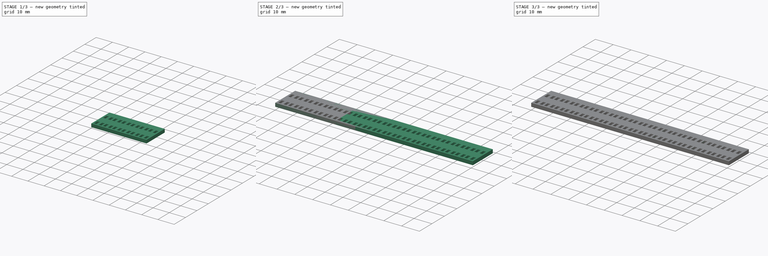
[diagram: build sequence overview — one tinted view per stage of 3, left to right]
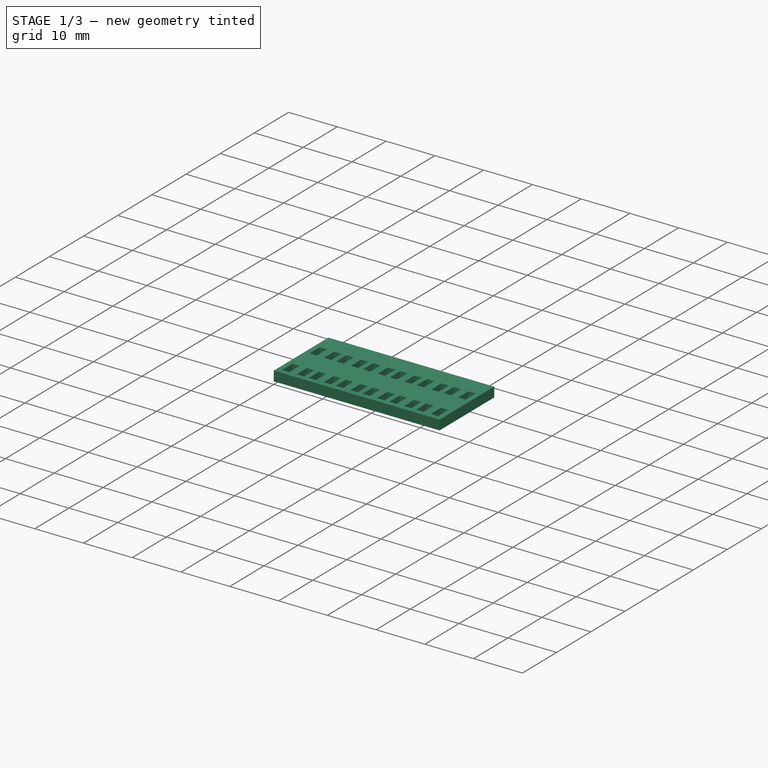
[diagram: stage 1 of 3 — iso view after this stage's code; geometry added in this stage tinted green]
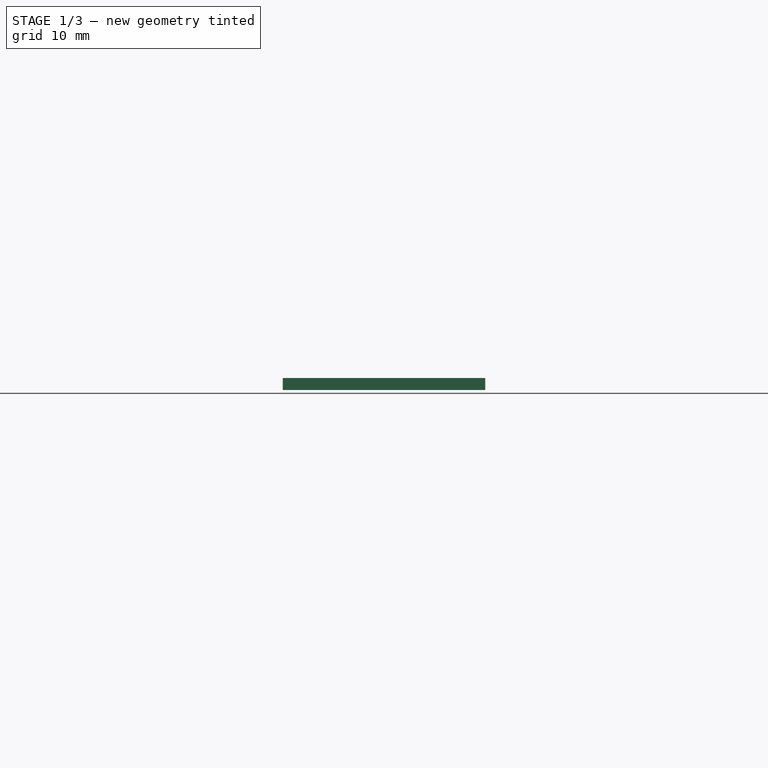
[diagram: stage 1 of 3 — front view after this stage's code; geometry added in this stage tinted green]
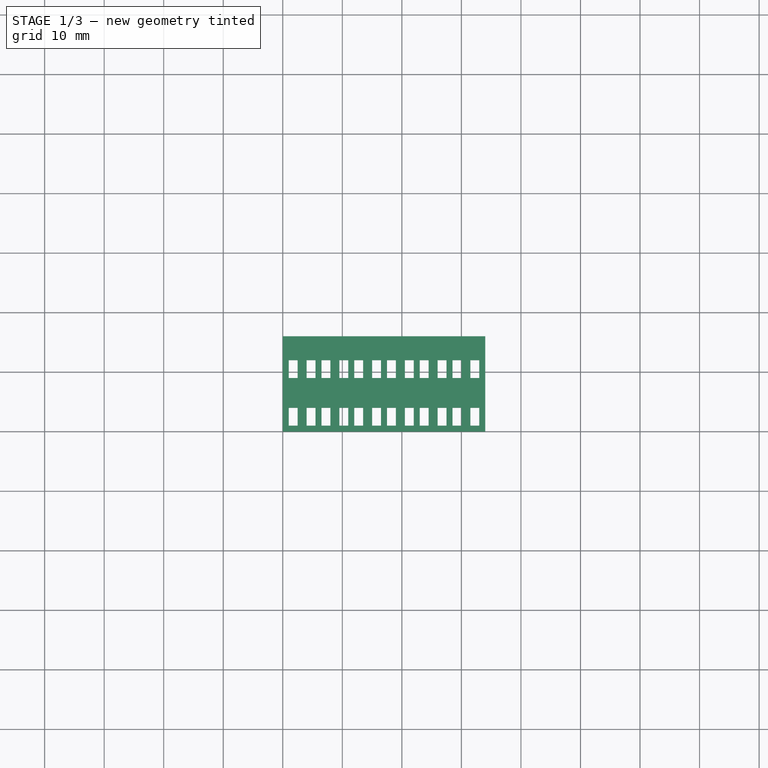
[diagram: stage 1 of 3 — top view after this stage's code; geometry added in this stage tinted green]
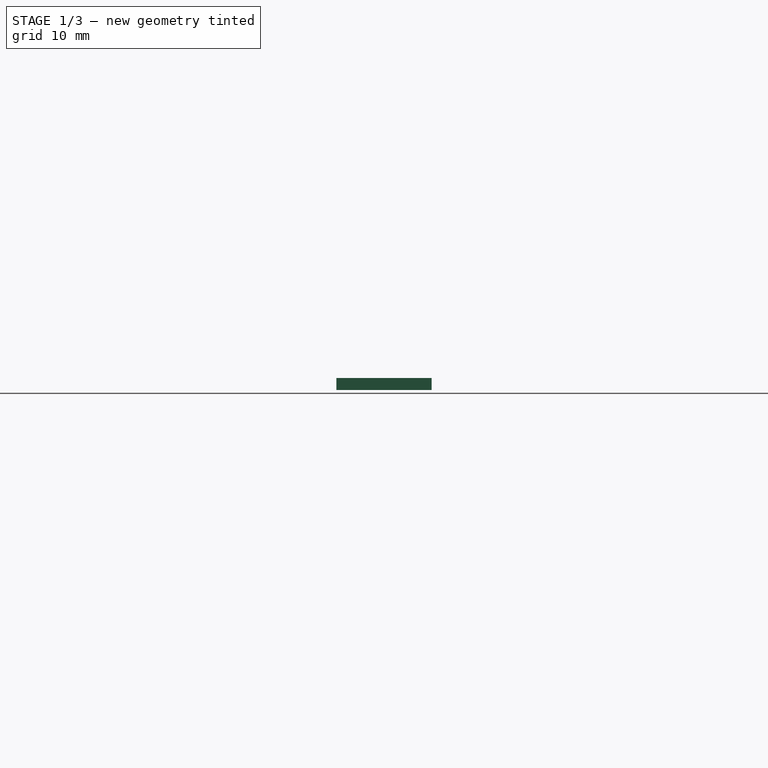
[diagram: stage 1 of 3 — right view after this stage's code; geometry added in this stage tinted green]
FCSTD DOCUMENT  (FreeCAD 0.18R)
Label: splice_panel
License: All rights reserved
LicenseURL: http://en.wikipedia.org/wiki/All_rights_reserved
objects: Sketcher::SketchObject×8, Part::Extrusion×7
note: 15 computed .brp shape members not serialized (recipe doc carries the construction recipe); baked Part::Feature solids carry a one-line shape summary decoded from their .brp

FEATURE [Sketcher::SketchObject] Sketch012  label="6c1r-sketch"
  sketch-geometry (137):
    g0: LineSegment [constr] StartX=0 StartY=0 StartZ=0 EndX=1 EndY=0 EndZ=0
    g1: LineSegment StartX=1 StartY=4 StartZ=0 EndX=2.5 EndY=4 EndZ=0
    g2: LineSegment StartX=2.5 StartY=4 StartZ=0 EndX=2.5 EndY=1 EndZ=0
    g3: LineSegment StartX=2.5 StartY=1 StartZ=0 EndX=1 EndY=1 EndZ=0
    g4: LineSegment StartX=1 StartY=1 StartZ=0 EndX=1 EndY=4 EndZ=0
    g5: LineSegment [constr] StartX=1 StartY=1 StartZ=0 EndX=1 EndY=0 EndZ=0
    g6: LineSegment StartX=1 StartY=12 StartZ=0 EndX=2.5 EndY=12 EndZ=0
    g7: LineSegment StartX=2.5 StartY=12 StartZ=0 EndX=2.5 EndY=9 EndZ=0
    g8: LineSegment StartX=2.5 StartY=9 StartZ=0 EndX=1 EndY=9 EndZ=0
    g9: LineSegment [constr] StartX=1 StartY=12 StartZ=0 EndX=1 EndY=16 EndZ=0
    g10: LineSegment StartX=5.5 StartY=9 StartZ=0 EndX=4 EndY=9 EndZ=0
    g11: LineSegment StartX=5.5 StartY=12 StartZ=0 EndX=5.5 EndY=9 EndZ=0
    g12: LineSegment StartX=4 StartY=9 StartZ=0 EndX=4 EndY=12 EndZ=0
    g13: LineSegment StartX=4 StartY=12 StartZ=0 EndX=5.5 EndY=12 EndZ=0
    g14: LineSegment StartX=5.5 StartY=4 StartZ=0 EndX=5.5 EndY=1 EndZ=0
    g15: LineSegment StartX=4 StartY=4 StartZ=0 EndX=5.5 EndY=4 EndZ=0
    g16: LineSegment StartX=4 StartY=1 StartZ=0 EndX=4 EndY=4 EndZ=0
    g17: LineSegment StartX=5.5 StartY=1 StartZ=0 EndX=4 EndY=1 EndZ=0
    g18: LineSegment StartX=1 StartY=12 StartZ=0 EndX=1 EndY=9 EndZ=0
    g19: LineSegment [constr] StartX=1 StartY=9 StartZ=0 EndX=1 EndY=4 EndZ=0
    g20: LineSegment [constr] StartX=2.5 StartY=9 StartZ=0 EndX=4 EndY=9 EndZ=0
    g21: LineSegment [constr] StartX=2.5 StartY=1 StartZ=0 EndX=4 EndY=1 EndZ=0
    g22: LineSegment StartX=6.5 StartY=4 StartZ=0 EndX=8 EndY=4 EndZ=0
    g23: LineSegment StartX=8 StartY=4 StartZ=0 EndX=8 EndY=1 EndZ=0
    g24: LineSegment StartX=8 StartY=1 StartZ=0 EndX=6.5 EndY=1 EndZ=0
    g25: LineSegment StartX=6.5 StartY=1 StartZ=0 EndX=6.5 EndY=4 EndZ=0
    g26: LineSegment [constr] StartX=6.5 StartY=1 StartZ=0 EndX=6.5 EndY=1.06251e-11 EndZ=0
    g27: LineSegment StartX=6.5 StartY=12 StartZ=0 EndX=8 EndY=12 EndZ=0
    g28: LineSegment StartX=8 StartY=12 StartZ=0 EndX=8 EndY=9 EndZ=0
    g29: LineSegment StartX=8 StartY=9 StartZ=0 EndX=6.5 EndY=9 EndZ=0
    g30: LineSegment [constr] StartX=6.5 StartY=12 StartZ=0 EndX=6.5 EndY=16 EndZ=0
    g31: LineSegment StartX=11 StartY=9 StartZ=0 EndX=9.5 EndY=9 EndZ=0
    g32: LineSegment StartX=11 StartY=12 StartZ=0 EndX=11 EndY=9 EndZ=0
    g33: LineSegment StartX=9.5 StartY=9 StartZ=0 EndX=9.5 EndY=12 EndZ=0
    g34: LineSegment StartX=9.5 StartY=12 StartZ=0 EndX=11 EndY=12 EndZ=0
    g35: LineSegment StartX=11 StartY=4 StartZ=0 EndX=11 EndY=1 EndZ=0
    g36: LineSegment StartX=9.5 StartY=4 StartZ=0 EndX=11 EndY=4 EndZ=0
    g37: LineSegment StartX=9.5 StartY=1 StartZ=0 EndX=9.5 EndY=4 EndZ=0
    g38: LineSegment StartX=11 StartY=1 StartZ=0 EndX=9.5 EndY=1 EndZ=0
    g39: LineSegment StartX=6.5 StartY=12 StartZ=0 EndX=6.5 EndY=9 EndZ=0
    g40: LineSegment [constr] StartX=6.5 StartY=9 StartZ=0 EndX=6.5 EndY=4 EndZ=0
    g41: LineSegment [constr] StartX=8 StartY=9 StartZ=0 EndX=9.5 EndY=9 EndZ=0
    g42: LineSegment [constr] StartX=8 StartY=1 StartZ=0 EndX=9.5 EndY=1 EndZ=0
    g43: LineSegment [constr] StartX=1 StartY=4 StartZ=0 EndX=6.5 EndY=4 EndZ=0
    g44: LineSegment StartX=12 StartY=4 StartZ=0 EndX=13.5 EndY=4 EndZ=0
    g45: LineSegment StartX=13.5 StartY=4 StartZ=0 EndX=13.5 EndY=1 EndZ=0
    g46: LineSegment StartX=13.5 StartY=1 StartZ=0 EndX=12 EndY=1 EndZ=0
    g47: LineSegment StartX=12 StartY=1 StartZ=0 EndX=12 EndY=4 EndZ=0
    g48: LineSegment [constr] StartX=12 StartY=1 StartZ=0 EndX=12 EndY=1.06255e-11 EndZ=0
    g49: LineSegment StartX=12 StartY=12 StartZ=0 EndX=13.5 EndY=12 EndZ=0
    g50: LineSegment StartX=13.5 StartY=12 StartZ=0 EndX=13.5 EndY=9 EndZ=0
    g51: LineSegment StartX=13.5 StartY=9 StartZ=0 EndX=12 EndY=9 EndZ=0
    g52: LineSegment [constr] StartX=12 StartY=12 StartZ=0 EndX=12 EndY=16 EndZ=0
    g53: LineSegment StartX=16.5 StartY=9 StartZ=0 EndX=15 EndY=9 EndZ=0
    g54: LineSegment StartX=16.5 StartY=12 StartZ=0 EndX=16.5 EndY=9 EndZ=0
    g55: LineSegment StartX=15 StartY=9 StartZ=0 EndX=15 EndY=12 EndZ=0
    g56: LineSegment StartX=15 StartY=12 StartZ=0 EndX=16.5 EndY=12 EndZ=0
    g57: LineSegment StartX=16.5 StartY=4 StartZ=0 EndX=16.5 EndY=1 EndZ=0
    g58: LineSegment StartX=15 StartY=4 StartZ=0 EndX=16.5 EndY=4 EndZ=0
    g59: LineSegment StartX=15 StartY=1 StartZ=0 EndX=15 EndY=4 EndZ=0
    g60: LineSegment StartX=16.5 StartY=1 StartZ=0 EndX=15 EndY=1 EndZ=0
    g61: LineSegment StartX=12 StartY=12 StartZ=0 EndX=12 EndY=9 EndZ=0
    g62: LineSegment [constr] StartX=12 StartY=9 StartZ=0 EndX=12 EndY=4 EndZ=0
    g63: LineSegment [constr] StartX=13.5 StartY=9 StartZ=0 EndX=15 EndY=9 EndZ=0
    g64: LineSegment [constr] StartX=13.5 StartY=1 StartZ=0 EndX=15 EndY=1 EndZ=0
    g65: LineSegment [constr] StartX=6.5 StartY=4 StartZ=0 EndX=12 EndY=4 EndZ=0
    g66: LineSegment StartX=17.5 StartY=4 StartZ=0 EndX=19 EndY=4 EndZ=0
    g67: LineSegment StartX=19 StartY=4 StartZ=0 EndX=19 EndY=1 EndZ=0
    g68: LineSegment StartX=19 StartY=1 StartZ=0 EndX=17.5 EndY=1 EndZ=0
    g69: LineSegment StartX=17.5 StartY=1 StartZ=0 EndX=17.5 EndY=4 EndZ=0
    g70: LineSegment [constr] StartX=17.5 StartY=1 StartZ=0 EndX=17.5 EndY=1.06253e-11 EndZ=0
    g71: LineSegment StartX=17.5 StartY=12 StartZ=0 EndX=19 EndY=12 EndZ=0
    g72: LineSegment StartX=19 StartY=12 StartZ=0 EndX=19 EndY=9 EndZ=0
    g73: LineSegment StartX=19 StartY=9 StartZ=0 EndX=17.5 EndY=9 EndZ=0
    g74: LineSegment [constr] StartX=17.5 StartY=12 StartZ=0 EndX=17.5 EndY=16 EndZ=0
    g75: LineSegment StartX=22 StartY=9 StartZ=0 EndX=20.5 EndY=9 EndZ=0
    g76: LineSegment StartX=22 StartY=12 StartZ=0 EndX=22 EndY=9 EndZ=0
    g77: LineSegment StartX=20.5 StartY=9 StartZ=0 EndX=20.5 EndY=12 EndZ=0
    g78: LineSegment StartX=20.5 StartY=12 StartZ=0 EndX=22 EndY=12 EndZ=0
    g79: LineSegment StartX=22 StartY=4 StartZ=0 EndX=22 EndY=1 EndZ=0
    g80: LineSegment StartX=20.5 StartY=4 StartZ=0 EndX=22 EndY=4 EndZ=0
    g81: LineSegment StartX=20.5 StartY=1 StartZ=0 EndX=20.5 EndY=4 EndZ=0
    g82: LineSegment StartX=22 StartY=1 StartZ=0 EndX=20.5 EndY=1 EndZ=0
    g83: LineSegment StartX=17.5 StartY=12 StartZ=0 EndX=17.5 EndY=9 EndZ=0
    g84: LineSegment [constr] StartX=17.5 StartY=9 StartZ=0 EndX=17.5 EndY=4 EndZ=0
    g85: LineSegment [constr] StartX=19 StartY=9 StartZ=0 EndX=20.5 EndY=9 EndZ=0
    g86: LineSegment [constr] StartX=19 StartY=1 StartZ=0 EndX=20.5 EndY=1 EndZ=0
    g87: LineSegment [constr] StartX=12 StartY=4 StartZ=0 EndX=17.5 EndY=4 EndZ=0
    g88: LineSegment StartX=23 StartY=4 StartZ=0 EndX=24.5 EndY=4 EndZ=0
    g89: LineSegment StartX=24.5 StartY=4 StartZ=0 EndX=24.5 EndY=1 EndZ=0
    g90: LineSegment StartX=24.5 StartY=1 StartZ=0 EndX=23 EndY=1 EndZ=0
    g91: LineSegment StartX=23 StartY=1 StartZ=0 EndX=23 EndY=4 EndZ=0
    g92: LineSegment [constr] StartX=23 StartY=1 StartZ=0 EndX=23 EndY=1.06253e-11 EndZ=0
    g93: LineSegment StartX=23 StartY=12 StartZ=0 EndX=24.5 EndY=12 EndZ=0
    g94: LineSegment StartX=24.5 StartY=12 StartZ=0 EndX=24.5 EndY=9 EndZ=0
    g95: LineSegment StartX=24.5 StartY=9 StartZ=0 EndX=23 EndY=9 EndZ=0
    g96: LineSegment [constr] StartX=23 StartY=12 StartZ=0 EndX=23 EndY=16 EndZ=0
    g97: LineSegment StartX=27.5 StartY=9 StartZ=0 EndX=26 EndY=9 EndZ=0
    g98: LineSegment StartX=27.5 StartY=12 StartZ=0 EndX=27.5 EndY=9 EndZ=0
    g99: LineSegment StartX=26 StartY=9 StartZ=0 EndX=26 EndY=12 EndZ=0
    g100: LineSegment StartX=26 StartY=12 StartZ=0 EndX=27.5 EndY=12 EndZ=0
    g101: LineSegment StartX=27.5 StartY=4 StartZ=0 EndX=27.5 EndY=1 EndZ=0
    g102: LineSegment StartX=26 StartY=4 StartZ=0 EndX=27.5 EndY=4 EndZ=0
    g103: LineSegment StartX=26 StartY=1 StartZ=0 EndX=26 EndY=4 EndZ=0
    g104: LineSegment StartX=27.5 StartY=1 StartZ=0 EndX=26 EndY=1 EndZ=0
    g105: LineSegment StartX=23 StartY=12 StartZ=0 EndX=23 EndY=9 EndZ=0
    g106: LineSegment [constr] StartX=23 StartY=9 StartZ=0 EndX=23 EndY=4 EndZ=0
    g107: LineSegment [constr] StartX=24.5 StartY=9 StartZ=0 EndX=26 EndY=9 EndZ=0
    g108: LineSegment [constr] StartX=24.5 StartY=1 StartZ=0 EndX=26 EndY=1 EndZ=0
    g109: LineSegment [constr] StartX=17.5 StartY=4 StartZ=0 EndX=23 EndY=4 EndZ=0
    g110: LineSegment StartX=28.5 StartY=4 StartZ=0 EndX=30 EndY=4 EndZ=0
    g111: LineSegment StartX=30 StartY=4 StartZ=0 EndX=30 EndY=1 EndZ=0
    g112: LineSegment StartX=30 StartY=1 StartZ=0 EndX=28.5 EndY=1 EndZ=0
    g113: LineSegment StartX=28.5 StartY=1 StartZ=0 EndX=28.5 EndY=4 EndZ=0
    g114: LineSegment [constr] StartX=28.5 StartY=1 StartZ=0 EndX=28.5 EndY=1.06202e-11 EndZ=0
    g115: LineSegment StartX=28.5 StartY=12 StartZ=0 EndX=30 EndY=12 EndZ=0
    g116: LineSegment StartX=30 StartY=12 StartZ=0 EndX=30 EndY=9 EndZ=0
    g117: LineSegment StartX=30 StartY=9 StartZ=0 EndX=28.5 EndY=9 EndZ=0
    g118: LineSegment [constr] StartX=28.5 StartY=12 StartZ=0 EndX=28.5 EndY=16 EndZ=0
    g119: LineSegment StartX=33 StartY=9 StartZ=0 EndX=31.5 EndY=9 EndZ=0
    g120: LineSegment StartX=33 StartY=12 StartZ=0 EndX=33 EndY=9 EndZ=0
    g121: LineSegment StartX=31.5 StartY=9 StartZ=0 EndX=31.5 EndY=12 EndZ=0
    g122: LineSegment StartX=31.5 StartY=12 StartZ=0 EndX=33 EndY=12 EndZ=0
    g123: LineSegment StartX=33 StartY=4 StartZ=0 EndX=33 EndY=1 EndZ=0
    g124: LineSegment StartX=31.5 StartY=4 StartZ=0 EndX=33 EndY=4 EndZ=0
    g125: LineSegment StartX=31.5 StartY=1 StartZ=0 EndX=31.5 EndY=4 EndZ=0
    g126: LineSegment StartX=33 StartY=1 StartZ=0 EndX=31.5 EndY=1 EndZ=0
    g127: LineSegment StartX=28.5 StartY=12 StartZ=0 EndX=28.5 EndY=9 EndZ=0
    g128: LineSegment [constr] StartX=28.5 StartY=9 StartZ=0 EndX=28.5 EndY=4 EndZ=0
    g129: LineSegment [constr] StartX=30 StartY=9 StartZ=0 EndX=31.5 EndY=9 EndZ=0
    g130: LineSegment [constr] StartX=30 StartY=1 StartZ=0 EndX=31.5 EndY=1 EndZ=0
    g131: LineSegment [constr] StartX=23 StartY=4 StartZ=0 EndX=28.5 EndY=4 EndZ=0
    g132: LineSegment StartX=0 StartY=0 StartZ=0 EndX=34 EndY=0 EndZ=0
    g133: LineSegment StartX=34 StartY=0 StartZ=0 EndX=34 EndY=16 EndZ=0
    g134: LineSegment StartX=34 StartY=16 StartZ=0 EndX=0 EndY=16 EndZ=0
    g135: LineSegment StartX=0 StartY=16 StartZ=0 EndX=0 EndY=0 EndZ=0
    g136: LineSegment [constr] StartX=33 StartY=1 StartZ=0 EndX=34 EndY=1 EndZ=0
  constraints (386):
    c: Horizontal(g0)
    c: Vertical(g5)
    c: Equal(g0,g5)
    c: Horizontal(g10)
    c: Horizontal(g15)
    c: Horizontal(g1)
    c: Horizontal(g6)
    c: Vertical(g2)
    c: Vertical(g14)
    c: Vertical(g7)
    c: Vertical(g11)
    c: Vertical(g9)
    c: Coincident(g19,g8)
    c: Coincident(g19,g1)
    c: Vertical(g19)
    c: DistanceY(g8,g9) = 7
    c: DistanceY(g5,g5) = 1
    c: Equal(g3,g17)
    c: Equal(g17,g8)
    c: Equal(g8,g10)
    c: Equal(g10,g1)
    c: Equal(g1,g15)
    c: Equal(g15,g13)
    c: Equal(g13,g6)
    c: Equal(g18,g4)
    c: Equal(g4,g16)
    c: Equal(g16,g14)
    c: Equal(g14,g11)
    c: Equal(g11,g12)
    c: Equal(g12,g7)
    c: Equal(g7,g2)
    c: Coincident(g20,g7)
    c: Coincident(g20,g10)
    c: Horizontal(g20)
    c: Coincident(g21,g2)
    c: Coincident(g21,g16)
    c: Horizontal(g21)
    c: Equal(g21,g20)
    c: Coincident(g12,g13)
    c: Coincident(g11,g13)
    c: Coincident(g10,g12)
    c: Coincident(g10,g11)
    c: Coincident(g8,g18)
    c: Coincident(g6,g9)
    c: Coincident(g6,g18)
    c: Coincident(g6,g7)
    c: Coincident(g7,g8)
    c: Coincident(g1,g4)
    c: Coincident(g1,g2)
    c: Coincident(g2,g3)
    c: Coincident(g3,g4)
    c: Coincident(g3,g5)
    c: Coincident(g16,g17)
    c: Coincident(g14,g17)
    c: Coincident(g15,g16)
    c: Coincident(g14,g15)
    c: Coincident(g0,g5)
    c: Coincident(g0,g-1)
    c: DistanceX(g3,g3) = 1.5
    c: DistanceX(g21,g21) = 1.5
    c: DistanceY(g4,g4) = 3
    c: DistanceY(g1,g8) = 5
    c: Vertical(g26)
    c: Horizontal(g31)
    c: Horizontal(g36)
    c: Horizontal(g22)
    c: Horizontal(g27)
    c: Vertical(g23)
    c: Vertical(g35)
    c: Vertical(g28)
    c: Vertical(g32)
    c: Vertical(g30)
    c: Coincident(g40,g29)
    c: Coincident(g40,g22)
    c: Vertical(g40)
    c: DistanceY(g29,g30) = 7
    c: Equal(g5,g26) = 1
    c: Equal(g24,g38)
    c: Equal(g38,g29)
    c: Equal(g29,g31)
    c: Equal(g31,g22)
    c: Equal(g22,g36)
    c: Equal(g36,g34)
    c: Equal(g34,g27)
    c: Equal(g39,g25)
    c: Equal(g25,g37)
    c: Equal(g37,g35)
    c: Equal(g35,g32)
    c: Equal(g32,g33)
    c: Equal(g33,g28)
    c: Equal(g28,g23)
    c: Coincident(g41,g28)
    c: Coincident(g41,g31)
    c: Horizontal(g41)
    c: Coincident(g42,g23)
    c: Coincident(g42,g37)
    c: Horizontal(g42)
    c: Equal(g42,g41)
    c: Coincident(g33,g34)
    c: Coincident(g32,g34)
    c: Coincident(g31,g33)
    c: Coincident(g31,g32)
    c: Coincident(g29,g39)
    c: Coincident(g27,g30)
    c: Coincident(g27,g39)
    c: Coincident(g27,g28)
    c: Coincident(g28,g29)
    c: Coincident(g22,g25)
    c: Coincident(g22,g23)
    c: Coincident(g23,g24)
    c: Coincident(g24,g25)
    c: Coincident(g24,g26)
    c: Coincident(g37,g38)
    c: Coincident(g35,g38)
    c: Coincident(g36,g37)
    c: Coincident(g35,g36)
    c: Equal(g3,g24) = 1.5
    c: Equal(g21,g42) = 1.5
    c: Equal(g4,g25) = 3
    c: DistanceY(g22,g29) = 5
    c: Coincident(g1,g43)
    c: Coincident(g22,g43)
    c: Distance(g43) = 5.5
    c: Angle(g43) = 0
    c: Vertical(g48)
    c: Horizontal(g53)
    c: Horizontal(g58)
    c: Horizontal(g44)
    c: Horizontal(g49)
    c: Vertical(g45)
    c: Vertical(g57)
    c: Vertical(g50)
    c: Vertical(g54)
    c: Vertical(g52)
    c: Coincident(g62,g51)
    c: Coincident(g62,g44)
    c: Vertical(g62)
    c: DistanceY(g51,g52) = 7
    c: Equal(g5,g48) = 1
    c: Equal(g46,g60)
    c: Equal(g60,g51)
    c: Equal(g51,g53)
    c: Equal(g53,g44)
    c: Equal(g44,g58)
    c: Equal(g58,g56)
    c: Equal(g56,g49)
    c: Equal(g61,g47)
    c: Equal(g47,g59)
    c: Equal(g59,g57)
    c: Equal(g57,g54)
    c: Equal(g54,g55)
    c: Equal(g55,g50)
    c: Equal(g50,g45)
    c: Coincident(g63,g50)
    c: Coincident(g63,g53)
    c: Horizontal(g63)
    c: Coincident(g64,g45)
    c: Coincident(g64,g59)
    c: Horizontal(g64)
    c: Equal(g64,g63)
    c: Coincident(g55,g56)
    c: Coincident(g54,g56)
    c: Coincident(g53,g55)
    c: Coincident(g53,g54)
    c: Coincident(g51,g61)
    c: Coincident(g49,g52)
    c: Coincident(g49,g61)
    c: Coincident(g49,g50)
    c: Coincident(g50,g51)
    c: Coincident(g44,g47)
    c: Coincident(g44,g45)
    c: Coincident(g45,g46)
    c: Coincident(g46,g47)
    c: Coincident(g46,g48)
    c: Coincident(g59,g60)
    c: Coincident(g57,g60)
    c: Coincident(g58,g59)
    c: Coincident(g57,g58)
    c: Equal(g3,g46) = 1.5
    c: Equal(g21,g64) = 1.5
    c: Equal(g4,g47) = 3
    c: DistanceY(g44,g51) = 5
    c: Coincident(g22,g65)
    c: Coincident(g44,g65)
    c: Equal(g43,g65)
    c: Parallel(g65,g43)
    c: Vertical(g70)
    c: Horizontal(g75)
    c: Horizontal(g80)
    c: Horizontal(g66)
    c: Horizontal(g71)
    c: Vertical(g67)
    c: Vertical(g79)
    c: Vertical(g72)
    c: Vertical(g76)
    c: Vertical(g74)
    c: Coincident(g84,g73)
    c: Coincident(g84,g66)
    c: Vertical(g84)
    c: DistanceY(g73,g74) = 7
    c: Equal(g5,g70) = 1
    c: Equal(g68,g82)
    c: Equal(g82,g73)
    c: Equal(g73,g75)
    c: Equal(g75,g66)
    c: Equal(g66,g80)
    c: Equal(g80,g78)
    c: Equal(g78,g71)
    c: Equal(g83,g69)
    c: Equal(g69,g81)
    c: Equal(g81,g79)
    c: Equal(g79,g76)
    c: Equal(g76,g77)
    c: Equal(g77,g72)
    c: Equal(g72,g67)
    c: Coincident(g85,g72)
    c: Coincident(g85,g75)
    c: Horizontal(g85)
    c: Coincident(g86,g67)
    c: Coincident(g86,g81)
    c: Horizontal(g86)
    c: Equal(g86,g85)
    c: Coincident(g77,g78)
    c: Coincident(g76,g78)
    c: Coincident(g75,g77)
    c: Coincident(g75,g76)
    c: Coincident(g73,g83)
    c: Coincident(g71,g74)
    c: Coincident(g71,g83)
    c: Coincident(g71,g72)
    c: Coincident(g72,g73)
    c: Coincident(g66,g69)
    c: Coincident(g66,g67)
    c: Coincident(g67,g68)
    c: Coincident(g68,g69)
    c: Coincident(g68,g70)
    c: Coincident(g81,g82)
    c: Coincident(g79,g82)
    c: Coincident(g80,g81)
    c: Coincident(g79,g80)
    c: Equal(g3,g68) = 1.5
    c: Equal(g21,g86) = 1.5
    c: Equal(g4,g69) = 3
    c: DistanceY(g66,g73) = 5
    c: Coincident(g44,g87)
    c: Coincident(g66,g87)
    c: Equal(g43,g87)
    c: Parallel(g87,g43)
    c: Vertical(g92)
    c: Horizontal(g97)
    c: Horizontal(g102)
    c: Horizontal(g88)
    c: Horizontal(g93)
    c: Vertical(g89)
    c: Vertical(g101)
    c: Vertical(g94)
    c: Vertical(g98)
    c: Vertical(g96)
    c: Coincident(g106,g95)
    c: Coincident(g106,g88)
    c: Vertical(g106)
    c: DistanceY(g95,g96) = 7
    c: Equal(g5,g92) = 1
    c: Equal(g90,g104)
    c: Equal(g104,g95)
    c: Equal(g95,g97)
    c: Equal(g97,g88)
    c: Equal(g88,g102)
    c: Equal(g102,g100)
    c: Equal(g100,g93)
    c: Equal(g105,g91)
    c: Equal(g91,g103)
    c: Equal(g103,g101)
    c: Equal(g101,g98)
    c: Equal(g98,g99)
    c: Equal(g99,g94)
    c: Equal(g94,g89)
    c: Coincident(g107,g94)
    c: Coincident(g107,g97)
    c: Horizontal(g107)
    c: Coincident(g108,g89)
    c: Coincident(g108,g103)
    c: Horizontal(g108)
    c: Equal(g108,g107)
    c: Coincident(g99,g100)
    c: Coincident(g98,g100)
    c: Coincident(g97,g99)
    c: Coincident(g97,g98)
    c: Coincident(g95,g105)
    c: Coincident(g93,g96)
    c: Coincident(g93,g105)
    c: Coincident(g93,g94)
    c: Coincident(g94,g95)
    c: Coincident(g88,g91)
    c: Coincident(g88,g89)
    c: Coincident(g89,g90)
    c: Coincident(g90,g91)
    c: Coincident(g90,g92)
    c: Coincident(g103,g104)
    c: Coincident(g101,g104)
    c: Coincident(g102,g103)
    c: Coincident(g101,g102)
    c: Equal(g3,g90) = 1.5
    c: Equal(g21,g108) = 1.5
    c: Equal(g4,g91) = 3
    c: DistanceY(g88,g95) = 5
    c: Coincident(g66,g109)
    c: Coincident(g88,g109)
    c: Equal(g43,g109)
    c: Parallel(g109,g43)
    c: Vertical(g114)
    c: Horizontal(g119)
    c: Horizontal(g124)
    c: Horizontal(g110)
    c: Horizontal(g115)
    c: Vertical(g111)
    c: Vertical(g123)
    c: Vertical(g116)
    c: Vertical(g120)
    c: Vertical(g118)
    c: Coincident(g128,g117)
    c: Coincident(g128,g110)
    c: Vertical(g128)
    c: DistanceY(g117,g118) = 7
    c: Equal(g5,g114) = 1
    c: Equal(g112,g126)
    c: Equal(g126,g117)
    c: Equal(g117,g119)
    c: Equal(g119,g110)
    c: Equal(g110,g124)
    c: Equal(g124,g122)
    c: Equal(g122,g115)
    c: Equal(g127,g113)
    c: Equal(g113,g125)
    c: Equal(g125,g123)
    c: Equal(g123,g120)
    c: Equal(g120,g121)
    c: Equal(g121,g116)
    c: Equal(g116,g111)
    c: Coincident(g129,g116)
    c: Coincident(g129,g119)
    c: Horizontal(g129)
    c: Coincident(g130,g111)
    c: Coincident(g130,g125)
    c: Horizontal(g130)
    c: Equal(g130,g129)
    c: Coincident(g121,g122)
    c: Coincident(g120,g122)
    c: Coincident(g119,g121)
    c: Coincident(g119,g120)
    c: Coincident(g117,g127)
    c: Coincident(g115,g118)
    c: Coincident(g115,g127)
    c: Coincident(g115,g116)
    c: Coincident(g116,g117)
    c: Coincident(g110,g113)
    c: Coincident(g110,g111)
    c: Coincident(g111,g112)
    c: Coincident(g112,g113)
    c: Coincident(g112,g114)
    c: Coincident(g125,g126)
    c: Coincident(g123,g126)
    c: Coincident(g124,g125)
    c: Coincident(g123,g124)
    c: Equal(g3,g112) = 1.5
    c: Equal(g21,g130) = 1.5
    c: Equal(g4,g113) = 3
    c: DistanceY(g110,g117) = 5
    c: Coincident(g88,g131)
    c: Coincident(g110,g131)
    c: Equal(g43,g131)
    c: Parallel(g131,g43)
    c: Coincident(g132,g133)
    c: Coincident(g133,g134)
    c: Coincident(g134,g135)
    c: Coincident(g135,g132)
    c: Horizontal(g132)
    c: Horizontal(g134)
    c: Vertical(g133)
    c: Vertical(g135)
    c: Coincident(g132,g-1)
    c: PointOnObject(g118,g134)
    c: Coincident(g136,g123)
    c: PointOnObject(g136,g133)
    c: Horizontal(g136)
    c: Equal(g136,g5)
FEATURE [Part::Extrusion] Extrude007  label="6c1r"
  Base = -> Sketch012
  Dir = (0,0,1)
  DirMode = 2
  FaceMakerClass = Part::FaceMakerBullseye
  LengthFwd = 2
  LengthRev = 0
  Solid = true
  Symmetric = false
FEATURE [Sketcher::SketchObject] Sketch013  label="4c1r-sketch"
  sketch-geometry (93):
    g0: LineSegment [constr] StartX=0 StartY=0 StartZ=0 EndX=1 EndY=0 EndZ=0
    g1: LineSegment StartX=1 StartY=4 StartZ=0 EndX=2.5 EndY=4 EndZ=0
    g2: LineSegment StartX=2.5 StartY=4 StartZ=0 EndX=2.5 EndY=1 EndZ=0
    g3: LineSegment StartX=2.5 StartY=1 StartZ=0 EndX=1 EndY=1 EndZ=0
    g4: LineSegment StartX=1 StartY=1 StartZ=0 EndX=1 EndY=4 EndZ=0
    g5: LineSegment [constr] StartX=1 StartY=1 StartZ=0 EndX=1 EndY=0 EndZ=0
    g6: LineSegment StartX=1 StartY=12 StartZ=0 EndX=2.5 EndY=12 EndZ=0
    g7: LineSegment StartX=2.5 StartY=12 StartZ=0 EndX=2.5 EndY=9 EndZ=0
    g8: LineSegment StartX=2.5 StartY=9 StartZ=0 EndX=1 EndY=9 EndZ=0
    g9: LineSegment [constr] StartX=1 StartY=12 StartZ=0 EndX=1 EndY=16 EndZ=0
    g10: LineSegment StartX=5.5 StartY=9 StartZ=0 EndX=4 EndY=9 EndZ=0
    g11: LineSegment StartX=5.5 StartY=12 StartZ=0 EndX=5.5 EndY=9 EndZ=0
    g12: LineSegment StartX=4 StartY=9 StartZ=0 EndX=4 EndY=12 EndZ=0
    g13: LineSegment StartX=4 StartY=12 StartZ=0 EndX=5.5 EndY=12 EndZ=0
    g14: LineSegment StartX=5.5 StartY=4 StartZ=0 EndX=5.5 EndY=1 EndZ=0
    g15: LineSegment StartX=4 StartY=4 StartZ=0 EndX=5.5 EndY=4 EndZ=0
    g16: LineSegment StartX=4 StartY=1 StartZ=0 EndX=4 EndY=4 EndZ=0
    g17: LineSegment StartX=5.5 StartY=1 StartZ=0 EndX=4 EndY=1 EndZ=0
    g18: LineSegment StartX=1 StartY=12 StartZ=0 EndX=1 EndY=9 EndZ=0
    g19: LineSegment [constr] StartX=1 StartY=9 StartZ=0 EndX=1 EndY=4 EndZ=0
    g20: LineSegment [constr] StartX=2.5 StartY=9 StartZ=0 EndX=4 EndY=9 EndZ=0
    g21: LineSegment [constr] StartX=2.5 StartY=1 StartZ=0 EndX=4 EndY=1 EndZ=0
    g22: LineSegment StartX=6.5 StartY=4 StartZ=0 EndX=8 EndY=4 EndZ=0
    g23: LineSegment StartX=8 StartY=4 StartZ=0 EndX=8 EndY=1 EndZ=0
    g24: LineSegment StartX=8 StartY=1 StartZ=0 EndX=6.5 EndY=1 EndZ=0
    g25: LineSegment StartX=6.5 StartY=1 StartZ=0 EndX=6.5 EndY=4 EndZ=0
    g26: LineSegment [constr] StartX=6.5 StartY=1 StartZ=0 EndX=6.5 EndY=2e-16 EndZ=0
    g27: LineSegment StartX=6.5 StartY=12 StartZ=0 EndX=8 EndY=12 EndZ=0
    g28: LineSegment StartX=8 StartY=12 StartZ=0 EndX=8 EndY=9 EndZ=0
    g29: LineSegment StartX=8 StartY=9 StartZ=0 EndX=6.5 EndY=9 EndZ=0
    g30: LineSegment [constr] StartX=6.5 StartY=12 StartZ=0 EndX=6.5 EndY=16 EndZ=0
    g31: LineSegment StartX=11 StartY=9 StartZ=0 EndX=9.5 EndY=9 EndZ=0
    g32: LineSegment StartX=11 StartY=12 StartZ=0 EndX=11 EndY=9 EndZ=0
    g33: LineSegment StartX=9.5 StartY=9 StartZ=0 EndX=9.5 EndY=12 EndZ=0
    g34: LineSegment StartX=9.5 StartY=12 StartZ=0 EndX=11 EndY=12 EndZ=0
    g35: LineSegment StartX=11 StartY=4 StartZ=0 EndX=11 EndY=1 EndZ=0
    g36: LineSegment StartX=9.5 StartY=4 StartZ=0 EndX=11 EndY=4 EndZ=0
    g37: LineSegment StartX=9.5 StartY=1 StartZ=0 EndX=9.5 EndY=4 EndZ=0
    g38: LineSegment StartX=11 StartY=1 StartZ=0 EndX=9.5 EndY=1 EndZ=0
    g39: LineSegment StartX=6.5 StartY=12 StartZ=0 EndX=6.5 EndY=9 EndZ=0
    g40: LineSegment [constr] StartX=6.5 StartY=9 StartZ=0 EndX=6.5 EndY=4 EndZ=0
    g41: LineSegment [constr] StartX=8 StartY=9 StartZ=0 EndX=9.5 EndY=9 EndZ=0
    g42: LineSegment [constr] StartX=8 StartY=1 StartZ=0 EndX=9.5 EndY=1 EndZ=0
    g43: LineSegment [constr] StartX=1 StartY=4 StartZ=0 EndX=6.5 EndY=4 EndZ=0
    g44: LineSegment StartX=12 StartY=4 StartZ=0 EndX=13.5 EndY=4 EndZ=0
    g45: LineSegment StartX=13.5 StartY=4 StartZ=0 EndX=13.5 EndY=1 EndZ=0
    g46: LineSegment StartX=13.5 StartY=1 StartZ=0 EndX=12 EndY=1 EndZ=0
    g47: LineSegment StartX=12 StartY=1 StartZ=0 EndX=12 EndY=4 EndZ=0
    g48: LineSegment [constr] StartX=12 StartY=1 StartZ=0 EndX=12 EndY=0 EndZ=0
    g49: LineSegment StartX=12 StartY=12 StartZ=0 EndX=13.5 EndY=12 EndZ=0
    g50: LineSegment StartX=13.5 StartY=12 StartZ=0 EndX=13.5 EndY=9 EndZ=0
    g51: LineSegment StartX=13.5 StartY=9 StartZ=0 EndX=12 EndY=9 EndZ=0
    g52: LineSegment [constr] StartX=12 StartY=12 StartZ=0 EndX=12 EndY=16 EndZ=0
    g53: LineSegment StartX=16.5 StartY=9 StartZ=0 EndX=15 EndY=9 EndZ=0
    g54: LineSegment StartX=16.5 StartY=12 StartZ=0 EndX=16.5 EndY=9 EndZ=0
    g55: LineSegment StartX=15 StartY=9 StartZ=0 EndX=15 EndY=12 EndZ=0
    g56: LineSegment StartX=15 StartY=12 StartZ=0 EndX=16.5 EndY=12 EndZ=0
    g57: LineSegment StartX=16.5 StartY=4 StartZ=0 EndX=16.5 EndY=1 EndZ=0
    g58: LineSegment StartX=15 StartY=4 StartZ=0 EndX=16.5 EndY=4 EndZ=0
    g59: LineSegment StartX=15 StartY=1 StartZ=0 EndX=15 EndY=4 EndZ=0
    g60: LineSegment StartX=16.5 StartY=1 StartZ=0 EndX=15 EndY=1 EndZ=0
    g61: LineSegment StartX=12 StartY=12 StartZ=0 EndX=12 EndY=9 EndZ=0
    g62: LineSegment [constr] StartX=12 StartY=9 StartZ=0 EndX=12 EndY=4 EndZ=0
    g63: LineSegment [constr] StartX=13.5 StartY=9 StartZ=0 EndX=15 EndY=9 EndZ=0
    g64: LineSegment [constr] StartX=13.5 StartY=1 StartZ=0 EndX=15 EndY=1 EndZ=0
    g65: LineSegment [constr] StartX=6.5 StartY=4 StartZ=0 EndX=12 EndY=4 EndZ=0
    g66: LineSegment StartX=17.5 StartY=4 StartZ=0 EndX=19 EndY=4 EndZ=0
    g67: LineSegment StartX=19 StartY=4 StartZ=0 EndX=19 EndY=1 EndZ=0
    g68: LineSegment StartX=19 StartY=1 StartZ=0 EndX=17.5 EndY=1 EndZ=0
    g69: LineSegment StartX=17.5 StartY=1 StartZ=0 EndX=17.5 EndY=4 EndZ=0
    g70: LineSegment [constr] StartX=17.5 StartY=1 StartZ=0 EndX=17.5 EndY=0 EndZ=0
    g71: LineSegment StartX=17.5 StartY=12 StartZ=0 EndX=19 EndY=12 EndZ=0
    g72: LineSegment StartX=19 StartY=12 StartZ=0 EndX=19 EndY=9 EndZ=0
    g73: LineSegment StartX=19 StartY=9 StartZ=0 EndX=17.5 EndY=9 EndZ=0
    g74: LineSegment [constr] StartX=17.5 StartY=12 StartZ=0 EndX=17.5 EndY=16 EndZ=0
    g75: LineSegment StartX=22 StartY=9 StartZ=0 EndX=20.5 EndY=9 EndZ=0
    g76: LineSegment StartX=22 StartY=12 StartZ=0 EndX=22 EndY=9 EndZ=0
    g77: LineSegment StartX=20.5 StartY=9 StartZ=0 EndX=20.5 EndY=12 EndZ=0
    g78: LineSegment StartX=20.5 StartY=12 StartZ=0 EndX=22 EndY=12 EndZ=0
    g79: LineSegment StartX=22 StartY=4 StartZ=0 EndX=22 EndY=1 EndZ=0
    g80: LineSegment StartX=20.5 StartY=4 StartZ=0 EndX=22 EndY=4 EndZ=0
    g81: LineSegment StartX=20.5 StartY=1 StartZ=0 EndX=20.5 EndY=4 EndZ=0
    g82: LineSegment StartX=22 StartY=1 StartZ=0 EndX=20.5 EndY=1 EndZ=0
    g83: LineSegment StartX=17.5 StartY=12 StartZ=0 EndX=17.5 EndY=9 EndZ=0
    g84: LineSegment [constr] StartX=17.5 StartY=9 StartZ=0 EndX=17.5 EndY=4 EndZ=0
    g85: LineSegment [constr] StartX=19 StartY=9 StartZ=0 EndX=20.5 EndY=9 EndZ=0
    g86: LineSegment [constr] StartX=19 StartY=1 StartZ=0 EndX=20.5 EndY=1 EndZ=0
    g87: LineSegment [constr] StartX=12 StartY=4 StartZ=0 EndX=17.5 EndY=4 EndZ=0
    g88: LineSegment StartX=0 StartY=0 StartZ=0 EndX=23 EndY=0 EndZ=0
    g89: LineSegment StartX=23 StartY=0 StartZ=0 EndX=23 EndY=16 EndZ=0
    g90: LineSegment StartX=23 StartY=16 StartZ=0 EndX=0 EndY=16 EndZ=0
    g91: LineSegment StartX=0 StartY=16 StartZ=0 EndX=0 EndY=0 EndZ=0
    g92: LineSegment [constr] StartX=22 StartY=1 StartZ=0 EndX=23 EndY=1 EndZ=0
  constraints (262):
    c: Horizontal(g0)
    c: Vertical(g5)
    c: Equal(g0,g5)
    c: Horizontal(g10)
    c: Horizontal(g15)
    c: Horizontal(g1)
    c: Horizontal(g6)
    c: Vertical(g2)
    c: Vertical(g14)
    c: Vertical(g7)
    c: Vertical(g11)
    c: Vertical(g9)
    c: Coincident(g19,g8)
    c: Coincident(g19,g1)
    c: Vertical(g19)
    c: DistanceY(g8,g9) = 7
    c: DistanceY(g5,g5) = 1
    c: Equal(g3,g17)
    c: Equal(g17,g8)
    c: Equal(g8,g10)
    c: Equal(g10,g1)
    c: Equal(g1,g15)
    c: Equal(g15,g13)
    c: Equal(g13,g6)
    c: Equal(g18,g4)
    c: Equal(g4,g16)
    c: Equal(g16,g14)
    c: Equal(g14,g11)
    c: Equal(g11,g12)
    c: Equal(g12,g7)
    c: Equal(g7,g2)
    c: Coincident(g20,g7)
    c: Coincident(g20,g10)
    c: Horizontal(g20)
    c: Coincident(g21,g2)
    c: Coincident(g21,g16)
    c: Horizontal(g21)
    c: Equal(g21,g20)
    c: Coincident(g12,g13)
    c: Coincident(g11,g13)
    c: Coincident(g10,g12)
    c: Coincident(g10,g11)
    c: Coincident(g8,g18)
    c: Coincident(g6,g9)
    c: Coincident(g6,g18)
    c: Coincident(g6,g7)
    c: Coincident(g7,g8)
    c: Coincident(g1,g4)
    c: Coincident(g1,g2)
    c: Coincident(g2,g3)
    c: Coincident(g3,g4)
    c: Coincident(g3,g5)
    c: Coincident(g16,g17)
    c: Coincident(g14,g17)
    c: Coincident(g15,g16)
    c: Coincident(g14,g15)
    c: Coincident(g0,g5)
    c: Coincident(g0,g-1)
    c: DistanceX(g3,g3) = 1.5
    c: DistanceX(g21,g21) = 1.5
    c: DistanceY(g4,g4) = 3
    c: DistanceY(g1,g8) = 5
    c: Vertical(g26)
    c: Horizontal(g31)
    c: Horizontal(g36)
    c: Horizontal(g22)
    c: Horizontal(g27)
    c: Vertical(g23)
    c: Vertical(g35)
    c: Vertical(g28)
    c: Vertical(g32)
    c: Vertical(g30)
    c: Coincident(g40,g29)
    c: Coincident(g40,g22)
    c: Vertical(g40)
    c: DistanceY(g29,g30) = 7
    c: Equal(g5,g26) = 1
    c: Equal(g24,g38)
    c: Equal(g38,g29)
    c: Equal(g29,g31)
    c: Equal(g31,g22)
    c: Equal(g22,g36)
    c: Equal(g36,g34)
    c: Equal(g34,g27)
    c: Equal(g39,g25)
    c: Equal(g25,g37)
    c: Equal(g37,g35)
    c: Equal(g35,g32)
    c: Equal(g32,g33)
    c: Equal(g33,g28)
    c: Equal(g28,g23)
    c: Coincident(g41,g28)
    c: Coincident(g41,g31)
    c: Horizontal(g41)
    c: Coincident(g42,g23)
    c: Coincident(g42,g37)
    c: Horizontal(g42)
    c: Equal(g42,g41)
    c: Coincident(g33,g34)
    c: Coincident(g32,g34)
    c: Coincident(g31,g33)
    c: Coincident(g31,g32)
    c: Coincident(g29,g39)
    c: Coincident(g27,g30)
    c: Coincident(g27,g39)
    c: Coincident(g27,g28)
    c: Coincident(g28,g29)
    c: Coincident(g22,g25)
    c: Coincident(g22,g23)
    c: Coincident(g23,g24)
    c: Coincident(g24,g25)
    c: Coincident(g24,g26)
    c: Coincident(g37,g38)
    c: Coincident(g35,g38)
    c: Coincident(g36,g37)
    c: Coincident(g35,g36)
    c: Equal(g3,g24) = 1.5
    c: Equal(g21,g42) = 1.5
    c: Equal(g4,g25) = 3
    c: DistanceY(g22,g29) = 5
    c: Coincident(g1,g43)
    c: Coincident(g22,g43)
    c: Distance(g43) = 5.5
    c: Angle(g43) = 0
    c: Vertical(g48)
    c: Horizontal(g53)
    c: Horizontal(g58)
    c: Horizontal(g44)
    c: Horizontal(g49)
    c: Vertical(g45)
    c: Vertical(g57)
    c: Vertical(g50)
    c: Vertical(g54)
    c: Vertical(g52)
    c: Coincident(g62,g51)
    c: Coincident(g62,g44)
    c: Vertical(g62)
    c: DistanceY(g51,g52) = 7
    c: Equal(g5,g48) = 1
    c: Equal(g46,g60)
    c: Equal(g60,g51)
    c: Equal(g51,g53)
    c: Equal(g53,g44)
    c: Equal(g44,g58)
    c: Equal(g58,g56)
    c: Equal(g56,g49)
    c: Equal(g61,g47)
    c: Equal(g47,g59)
    c: Equal(g59,g57)
    c: Equal(g57,g54)
    c: Equal(g54,g55)
    c: Equal(g55,g50)
    c: Equal(g50,g45)
    c: Coincident(g63,g50)
    c: Coincident(g63,g53)
    c: Horizontal(g63)
    c: Coincident(g64,g45)
    c: Coincident(g64,g59)
    c: Horizontal(g64)
    c: Equal(g64,g63)
    c: Coincident(g55,g56)
    c: Coincident(g54,g56)
    c: Coincident(g53,g55)
    c: Coincident(g53,g54)
    c: Coincident(g51,g61)
    c: Coincident(g49,g52)
    c: Coincident(g49,g61)
    c: Coincident(g49,g50)
    c: Coincident(g50,g51)
    c: Coincident(g44,g47)
    c: Coincident(g44,g45)
    c: Coincident(g45,g46)
    c: Coincident(g46,g47)
    c: Coincident(g46,g48)
    c: Coincident(g59,g60)
    c: Coincident(g57,g60)
    c: Coincident(g58,g59)
    c: Coincident(g57,g58)
    c: Equal(g3,g46) = 1.5
    c: Equal(g21,g64) = 1.5
    c: Equal(g4,g47) = 3
    c: DistanceY(g44,g51) = 5
    c: Coincident(g22,g65)
    c: Coincident(g44,g65)
    c: Equal(g43,g65)
    c: Parallel(g65,g43)
    c: Vertical(g70)
    c: Horizontal(g75)
    c: Horizontal(g80)
    c: Horizontal(g66)
    c: Horizontal(g71)
    c: Vertical(g67)
    c: Vertical(g79)
    c: Vertical(g72)
    c: Vertical(g76)
    c: Vertical(g74)
    c: Coincident(g84,g73)
    c: Coincident(g84,g66)
    c: Vertical(g84)
    c: DistanceY(g73,g74) = 7
    c: Equal(g5,g70) = 1
    c: Equal(g68,g82)
    c: Equal(g82,g73)
    c: Equal(g73,g75)
    c: Equal(g75,g66)
    c: Equal(g66,g80)
    c: Equal(g80,g78)
    c: Equal(g78,g71)
    c: Equal(g83,g69)
    c: Equal(g69,g81)
    c: Equal(g81,g79)
    c: Equal(g79,g76)
    c: Equal(g76,g77)
    c: Equal(g77,g72)
    c: Equal(g72,g67)
    c: Coincident(g85,g72)
    c: Coincident(g85,g75)
    c: Horizontal(g85)
    c: Coincident(g86,g67)
    c: Coincident(g86,g81)
    c: Horizontal(g86)
    c: Equal(g86,g85)
    c: Coincident(g77,g78)
    c: Coincident(g76,g78)
    c: Coincident(g75,g77)
    c: Coincident(g75,g76)
    c: Coincident(g73,g83)
    c: Coincident(g71,g74)
    c: Coincident(g71,g83)
    c: Coincident(g71,g72)
    c: Coincident(g72,g73)
    c: Coincident(g66,g69)
    c: Coincident(g66,g67)
    c: Coincident(g67,g68)
    c: Coincident(g68,g69)
    c: Coincident(g68,g70)
    c: Coincident(g81,g82)
    c: Coincident(g79,g82)
    c: Coincident(g80,g81)
    c: Coincident(g79,g80)
    c: Equal(g3,g68) = 1.5
    c: Equal(g21,g86) = 1.5
    c: Equal(g4,g69) = 3
    c: DistanceY(g66,g73) = 5
    c: Coincident(g44,g87)
    c: Coincident(g66,g87)
    c: Equal(g43,g87)
    c: Parallel(g87,g43)
    c: Coincident(g88,g89)
    c: Coincident(g89,g90)
    c: Coincident(g90,g91)
    c: Coincident(g91,g88)
    c: Horizontal(g88)
    c: Horizontal(g90)
    c: Vertical(g89)
    c: Vertical(g91)
    c: Coincident(g88,g-1)
    c: PointOnObject(g74,g90)
    c: Coincident(g92,g79)
    c: PointOnObject(g92,g89)
    c: Horizontal(g92)
    c: Equal(g92,g5)
FEATURE [Part::Extrusion] Extrude008  label="4c1r"
  Base = -> Sketch013
  Dir = (0,0,1)
  DirMode = 2
  FaceMakerClass = Part::FaceMakerBullseye
  LengthFwd = 2
  LengthRev = 0
  Solid = true
  Symmetric = false
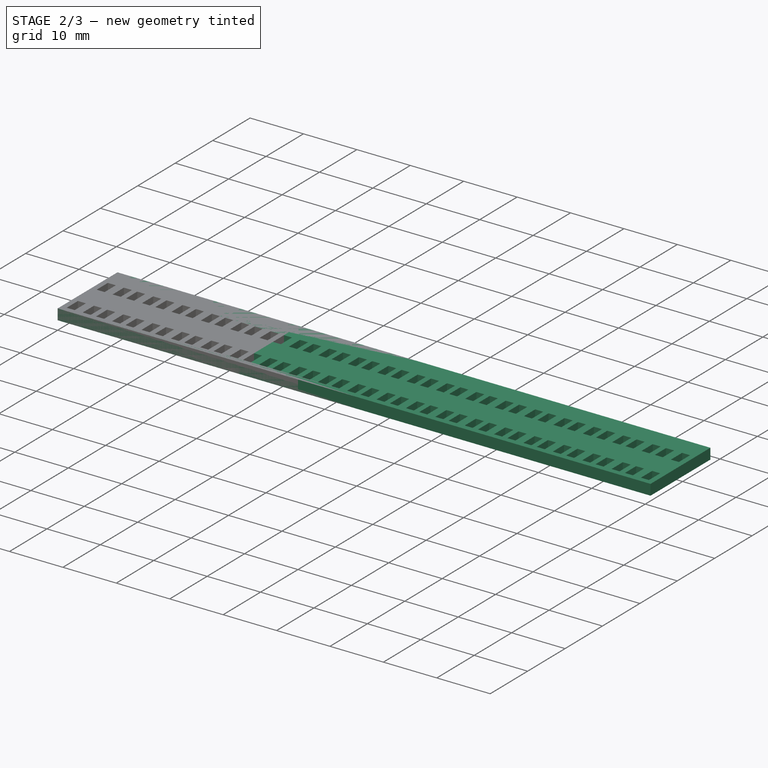
[diagram: stage 2 of 3 — iso view after this stage's code; geometry added in this stage tinted green]
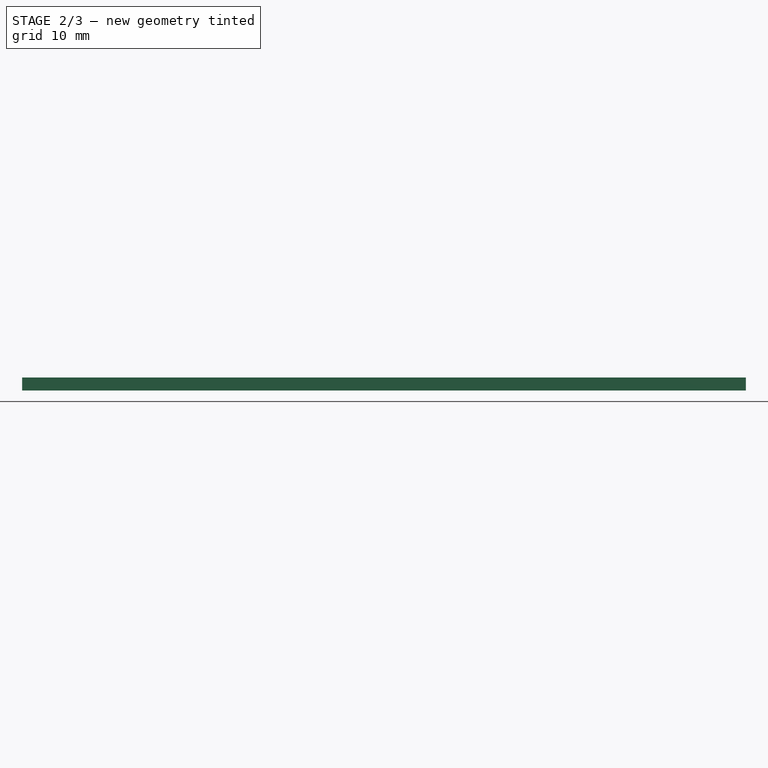
[diagram: stage 2 of 3 — front view after this stage's code; geometry added in this stage tinted green]
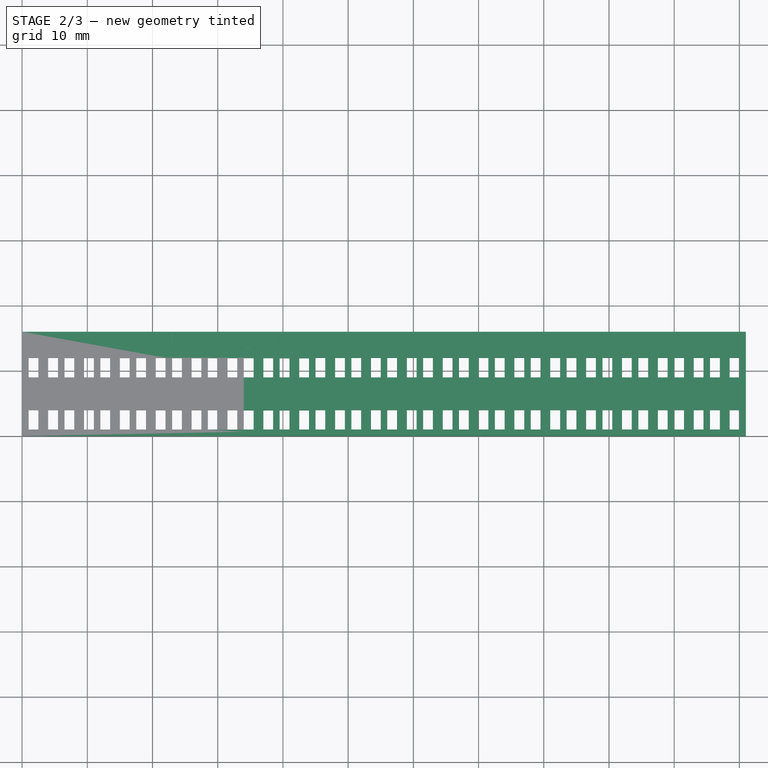
[diagram: stage 2 of 3 — top view after this stage's code; geometry added in this stage tinted green]
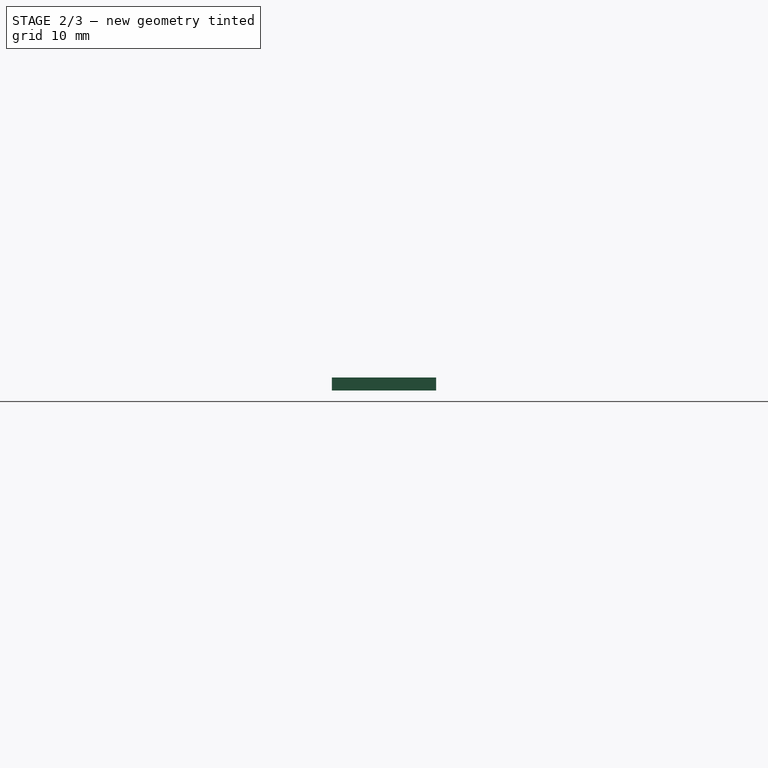
[diagram: stage 2 of 3 — right view after this stage's code; geometry added in this stage tinted green]
FEATURE [Sketcher::SketchObject] Sketch009  label="20c1r-sketch"
  sketch-geometry (464):
    g0: LineSegment [constr] StartX=0 StartY=0 StartZ=0 EndX=1 EndY=0 EndZ=0
    g1: LineSegment StartX=1 StartY=4 StartZ=0 EndX=2.5 EndY=4 EndZ=0
    g2: LineSegment StartX=2.5 StartY=4 StartZ=0 EndX=2.5 EndY=1 EndZ=0
    g3: LineSegment StartX=2.5 StartY=1 StartZ=0 EndX=1 EndY=1 EndZ=0
    g4: LineSegment StartX=1 StartY=1 StartZ=0 EndX=1 EndY=4 EndZ=0
    g5: LineSegment [constr] StartX=1 StartY=1 StartZ=0 EndX=1 EndY=0 EndZ=0
    g6: LineSegment StartX=1 StartY=12 StartZ=0 EndX=2.5 EndY=12 EndZ=0
    g7: LineSegment StartX=2.5 StartY=12 StartZ=0 EndX=2.5 EndY=9 EndZ=0
    g8: LineSegment StartX=2.5 StartY=9 StartZ=0 EndX=1 EndY=9 EndZ=0
    g9: LineSegment [constr] StartX=1 StartY=12 StartZ=0 EndX=1 EndY=16 EndZ=0
    g10: LineSegment StartX=5.5 StartY=9 StartZ=0 EndX=4 EndY=9 EndZ=0
    g11: LineSegment StartX=5.5 StartY=12 StartZ=0 EndX=5.5 EndY=9 EndZ=0
    g12: LineSegment StartX=4 StartY=9 StartZ=0 EndX=4 EndY=12 EndZ=0
    g13: LineSegment StartX=4 StartY=12 StartZ=0 EndX=5.5 EndY=12 EndZ=0
    g14: LineSegment StartX=5.5 StartY=4 StartZ=0 EndX=5.5 EndY=1 EndZ=0
    g15: LineSegment StartX=4 StartY=4 StartZ=0 EndX=5.5 EndY=4 EndZ=0
    g16: LineSegment StartX=4 StartY=1 StartZ=0 EndX=4 EndY=4 EndZ=0
    g17: LineSegment StartX=5.5 StartY=1 StartZ=0 EndX=4 EndY=1 EndZ=0
    g18: LineSegment StartX=1 StartY=12 StartZ=0 EndX=1 EndY=9 EndZ=0
    g19: LineSegment [constr] StartX=1 StartY=9 StartZ=0 EndX=1 EndY=4 EndZ=0
    g20: LineSegment [constr] StartX=2.5 StartY=9 StartZ=0 EndX=4 EndY=9 EndZ=0
    g21: LineSegment [constr] StartX=2.5 StartY=1 StartZ=0 EndX=4 EndY=1 EndZ=0
    g22: LineSegment [constr] StartX=5.5 StartY=0 StartZ=0 EndX=6.5 EndY=0 EndZ=0
    g23: LineSegment StartX=6.5 StartY=4 StartZ=0 EndX=8 EndY=4 EndZ=0
    g24: LineSegment StartX=8 StartY=4 StartZ=0 EndX=8 EndY=1 EndZ=0
    g25: LineSegment StartX=8 StartY=1 StartZ=0 EndX=6.5 EndY=1 EndZ=0
    g26: LineSegment StartX=6.5 StartY=1 StartZ=0 EndX=6.5 EndY=4 EndZ=0
    g27: LineSegment [constr] StartX=6.5 StartY=1 StartZ=0 EndX=6.5 EndY=0 EndZ=0
    g28: LineSegment StartX=6.5 StartY=12 StartZ=0 EndX=8 EndY=12 EndZ=0
    g29: LineSegment StartX=8 StartY=12 StartZ=0 EndX=8 EndY=9 EndZ=0
    g30: LineSegment StartX=8 StartY=9 StartZ=0 EndX=6.5 EndY=9 EndZ=0
    g31: LineSegment [constr] StartX=6.5 StartY=12 StartZ=0 EndX=6.5 EndY=16 EndZ=0
    g32: LineSegment StartX=11 StartY=9 StartZ=0 EndX=9.5 EndY=9 EndZ=0
    g33: LineSegment StartX=11 StartY=12 StartZ=0 EndX=11 EndY=9 EndZ=0
    g34: LineSegment StartX=9.5 StartY=9 StartZ=0 EndX=9.5 EndY=12 EndZ=0
    g35: LineSegment StartX=9.5 StartY=12 StartZ=0 EndX=11 EndY=12 EndZ=0
    g36: LineSegment StartX=11 StartY=4 StartZ=0 EndX=11 EndY=1 EndZ=0
    g37: LineSegment StartX=9.5 StartY=4 StartZ=0 EndX=11 EndY=4 EndZ=0
    g38: LineSegment StartX=9.5 StartY=1 StartZ=0 EndX=9.5 EndY=4 EndZ=0
    g39: LineSegment StartX=11 StartY=1 StartZ=0 EndX=9.5 EndY=1 EndZ=0
    g40: LineSegment StartX=6.5 StartY=12 StartZ=0 EndX=6.5 EndY=9 EndZ=0
    g41: LineSegment [constr] StartX=6.5 StartY=9 StartZ=0 EndX=6.5 EndY=4 EndZ=0
    g42: LineSegment [constr] StartX=8 StartY=9 StartZ=0 EndX=9.5 EndY=9 EndZ=0
    g43: LineSegment [constr] StartX=8 StartY=1 StartZ=0 EndX=9.5 EndY=1 EndZ=0
    g44: LineSegment [constr] StartX=0 StartY=0 StartZ=0 EndX=5.5 EndY=0 EndZ=0
    g45: LineSegment [constr] StartX=11 StartY=0 StartZ=0 EndX=12 EndY=0 EndZ=0
    g46: LineSegment StartX=12 StartY=4 StartZ=0 EndX=13.5 EndY=4 EndZ=0
    g47: LineSegment StartX=13.5 StartY=4 StartZ=0 EndX=13.5 EndY=1 EndZ=0
    g48: LineSegment StartX=13.5 StartY=1 StartZ=0 EndX=12 EndY=1 EndZ=0
    g49: LineSegment StartX=12 StartY=1 StartZ=0 EndX=12 EndY=4 EndZ=0
    g50: LineSegment [constr] StartX=12 StartY=1 StartZ=0 EndX=12 EndY=0 EndZ=0
    g51: LineSegment StartX=12 StartY=12 StartZ=0 EndX=13.5 EndY=12 EndZ=0
    g52: LineSegment StartX=13.5 StartY=12 StartZ=0 EndX=13.5 EndY=9 EndZ=0
    g53: LineSegment StartX=13.5 StartY=9 StartZ=0 EndX=12 EndY=9 EndZ=0
    g54: LineSegment [constr] StartX=12 StartY=12 StartZ=0 EndX=12 EndY=16 EndZ=0
    g55: LineSegment StartX=16.5 StartY=9 StartZ=0 EndX=15 EndY=9 EndZ=0
    g56: LineSegment StartX=16.5 StartY=12 StartZ=0 EndX=16.5 EndY=9 EndZ=0
    g57: LineSegment StartX=15 StartY=9 StartZ=0 EndX=15 EndY=12 EndZ=0
    g58: LineSegment StartX=15 StartY=12 StartZ=0 EndX=16.5 EndY=12 EndZ=0
    g59: LineSegment StartX=16.5 StartY=4 StartZ=0 EndX=16.5 EndY=1 EndZ=0
    g60: LineSegment StartX=15 StartY=4 StartZ=0 EndX=16.5 EndY=4 EndZ=0
    g61: LineSegment StartX=15 StartY=1 StartZ=0 EndX=15 EndY=4 EndZ=0
    g62: LineSegment StartX=16.5 StartY=1 StartZ=0 EndX=15 EndY=1 EndZ=0
    g63: LineSegment StartX=12 StartY=12 StartZ=0 EndX=12 EndY=9 EndZ=0
    g64: LineSegment [constr] StartX=12 StartY=9 StartZ=0 EndX=12 EndY=4 EndZ=0
    g65: LineSegment [constr] StartX=13.5 StartY=9 StartZ=0 EndX=15 EndY=9 EndZ=0
    g66: LineSegment [constr] StartX=13.5 StartY=1 StartZ=0 EndX=15 EndY=1 EndZ=0
    g67: LineSegment [constr] StartX=5.5 StartY=0 StartZ=0 EndX=11 EndY=0 EndZ=0
    g68: LineSegment [constr] StartX=16.5 StartY=0 StartZ=0 EndX=17.5 EndY=0 EndZ=0
    g69: LineSegment StartX=17.5 StartY=4 StartZ=0 EndX=19 EndY=4 EndZ=0
    g70: LineSegment StartX=19 StartY=4 StartZ=0 EndX=19 EndY=1 EndZ=0
    g71: LineSegment StartX=19 StartY=1 StartZ=0 EndX=17.5 EndY=1 EndZ=0
    g72: LineSegment StartX=17.5 StartY=1 StartZ=0 EndX=17.5 EndY=4 EndZ=0
    g73: LineSegment [constr] StartX=17.5 StartY=1 StartZ=0 EndX=17.5 EndY=0 EndZ=0
    g74: LineSegment StartX=17.5 StartY=12 StartZ=0 EndX=19 EndY=12 EndZ=0
    g75: LineSegment StartX=19 StartY=12 StartZ=0 EndX=19 EndY=9 EndZ=0
    g76: LineSegment StartX=19 StartY=9 StartZ=0 EndX=17.5 EndY=9 EndZ=0
    g77: LineSegment [constr] StartX=17.5 StartY=12 StartZ=0 EndX=17.5 EndY=16 EndZ=0
    g78: LineSegment StartX=22 StartY=9 StartZ=0 EndX=20.5 EndY=9 EndZ=0
    g79: LineSegment StartX=22 StartY=12 StartZ=0 EndX=22 EndY=9 EndZ=0
    g80: LineSegment StartX=20.5 StartY=9 StartZ=0 EndX=20.5 EndY=12 EndZ=0
    g81: LineSegment StartX=20.5 StartY=12 StartZ=0 EndX=22 EndY=12 EndZ=0
    g82: LineSegment StartX=22 StartY=4 StartZ=0 EndX=22 EndY=1 EndZ=0
    g83: LineSegment StartX=20.5 StartY=4 StartZ=0 EndX=22 EndY=4 EndZ=0
    g84: LineSegment StartX=20.5 StartY=1 StartZ=0 EndX=20.5 EndY=4 EndZ=0
    g85: LineSegment StartX=22 StartY=1 StartZ=0 EndX=20.5 EndY=1 EndZ=0
    g86: LineSegment StartX=17.5 StartY=12 StartZ=0 EndX=17.5 EndY=9 EndZ=0
    g87: LineSegment [constr] StartX=17.5 StartY=9 StartZ=0 EndX=17.5 EndY=4 EndZ=0
    g88: LineSegment [constr] StartX=19 StartY=9 StartZ=0 EndX=20.5 EndY=9 EndZ=0
    g89: LineSegment [constr] StartX=19 StartY=1 StartZ=0 EndX=20.5 EndY=1 EndZ=0
    g90: LineSegment [constr] StartX=11 StartY=0 StartZ=0 EndX=16.5 EndY=0 EndZ=0
    g91: LineSegment [constr] StartX=22 StartY=0 StartZ=0 EndX=23 EndY=0 EndZ=0
    g92: LineSegment StartX=23 StartY=4 StartZ=0 EndX=24.5 EndY=4 EndZ=0
    g93: LineSegment StartX=24.5 StartY=4 StartZ=0 EndX=24.5 EndY=1 EndZ=0
    g94: LineSegment StartX=24.5 StartY=1 StartZ=0 EndX=23 EndY=1 EndZ=0
    g95: LineSegment StartX=23 StartY=1 StartZ=0 EndX=23 EndY=4 EndZ=0
    g96: LineSegment [constr] StartX=23 StartY=1 StartZ=0 EndX=23 EndY=0 EndZ=0
    g97: LineSegment StartX=23 StartY=12 StartZ=0 EndX=24.5 EndY=12 EndZ=0
    g98: LineSegment StartX=24.5 StartY=12 StartZ=0 EndX=24.5 EndY=9 EndZ=0
    g99: LineSegment StartX=24.5 StartY=9 StartZ=0 EndX=23 EndY=9 EndZ=0
    g100: LineSegment [constr] StartX=23 StartY=12 StartZ=0 EndX=23 EndY=16 EndZ=0
    g101: LineSegment StartX=27.5 StartY=9 StartZ=0 EndX=26 EndY=9 EndZ=0
    g102: LineSegment StartX=27.5 StartY=12 StartZ=0 EndX=27.5 EndY=9 EndZ=0
    g103: LineSegment StartX=26 StartY=9 StartZ=0 EndX=26 EndY=12 EndZ=0
    g104: LineSegment StartX=26 StartY=12 StartZ=0 EndX=27.5 EndY=12 EndZ=0
    g105: LineSegment StartX=27.5 StartY=4 StartZ=0 EndX=27.5 EndY=1 EndZ=0
    g106: LineSegment StartX=26 StartY=4 StartZ=0 EndX=27.5 EndY=4 EndZ=0
    g107: LineSegment StartX=26 StartY=1 StartZ=0 EndX=26 EndY=4 EndZ=0
    g108: LineSegment StartX=27.5 StartY=1 StartZ=0 EndX=26 EndY=1 EndZ=0
    g109: LineSegment StartX=23 StartY=12 StartZ=0 EndX=23 EndY=9 EndZ=0
    g110: LineSegment [constr] StartX=23 StartY=9 StartZ=0 EndX=23 EndY=4 EndZ=0
    g111: LineSegment [constr] StartX=24.5 StartY=9 StartZ=0 EndX=26 EndY=9 EndZ=0
    g112: LineSegment [constr] StartX=24.5 StartY=1 StartZ=0 EndX=26 EndY=1 EndZ=0
    g113: LineSegment [constr] StartX=16.5 StartY=0 StartZ=0 EndX=22 EndY=0 EndZ=0
    g114: LineSegment [constr] StartX=27.5 StartY=0 StartZ=0 EndX=28.5 EndY=0 EndZ=0
    g115: LineSegment StartX=28.5 StartY=4 StartZ=0 EndX=30 EndY=4 EndZ=0
    g116: LineSegment StartX=30 StartY=4 StartZ=0 EndX=30 EndY=1 EndZ=0
    g117: LineSegment StartX=30 StartY=1 StartZ=0 EndX=28.5 EndY=1 EndZ=0
    g118: LineSegment StartX=28.5 StartY=1 StartZ=0 EndX=28.5 EndY=4 EndZ=0
    g119: LineSegment [constr] StartX=28.5 StartY=1 StartZ=0 EndX=28.5 EndY=0 EndZ=0
    g120: LineSegment StartX=28.5 StartY=12 StartZ=0 EndX=30 EndY=12 EndZ=0
    g121: LineSegment StartX=30 StartY=12 StartZ=0 EndX=30 EndY=9 EndZ=0
    g122: LineSegment StartX=30 StartY=9 StartZ=0 EndX=28.5 EndY=9 EndZ=0
    g123: LineSegment [constr] StartX=28.5 StartY=12 StartZ=0 EndX=28.5 EndY=16 EndZ=0
    g124: LineSegment StartX=33 StartY=9 StartZ=0 EndX=31.5 EndY=9 EndZ=0
    g125: LineSegment StartX=33 StartY=12 StartZ=0 EndX=33 EndY=9 EndZ=0
    g126: LineSegment StartX=31.5 StartY=9 StartZ=0 EndX=31.5 EndY=12 EndZ=0
    g127: LineSegment StartX=31.5 StartY=12 StartZ=0 EndX=33 EndY=12 EndZ=0
    g128: LineSegment StartX=33 StartY=4 StartZ=0 EndX=33 EndY=1 EndZ=0
    g129: LineSegment StartX=31.5 StartY=4 StartZ=0 EndX=33 EndY=4 EndZ=0
    g130: LineSegment StartX=31.5 StartY=1 StartZ=0 EndX=31.5 EndY=4 EndZ=0
    g131: LineSegment StartX=33 StartY=1 StartZ=0 EndX=31.5 EndY=1 EndZ=0
    g132: LineSegment StartX=28.5 StartY=12 StartZ=0 EndX=28.5 EndY=9 EndZ=0
    g133: LineSegment [constr] StartX=28.5 StartY=9 StartZ=0 EndX=28.5 EndY=4 EndZ=0
    g134: LineSegment [constr] StartX=30 StartY=9 StartZ=0 EndX=31.5 EndY=9 EndZ=0
    g135: LineSegment [constr] StartX=30 StartY=1 StartZ=0 EndX=31.5 EndY=1 EndZ=0
    g136: LineSegment [constr] StartX=22 StartY=0 StartZ=0 EndX=27.5 EndY=0 EndZ=0
    g137: LineSegment [constr] StartX=33 StartY=0 StartZ=0 EndX=34 EndY=0 EndZ=0
    g138: LineSegment StartX=34 StartY=4 StartZ=0 EndX=35.5 EndY=4 EndZ=0
    g139: LineSegment StartX=35.5 StartY=4 StartZ=0 EndX=35.5 EndY=1 EndZ=0
    g140: LineSegment StartX=35.5 StartY=1 StartZ=0 EndX=34 EndY=1 EndZ=0
    g141: LineSegment StartX=34 StartY=1 StartZ=0 EndX=34 EndY=4 EndZ=0
    g142: LineSegment [constr] StartX=34 StartY=1 StartZ=0 EndX=34 EndY=0 EndZ=0
    g143: LineSegment StartX=34 StartY=12 StartZ=0 EndX=35.5 EndY=12 EndZ=0
    g144: LineSegment StartX=35.5 StartY=12 StartZ=0 EndX=35.5 EndY=9 EndZ=0
    g145: LineSegment StartX=35.5 StartY=9 StartZ=0 EndX=34 EndY=9 EndZ=0
    g146: LineSegment [constr] StartX=34 StartY=12 StartZ=0 EndX=34 EndY=16 EndZ=0
    g147: LineSegment StartX=38.5 StartY=9 StartZ=0 EndX=37 EndY=9 EndZ=0
    g148: LineSegment StartX=38.5 StartY=12 StartZ=0 EndX=38.5 EndY=9 EndZ=0
    g149: LineSegment StartX=37 StartY=9 StartZ=0 EndX=37 EndY=12 EndZ=0
    g150: LineSegment StartX=37 StartY=12 StartZ=0 EndX=38.5 EndY=12 EndZ=0
    g151: LineSegment StartX=38.5 StartY=4 StartZ=0 EndX=38.5 EndY=1 EndZ=0
    g152: LineSegment StartX=37 StartY=4 StartZ=0 EndX=38.5 EndY=4 EndZ=0
    g153: LineSegment StartX=37 StartY=1 StartZ=0 EndX=37 EndY=4 EndZ=0
    g154: LineSegment StartX=38.5 StartY=1 StartZ=0 EndX=37 EndY=1 EndZ=0
    g155: LineSegment StartX=34 StartY=12 StartZ=0 EndX=34 EndY=9 EndZ=0
    g156: LineSegment [constr] StartX=34 StartY=9 StartZ=0 EndX=34 EndY=4 EndZ=0
    g157: LineSegment [constr] StartX=35.5 StartY=9 StartZ=0 EndX=37 EndY=9 EndZ=0
    g158: LineSegment [constr] StartX=35.5 StartY=1 StartZ=0 EndX=37 EndY=1 EndZ=0
    g159: LineSegment [constr] StartX=27.5 StartY=0 StartZ=0 EndX=33 EndY=0 EndZ=0
    g160: LineSegment [constr] StartX=38.5 StartY=0 StartZ=0 EndX=39.5 EndY=0 EndZ=0
    g161: LineSegment StartX=39.5 StartY=4 StartZ=0 EndX=41 EndY=4 EndZ=0
    g162: LineSegment StartX=41 StartY=4 StartZ=0 EndX=41 EndY=1 EndZ=0
    g163: LineSegment StartX=41 StartY=1 StartZ=0 EndX=39.5 EndY=1 EndZ=0
    g164: LineSegment StartX=39.5 StartY=1 StartZ=0 EndX=39.5 EndY=4 EndZ=0
    g165: LineSegment [constr] StartX=39.5 StartY=1 StartZ=0 EndX=39.5 EndY=0 EndZ=0
    g166: LineSegment StartX=39.5 StartY=12 StartZ=0 EndX=41 EndY=12 EndZ=0
    g167: LineSegment StartX=41 StartY=12 StartZ=0 EndX=41 EndY=9 EndZ=0
    g168: LineSegment StartX=41 StartY=9 StartZ=0 EndX=39.5 EndY=9 EndZ=0
    g169: LineSegment [constr] StartX=39.5 StartY=12 StartZ=0 EndX=39.5 EndY=16 EndZ=0
    g170: LineSegment StartX=44 StartY=9 StartZ=0 EndX=42.5 EndY=9 EndZ=0
    g171: LineSegment StartX=44 StartY=12 StartZ=0 EndX=44 EndY=9 EndZ=0
    g172: LineSegment StartX=42.5 StartY=9 StartZ=0 EndX=42.5 EndY=12 EndZ=0
    g173: LineSegment StartX=42.5 StartY=12 StartZ=0 EndX=44 EndY=12 EndZ=0
    g174: LineSegment StartX=44 StartY=4 StartZ=0 EndX=44 EndY=1 EndZ=0
    g175: LineSegment StartX=42.5 StartY=4 StartZ=0 EndX=44 EndY=4 EndZ=0
    g176: LineSegment StartX=42.5 StartY=1 StartZ=0 EndX=42.5 EndY=4 EndZ=0
    g177: LineSegment StartX=44 StartY=1 StartZ=0 EndX=42.5 EndY=1 EndZ=0
    g178: LineSegment StartX=39.5 StartY=12 StartZ=0 EndX=39.5 EndY=9 EndZ=0
    g179: LineSegment [constr] StartX=39.5 StartY=9 StartZ=0 EndX=39.5 EndY=4 EndZ=0
    g180: LineSegment [constr] StartX=41 StartY=9 StartZ=0 EndX=42.5 EndY=9 EndZ=0
    g181: LineSegment [constr] StartX=41 StartY=1 StartZ=0 EndX=42.5 EndY=1 EndZ=0
    g182: LineSegment [constr] StartX=33 StartY=0 StartZ=0 EndX=38.5 EndY=0 EndZ=0
    g183: LineSegment [constr] StartX=44 StartY=0 StartZ=0 EndX=45 EndY=0 EndZ=0
    g184: LineSegment StartX=45 StartY=4 StartZ=0 EndX=46.5 EndY=4 EndZ=0
    g185: LineSegment StartX=46.5 StartY=4 StartZ=0 EndX=46.5 EndY=1 EndZ=0
    g186: LineSegment StartX=46.5 StartY=1 StartZ=0 EndX=45 EndY=1 EndZ=0
    g187: LineSegment StartX=45 StartY=1 StartZ=0 EndX=45 EndY=4 EndZ=0
    g188: LineSegment [constr] StartX=45 StartY=1 StartZ=0 EndX=45 EndY=0 EndZ=0
    g189: LineSegment StartX=45 StartY=12 StartZ=0 EndX=46.5 EndY=12 EndZ=0
    g190: LineSegment StartX=46.5 StartY=12 StartZ=0 EndX=46.5 EndY=9 EndZ=0
    g191: LineSegment StartX=46.5 StartY=9 StartZ=0 EndX=45 EndY=9 EndZ=0
    g192: LineSegment [constr] StartX=45 StartY=12 StartZ=0 EndX=45 EndY=16 EndZ=0
    g193: LineSegment StartX=49.5 StartY=9 StartZ=0 EndX=48 EndY=9 EndZ=0
    g194: LineSegment StartX=49.5 StartY=12 StartZ=0 EndX=49.5 EndY=9 EndZ=0
    g195: LineSegment StartX=48 StartY=9 StartZ=0 EndX=48 EndY=12 EndZ=0
    g196: LineSegment StartX=48 StartY=12 StartZ=0 EndX=49.5 EndY=12 EndZ=0
    g197: LineSegment StartX=49.5 StartY=4 StartZ=0 EndX=49.5 EndY=1 EndZ=0
    g198: LineSegment StartX=48 StartY=4 StartZ=0 EndX=49.5 EndY=4 EndZ=0
    g199: LineSegment StartX=48 StartY=1 StartZ=0 EndX=48 EndY=4 EndZ=0
    g200: LineSegment StartX=49.5 StartY=1 StartZ=0 EndX=48 EndY=1 EndZ=0
    g201: LineSegment StartX=45 StartY=12 StartZ=0 EndX=45 EndY=9 EndZ=0
    g202: LineSegment [constr] StartX=45 StartY=9 StartZ=0 EndX=45 EndY=4 EndZ=0
    g203: LineSegment [constr] StartX=46.5 StartY=9 StartZ=0 EndX=48 EndY=9 EndZ=0
    g204: LineSegment [constr] StartX=46.5 StartY=1 StartZ=0 EndX=48 EndY=1 EndZ=0
    g205: LineSegment [constr] StartX=38.5 StartY=0 StartZ=0 EndX=44 EndY=0 EndZ=0
    g206: LineSegment [constr] StartX=49.5 StartY=0 StartZ=0 EndX=50.5 EndY=0 EndZ=0
    g207: LineSegment StartX=50.5 StartY=4 StartZ=0 EndX=52 EndY=4 EndZ=0
    g208: LineSegment StartX=52 StartY=4 StartZ=0 EndX=52 EndY=1 EndZ=0
    g209: LineSegment StartX=52 StartY=1 StartZ=0 EndX=50.5 EndY=1 EndZ=0
    g210: LineSegment StartX=50.5 StartY=1 StartZ=0 EndX=50.5 EndY=4 EndZ=0
    g211: LineSegment [constr] StartX=50.5 StartY=1 StartZ=0 EndX=50.5 EndY=0 EndZ=0
    g212: LineSegment StartX=50.5 StartY=12 StartZ=0 EndX=52 EndY=12 EndZ=0
    g213: LineSegment StartX=52 StartY=12 StartZ=0 EndX=52 EndY=9 EndZ=0
    g214: LineSegment StartX=52 StartY=9 StartZ=0 EndX=50.5 EndY=9 EndZ=0
    g215: LineSegment [constr] StartX=50.5 StartY=12 StartZ=0 EndX=50.5 EndY=16 EndZ=0
    g216: LineSegment StartX=55 StartY=9 StartZ=0 EndX=53.5 EndY=9 EndZ=0
    g217: LineSegment StartX=55 StartY=12 StartZ=0 EndX=55 EndY=9 EndZ=0
    g218: LineSegment StartX=53.5 StartY=9 StartZ=0 EndX=53.5 EndY=12 EndZ=0
    g219: LineSegment StartX=53.5 StartY=12 StartZ=0 EndX=55 EndY=12 EndZ=0
    g220: LineSegment StartX=55 StartY=4 StartZ=0 EndX=55 EndY=1 EndZ=0
    g221: LineSegment StartX=53.5 StartY=4 StartZ=0 EndX=55 EndY=4 EndZ=0
    g222: LineSegment StartX=53.5 StartY=1 StartZ=0 EndX=53.5 EndY=4 EndZ=0
    g223: LineSegment StartX=55 StartY=1 StartZ=0 EndX=53.5 EndY=1 EndZ=0
    g224: LineSegment StartX=50.5 StartY=12 StartZ=0 EndX=50.5 EndY=9 EndZ=0
    g225: LineSegment [constr] StartX=50.5 StartY=9 StartZ=0 EndX=50.5 EndY=4 EndZ=0
    g226: LineSegment [constr] StartX=52 StartY=9 StartZ=0 EndX=53.5 EndY=9 EndZ=0
    g227: LineSegment [constr] StartX=52 StartY=1 StartZ=0 EndX=53.5 EndY=1 EndZ=0
    g228: LineSegment [constr] StartX=44 StartY=0 StartZ=0 EndX=49.5 EndY=0 EndZ=0
    g229: LineSegment [constr] StartX=55 StartY=0 StartZ=0 EndX=56 EndY=0 EndZ=0
    g230: LineSegment StartX=56 StartY=4 StartZ=0 EndX=57.5 EndY=4 EndZ=0
    g231: LineSegment StartX=57.5 StartY=4 StartZ=0 EndX=57.5 EndY=1 EndZ=0
    g232: LineSegment StartX=57.5 StartY=1 StartZ=0 EndX=56 EndY=1 EndZ=0
    g233: LineSegment StartX=56 StartY=1 StartZ=0 EndX=56 EndY=4 EndZ=0
    g234: LineSegment [constr] StartX=56 StartY=1 StartZ=0 EndX=56 EndY=0 EndZ=0
    g235: LineSegment StartX=56 StartY=12 StartZ=0 EndX=57.5 EndY=12 EndZ=0
    g236: LineSegment StartX=57.5 StartY=12 StartZ=0 EndX=57.5 EndY=9 EndZ=0
    g237: LineSegment StartX=57.5 StartY=9 StartZ=0 EndX=56 EndY=9 EndZ=0
    g238: LineSegment [constr] StartX=56 StartY=12 StartZ=0 EndX=56 EndY=16 EndZ=0
    g239: LineSegment StartX=60.5 StartY=9 StartZ=0 EndX=59 EndY=9 EndZ=0
    g240: LineSegment StartX=60.5 StartY=12 StartZ=0 EndX=60.5 EndY=9 EndZ=0
    g241: LineSegment StartX=59 StartY=9 StartZ=0 EndX=59 EndY=12 EndZ=0
    g242: LineSegment StartX=59 StartY=12 StartZ=0 EndX=60.5 EndY=12 EndZ=0
    g243: LineSegment StartX=60.5 StartY=4 StartZ=0 EndX=60.5 EndY=1 EndZ=0
    g244: LineSegment StartX=59 StartY=4 StartZ=0 EndX=60.5 EndY=4 EndZ=0
    g245: LineSegment StartX=59 StartY=1 StartZ=0 EndX=59 EndY=4 EndZ=0
    g246: LineSegment StartX=60.5 StartY=1 StartZ=0 EndX=59 EndY=1 EndZ=0
    g247: LineSegment StartX=56 StartY=12 StartZ=0 EndX=56 EndY=9 EndZ=0
    g248: LineSegment [constr] StartX=56 StartY=9 StartZ=0 EndX=56 EndY=4 EndZ=0
    g249: LineSegment [constr] StartX=57.5 StartY=9 StartZ=0 EndX=59 EndY=9 EndZ=0
    g250: LineSegment [constr] StartX=57.5 StartY=1 StartZ=0 EndX=59 EndY=1 EndZ=0
    g251: LineSegment [constr] StartX=49.5 StartY=0 StartZ=0 EndX=55 EndY=0 EndZ=0
    g252: LineSegment [constr] StartX=60.5 StartY=0 StartZ=0 EndX=61.5 EndY=0 EndZ=0
    g253: LineSegment StartX=61.5 StartY=4 StartZ=0 EndX=63 EndY=4 EndZ=0
    g254: LineSegment StartX=63 StartY=4 StartZ=0 EndX=63 EndY=1 EndZ=0
    g255: LineSegment StartX=63 StartY=1 StartZ=0 EndX=61.5 EndY=1 EndZ=0
    g256: LineSegment StartX=61.5 StartY=1 StartZ=0 EndX=61.5 EndY=4 EndZ=0
    g257: LineSegment [constr] StartX=61.5 StartY=1 StartZ=0 EndX=61.5 EndY=0 EndZ=0
    g258: LineSegment StartX=61.5 StartY=12 StartZ=0 EndX=63 EndY=12 EndZ=0
    g259: LineSegment StartX=63 StartY=12 StartZ=0 EndX=63 EndY=9 EndZ=0
    g260: LineSegment StartX=63 StartY=9 StartZ=0 EndX=61.5 EndY=9 EndZ=0
    g261: LineSegment [constr] StartX=61.5 StartY=12 StartZ=0 EndX=61.5 EndY=16 EndZ=0
    g262: LineSegment StartX=66 StartY=9 StartZ=0 EndX=64.5 EndY=9 EndZ=0
    g263: LineSegment StartX=66 StartY=12 StartZ=0 EndX=66 EndY=9 EndZ=0
    g264: LineSegment StartX=64.5 StartY=9 StartZ=0 EndX=64.5 EndY=12 EndZ=0
    g265: LineSegment StartX=64.5 StartY=12 StartZ=0 EndX=66 EndY=12 EndZ=0
    g266: LineSegment StartX=66 StartY=4 StartZ=0 EndX=66 EndY=1 EndZ=0
    g267: LineSegment StartX=64.5 StartY=4 StartZ=0 EndX=66 EndY=4 EndZ=0
    g268: LineSegment StartX=64.5 StartY=1 StartZ=0 EndX=64.5 EndY=4 EndZ=0
    g269: LineSegment StartX=66 StartY=1 StartZ=0 EndX=64.5 EndY=1 EndZ=0
    g270: LineSegment StartX=61.5 StartY=12 StartZ=0 EndX=61.5 EndY=9 EndZ=0
    g271: LineSegment [constr] StartX=61.5 StartY=9 StartZ=0 EndX=61.5 EndY=4 EndZ=0
    g272: LineSegment [constr] StartX=63 StartY=9 StartZ=0 EndX=64.5 EndY=9 EndZ=0
    g273: LineSegment [constr] StartX=63 StartY=1 StartZ=0 EndX=64.5 EndY=1 EndZ=0
    g274: LineSegment [constr] StartX=55 StartY=0 StartZ=0 EndX=60.5 EndY=0 EndZ=0
    g275: LineSegment [constr] StartX=66 StartY=0 StartZ=0 EndX=67 EndY=0 EndZ=0
    g276: LineSegment StartX=67 StartY=4 StartZ=0 EndX=68.5 EndY=4 EndZ=0
    g277: LineSegment StartX=68.5 StartY=4 StartZ=0 EndX=68.5 EndY=1 EndZ=0
    g278: LineSegment StartX=68.5 StartY=1 StartZ=0 EndX=67 EndY=1 EndZ=0
    g279: LineSegment StartX=67 StartY=1 StartZ=0 EndX=67 EndY=4 EndZ=0
    g280: LineSegment [constr] StartX=67 StartY=1 StartZ=0 EndX=67 EndY=0 EndZ=0
    g281: LineSegment StartX=67 StartY=12 StartZ=0 EndX=68.5 EndY=12 EndZ=0
    g282: LineSegment StartX=68.5 StartY=12 StartZ=0 EndX=68.5 EndY=9 EndZ=0
    g283: LineSegment StartX=68.5 StartY=9 StartZ=0 EndX=67 EndY=9 EndZ=0
    g284: LineSegment [constr] StartX=67 StartY=12 StartZ=0 EndX=67 EndY=16 EndZ=0
    g285: LineSegment StartX=71.5 StartY=9 StartZ=0 EndX=70 EndY=9 EndZ=0
    g286: LineSegment StartX=71.5 StartY=12 StartZ=0 EndX=71.5 EndY=9 EndZ=0
    g287: LineSegment StartX=70 StartY=9 StartZ=0 EndX=70 EndY=12 EndZ=0
    g288: LineSegment StartX=70 StartY=12 StartZ=0 EndX=71.5 EndY=12 EndZ=0
    g289: LineSegment StartX=71.5 StartY=4 StartZ=0 EndX=71.5 EndY=1 EndZ=0
    g290: LineSegment StartX=70 StartY=4 StartZ=0 EndX=71.5 EndY=4 EndZ=0
    g291: LineSegment StartX=70 StartY=1 StartZ=0 EndX=70 EndY=4 EndZ=0
    g292: LineSegment StartX=71.5 StartY=1 StartZ=0 EndX=70 EndY=1 EndZ=0
    g293: LineSegment StartX=67 StartY=12 StartZ=0 EndX=67 EndY=9 EndZ=0
    g294: LineSegment [constr] StartX=67 StartY=9 StartZ=0 EndX=67 EndY=4 EndZ=0
    g295: LineSegment [constr] StartX=68.5 StartY=9 StartZ=0 EndX=70 EndY=9 EndZ=0
    g296: LineSegment [constr] StartX=68.5 StartY=1 StartZ=0 EndX=70 EndY=1 EndZ=0
    g297: LineSegment [constr] StartX=60.5 StartY=0 StartZ=0 EndX=66 EndY=0 EndZ=0
    g298: LineSegment [constr] StartX=71.5 StartY=0 StartZ=0 EndX=72.5 EndY=0 EndZ=0
    g299: LineSegment StartX=72.5 StartY=4 StartZ=0 EndX=74 EndY=4 EndZ=0
    g300: LineSegment StartX=74 StartY=4 StartZ=0 EndX=74 EndY=1 EndZ=0
    g301: LineSegment StartX=74 StartY=1 StartZ=0 EndX=72.5 EndY=1 EndZ=0
    g302: LineSegment StartX=72.5 StartY=1 StartZ=0 EndX=72.5 EndY=4 EndZ=0
    g303: LineSegment [constr] StartX=72.5 StartY=1 StartZ=0 EndX=72.5 EndY=0 EndZ=0
    g304: LineSegment StartX=72.5 StartY=12 StartZ=0 EndX=74 EndY=12 EndZ=0
    g305: LineSegment StartX=74 StartY=12 StartZ=0 EndX=74 EndY=9 EndZ=0
    g306: LineSegment StartX=74 StartY=9 StartZ=0 EndX=72.5 EndY=9 EndZ=0
    g307: LineSegment [constr] StartX=72.5 StartY=12 StartZ=0 EndX=72.5 EndY=16 EndZ=0
    g308: LineSegment StartX=77 StartY=9 StartZ=0 EndX=75.5 EndY=9 EndZ=0
    g309: LineSegment StartX=77 StartY=12 StartZ=0 EndX=77 EndY=9 EndZ=0
    g310: LineSegment StartX=75.5 StartY=9 StartZ=0 EndX=75.5 EndY=12 EndZ=0
    g311: LineSegment StartX=75.5 StartY=12 StartZ=0 EndX=77 EndY=12 EndZ=0
    g312: LineSegment StartX=77 StartY=4 StartZ=0 EndX=77 EndY=1 EndZ=0
    g313: LineSegment StartX=75.5 StartY=4 StartZ=0 EndX=77 EndY=4 EndZ=0
    g314: LineSegment StartX=75.5 StartY=1 StartZ=0 EndX=75.5 EndY=4 EndZ=0
    g315: LineSegment StartX=77 StartY=1 StartZ=0 EndX=75.5 EndY=1 EndZ=0
    g316: LineSegment StartX=72.5 StartY=12 StartZ=0 EndX=72.5 EndY=9 EndZ=0
    g317: LineSegment [constr] StartX=72.5 StartY=9 StartZ=0 EndX=72.5 EndY=4 EndZ=0
    g318: LineSegment [constr] StartX=74 StartY=9 StartZ=0 EndX=75.5 EndY=9 EndZ=0
    g319: LineSegment [constr] StartX=74 StartY=1 StartZ=0 EndX=75.5 EndY=1 EndZ=0
    g320: LineSegment [constr] StartX=66 StartY=0 StartZ=0 EndX=71.5 EndY=0 EndZ=0
    g321: LineSegment [constr] StartX=77 StartY=0 StartZ=0 EndX=78 EndY=0 EndZ=0
    g322: LineSegment StartX=78 StartY=4 StartZ=0 EndX=79.5 EndY=4 EndZ=0
    g323: LineSegment StartX=79.5 StartY=4 StartZ=0 EndX=79.5 EndY=1 EndZ=0
    g324: LineSegment StartX=79.5 StartY=1 StartZ=0 EndX=78 EndY=1 EndZ=0
    g325: LineSegment StartX=78 StartY=1 StartZ=0 EndX=78 EndY=4 EndZ=0
    g326: LineSegment [constr] StartX=78 StartY=1 StartZ=0 EndX=78 EndY=0 EndZ=0
    g327: LineSegment StartX=78 StartY=12 StartZ=0 EndX=79.5 EndY=12 EndZ=0
    g328: LineSegment StartX=79.5 StartY=12 StartZ=0 EndX=79.5 EndY=9 EndZ=0
    g329: LineSegment StartX=79.5 StartY=9 StartZ=0 EndX=78 EndY=9 EndZ=0
    g330: LineSegment [constr] StartX=78 StartY=12 StartZ=0 EndX=78 EndY=16 EndZ=0
    g331: LineSegment StartX=82.5 StartY=9 StartZ=0 EndX=81 EndY=9 EndZ=0
    g332: LineSegment StartX=82.5 StartY=12 StartZ=0 EndX=82.5 EndY=9 EndZ=0
    g333: LineSegment StartX=81 StartY=9 StartZ=0 EndX=81 EndY=12 EndZ=0
    g334: LineSegment StartX=81 StartY=12 StartZ=0 EndX=82.5 EndY=12 EndZ=0
    g335: LineSegment StartX=82.5 StartY=4 StartZ=0 EndX=82.5 EndY=1 EndZ=0
    g336: LineSegment StartX=81 StartY=4 StartZ=0 EndX=82.5 EndY=4 EndZ=0
    g337: LineSegment StartX=81 StartY=1 StartZ=0 EndX=81 EndY=4 EndZ=0
    g338: LineSegment StartX=82.5 StartY=1 StartZ=0 EndX=81 EndY=1 EndZ=0
    g339: LineSegment StartX=78 StartY=12 StartZ=0 EndX=78 EndY=9 EndZ=0
    g340: LineSegment [constr] StartX=78 StartY=9 StartZ=0 EndX=78 EndY=4 EndZ=0
    g341: LineSegment [constr] StartX=79.5 StartY=9 StartZ=0 EndX=81 EndY=9 EndZ=0
    g342: LineSegment [constr] StartX=79.5 StartY=1 StartZ=0 EndX=81 EndY=1 EndZ=0
    g343: LineSegment [constr] StartX=71.5 StartY=0 StartZ=0 EndX=77 EndY=0 EndZ=0
    g344: LineSegment [constr] StartX=82.5 StartY=0 StartZ=0 EndX=83.5 EndY=0 EndZ=0
    g345: LineSegment StartX=83.5 StartY=4 StartZ=0 EndX=85 EndY=4 EndZ=0
    g346: LineSegment StartX=85 StartY=4 StartZ=0 EndX=85 EndY=1 EndZ=0
    g347: LineSegment StartX=85 StartY=1 StartZ=0 EndX=83.5 EndY=1 EndZ=0
    g348: LineSegment StartX=83.5 StartY=1 StartZ=0 EndX=83.5 EndY=4 EndZ=0
    g349: LineSegment [constr] StartX=83.5 StartY=1 StartZ=0 EndX=83.5 EndY=0 EndZ=0
    g350: LineSegment StartX=83.5 StartY=12 StartZ=0 EndX=85 EndY=12 EndZ=0
    g351: LineSegment StartX=85 StartY=12 StartZ=0 EndX=85 EndY=9 EndZ=0
    g352: LineSegment StartX=85 StartY=9 StartZ=0 EndX=83.5 EndY=9 EndZ=0
    g353: LineSegment [constr] StartX=83.5 StartY=12 StartZ=0 EndX=83.5 EndY=16 EndZ=0
    g354: LineSegment StartX=88 StartY=9 StartZ=0 EndX=86.5 EndY=9 EndZ=0
    g355: LineSegment StartX=88 StartY=12 StartZ=0 EndX=88 EndY=9 EndZ=0
    g356: LineSegment StartX=86.5 StartY=9 StartZ=0 EndX=86.5 EndY=12 EndZ=0
    g357: LineSegment StartX=86.5 StartY=12 StartZ=0 EndX=88 EndY=12 EndZ=0
    g358: LineSegment StartX=88 StartY=4 StartZ=0 EndX=88 EndY=1 EndZ=0
    g359: LineSegment StartX=86.5 StartY=4 StartZ=0 EndX=88 EndY=4 EndZ=0
    g360: LineSegment StartX=86.5 StartY=1 StartZ=0 EndX=86.5 EndY=4 EndZ=0
    g361: LineSegment StartX=88 StartY=1 StartZ=0 EndX=86.5 EndY=1 EndZ=0
    g362: LineSegment StartX=83.5 StartY=12 StartZ=0 EndX=83.5 EndY=9 EndZ=0
    g363: LineSegment [constr] StartX=83.5 StartY=9 StartZ=0 EndX=83.5 EndY=4 EndZ=0
    g364: LineSegment [constr] StartX=85 StartY=9 StartZ=0 EndX=86.5 EndY=9 EndZ=0
    g365: LineSegment [constr] StartX=85 StartY=1 StartZ=0 EndX=86.5 EndY=1 EndZ=0
    g366: LineSegment [constr] StartX=77 StartY=0 StartZ=0 EndX=82.5 EndY=0 EndZ=0
    g367: LineSegment [constr] StartX=88 StartY=0 StartZ=0 EndX=89 EndY=0 EndZ=0
    g368: LineSegment StartX=89 StartY=4 StartZ=0 EndX=90.5 EndY=4 EndZ=0
    g369: LineSegment StartX=90.5 StartY=4 StartZ=0 EndX=90.5 EndY=1 EndZ=0
    g370: LineSegment StartX=90.5 StartY=1 StartZ=0 EndX=89 EndY=1 EndZ=0
    g371: LineSegment StartX=89 StartY=1 StartZ=0 EndX=89 EndY=4 EndZ=0
    g372: LineSegment [constr] StartX=89 StartY=1 StartZ=0 EndX=89 EndY=0 EndZ=0
    g373: LineSegment StartX=89 StartY=12 StartZ=0 EndX=90.5 EndY=12 EndZ=0
    g374: LineSegment StartX=90.5 StartY=12 StartZ=0 EndX=90.5 EndY=9 EndZ=0
    g375: LineSegment StartX=90.5 StartY=9 StartZ=0 EndX=89 EndY=9 EndZ=0
    g376: LineSegment [constr] StartX=89 StartY=12 StartZ=0 EndX=89 EndY=16 EndZ=0
    g377: LineSegment StartX=93.5 StartY=9 StartZ=0 EndX=92 EndY=9 EndZ=0
    g378: LineSegment StartX=93.5 StartY=12 StartZ=0 EndX=93.5 EndY=9 EndZ=0
    g379: LineSegment StartX=92 StartY=9 StartZ=0 EndX=92 EndY=12 EndZ=0
    g380: LineSegment StartX=92 StartY=12 StartZ=0 EndX=93.5 EndY=12 EndZ=0
    g381: LineSegment StartX=93.5 StartY=4 StartZ=0 EndX=93.5 EndY=1 EndZ=0
    g382: LineSegment StartX=92 StartY=4 StartZ=0 EndX=93.5 EndY=4 EndZ=0
    g383: LineSegment StartX=92 StartY=1 StartZ=0 EndX=92 EndY=4 EndZ=0
    g384: LineSegment StartX=93.5 StartY=1 StartZ=0 EndX=92 EndY=1 EndZ=0
    g385: LineSegment StartX=89 StartY=12 StartZ=0 EndX=89 EndY=9 EndZ=0
    g386: LineSegment [constr] StartX=89 StartY=9 StartZ=0 EndX=89 EndY=4 EndZ=0
    g387: LineSegment [constr] StartX=90.5 StartY=9 StartZ=0 EndX=92 EndY=9 EndZ=0
    g388: LineSegment [constr] StartX=90.5 StartY=1 StartZ=0 EndX=92 EndY=1 EndZ=0
    g389: LineSegment [constr] StartX=82.5 StartY=0 StartZ=0 EndX=88 EndY=0 EndZ=0
    g390: LineSegment [constr] StartX=93.5 StartY=0 StartZ=0 EndX=94.5 EndY=0 EndZ=0
    g391: LineSegment StartX=94.5 StartY=4 StartZ=0 EndX=96 EndY=4 EndZ=0
    g392: LineSegment StartX=96 StartY=4 StartZ=0 EndX=96 EndY=1 EndZ=0
    g393: LineSegment StartX=96 StartY=1 StartZ=0 EndX=94.5 EndY=1 EndZ=0
    g394: LineSegment StartX=94.5 StartY=1 StartZ=0 EndX=94.5 EndY=4 EndZ=0
    g395: LineSegment [constr] StartX=94.5 StartY=1 StartZ=0 EndX=94.5 EndY=0 EndZ=0
    g396: LineSegment StartX=94.5 StartY=12 StartZ=0 EndX=96 EndY=12 EndZ=0
    g397: LineSegment StartX=96 StartY=12 StartZ=0 EndX=96 EndY=9 EndZ=0
    g398: LineSegment StartX=96 StartY=9 StartZ=0 EndX=94.5 EndY=9 EndZ=0
    g399: LineSegment [constr] StartX=94.5 StartY=12 StartZ=0 EndX=94.5 EndY=16 EndZ=0
    ... +64 more geometry lines
  constraints (1311):
    c: Horizontal(g0)
    c: Vertical(g5)
    c: Equal(g0,g5)
    c: Horizontal(g10)
    c: Horizontal(g15)
    c: Horizontal(g1)
    c: Horizontal(g6)
    c: Vertical(g2)
    c: Vertical(g14)
    c: Vertical(g7)
    c: Vertical(g11)
    c: Vertical(g9)
    c: Coincident(g19,g8)
    c: Coincident(g19,g1)
    c: Vertical(g19)
    c: DistanceY(g8,g9) = 7
    c: DistanceY(g5,g5) = 1
    c: Equal(g3,g17)
    c: Equal(g17,g8)
    c: Equal(g8,g10)
    c: Equal(g10,g1)
    c: Equal(g1,g15)
    c: Equal(g15,g13)
    c: Equal(g13,g6)
    c: Equal(g18,g4)
    c: Equal(g4,g16)
    c: Equal(g16,g14)
    c: Equal(g14,g11)
    c: Equal(g11,g12)
    c: Equal(g12,g7)
    c: Equal(g7,g2)
    c: Coincident(g20,g7)
    c: Coincident(g20,g10)
    c: Horizontal(g20)
    c: Coincident(g21,g2)
    c: Coincident(g21,g16)
    c: Horizontal(g21)
    c: Equal(g21,g20)
    c: Coincident(g12,g13)
    c: Coincident(g11,g13)
    c: Coincident(g10,g12)
    c: Coincident(g10,g11)
    c: Coincident(g8,g18)
    c: Coincident(g6,g9)
    c: Coincident(g6,g18)
    c: Coincident(g6,g7)
    c: Coincident(g7,g8)
    c: Coincident(g1,g4)
    c: Coincident(g1,g2)
    c: Coincident(g2,g3)
    c: Coincident(g3,g4)
    c: Coincident(g3,g5)
    c: Coincident(g16,g17)
    c: Coincident(g14,g17)
    c: Coincident(g15,g16)
    c: Coincident(g14,g15)
    c: Coincident(g0,g5)
    c: Coincident(g0,g-1)
    c: DistanceX(g3,g3) = 1.5
    c: DistanceX(g21,g21) = 1.5
    c: DistanceY(g4,g4) = 3
    c: DistanceY(g1,g8) = 5
    c: Horizontal(g22)
    c: Vertical(g27)
    c: Equal(g22,g27)
    c: Horizontal(g32)
    c: Horizontal(g37)
    c: Horizontal(g23)
    c: Horizontal(g28)
    c: Vertical(g24)
    c: Vertical(g36)
    c: Vertical(g29)
    c: Vertical(g33)
    c: Vertical(g31)
    c: Coincident(g41,g30)
    c: Coincident(g41,g23)
    c: Vertical(g41)
    c: DistanceY(g30,g31) = 7
    c: Equal(g5,g27) = 1
    c: Equal(g25,g39)
    c: Equal(g39,g30)
    c: Equal(g30,g32)
    c: Equal(g32,g23)
    c: Equal(g23,g37)
    c: Equal(g37,g35)
    c: Equal(g35,g28)
    c: Equal(g40,g26)
    c: Equal(g26,g38)
    c: Equal(g38,g36)
    c: Equal(g36,g33)
    c: Equal(g33,g34)
    c: Equal(g34,g29)
    c: Equal(g29,g24)
    c: Coincident(g42,g29)
    c: Coincident(g42,g32)
    c: Horizontal(g42)
    c: Coincident(g43,g24)
    c: Coincident(g43,g38)
    c: Horizontal(g43)
    c: Equal(g43,g42)
    c: Coincident(g34,g35)
    c: Coincident(g33,g35)
    c: Coincident(g32,g34)
    c: Coincident(g32,g33)
    c: Coincident(g30,g40)
    c: Coincident(g28,g31)
    c: Coincident(g28,g40)
    c: Coincident(g28,g29)
    c: Coincident(g29,g30)
    c: Coincident(g23,g26)
    c: Coincident(g23,g24)
    c: Coincident(g24,g25)
    c: Coincident(g25,g26)
    c: Coincident(g25,g27)
    c: Coincident(g38,g39)
    c: Coincident(g36,g39)
    c: Coincident(g37,g38)
    c: Coincident(g36,g37)
    c: Coincident(g22,g27)
    c: Equal(g3,g25) = 1.5
    c: Equal(g21,g43) = 1.5
    c: Equal(g4,g26) = 3
    c: DistanceY(g23,g30) = 5
    c: Coincident(g0,g44)
    c: Coincident(g22,g44)
    c: Distance(g44) = 5.5
    c: Angle(g44) = 0
    c: Horizontal(g45)
    c: Vertical(g50)
    c: Equal(g45,g50)
    c: Horizontal(g55)
    c: Horizontal(g60)
    c: Horizontal(g46)
    c: Horizontal(g51)
    c: Vertical(g47)
    c: Vertical(g59)
    c: Vertical(g52)
    c: Vertical(g56)
    c: Vertical(g54)
    c: Coincident(g64,g53)
    c: Coincident(g64,g46)
    c: Vertical(g64)
    c: DistanceY(g53,g54) = 7
    c: Equal(g5,g50) = 1
    c: Equal(g48,g62)
    c: Equal(g62,g53)
    c: Equal(g53,g55)
    c: Equal(g55,g46)
    c: Equal(g46,g60)
    c: Equal(g60,g58)
    c: Equal(g58,g51)
    c: Equal(g63,g49)
    c: Equal(g49,g61)
    c: Equal(g61,g59)
    c: Equal(g59,g56)
    c: Equal(g56,g57)
    c: Equal(g57,g52)
    c: Equal(g52,g47)
    c: Coincident(g65,g52)
    c: Coincident(g65,g55)
    c: Horizontal(g65)
    c: Coincident(g66,g47)
    c: Coincident(g66,g61)
    c: Horizontal(g66)
    c: Equal(g66,g65)
    c: Coincident(g57,g58)
    c: Coincident(g56,g58)
    c: Coincident(g55,g57)
    c: Coincident(g55,g56)
    c: Coincident(g53,g63)
    c: Coincident(g51,g54)
    c: Coincident(g51,g63)
    c: Coincident(g51,g52)
    c: Coincident(g52,g53)
    c: Coincident(g46,g49)
    c: Coincident(g46,g47)
    c: Coincident(g47,g48)
    c: Coincident(g48,g49)
    c: Coincident(g48,g50)
    c: Coincident(g61,g62)
    c: Coincident(g59,g62)
    c: Coincident(g60,g61)
    c: Coincident(g59,g60)
    c: Coincident(g45,g50)
    c: Equal(g3,g48) = 1.5
    c: Equal(g21,g66) = 1.5
    c: Equal(g4,g49) = 3
    c: DistanceY(g46,g53) = 5
    c: Coincident(g22,g67)
    c: Coincident(g45,g67)
    c: Equal(g44,g67)
    c: Parallel(g67,g44)
    c: Horizontal(g68)
    c: Vertical(g73)
    c: Equal(g68,g73)
    c: Horizontal(g78)
    c: Horizontal(g83)
    c: Horizontal(g69)
    c: Horizontal(g74)
    c: Vertical(g70)
    c: Vertical(g82)
    c: Vertical(g75)
    c: Vertical(g79)
    c: Vertical(g77)
    c: Coincident(g87,g76)
    c: Coincident(g87,g69)
    c: Vertical(g87)
    c: DistanceY(g76,g77) = 7
    c: Equal(g5,g73) = 1
    c: Equal(g71,g85)
    c: Equal(g85,g76)
    c: Equal(g76,g78)
    c: Equal(g78,g69)
    c: Equal(g69,g83)
    c: Equal(g83,g81)
    c: Equal(g81,g74)
    c: Equal(g86,g72)
    c: Equal(g72,g84)
    c: Equal(g84,g82)
    c: Equal(g82,g79)
    c: Equal(g79,g80)
    c: Equal(g80,g75)
    c: Equal(g75,g70)
    c: Coincident(g88,g75)
    c: Coincident(g88,g78)
    c: Horizontal(g88)
    c: Coincident(g89,g70)
    c: Coincident(g89,g84)
    c: Horizontal(g89)
    c: Equal(g89,g88)
    c: Coincident(g80,g81)
    c: Coincident(g79,g81)
    c: Coincident(g78,g80)
    c: Coincident(g78,g79)
    c: Coincident(g76,g86)
    c: Coincident(g74,g77)
    c: Coincident(g74,g86)
    c: Coincident(g74,g75)
    c: Coincident(g75,g76)
    c: Coincident(g69,g72)
    c: Coincident(g69,g70)
    c: Coincident(g70,g71)
    c: Coincident(g71,g72)
    c: Coincident(g71,g73)
    c: Coincident(g84,g85)
    c: Coincident(g82,g85)
    c: Coincident(g83,g84)
    c: Coincident(g82,g83)
    c: Coincident(g68,g73)
    c: Equal(g3,g71) = 1.5
    c: Equal(g21,g89) = 1.5
    c: Equal(g4,g72) = 3
    c: DistanceY(g69,g76) = 5
    c: Coincident(g45,g90)
    c: Coincident(g68,g90)
    c: Equal(g44,g90)
    c: Parallel(g90,g44)
    c: Horizontal(g91)
    c: Vertical(g96)
    c: Equal(g91,g96)
    c: Horizontal(g101)
    c: Horizontal(g106)
    c: Horizontal(g92)
    c: Horizontal(g97)
    c: Vertical(g93)
    c: Vertical(g105)
    c: Vertical(g98)
    c: Vertical(g102)
    c: Vertical(g100)
    c: Coincident(g110,g99)
    c: Coincident(g110,g92)
    c: Vertical(g110)
    c: DistanceY(g99,g100) = 7
    c: Equal(g5,g96) = 1
    c: Equal(g94,g108)
    c: Equal(g108,g99)
    c: Equal(g99,g101)
    c: Equal(g101,g92)
    c: Equal(g92,g106)
    c: Equal(g106,g104)
    c: Equal(g104,g97)
    c: Equal(g109,g95)
    c: Equal(g95,g107)
    c: Equal(g107,g105)
    c: Equal(g105,g102)
    c: Equal(g102,g103)
    c: Equal(g103,g98)
    c: Equal(g98,g93)
    c: Coincident(g111,g98)
    c: Coincident(g111,g101)
    c: Horizontal(g111)
    c: Coincident(g112,g93)
    c: Coincident(g112,g107)
    c: Horizontal(g112)
    c: Equal(g112,g111)
    c: Coincident(g103,g104)
    c: Coincident(g102,g104)
    c: Coincident(g101,g103)
    c: Coincident(g101,g102)
    c: Coincident(g99,g109)
    c: Coincident(g97,g100)
    c: Coincident(g97,g109)
    c: Coincident(g97,g98)
    c: Coincident(g98,g99)
    c: Coincident(g92,g95)
    c: Coincident(g92,g93)
    c: Coincident(g93,g94)
    c: Coincident(g94,g95)
    c: Coincident(g94,g96)
    c: Coincident(g107,g108)
    c: Coincident(g105,g108)
    c: Coincident(g106,g107)
    c: Coincident(g105,g106)
    c: Coincident(g91,g96)
    c: Equal(g3,g94) = 1.5
    c: Equal(g21,g112) = 1.5
    c: Equal(g4,g95) = 3
    c: DistanceY(g92,g99) = 5
    c: Coincident(g68,g113)
    c: Coincident(g91,g113)
    c: Equal(g44,g113)
    c: Parallel(g113,g44)
    c: Horizontal(g114)
    c: Vertical(g119)
    c: Equal(g114,g119)
    c: Horizontal(g124)
    c: Horizontal(g129)
    c: Horizontal(g115)
    c: Horizontal(g120)
    c: Vertical(g116)
    c: Vertical(g128)
    c: Vertical(g121)
    c: Vertical(g125)
    c: Vertical(g123)
    c: Coincident(g133,g122)
    c: Coincident(g133,g115)
    c: Vertical(g133)
    c: DistanceY(g122,g123) = 7
    c: Equal(g5,g119) = 1
    c: Equal(g117,g131)
    c: Equal(g131,g122)
    c: Equal(g122,g124)
    c: Equal(g124,g115)
    c: Equal(g115,g129)
    c: Equal(g129,g127)
    c: Equal(g127,g120)
    c: Equal(g132,g118)
    c: Equal(g118,g130)
    c: Equal(g130,g128)
    c: Equal(g128,g125)
    c: Equal(g125,g126)
    c: Equal(g126,g121)
    c: Equal(g121,g116)
    c: Coincident(g134,g121)
    c: Coincident(g134,g124)
    c: Horizontal(g134)
    c: Coincident(g135,g116)
    c: Coincident(g135,g130)
    c: Horizontal(g135)
    c: Equal(g135,g134)
    c: Coincident(g126,g127)
    c: Coincident(g125,g127)
    c: Coincident(g124,g126)
    c: Coincident(g124,g125)
    c: Coincident(g122,g132)
    c: Coincident(g120,g123)
    c: Coincident(g120,g132)
    c: Coincident(g120,g121)
    c: Coincident(g121,g122)
    c: Coincident(g115,g118)
    c: Coincident(g115,g116)
    c: Coincident(g116,g117)
    c: Coincident(g117,g118)
    c: Coincident(g117,g119)
    c: Coincident(g130,g131)
    c: Coincident(g128,g131)
    c: Coincident(g129,g130)
    c: Coincident(g128,g129)
    c: Coincident(g114,g119)
    c: Equal(g3,g117) = 1.5
    c: Equal(g21,g135) = 1.5
    c: Equal(g4,g118) = 3
    c: DistanceY(g115,g122) = 5
    c: Coincident(g91,g136)
    c: Coincident(g114,g136)
    c: Equal(g44,g136)
    c: Parallel(g136,g44)
    c: Horizontal(g137)
    c: Vertical(g142)
    c: Equal(g137,g142)
    c: Horizontal(g147)
    c: Horizontal(g152)
    c: Horizontal(g138)
    c: Horizontal(g143)
    c: Vertical(g139)
    c: Vertical(g151)
    c: Vertical(g144)
    c: Vertical(g148)
    c: Vertical(g146)
    c: Coincident(g156,g145)
    c: Coincident(g156,g138)
    c: Vertical(g156)
    c: DistanceY(g145,g146) = 7
    c: Equal(g5,g142) = 1
    c: Equal(g140,g154)
    c: Equal(g154,g145)
    c: Equal(g145,g147)
    c: Equal(g147,g138)
    c: Equal(g138,g152)
    c: Equal(g152,g150)
    c: Equal(g150,g143)
    c: Equal(g155,g141)
    c: Equal(g141,g153)
    c: Equal(g153,g151)
    c: Equal(g151,g148)
    c: Equal(g148,g149)
    c: Equal(g149,g144)
    c: Equal(g144,g139)
    c: Coincident(g157,g144)
    c: Coincident(g157,g147)
    c: Horizontal(g157)
    c: Coincident(g158,g139)
    c: Coincident(g158,g153)
    c: Horizontal(g158)
    c: Equal(g158,g157)
    c: Coincident(g149,g150)
    c: Coincident(g148,g150)
    c: Coincident(g147,g149)
    c: Coincident(g147,g148)
    c: Coincident(g145,g155)
    c: Coincident(g143,g146)
    c: Coincident(g143,g155)
    c: Coincident(g143,g144)
    c: Coincident(g144,g145)
    c: Coincident(g138,g141)
    c: Coincident(g138,g139)
    c: Coincident(g139,g140)
    c: Coincident(g140,g141)
    c: Coincident(g140,g142)
    c: Coincident(g153,g154)
    c: Coincident(g151,g154)
    c: Coincident(g152,g153)
    c: Coincident(g151,g152)
    c: Coincident(g137,g142)
    c: Equal(g3,g140) = 1.5
    c: Equal(g21,g158) = 1.5
    c: Equal(g4,g141) = 3
    c: DistanceY(g138,g145) = 5
    c: Coincident(g114,g159)
    c: Coincident(g137,g159)
    c: Equal(g44,g159)
    c: Parallel(g159,g44)
    c: Horizontal(g160)
    c: Vertical(g165)
    c: Equal(g160,g165)
    c: Horizontal(g170)
    c: Horizontal(g175)
    c: Horizontal(g161)
    c: Horizontal(g166)
    c: Vertical(g162)
    c: Vertical(g174)
    c: Vertical(g167)
    c: Vertical(g171)
    c: Vertical(g169)
    c: Coincident(g179,g168)
    c: Coincident(g179,g161)
    c: Vertical(g179)
    c: DistanceY(g168,g169) = 7
    c: Equal(g5,g165) = 1
    c: Equal(g163,g177)
    c: Equal(g177,g168)
    c: Equal(g168,g170)
    c: Equal(g170,g161)
    c: Equal(g161,g175)
    c: Equal(g175,g173)
    c: Equal(g173,g166)
    c: Equal(g178,g164)
    c: Equal(g164,g176)
    c: Equal(g176,g174)
    c: Equal(g174,g171)
    c: Equal(g171,g172)
    c: Equal(g172,g167)
    c: Equal(g167,g162)
    c: Coincident(g180,g167)
    c: Coincident(g180,g170)
    c: Horizontal(g180)
    c: Coincident(g181,g162)
    c: Coincident(g181,g176)
    c: Horizontal(g181)
    c: Equal(g181,g180)
    c: Coincident(g172,g173)
    c: Coincident(g171,g173)
    c: Coincident(g170,g172)
    c: Coincident(g170,g171)
    c: Coincident(g168,g178)
    c: Coincident(g166,g169)
    c: Coincident(g166,g178)
    c: Coincident(g166,g167)
    c: Coincident(g167,g168)
    c: Coincident(g161,g164)
    c: Coincident(g161,g162)
    c: Coincident(g162,g163)
    c: Coincident(g163,g164)
    c: Coincident(g163,g165)
    c: Coincident(g176,g177)
    c: Coincident(g174,g177)
    c: Coincident(g175,g176)
    c: Coincident(g174,g175)
    c: Coincident(g160,g165)
    c: Equal(g3,g163) = 1.5
    c: Equal(g21,g181) = 1.5
    c: Equal(g4,g164) = 3
    c: DistanceY(g161,g168) = 5
    c: Coincident(g137,g182)
    c: Coincident(g160,g182)
    c: Equal(g44,g182)
    c: Parallel(g182,g44)
    c: Horizontal(g183)
    c: Vertical(g188)
    c: Equal(g183,g188)
    c: Horizontal(g193)
    c: Horizontal(g198)
    c: Horizontal(g184)
    c: Horizontal(g189)
    c: Vertical(g185)
    c: Vertical(g197)
    c: Vertical(g190)
    c: Vertical(g194)
    c: Vertical(g192)
    c: Coincident(g202,g191)
    c: Coincident(g202,g184)
    c: Vertical(g202)
    c: DistanceY(g191,g192) = 7
    c: Equal(g5,g188) = 1
    c: Equal(g186,g200)
    c: Equal(g200,g191)
    c: Equal(g191,g193)
    c: Equal(g193,g184)
    c: Equal(g184,g198)
    c: Equal(g198,g196)
    c: Equal(g196,g189)
    c: Equal(g201,g187)
    c: Equal(g187,g199)
    c: Equal(g199,g197)
    c: Equal(g197,g194)
    c: Equal(g194,g195)
    c: Equal(g195,g190)
    c: Equal(g190,g185)
    c: Coincident(g203,g190)
    c: Coincident(g203,g193)
    c: Horizontal(g203)
    c: Coincident(g204,g185)
    c: Coincident(g204,g199)
    c: Horizontal(g204)
    c: Equal(g204,g203)
    c: Coincident(g195,g196)
    c: Coincident(g194,g196)
    c: Coincident(g193,g195)
    c: Coincident(g193,g194)
    c: Coincident(g191,g201)
    c: Coincident(g189,g192)
    c: Coincident(g189,g201)
    c: Coincident(g189,g190)
    c: Coincident(g190,g191)
    c: Coincident(g184,g187)
    c: Coincident(g184,g185)
    c: Coincident(g185,g186)
    c: Coincident(g186,g187)
    c: Coincident(g186,g188)
    c: Coincident(g199,g200)
    c: Coincident(g197,g200)
    c: Coincident(g198,g199)
    c: Coincident(g197,g198)
    c: Coincident(g183,g188)
    c: Equal(g3,g186) = 1.5
    c: Equal(g21,g204) = 1.5
    c: Equal(g4,g187) = 3
    c: DistanceY(g184,g191) = 5
    c: Coincident(g160,g205)
    c: Coincident(g183,g205)
    c: Equal(g44,g205)
    c: Parallel(g205,g44)
    c: Horizontal(g206)
    c: Vertical(g211)
    c: Equal(g206,g211)
    c: Horizontal(g216)
    c: Horizontal(g221)
    c: Horizontal(g207)
    c: Horizontal(g212)
    c: Vertical(g208)
    c: Vertical(g220)
    c: Vertical(g213)
    c: Vertical(g217)
    c: Vertical(g215)
    c: Coincident(g225,g214)
    c: Coincident(g225,g207)
    c: Vertical(g225)
    c: DistanceY(g214,g215) = 7
    c: Equal(g5,g211) = 1
    c: Equal(g209,g223)
    c: Equal(g223,g214)
    c: Equal(g214,g216)
    c: Equal(g216,g207)
    c: Equal(g207,g221)
    c: Equal(g221,g219)
    c: Equal(g219,g212)
    c: Equal(g224,g210)
    c: Equal(g210,g222)
    c: Equal(g222,g220)
    c: Equal(g220,g217)
    c: Equal(g217,g218)
    c: Equal(g218,g213)
    c: Equal(g213,g208)
    c: Coincident(g226,g213)
    c: Coincident(g226,g216)
    c: Horizontal(g226)
    c: Coincident(g227,g208)
    c: Coincident(g227,g222)
    c: Horizontal(g227)
    c: Equal(g227,g226)
    c: Coincident(g218,g219)
    c: Coincident(g217,g219)
    c: Coincident(g216,g218)
    c: Coincident(g216,g217)
    c: Coincident(g214,g224)
    c: Coincident(g212,g215)
    c: Coincident(g212,g224)
    c: Coincident(g212,g213)
    c: Coincident(g213,g214)
    c: Coincident(g207,g210)
    c: Coincident(g207,g208)
    c: Coincident(g208,g209)
    c: Coincident(g209,g210)
    c: Coincident(g209,g211)
    c: Coincident(g222,g223)
    c: Coincident(g220,g223)
    c: Coincident(g221,g222)
    c: Coincident(g220,g221)
    c: Coincident(g206,g211)
    c: Equal(g3,g209) = 1.5
    c: Equal(g21,g227) = 1.5
    c: Equal(g4,g210) = 3
    c: DistanceY(g207,g214) = 5
    c: Coincident(g183,g228)
    c: Coincident(g206,g228)
    c: Equal(g44,g228)
    c: Parallel(g228,g44)
    c: Horizontal(g229)
    c: Vertical(g234)
    c: Equal(g229,g234)
    c: Horizontal(g239)
    c: Horizontal(g244)
    c: Horizontal(g230)
    c: Horizontal(g235)
    c: Vertical(g231)
    c: Vertical(g243)
    c: Vertical(g236)
    c: Vertical(g240)
    c: Vertical(g238)
    c: Coincident(g248,g237)
    c: Coincident(g248,g230)
    c: Vertical(g248)
    c: DistanceY(g237,g238) = 7
    c: Equal(g5,g234) = 1
    c: Equal(g232,g246)
    c: Equal(g246,g237)
    c: Equal(g237,g239)
    c: Equal(g239,g230)
    c: Equal(g230,g244)
    c: Equal(g244,g242)
    c: Equal(g242,g235)
    c: Equal(g247,g233)
    c: Equal(g233,g245)
    c: Equal(g245,g243)
    c: Equal(g243,g240)
    c: Equal(g240,g241)
    c: Equal(g241,g236)
    c: Equal(g236,g231)
    c: Coincident(g249,g236)
    c: Coincident(g249,g239)
    c: Horizontal(g249)
    c: Coincident(g250,g231)
    c: Coincident(g250,g245)
    c: Horizontal(g250)
    c: Equal(g250,g249)
    c: Coincident(g241,g242)
    c: Coincident(g240,g242)
    c: Coincident(g239,g241)
    c: Coincident(g239,g240)
    c: Coincident(g237,g247)
    c: Coincident(g235,g238)
    c: Coincident(g235,g247)
    c: Coincident(g235,g236)
    c: Coincident(g236,g237)
    c: Coincident(g230,g233)
    c: Coincident(g230,g231)
    c: Coincident(g231,g232)
    c: Coincident(g232,g233)
    c: Coincident(g232,g234)
    c: Coincident(g245,g246)
    c: Coincident(g243,g246)
    c: Coincident(g244,g245)
    c: Coincident(g243,g244)
    c: Coincident(g229,g234)
    c: Equal(g3,g232) = 1.5
    c: Equal(g21,g250) = 1.5
    c: Equal(g4,g233) = 3
    c: DistanceY(g230,g237) = 5
    c: Coincident(g206,g251)
    c: Coincident(g229,g251)
    c: Equal(g44,g251)
    c: Parallel(g251,g44)
    c: Horizontal(g252)
    c: Vertical(g257)
    c: Equal(g252,g257)
    c: Horizontal(g262)
    c: Horizontal(g267)
    c: Horizontal(g253)
    c: Horizontal(g258)
    c: Vertical(g254)
    c: Vertical(g266)
    c: Vertical(g259)
    c: Vertical(g263)
    c: Vertical(g261)
    c: Coincident(g271,g260)
    c: Coincident(g271,g253)
    c: Vertical(g271)
    c: DistanceY(g260,g261) = 7
    c: Equal(g5,g257) = 1
    c: Equal(g255,g269)
    c: Equal(g269,g260)
    c: Equal(g260,g262)
    c: Equal(g262,g253)
    c: Equal(g253,g267)
    c: Equal(g267,g265)
    c: Equal(g265,g258)
    c: Equal(g270,g256)
    c: Equal(g256,g268)
    c: Equal(g268,g266)
    c: Equal(g266,g263)
    c: Equal(g263,g264)
    c: Equal(g264,g259)
    c: Equal(g259,g254)
    c: Coincident(g272,g259)
    c: Coincident(g272,g262)
    c: Horizontal(g272)
    c: Coincident(g273,g254)
    c: Coincident(g273,g268)
    c: Horizontal(g273)
    c: Equal(g273,g272)
    c: Coincident(g264,g265)
    c: Coincident(g263,g265)
    c: Coincident(g262,g264)
    c: Coincident(g262,g263)
    c: Coincident(g260,g270)
    c: Coincident(g258,g261)
    c: Coincident(g258,g270)
    c: Coincident(g258,g259)
    c: Coincident(g259,g260)
    c: Coincident(g253,g256)
    c: Coincident(g253,g254)
    c: Coincident(g254,g255)
    c: Coincident(g255,g256)
    c: Coincident(g255,g257)
    c: Coincident(g268,g269)
    c: Coincident(g266,g269)
    c: Coincident(g267,g268)
    c: Coincident(g266,g267)
    c: Coincident(g252,g257)
    c: Equal(g3,g255) = 1.5
    c: Equal(g21,g273) = 1.5
    c: Equal(g4,g256) = 3
    c: DistanceY(g253,g260) = 5
    c: Coincident(g229,g274)
    c: Coincident(g252,g274)
    c: Equal(g44,g274)
    c: Parallel(g274,g44)
    c: Horizontal(g275)
    c: Vertical(g280)
    c: Equal(g275,g280)
    c: Horizontal(g285)
    c: Horizontal(g290)
    c: Horizontal(g276)
    c: Horizontal(g281)
    c: Vertical(g277)
    c: Vertical(g289)
    c: Vertical(g282)
    c: Vertical(g286)
    c: Vertical(g284)
    c: Coincident(g294,g283)
    c: Coincident(g294,g276)
    c: Vertical(g294)
    c: DistanceY(g283,g284) = 7
    c: Equal(g5,g280) = 1
    c: Equal(g278,g292)
    c: Equal(g292,g283)
    c: Equal(g283,g285)
    c: Equal(g285,g276)
    c: Equal(g276,g290)
    c: Equal(g290,g288)
    c: Equal(g288,g281)
    c: Equal(g293,g279)
    c: Equal(g279,g291)
    c: Equal(g291,g289)
    c: Equal(g289,g286)
    c: Equal(g286,g287)
    c: Equal(g287,g282)
    c: Equal(g282,g277)
    c: Coincident(g295,g282)
    c: Coincident(g295,g285)
    c: Horizontal(g295)
    c: Coincident(g296,g277)
    c: Coincident(g296,g291)
    c: Horizontal(g296)
    c: Equal(g296,g295)
    c: Coincident(g287,g288)
    c: Coincident(g286,g288)
    c: Coincident(g285,g287)
    c: Coincident(g285,g286)
    c: Coincident(g283,g293)
    c: Coincident(g281,g284)
    c: Coincident(g281,g293)
    c: Coincident(g281,g282)
    c: Coincident(g282,g283)
    c: Coincident(g276,g279)
    c: Coincident(g276,g277)
    c: Coincident(g277,g278)
    c: Coincident(g278,g279)
    c: Coincident(g278,g280)
    c: Coincident(g291,g292)
    c: Coincident(g289,g292)
    c: Coincident(g290,g291)
    c: Coincident(g289,g290)
    c: Coincident(g275,g280)
    c: Equal(g3,g278) = 1.5
    c: Equal(g21,g296) = 1.5
    c: Equal(g4,g279) = 3
    c: DistanceY(g276,g283) = 5
    c: Coincident(g252,g297)
    c: Coincident(g275,g297)
    c: Equal(g44,g297)
    c: Parallel(g297,g44)
    c: Horizontal(g298)
    c: Vertical(g303)
    c: Equal(g298,g303)
    c: Horizontal(g308)
    c: Horizontal(g313)
    c: Horizontal(g299)
    c: Horizontal(g304)
    c: Vertical(g300)
    c: Vertical(g312)
    c: Vertical(g305)
    c: Vertical(g309)
    c: Vertical(g307)
    c: Coincident(g317,g306)
    c: Coincident(g317,g299)
    c: Vertical(g317)
    c: DistanceY(g306,g307) = 7
    c: Equal(g5,g303) = 1
    c: Equal(g301,g315)
    c: Equal(g315,g306)
    c: Equal(g306,g308)
    c: Equal(g308,g299)
    c: Equal(g299,g313)
    c: Equal(g313,g311)
    c: Equal(g311,g304)
    c: Equal(g316,g302)
    c: Equal(g302,g314)
    c: Equal(g314,g312)
    c: Equal(g312,g309)
    c: Equal(g309,g310)
    c: Equal(g310,g305)
    c: Equal(g305,g300)
    c: Coincident(g318,g305)
    c: Coincident(g318,g308)
    c: Horizontal(g318)
    c: Coincident(g319,g300)
    c: Coincident(g319,g314)
    c: Horizontal(g319)
    c: Equal(g319,g318)
    c: Coincident(g310,g311)
    c: Coincident(g309,g311)
    c: Coincident(g308,g310)
    c: Coincident(g308,g309)
    c: Coincident(g306,g316)
    c: Coincident(g304,g307)
    c: Coincident(g304,g316)
    c: Coincident(g304,g305)
    c: Coincident(g305,g306)
    c: Coincident(g299,g302)
    c: Coincident(g299,g300)
    c: Coincident(g300,g301)
    c: Coincident(g301,g302)
    c: Coincident(g301,g303)
    c: Coincident(g314,g315)
    c: Coincident(g312,g315)
    c: Coincident(g313,g314)
    c: Coincident(g312,g313)
    c: Coincident(g298,g303)
    c: Equal(g3,g301) = 1.5
    c: Equal(g21,g319) = 1.5
    c: Equal(g4,g302) = 3
    c: DistanceY(g299,g306) = 5
    c: Coincident(g275,g320)
    c: Coincident(g298,g320)
    c: Equal(g44,g320)
    c: Parallel(g320,g44)
    c: Horizontal(g321)
    c: Vertical(g326)
    c: Equal(g321,g326)
    c: Horizontal(g331)
    c: Horizontal(g336)
    c: Horizontal(g322)
    c: Horizontal(g327)
    c: Vertical(g323)
    c: Vertical(g335)
    c: Vertical(g328)
    c: Vertical(g332)
    c: Vertical(g330)
    c: Coincident(g340,g329)
    c: Coincident(g340,g322)
    c: Vertical(g340)
    c: DistanceY(g329,g330) = 7
    c: Equal(g5,g326) = 1
    c: Equal(g324,g338)
    c: Equal(g338,g329)
    c: Equal(g329,g331)
    c: Equal(g331,g322)
    c: Equal(g322,g336)
    c: Equal(g336,g334)
    c: Equal(g334,g327)
    c: Equal(g339,g325)
    c: Equal(g325,g337)
    c: Equal(g337,g335)
    c: Equal(g335,g332)
    c: Equal(g332,g333)
    c: Equal(g333,g328)
    c: Equal(g328,g323)
    c: Coincident(g341,g328)
    c: Coincident(g341,g331)
    c: Horizontal(g341)
    c: Coincident(g342,g323)
    c: Coincident(g342,g337)
    c: Horizontal(g342)
    c: Equal(g342,g341)
    c: Coincident(g333,g334)
    c: Coincident(g332,g334)
    c: Coincident(g331,g333)
    c: Coincident(g331,g332)
    c: Coincident(g329,g339)
    c: Coincident(g327,g330)
    c: Coincident(g327,g339)
    c: Coincident(g327,g328)
    c: Coincident(g328,g329)
    c: Coincident(g322,g325)
    c: Coincident(g322,g323)
    c: Coincident(g323,g324)
    c: Coincident(g324,g325)
    c: Coincident(g324,g326)
    c: Coincident(g337,g338)
    c: Coincident(g335,g338)
    c: Coincident(g336,g337)
    c: Coincident(g335,g336)
    c: Coincident(g321,g326)
    c: Equal(g3,g324) = 1.5
    c: Equal(g21,g342) = 1.5
    c: Equal(g4,g325) = 3
    c: DistanceY(g322,g329) = 5
    c: Coincident(g298,g343)
    c: Coincident(g321,g343)
    c: Equal(g44,g343)
    c: Parallel(g343,g44)
    c: Horizontal(g344)
    c: Vertical(g349)
    c: Equal(g344,g349)
    c: Horizontal(g354)
    c: Horizontal(g359)
    c: Horizontal(g345)
    c: Horizontal(g350)
    c: Vertical(g346)
    c: Vertical(g358)
    c: Vertical(g351)
    c: Vertical(g355)
    c: Vertical(g353)
    c: Coincident(g363,g352)
    c: Coincident(g363,g345)
    c: Vertical(g363)
    c: DistanceY(g352,g353) = 7
    c: Equal(g5,g349) = 1
    c: Equal(g347,g361)
    c: Equal(g361,g352)
    c: Equal(g352,g354)
    c: Equal(g354,g345)
    c: Equal(g345,g359)
    c: Equal(g359,g357)
    c: Equal(g357,g350)
    c: Equal(g362,g348)
    c: Equal(g348,g360)
    c: Equal(g360,g358)
    c: Equal(g358,g355)
    c: Equal(g355,g356)
    c: Equal(g356,g351)
    c: Equal(g351,g346)
    c: Coincident(g364,g351)
    c: Coincident(g364,g354)
    c: Horizontal(g364)
    c: Coincident(g365,g346)
    c: Coincident(g365,g360)
    c: Horizontal(g365)
    c: Equal(g365,g364)
    c: Coincident(g356,g357)
    c: Coincident(g355,g357)
    c: Coincident(g354,g356)
    c: Coincident(g354,g355)
    c: Coincident(g352,g362)
    c: Coincident(g350,g353)
    c: Coincident(g350,g362)
    c: Coincident(g350,g351)
    c: Coincident(g351,g352)
    c: Coincident(g345,g348)
    c: Coincident(g345,g346)
    c: Coincident(g346,g347)
    c: Coincident(g347,g348)
    c: Coincident(g347,g349)
    c: Coincident(g360,g361)
    c: Coincident(g358,g361)
    c: Coincident(g359,g360)
    c: Coincident(g358,g359)
    c: Coincident(g344,g349)
    c: Equal(g3,g347) = 1.5
    c: Equal(g21,g365) = 1.5
    c: Equal(g4,g348) = 3
    c: DistanceY(g345,g352) = 5
    c: Coincident(g321,g366)
    c: Coincident(g344,g366)
    c: Equal(g44,g366)
    c: Parallel(g366,g44)
    c: Horizontal(g367)
    c: Vertical(g372)
    c: Equal(g367,g372)
    c: Horizontal(g377)
    c: Horizontal(g382)
    c: Horizontal(g368)
    c: Horizontal(g373)
    c: Vertical(g369)
    c: Vertical(g381)
    c: Vertical(g374)
    c: Vertical(g378)
    c: Vertical(g376)
    c: Coincident(g386,g375)
    c: Coincident(g386,g368)
    c: Vertical(g386)
    c: DistanceY(g375,g376) = 7
    c: Equal(g5,g372) = 1
    c: Equal(g370,g384)
    c: Equal(g384,g375)
    c: Equal(g375,g377)
    c: Equal(g377,g368)
    c: Equal(g368,g382)
    c: Equal(g382,g380)
    c: Equal(g380,g373)
    c: Equal(g385,g371)
    c: Equal(g371,g383)
    c: Equal(g383,g381)
    c: Equal(g381,g378)
    c: Equal(g378,g379)
    c: Equal(g379,g374)
    c: Equal(g374,g369)
    c: Coincident(g387,g374)
    c: Coincident(g387,g377)
    c: Horizontal(g387)
    c: Coincident(g388,g369)
    c: Coincident(g388,g383)
    c: Horizontal(g388)
    c: Equal(g388,g387)
    c: Coincident(g379,g380)
    c: Coincident(g378,g380)
    c: Coincident(g377,g379)
    c: Coincident(g377,g378)
    c: Coincident(g375,g385)
    c: Coincident(g373,g376)
    c: Coincident(g373,g385)
    c: Coincident(g373,g374)
    c: Coincident(g374,g375)
    c: Coincident(g368,g371)
    c: Coincident(g368,g369)
    c: Coincident(g369,g370)
    c: Coincident(g370,g371)
    c: Coincident(g370,g372)
    c: Coincident(g383,g384)
    c: Coincident(g381,g384)
    c: Coincident(g382,g383)
    c: Coincident(g381,g382)
    c: Coincident(g367,g372)
    c: Equal(g3,g370) = 1.5
    c: Equal(g21,g388) = 1.5
    c: Equal(g4,g371) = 3
    c: DistanceY(g368,g375) = 5
    c: Coincident(g344,g389)
    c: Coincident(g367,g389)
    c: Equal(g44,g389)
    c: Parallel(g389,g44)
    c: Horizontal(g390)
    c: Vertical(g395)
    c: Equal(g390,g395)
    c: Horizontal(g400)
    c: Horizontal(g405)
    c: Horizontal(g391)
    c: Horizontal(g396)
    c: Vertical(g392)
    c: Vertical(g404)
    c: Vertical(g397)
    c: Vertical(g401)
    c: Vertical(g399)
    c: Coincident(g409,g398)
    c: Coincident(g409,g391)
    c: Vertical(g409)
    c: DistanceY(g398,g399) = 7
    c: Equal(g5,g395) = 1
    c: Equal(g393,g407)
    c: Equal(g407,g398)
    c: Equal(g398,g400)
    c: Equal(g400,g391)
    c: Equal(g391,g405)
    c: Equal(g405,g403)
    c: Equal(g403,g396)
    c: Equal(g408,g394)
    c: Equal(g394,g406)
    c: Equal(g406,g404)
    c: Equal(g404,g401)
    c: Equal(g401,g402)
    c: Equal(g402,g397)
    c: Equal(g397,g392)
    c: Coincident(g410,g397)
    c: Coincident(g410,g400)
    c: Horizontal(g410)
    c: Coincident(g411,g392)
    c: Coincident(g411,g406)
    c: Horizontal(g411)
    c: Equal(g411,g410)
    c: Coincident(g402,g403)
    c: Coincident(g401,g403)
    c: Coincident(g400,g402)
    c: Coincident(g400,g401)
    c: Coincident(g398,g408)
    c: Coincident(g396,g399)
    c: Coincident(g396,g408)
    c: Coincident(g396,g397)
    c: Coincident(g397,g398)
    c: Coincident(g391,g394)
    c: Coincident(g391,g392)
    c: Coincident(g392,g393)
    c: Coincident(g393,g394)
    c: Coincident(g393,g395)
    c: Coincident(g406,g407)
    c: Coincident(g404,g407)
    c: Coincident(g405,g406)
    c: Coincident(g404,g405)
    c: Coincident(g390,g395)
    c: Equal(g3,g393) = 1.5
    c: Equal(g21,g411) = 1.5
    c: Equal(g4,g394) = 3
    c: DistanceY(g391,g398) = 5
    c: Coincident(g367,g412)
    c: Coincident(g390,g412)
    c: Equal(g44,g412)
    c: Parallel(g412,g44)
    c: Horizontal(g413)
    c: Vertical(g418)
    c: Equal(g413,g418)
    c: Horizontal(g423)
    c: Horizontal(g428)
    c: Horizontal(g414)
    c: Horizontal(g419)
    c: Vertical(g415)
    c: Vertical(g427)
    c: Vertical(g420)
    c: Vertical(g424)
    c: Vertical(g422)
    c: Coincident(g432,g421)
    c: Coincident(g432,g414)
    c: Vertical(g432)
    c: DistanceY(g421,g422) = 7
    c: Equal(g5,g418) = 1
    c: Equal(g416,g430)
    c: Equal(g430,g421)
    c: Equal(g421,g423)
    c: Equal(g423,g414)
    c: Equal(g414,g428)
    c: Equal(g428,g426)
    c: Equal(g426,g419)
    c: Equal(g431,g417)
    c: Equal(g417,g429)
    c: Equal(g429,g427)
    c: Equal(g427,g424)
    c: Equal(g424,g425)
    c: Equal(g425,g420)
    c: Equal(g420,g415)
    c: Coincident(g433,g420)
    c: Coincident(g433,g423)
    c: Horizontal(g433)
    c: Coincident(g434,g415)
    c: Coincident(g434,g429)
    c: Horizontal(g434)
    c: Equal(g434,g433)
    c: Coincident(g425,g426)
    c: Coincident(g424,g426)
    c: Coincident(g423,g425)
    c: Coincident(g423,g424)
    c: Coincident(g421,g431)
    c: Coincident(g419,g422)
    c: Coincident(g419,g431)
    c: Coincident(g419,g420)
    c: Coincident(g420,g421)
    c: Coincident(g414,g417)
    c: Coincident(g414,g415)
    c: Coincident(g415,g416)
    c: Coincident(g416,g417)
    c: Coincident(g416,g418)
    c: Coincident(g429,g430)
    c: Coincident(g427,g430)
    c: Coincident(g428,g429)
    c: Coincident(g427,g428)
    c: Coincident(g413,g418)
    c: Equal(g3,g416) = 1.5
    c: Equal(g21,g434) = 1.5
    c: Equal(g4,g417) = 3
    c: DistanceY(g414,g421) = 5
    c: Coincident(g390,g435)
    c: Coincident(g413,g435)
    c: Equal(g44,g435)
    c: Parallel(g435,g44)
    c: Horizontal(g436)
    c: Vertical(g441)
    c: Equal(g436,g441)
    c: Horizontal(g446)
    c: Horizontal(g451)
    c: Horizontal(g437)
    c: Horizontal(g442)
    c: Vertical(g438)
    c: Vertical(g450)
    c: Vertical(g443)
    c: Vertical(g447)
    c: Vertical(g445)
    c: Coincident(g455,g444)
    c: Coincident(g455,g437)
    c: Vertical(g455)
    c: DistanceY(g444,g445) = 7
    c: Equal(g5,g441) = 1
    c: Equal(g439,g453)
    c: Equal(g453,g444)
    c: Equal(g444,g446)
    c: Equal(g446,g437)
    c: Equal(g437,g451)
    c: Equal(g451,g449)
    c: Equal(g449,g442)
    c: Equal(g454,g440)
    c: Equal(g440,g452)
    c: Equal(g452,g450)
    c: Equal(g450,g447)
    c: Equal(g447,g448)
    c: Equal(g448,g443)
    c: Equal(g443,g438)
    c: Coincident(g456,g443)
    c: Coincident(g456,g446)
    c: Horizontal(g456)
    c: Coincident(g457,g438)
    c: Coincident(g457,g452)
    c: Horizontal(g457)
    c: Equal(g457,g456)
    c: Coincident(g448,g449)
    c: Coincident(g447,g449)
    c: Coincident(g446,g448)
    c: Coincident(g446,g447)
    c: Coincident(g444,g454)
    c: Coincident(g442,g445)
    c: Coincident(g442,g454)
    c: Coincident(g442,g443)
    c: Coincident(g443,g444)
    c: Coincident(g437,g440)
    c: Coincident(g437,g438)
    c: Coincident(g438,g439)
    c: Coincident(g439,g440)
    c: Coincident(g439,g441)
    c: Coincident(g452,g453)
    c: Coincident(g450,g453)
    c: Coincident(g451,g452)
    c: Coincident(g450,g451)
    c: Coincident(g436,g441)
    c: Equal(g3,g439) = 1.5
    c: Equal(g21,g457) = 1.5
    c: Equal(g4,g440) = 3
    c: DistanceY(g437,g444) = 5
    c: Coincident(g413,g458)
    c: Coincident(g436,g458)
    c: Equal(g44,g458)
    c: Parallel(g458,g44)
    c: Coincident(g459,g450)
    c: Horizontal(g459)
    c: Equal(g459,g0)
    c: Coincident(g460,g461)
    c: Coincident(g461,g462)
    c: Coincident(g462,g463)
    c: Coincident(g463,g460)
    c: Horizontal(g460)
    c: Horizontal(g462)
    c: Vertical(g461)
    c: Vertical(g463)
    c: Coincident(g460,g-1)
    c: PointOnObject(g459,g461)
    c: PointOnObject(g9,g462)
FEATURE [Part::Extrusion] Extrude004  label="20c1r"
  Base = -> Sketch009
  Dir = (0,0,1)
  DirMode = 2
  FaceMakerClass = Part::FaceMakerBullseye
  LengthFwd = 2
  LengthRev = 0
  Solid = true
  Symmetric = false
FEATURE [Sketcher::SketchObject] Sketch010  label="10c1r-sketch"
  sketch-geometry (225):
    g0: LineSegment [constr] StartX=0 StartY=0 StartZ=0 EndX=1 EndY=0 EndZ=0
    g1: LineSegment StartX=1 StartY=4 StartZ=0 EndX=2.5 EndY=4 EndZ=0
    g2: LineSegment StartX=2.5 StartY=4 StartZ=0 EndX=2.5 EndY=1 EndZ=0
    g3: LineSegment StartX=2.5 StartY=1 StartZ=0 EndX=1 EndY=1 EndZ=0
    g4: LineSegment StartX=1 StartY=1 StartZ=0 EndX=1 EndY=4 EndZ=0
    g5: LineSegment [constr] StartX=1 StartY=1 StartZ=0 EndX=1 EndY=0 EndZ=0
    g6: LineSegment StartX=1 StartY=12 StartZ=0 EndX=2.5 EndY=12 EndZ=0
    g7: LineSegment StartX=2.5 StartY=12 StartZ=0 EndX=2.5 EndY=9 EndZ=0
    g8: LineSegment StartX=2.5 StartY=9 StartZ=0 EndX=1 EndY=9 EndZ=0
    g9: LineSegment [constr] StartX=1 StartY=12 StartZ=0 EndX=1 EndY=16 EndZ=0
    g10: LineSegment StartX=5.5 StartY=9 StartZ=0 EndX=4 EndY=9 EndZ=0
    g11: LineSegment StartX=5.5 StartY=12 StartZ=0 EndX=5.5 EndY=9 EndZ=0
    g12: LineSegment StartX=4 StartY=9 StartZ=0 EndX=4 EndY=12 EndZ=0
    g13: LineSegment StartX=4 StartY=12 StartZ=0 EndX=5.5 EndY=12 EndZ=0
    g14: LineSegment StartX=5.5 StartY=4 StartZ=0 EndX=5.5 EndY=1 EndZ=0
    g15: LineSegment StartX=4 StartY=4 StartZ=0 EndX=5.5 EndY=4 EndZ=0
    g16: LineSegment StartX=4 StartY=1 StartZ=0 EndX=4 EndY=4 EndZ=0
    g17: LineSegment StartX=5.5 StartY=1 StartZ=0 EndX=4 EndY=1 EndZ=0
    g18: LineSegment StartX=1 StartY=12 StartZ=0 EndX=1 EndY=9 EndZ=0
    g19: LineSegment [constr] StartX=1 StartY=9 StartZ=0 EndX=1 EndY=4 EndZ=0
    g20: LineSegment [constr] StartX=2.5 StartY=9 StartZ=0 EndX=4 EndY=9 EndZ=0
    g21: LineSegment [constr] StartX=2.5 StartY=1 StartZ=0 EndX=4 EndY=1 EndZ=0
    g22: LineSegment StartX=6.5 StartY=4 StartZ=0 EndX=8 EndY=4 EndZ=0
    g23: LineSegment StartX=8 StartY=4 StartZ=0 EndX=8 EndY=1 EndZ=0
    g24: LineSegment StartX=8 StartY=1 StartZ=0 EndX=6.5 EndY=1 EndZ=0
    g25: LineSegment StartX=6.5 StartY=1 StartZ=0 EndX=6.5 EndY=4 EndZ=0
    g26: LineSegment [constr] StartX=6.5 StartY=1 StartZ=0 EndX=6.5 EndY=-2e-16 EndZ=0
    g27: LineSegment StartX=6.5 StartY=12 StartZ=0 EndX=8 EndY=12 EndZ=0
    g28: LineSegment StartX=8 StartY=12 StartZ=0 EndX=8 EndY=9 EndZ=0
    g29: LineSegment StartX=8 StartY=9 StartZ=0 EndX=6.5 EndY=9 EndZ=0
    g30: LineSegment [constr] StartX=6.5 StartY=12 StartZ=0 EndX=6.5 EndY=16 EndZ=0
    g31: LineSegment StartX=11 StartY=9 StartZ=0 EndX=9.5 EndY=9 EndZ=0
    g32: LineSegment StartX=11 StartY=12 StartZ=0 EndX=11 EndY=9 EndZ=0
    g33: LineSegment StartX=9.5 StartY=9 StartZ=0 EndX=9.5 EndY=12 EndZ=0
    g34: LineSegment StartX=9.5 StartY=12 StartZ=0 EndX=11 EndY=12 EndZ=0
    g35: LineSegment StartX=11 StartY=4 StartZ=0 EndX=11 EndY=1 EndZ=0
    g36: LineSegment StartX=9.5 StartY=4 StartZ=0 EndX=11 EndY=4 EndZ=0
    g37: LineSegment StartX=9.5 StartY=1 StartZ=0 EndX=9.5 EndY=4 EndZ=0
    g38: LineSegment StartX=11 StartY=1 StartZ=0 EndX=9.5 EndY=1 EndZ=0
    g39: LineSegment StartX=6.5 StartY=12 StartZ=0 EndX=6.5 EndY=9 EndZ=0
    g40: LineSegment [constr] StartX=6.5 StartY=9 StartZ=0 EndX=6.5 EndY=4 EndZ=0
    g41: LineSegment [constr] StartX=8 StartY=9 StartZ=0 EndX=9.5 EndY=9 EndZ=0
    g42: LineSegment [constr] StartX=8 StartY=1 StartZ=0 EndX=9.5 EndY=1 EndZ=0
    g43: LineSegment [constr] StartX=1 StartY=4 StartZ=0 EndX=6.5 EndY=4 EndZ=0
    g44: LineSegment StartX=12 StartY=4 StartZ=0 EndX=13.5 EndY=4 EndZ=0
    g45: LineSegment StartX=13.5 StartY=4 StartZ=0 EndX=13.5 EndY=1 EndZ=0
    g46: LineSegment StartX=13.5 StartY=1 StartZ=0 EndX=12 EndY=1 EndZ=0
    g47: LineSegment StartX=12 StartY=1 StartZ=0 EndX=12 EndY=4 EndZ=0
    g48: LineSegment [constr] StartX=12 StartY=1 StartZ=0 EndX=12 EndY=2e-16 EndZ=0
    g49: LineSegment StartX=12 StartY=12 StartZ=0 EndX=13.5 EndY=12 EndZ=0
    g50: LineSegment StartX=13.5 StartY=12 StartZ=0 EndX=13.5 EndY=9 EndZ=0
    g51: LineSegment StartX=13.5 StartY=9 StartZ=0 EndX=12 EndY=9 EndZ=0
    g52: LineSegment [constr] StartX=12 StartY=12 StartZ=0 EndX=12 EndY=16 EndZ=0
    g53: LineSegment StartX=16.5 StartY=9 StartZ=0 EndX=15 EndY=9 EndZ=0
    g54: LineSegment StartX=16.5 StartY=12 StartZ=0 EndX=16.5 EndY=9 EndZ=0
    g55: LineSegment StartX=15 StartY=9 StartZ=0 EndX=15 EndY=12 EndZ=0
    g56: LineSegment StartX=15 StartY=12 StartZ=0 EndX=16.5 EndY=12 EndZ=0
    g57: LineSegment StartX=16.5 StartY=4 StartZ=0 EndX=16.5 EndY=1 EndZ=0
    g58: LineSegment StartX=15 StartY=4 StartZ=0 EndX=16.5 EndY=4 EndZ=0
    g59: LineSegment StartX=15 StartY=1 StartZ=0 EndX=15 EndY=4 EndZ=0
    g60: LineSegment StartX=16.5 StartY=1 StartZ=0 EndX=15 EndY=1 EndZ=0
    g61: LineSegment StartX=12 StartY=12 StartZ=0 EndX=12 EndY=9 EndZ=0
    g62: LineSegment [constr] StartX=12 StartY=9 StartZ=0 EndX=12 EndY=4 EndZ=0
    g63: LineSegment [constr] StartX=13.5 StartY=9 StartZ=0 EndX=15 EndY=9 EndZ=0
    g64: LineSegment [constr] StartX=13.5 StartY=1 StartZ=0 EndX=15 EndY=1 EndZ=0
    g65: LineSegment [constr] StartX=6.5 StartY=4 StartZ=0 EndX=12 EndY=4 EndZ=0
    g66: LineSegment StartX=17.5 StartY=4 StartZ=0 EndX=19 EndY=4 EndZ=0
    g67: LineSegment StartX=19 StartY=4 StartZ=0 EndX=19 EndY=1 EndZ=0
    g68: LineSegment StartX=19 StartY=1 StartZ=0 EndX=17.5 EndY=1 EndZ=0
    g69: LineSegment StartX=17.5 StartY=1 StartZ=0 EndX=17.5 EndY=4 EndZ=0
    g70: LineSegment [constr] StartX=17.5 StartY=1 StartZ=0 EndX=17.5 EndY=2e-16 EndZ=0
    g71: LineSegment StartX=17.5 StartY=12 StartZ=0 EndX=19 EndY=12 EndZ=0
    g72: LineSegment StartX=19 StartY=12 StartZ=0 EndX=19 EndY=9 EndZ=0
    g73: LineSegment StartX=19 StartY=9 StartZ=0 EndX=17.5 EndY=9 EndZ=0
    g74: LineSegment [constr] StartX=17.5 StartY=12 StartZ=0 EndX=17.5 EndY=16 EndZ=0
    g75: LineSegment StartX=22 StartY=9 StartZ=0 EndX=20.5 EndY=9 EndZ=0
    g76: LineSegment StartX=22 StartY=12 StartZ=0 EndX=22 EndY=9 EndZ=0
    g77: LineSegment StartX=20.5 StartY=9 StartZ=0 EndX=20.5 EndY=12 EndZ=0
    g78: LineSegment StartX=20.5 StartY=12 StartZ=0 EndX=22 EndY=12 EndZ=0
    g79: LineSegment StartX=22 StartY=4 StartZ=0 EndX=22 EndY=1 EndZ=0
    g80: LineSegment StartX=20.5 StartY=4 StartZ=0 EndX=22 EndY=4 EndZ=0
    g81: LineSegment StartX=20.5 StartY=1 StartZ=0 EndX=20.5 EndY=4 EndZ=0
    g82: LineSegment StartX=22 StartY=1 StartZ=0 EndX=20.5 EndY=1 EndZ=0
    g83: LineSegment StartX=17.5 StartY=12 StartZ=0 EndX=17.5 EndY=9 EndZ=0
    g84: LineSegment [constr] StartX=17.5 StartY=9 StartZ=0 EndX=17.5 EndY=4 EndZ=0
    g85: LineSegment [constr] StartX=19 StartY=9 StartZ=0 EndX=20.5 EndY=9 EndZ=0
    g86: LineSegment [constr] StartX=19 StartY=1 StartZ=0 EndX=20.5 EndY=1 EndZ=0
    g87: LineSegment [constr] StartX=12 StartY=4 StartZ=0 EndX=17.5 EndY=4 EndZ=0
    g88: LineSegment StartX=23 StartY=4 StartZ=0 EndX=24.5 EndY=4 EndZ=0
    g89: LineSegment StartX=24.5 StartY=4 StartZ=0 EndX=24.5 EndY=1 EndZ=0
    g90: LineSegment StartX=24.5 StartY=1 StartZ=0 EndX=23 EndY=1 EndZ=0
    g91: LineSegment StartX=23 StartY=1 StartZ=0 EndX=23 EndY=4 EndZ=0
    g92: LineSegment [constr] StartX=23 StartY=1 StartZ=0 EndX=23 EndY=0 EndZ=0
    g93: LineSegment StartX=23 StartY=12 StartZ=0 EndX=24.5 EndY=12 EndZ=0
    g94: LineSegment StartX=24.5 StartY=12 StartZ=0 EndX=24.5 EndY=9 EndZ=0
    g95: LineSegment StartX=24.5 StartY=9 StartZ=0 EndX=23 EndY=9 EndZ=0
    g96: LineSegment [constr] StartX=23 StartY=12 StartZ=0 EndX=23 EndY=16 EndZ=0
    g97: LineSegment StartX=27.5 StartY=9 StartZ=0 EndX=26 EndY=9 EndZ=0
    g98: LineSegment StartX=27.5 StartY=12 StartZ=0 EndX=27.5 EndY=9 EndZ=0
    g99: LineSegment StartX=26 StartY=9 StartZ=0 EndX=26 EndY=12 EndZ=0
    g100: LineSegment StartX=26 StartY=12 StartZ=0 EndX=27.5 EndY=12 EndZ=0
    g101: LineSegment StartX=27.5 StartY=4 StartZ=0 EndX=27.5 EndY=1 EndZ=0
    g102: LineSegment StartX=26 StartY=4 StartZ=0 EndX=27.5 EndY=4 EndZ=0
    g103: LineSegment StartX=26 StartY=1 StartZ=0 EndX=26 EndY=4 EndZ=0
    g104: LineSegment StartX=27.5 StartY=1 StartZ=0 EndX=26 EndY=1 EndZ=0
    g105: LineSegment StartX=23 StartY=12 StartZ=0 EndX=23 EndY=9 EndZ=0
    g106: LineSegment [constr] StartX=23 StartY=9 StartZ=0 EndX=23 EndY=4 EndZ=0
    g107: LineSegment [constr] StartX=24.5 StartY=9 StartZ=0 EndX=26 EndY=9 EndZ=0
    g108: LineSegment [constr] StartX=24.5 StartY=1 StartZ=0 EndX=26 EndY=1 EndZ=0
    g109: LineSegment [constr] StartX=17.5 StartY=4 StartZ=0 EndX=23 EndY=4 EndZ=0
    g110: LineSegment StartX=28.5 StartY=4 StartZ=0 EndX=30 EndY=4 EndZ=0
    g111: LineSegment StartX=30 StartY=4 StartZ=0 EndX=30 EndY=1 EndZ=0
    g112: LineSegment StartX=30 StartY=1 StartZ=0 EndX=28.5 EndY=1 EndZ=0
    g113: LineSegment StartX=28.5 StartY=1 StartZ=0 EndX=28.5 EndY=4 EndZ=0
    g114: LineSegment [constr] StartX=28.5 StartY=1 StartZ=0 EndX=28.5 EndY=0 EndZ=0
    g115: LineSegment StartX=28.5 StartY=12 StartZ=0 EndX=30 EndY=12 EndZ=0
    g116: LineSegment StartX=30 StartY=12 StartZ=0 EndX=30 EndY=9 EndZ=0
    g117: LineSegment StartX=30 StartY=9 StartZ=0 EndX=28.5 EndY=9 EndZ=0
    g118: LineSegment [constr] StartX=28.5 StartY=12 StartZ=0 EndX=28.5 EndY=16 EndZ=0
    g119: LineSegment StartX=33 StartY=9 StartZ=0 EndX=31.5 EndY=9 EndZ=0
    g120: LineSegment StartX=33 StartY=12 StartZ=0 EndX=33 EndY=9 EndZ=0
    g121: LineSegment StartX=31.5 StartY=9 StartZ=0 EndX=31.5 EndY=12 EndZ=0
    g122: LineSegment StartX=31.5 StartY=12 StartZ=0 EndX=33 EndY=12 EndZ=0
    g123: LineSegment StartX=33 StartY=4 StartZ=0 EndX=33 EndY=1 EndZ=0
    g124: LineSegment StartX=31.5 StartY=4 StartZ=0 EndX=33 EndY=4 EndZ=0
    g125: LineSegment StartX=31.5 StartY=1 StartZ=0 EndX=31.5 EndY=4 EndZ=0
    g126: LineSegment StartX=33 StartY=1 StartZ=0 EndX=31.5 EndY=1 EndZ=0
    g127: LineSegment StartX=28.5 StartY=12 StartZ=0 EndX=28.5 EndY=9 EndZ=0
    g128: LineSegment [constr] StartX=28.5 StartY=9 StartZ=0 EndX=28.5 EndY=4 EndZ=0
    g129: LineSegment [constr] StartX=30 StartY=9 StartZ=0 EndX=31.5 EndY=9 EndZ=0
    g130: LineSegment [constr] StartX=30 StartY=1 StartZ=0 EndX=31.5 EndY=1 EndZ=0
    g131: LineSegment [constr] StartX=23 StartY=4 StartZ=0 EndX=28.5 EndY=4 EndZ=0
    g132: LineSegment StartX=34 StartY=4 StartZ=0 EndX=35.5 EndY=4 EndZ=0
    g133: LineSegment StartX=35.5 StartY=4 StartZ=0 EndX=35.5 EndY=1 EndZ=0
    g134: LineSegment StartX=35.5 StartY=1 StartZ=0 EndX=34 EndY=1 EndZ=0
    g135: LineSegment StartX=34 StartY=1 StartZ=0 EndX=34 EndY=4 EndZ=0
    g136: LineSegment [constr] StartX=34 StartY=1 StartZ=0 EndX=34 EndY=2e-16 EndZ=0
    g137: LineSegment StartX=34 StartY=12 StartZ=0 EndX=35.5 EndY=12 EndZ=0
    g138: LineSegment StartX=35.5 StartY=12 StartZ=0 EndX=35.5 EndY=9 EndZ=0
    g139: LineSegment StartX=35.5 StartY=9 StartZ=0 EndX=34 EndY=9 EndZ=0
    g140: LineSegment [constr] StartX=34 StartY=12 StartZ=0 EndX=34 EndY=16 EndZ=0
    g141: LineSegment StartX=38.5 StartY=9 StartZ=0 EndX=37 EndY=9 EndZ=0
    g142: LineSegment StartX=38.5 StartY=12 StartZ=0 EndX=38.5 EndY=9 EndZ=0
    g143: LineSegment StartX=37 StartY=9 StartZ=0 EndX=37 EndY=12 EndZ=0
    g144: LineSegment StartX=37 StartY=12 StartZ=0 EndX=38.5 EndY=12 EndZ=0
    g145: LineSegment StartX=38.5 StartY=4 StartZ=0 EndX=38.5 EndY=1 EndZ=0
    g146: LineSegment StartX=37 StartY=4 StartZ=0 EndX=38.5 EndY=4 EndZ=0
    g147: LineSegment StartX=37 StartY=1 StartZ=0 EndX=37 EndY=4 EndZ=0
    g148: LineSegment StartX=38.5 StartY=1 StartZ=0 EndX=37 EndY=1 EndZ=0
    g149: LineSegment StartX=34 StartY=12 StartZ=0 EndX=34 EndY=9 EndZ=0
    g150: LineSegment [constr] StartX=34 StartY=9 StartZ=0 EndX=34 EndY=4 EndZ=0
    g151: LineSegment [constr] StartX=35.5 StartY=9 StartZ=0 EndX=37 EndY=9 EndZ=0
    g152: LineSegment [constr] StartX=35.5 StartY=1 StartZ=0 EndX=37 EndY=1 EndZ=0
    g153: LineSegment [constr] StartX=28.5 StartY=4 StartZ=0 EndX=34 EndY=4 EndZ=0
    g154: LineSegment StartX=39.5 StartY=4 StartZ=0 EndX=41 EndY=4 EndZ=0
    g155: LineSegment StartX=41 StartY=4 StartZ=0 EndX=41 EndY=1 EndZ=0
    g156: LineSegment StartX=41 StartY=1 StartZ=0 EndX=39.5 EndY=1 EndZ=0
    g157: LineSegment StartX=39.5 StartY=1 StartZ=0 EndX=39.5 EndY=4 EndZ=0
    g158: LineSegment [constr] StartX=39.5 StartY=1 StartZ=0 EndX=39.5 EndY=0 EndZ=0
    g159: LineSegment StartX=39.5 StartY=12 StartZ=0 EndX=41 EndY=12 EndZ=0
    g160: LineSegment StartX=41 StartY=12 StartZ=0 EndX=41 EndY=9 EndZ=0
    g161: LineSegment StartX=41 StartY=9 StartZ=0 EndX=39.5 EndY=9 EndZ=0
    g162: LineSegment [constr] StartX=39.5 StartY=12 StartZ=0 EndX=39.5 EndY=16 EndZ=0
    g163: LineSegment StartX=44 StartY=9 StartZ=0 EndX=42.5 EndY=9 EndZ=0
    g164: LineSegment StartX=44 StartY=12 StartZ=0 EndX=44 EndY=9 EndZ=0
    g165: LineSegment StartX=42.5 StartY=9 StartZ=0 EndX=42.5 EndY=12 EndZ=0
    g166: LineSegment StartX=42.5 StartY=12 StartZ=0 EndX=44 EndY=12 EndZ=0
    g167: LineSegment StartX=44 StartY=4 StartZ=0 EndX=44 EndY=1 EndZ=0
    g168: LineSegment StartX=42.5 StartY=4 StartZ=0 EndX=44 EndY=4 EndZ=0
    g169: LineSegment StartX=42.5 StartY=1 StartZ=0 EndX=42.5 EndY=4 EndZ=0
    g170: LineSegment StartX=44 StartY=1 StartZ=0 EndX=42.5 EndY=1 EndZ=0
    g171: LineSegment StartX=39.5 StartY=12 StartZ=0 EndX=39.5 EndY=9 EndZ=0
    g172: LineSegment [constr] StartX=39.5 StartY=9 StartZ=0 EndX=39.5 EndY=4 EndZ=0
    g173: LineSegment [constr] StartX=41 StartY=9 StartZ=0 EndX=42.5 EndY=9 EndZ=0
    g174: LineSegment [constr] StartX=41 StartY=1 StartZ=0 EndX=42.5 EndY=1 EndZ=0
    g175: LineSegment [constr] StartX=34 StartY=4 StartZ=0 EndX=39.5 EndY=4 EndZ=0
    g176: LineSegment StartX=45 StartY=4 StartZ=0 EndX=46.5 EndY=4 EndZ=0
    g177: LineSegment StartX=46.5 StartY=4 StartZ=0 EndX=46.5 EndY=1 EndZ=0
    g178: LineSegment StartX=46.5 StartY=1 StartZ=0 EndX=45 EndY=1 EndZ=0
    g179: LineSegment StartX=45 StartY=1 StartZ=0 EndX=45 EndY=4 EndZ=0
    g180: LineSegment [constr] StartX=45 StartY=1 StartZ=0 EndX=45 EndY=2e-16 EndZ=0
    g181: LineSegment StartX=45 StartY=12 StartZ=0 EndX=46.5 EndY=12 EndZ=0
    g182: LineSegment StartX=46.5 StartY=12 StartZ=0 EndX=46.5 EndY=9 EndZ=0
    g183: LineSegment StartX=46.5 StartY=9 StartZ=0 EndX=45 EndY=9 EndZ=0
    g184: LineSegment [constr] StartX=45 StartY=12 StartZ=0 EndX=45 EndY=16 EndZ=0
    g185: LineSegment StartX=49.5 StartY=9 StartZ=0 EndX=48 EndY=9 EndZ=0
    g186: LineSegment StartX=49.5 StartY=12 StartZ=0 EndX=49.5 EndY=9 EndZ=0
    g187: LineSegment StartX=48 StartY=9 StartZ=0 EndX=48 EndY=12 EndZ=0
    g188: LineSegment StartX=48 StartY=12 StartZ=0 EndX=49.5 EndY=12 EndZ=0
    g189: LineSegment StartX=49.5 StartY=4 StartZ=0 EndX=49.5 EndY=1 EndZ=0
    g190: LineSegment StartX=48 StartY=4 StartZ=0 EndX=49.5 EndY=4 EndZ=0
    g191: LineSegment StartX=48 StartY=1 StartZ=0 EndX=48 EndY=4 EndZ=0
    g192: LineSegment StartX=49.5 StartY=1 StartZ=0 EndX=48 EndY=1 EndZ=0
    g193: LineSegment StartX=45 StartY=12 StartZ=0 EndX=45 EndY=9 EndZ=0
    g194: LineSegment [constr] StartX=45 StartY=9 StartZ=0 EndX=45 EndY=4 EndZ=0
    g195: LineSegment [constr] StartX=46.5 StartY=9 StartZ=0 EndX=48 EndY=9 EndZ=0
    g196: LineSegment [constr] StartX=46.5 StartY=1 StartZ=0 EndX=48 EndY=1 EndZ=0
    g197: LineSegment [constr] StartX=39.5 StartY=4 StartZ=0 EndX=45 EndY=4 EndZ=0
    g198: LineSegment StartX=50.5 StartY=4 StartZ=0 EndX=52 EndY=4 EndZ=0
    g199: LineSegment StartX=52 StartY=4 StartZ=0 EndX=52 EndY=1 EndZ=0
    g200: LineSegment StartX=52 StartY=1 StartZ=0 EndX=50.5 EndY=1 EndZ=0
    g201: LineSegment StartX=50.5 StartY=1 StartZ=0 EndX=50.5 EndY=4 EndZ=0
    g202: LineSegment [constr] StartX=50.5 StartY=1 StartZ=0 EndX=50.5 EndY=-2e-16 EndZ=0
    g203: LineSegment StartX=50.5 StartY=12 StartZ=0 EndX=52 EndY=12 EndZ=0
    g204: LineSegment StartX=52 StartY=12 StartZ=0 EndX=52 EndY=9 EndZ=0
    g205: LineSegment StartX=52 StartY=9 StartZ=0 EndX=50.5 EndY=9 EndZ=0
    g206: LineSegment [constr] StartX=50.5 StartY=12 StartZ=0 EndX=50.5 EndY=16 EndZ=0
    g207: LineSegment StartX=55 StartY=9 StartZ=0 EndX=53.5 EndY=9 EndZ=0
    g208: LineSegment StartX=55 StartY=12 StartZ=0 EndX=55 EndY=9 EndZ=0
    g209: LineSegment StartX=53.5 StartY=9 StartZ=0 EndX=53.5 EndY=12 EndZ=0
    g210: LineSegment StartX=53.5 StartY=12 StartZ=0 EndX=55 EndY=12 EndZ=0
    g211: LineSegment StartX=55 StartY=4 StartZ=0 EndX=55 EndY=1 EndZ=0
    g212: LineSegment StartX=53.5 StartY=4 StartZ=0 EndX=55 EndY=4 EndZ=0
    g213: LineSegment StartX=53.5 StartY=1 StartZ=0 EndX=53.5 EndY=4 EndZ=0
    g214: LineSegment StartX=55 StartY=1 StartZ=0 EndX=53.5 EndY=1 EndZ=0
    g215: LineSegment StartX=50.5 StartY=12 StartZ=0 EndX=50.5 EndY=9 EndZ=0
    g216: LineSegment [constr] StartX=50.5 StartY=9 StartZ=0 EndX=50.5 EndY=4 EndZ=0
    g217: LineSegment [constr] StartX=52 StartY=9 StartZ=0 EndX=53.5 EndY=9 EndZ=0
    g218: LineSegment [constr] StartX=52 StartY=1 StartZ=0 EndX=53.5 EndY=1 EndZ=0
    g219: LineSegment [constr] StartX=45 StartY=4 StartZ=0 EndX=50.5 EndY=4 EndZ=0
    g220: LineSegment StartX=0 StartY=0 StartZ=0 EndX=56 EndY=0 EndZ=0
    g221: LineSegment StartX=56 StartY=0 StartZ=0 EndX=56 EndY=16 EndZ=0
    g222: LineSegment StartX=56 StartY=16 StartZ=0 EndX=0 EndY=16 EndZ=0
    g223: LineSegment StartX=0 StartY=16 StartZ=0 EndX=0 EndY=0 EndZ=0
    g224: LineSegment [constr] StartX=55 StartY=1 StartZ=0 EndX=56 EndY=1 EndZ=0
  constraints (634):
    c: Horizontal(g0)
    c: Vertical(g5)
    c: Equal(g0,g5)
    c: Horizontal(g10)
    c: Horizontal(g15)
    c: Horizontal(g1)
    c: Horizontal(g6)
    c: Vertical(g2)
    c: Vertical(g14)
    c: Vertical(g7)
    c: Vertical(g11)
    c: Vertical(g9)
    c: Coincident(g19,g8)
    c: Coincident(g19,g1)
    c: Vertical(g19)
    c: DistanceY(g8,g9) = 7
    c: DistanceY(g5,g5) = 1
    c: Equal(g3,g17)
    c: Equal(g17,g8)
    c: Equal(g8,g10)
    c: Equal(g10,g1)
    c: Equal(g1,g15)
    c: Equal(g15,g13)
    c: Equal(g13,g6)
    c: Equal(g18,g4)
    c: Equal(g4,g16)
    c: Equal(g16,g14)
    c: Equal(g14,g11)
    c: Equal(g11,g12)
    c: Equal(g12,g7)
    c: Equal(g7,g2)
    c: Coincident(g20,g7)
    c: Coincident(g20,g10)
    c: Horizontal(g20)
    c: Coincident(g21,g2)
    c: Coincident(g21,g16)
    c: Horizontal(g21)
    c: Equal(g21,g20)
    c: Coincident(g12,g13)
    c: Coincident(g11,g13)
    c: Coincident(g10,g12)
    c: Coincident(g10,g11)
    c: Coincident(g8,g18)
    c: Coincident(g6,g9)
    c: Coincident(g6,g18)
    c: Coincident(g6,g7)
    c: Coincident(g7,g8)
    c: Coincident(g1,g4)
    c: Coincident(g1,g2)
    c: Coincident(g2,g3)
    c: Coincident(g3,g4)
    c: Coincident(g3,g5)
    c: Coincident(g16,g17)
    c: Coincident(g14,g17)
    c: Coincident(g15,g16)
    c: Coincident(g14,g15)
    c: Coincident(g0,g5)
    c: Coincident(g0,g-1)
    c: DistanceX(g3,g3) = 1.5
    c: DistanceX(g21,g21) = 1.5
    c: DistanceY(g4,g4) = 3
    c: DistanceY(g1,g8) = 5
    c: Vertical(g26)
    c: Horizontal(g31)
    c: Horizontal(g36)
    c: Horizontal(g22)
    c: Horizontal(g27)
    c: Vertical(g23)
    c: Vertical(g35)
    c: Vertical(g28)
    c: Vertical(g32)
    c: Vertical(g30)
    c: Coincident(g40,g29)
    c: Coincident(g40,g22)
    c: Vertical(g40)
    c: DistanceY(g29,g30) = 7
    c: Equal(g5,g26) = 1
    c: Equal(g24,g38)
    c: Equal(g38,g29)
    c: Equal(g29,g31)
    c: Equal(g31,g22)
    c: Equal(g22,g36)
    c: Equal(g36,g34)
    c: Equal(g34,g27)
    c: Equal(g39,g25)
    c: Equal(g25,g37)
    c: Equal(g37,g35)
    c: Equal(g35,g32)
    c: Equal(g32,g33)
    c: Equal(g33,g28)
    c: Equal(g28,g23)
    c: Coincident(g41,g28)
    c: Coincident(g41,g31)
    c: Horizontal(g41)
    c: Coincident(g42,g23)
    c: Coincident(g42,g37)
    c: Horizontal(g42)
    c: Equal(g42,g41)
    c: Coincident(g33,g34)
    c: Coincident(g32,g34)
    c: Coincident(g31,g33)
    c: Coincident(g31,g32)
    c: Coincident(g29,g39)
    c: Coincident(g27,g30)
    c: Coincident(g27,g39)
    c: Coincident(g27,g28)
    c: Coincident(g28,g29)
    c: Coincident(g22,g25)
    c: Coincident(g22,g23)
    c: Coincident(g23,g24)
    c: Coincident(g24,g25)
    c: Coincident(g24,g26)
    c: Coincident(g37,g38)
    c: Coincident(g35,g38)
    c: Coincident(g36,g37)
    c: Coincident(g35,g36)
    c: Equal(g3,g24) = 1.5
    c: Equal(g21,g42) = 1.5
    c: Equal(g4,g25) = 3
    c: DistanceY(g22,g29) = 5
    c: Coincident(g1,g43)
    c: Coincident(g22,g43)
    c: Distance(g43) = 5.5
    c: Angle(g43) = 0
    c: Vertical(g48)
    c: Horizontal(g53)
    c: Horizontal(g58)
    c: Horizontal(g44)
    c: Horizontal(g49)
    c: Vertical(g45)
    c: Vertical(g57)
    c: Vertical(g50)
    c: Vertical(g54)
    c: Vertical(g52)
    c: Coincident(g62,g51)
    c: Coincident(g62,g44)
    c: Vertical(g62)
    c: DistanceY(g51,g52) = 7
    c: Equal(g5,g48) = 1
    c: Equal(g46,g60)
    c: Equal(g60,g51)
    c: Equal(g51,g53)
    c: Equal(g53,g44)
    c: Equal(g44,g58)
    c: Equal(g58,g56)
    c: Equal(g56,g49)
    c: Equal(g61,g47)
    c: Equal(g47,g59)
    c: Equal(g59,g57)
    c: Equal(g57,g54)
    c: Equal(g54,g55)
    c: Equal(g55,g50)
    c: Equal(g50,g45)
    c: Coincident(g63,g50)
    c: Coincident(g63,g53)
    c: Horizontal(g63)
    c: Coincident(g64,g45)
    c: Coincident(g64,g59)
    c: Horizontal(g64)
    c: Equal(g64,g63)
    c: Coincident(g55,g56)
    c: Coincident(g54,g56)
    c: Coincident(g53,g55)
    c: Coincident(g53,g54)
    c: Coincident(g51,g61)
    c: Coincident(g49,g52)
    c: Coincident(g49,g61)
    c: Coincident(g49,g50)
    c: Coincident(g50,g51)
    c: Coincident(g44,g47)
    c: Coincident(g44,g45)
    c: Coincident(g45,g46)
    c: Coincident(g46,g47)
    c: Coincident(g46,g48)
    c: Coincident(g59,g60)
    c: Coincident(g57,g60)
    c: Coincident(g58,g59)
    c: Coincident(g57,g58)
    c: Equal(g3,g46) = 1.5
    c: Equal(g21,g64) = 1.5
    c: Equal(g4,g47) = 3
    c: DistanceY(g44,g51) = 5
    c: Coincident(g22,g65)
    c: Coincident(g44,g65)
    c: Equal(g43,g65)
    c: Parallel(g65,g43)
    c: Vertical(g70)
    c: Horizontal(g75)
    c: Horizontal(g80)
    c: Horizontal(g66)
    c: Horizontal(g71)
    c: Vertical(g67)
    c: Vertical(g79)
    c: Vertical(g72)
    c: Vertical(g76)
    c: Vertical(g74)
    c: Coincident(g84,g73)
    c: Coincident(g84,g66)
    c: Vertical(g84)
    c: DistanceY(g73,g74) = 7
    c: Equal(g5,g70) = 1
    c: Equal(g68,g82)
    c: Equal(g82,g73)
    c: Equal(g73,g75)
    c: Equal(g75,g66)
    c: Equal(g66,g80)
    c: Equal(g80,g78)
    c: Equal(g78,g71)
    c: Equal(g83,g69)
    c: Equal(g69,g81)
    c: Equal(g81,g79)
    c: Equal(g79,g76)
    c: Equal(g76,g77)
    c: Equal(g77,g72)
    c: Equal(g72,g67)
    c: Coincident(g85,g72)
    c: Coincident(g85,g75)
    c: Horizontal(g85)
    c: Coincident(g86,g67)
    c: Coincident(g86,g81)
    c: Horizontal(g86)
    c: Equal(g86,g85)
    c: Coincident(g77,g78)
    c: Coincident(g76,g78)
    c: Coincident(g75,g77)
    c: Coincident(g75,g76)
    c: Coincident(g73,g83)
    c: Coincident(g71,g74)
    c: Coincident(g71,g83)
    c: Coincident(g71,g72)
    c: Coincident(g72,g73)
    c: Coincident(g66,g69)
    c: Coincident(g66,g67)
    c: Coincident(g67,g68)
    c: Coincident(g68,g69)
    c: Coincident(g68,g70)
    c: Coincident(g81,g82)
    c: Coincident(g79,g82)
    c: Coincident(g80,g81)
    c: Coincident(g79,g80)
    c: Equal(g3,g68) = 1.5
    c: Equal(g21,g86) = 1.5
    c: Equal(g4,g69) = 3
    c: DistanceY(g66,g73) = 5
    c: Coincident(g44,g87)
    c: Coincident(g66,g87)
    c: Equal(g43,g87)
    c: Parallel(g87,g43)
    c: Vertical(g92)
    c: Horizontal(g97)
    c: Horizontal(g102)
    c: Horizontal(g88)
    c: Horizontal(g93)
    c: Vertical(g89)
    c: Vertical(g101)
    c: Vertical(g94)
    c: Vertical(g98)
    c: Vertical(g96)
    c: Coincident(g106,g95)
    c: Coincident(g106,g88)
    c: Vertical(g106)
    c: DistanceY(g95,g96) = 7
    c: Equal(g5,g92) = 1
    c: Equal(g90,g104)
    c: Equal(g104,g95)
    c: Equal(g95,g97)
    c: Equal(g97,g88)
    c: Equal(g88,g102)
    c: Equal(g102,g100)
    c: Equal(g100,g93)
    c: Equal(g105,g91)
    c: Equal(g91,g103)
    c: Equal(g103,g101)
    c: Equal(g101,g98)
    c: Equal(g98,g99)
    c: Equal(g99,g94)
    c: Equal(g94,g89)
    c: Coincident(g107,g94)
    c: Coincident(g107,g97)
    c: Horizontal(g107)
    c: Coincident(g108,g89)
    c: Coincident(g108,g103)
    c: Horizontal(g108)
    c: Equal(g108,g107)
    c: Coincident(g99,g100)
    c: Coincident(g98,g100)
    c: Coincident(g97,g99)
    c: Coincident(g97,g98)
    c: Coincident(g95,g105)
    c: Coincident(g93,g96)
    c: Coincident(g93,g105)
    c: Coincident(g93,g94)
    c: Coincident(g94,g95)
    c: Coincident(g88,g91)
    c: Coincident(g88,g89)
    c: Coincident(g89,g90)
    c: Coincident(g90,g91)
    c: Coincident(g90,g92)
    c: Coincident(g103,g104)
    c: Coincident(g101,g104)
    c: Coincident(g102,g103)
    c: Coincident(g101,g102)
    c: Equal(g3,g90) = 1.5
    c: Equal(g21,g108) = 1.5
    c: Equal(g4,g91) = 3
    c: DistanceY(g88,g95) = 5
    c: Coincident(g66,g109)
    c: Coincident(g88,g109)
    c: Equal(g43,g109)
    c: Parallel(g109,g43)
    c: Vertical(g114)
    c: Horizontal(g119)
    c: Horizontal(g124)
    c: Horizontal(g110)
    c: Horizontal(g115)
    c: Vertical(g111)
    c: Vertical(g123)
    c: Vertical(g116)
    c: Vertical(g120)
    c: Vertical(g118)
    c: Coincident(g128,g117)
    c: Coincident(g128,g110)
    c: Vertical(g128)
    c: DistanceY(g117,g118) = 7
    c: Equal(g5,g114) = 1
    c: Equal(g112,g126)
    c: Equal(g126,g117)
    c: Equal(g117,g119)
    c: Equal(g119,g110)
    c: Equal(g110,g124)
    c: Equal(g124,g122)
    c: Equal(g122,g115)
    c: Equal(g127,g113)
    c: Equal(g113,g125)
    c: Equal(g125,g123)
    c: Equal(g123,g120)
    c: Equal(g120,g121)
    c: Equal(g121,g116)
    c: Equal(g116,g111)
    c: Coincident(g129,g116)
    c: Coincident(g129,g119)
    c: Horizontal(g129)
    c: Coincident(g130,g111)
    c: Coincident(g130,g125)
    c: Horizontal(g130)
    c: Equal(g130,g129)
    c: Coincident(g121,g122)
    c: Coincident(g120,g122)
    c: Coincident(g119,g121)
    c: Coincident(g119,g120)
    c: Coincident(g117,g127)
    c: Coincident(g115,g118)
    c: Coincident(g115,g127)
    c: Coincident(g115,g116)
    c: Coincident(g116,g117)
    c: Coincident(g110,g113)
    c: Coincident(g110,g111)
    c: Coincident(g111,g112)
    c: Coincident(g112,g113)
    c: Coincident(g112,g114)
    c: Coincident(g125,g126)
    c: Coincident(g123,g126)
    c: Coincident(g124,g125)
    c: Coincident(g123,g124)
    c: Equal(g3,g112) = 1.5
    c: Equal(g21,g130) = 1.5
    c: Equal(g4,g113) = 3
    c: DistanceY(g110,g117) = 5
    c: Coincident(g88,g131)
    c: Coincident(g110,g131)
    c: Equal(g43,g131)
    c: Parallel(g131,g43)
    c: Vertical(g136)
    c: Horizontal(g141)
    c: Horizontal(g146)
    c: Horizontal(g132)
    c: Horizontal(g137)
    c: Vertical(g133)
    c: Vertical(g145)
    c: Vertical(g138)
    c: Vertical(g142)
    c: Vertical(g140)
    c: Coincident(g150,g139)
    c: Coincident(g150,g132)
    c: Vertical(g150)
    c: DistanceY(g139,g140) = 7
    c: Equal(g5,g136) = 1
    c: Equal(g134,g148)
    c: Equal(g148,g139)
    c: Equal(g139,g141)
    c: Equal(g141,g132)
    c: Equal(g132,g146)
    c: Equal(g146,g144)
    c: Equal(g144,g137)
    c: Equal(g149,g135)
    c: Equal(g135,g147)
    c: Equal(g147,g145)
    c: Equal(g145,g142)
    c: Equal(g142,g143)
    c: Equal(g143,g138)
    c: Equal(g138,g133)
    c: Coincident(g151,g138)
    c: Coincident(g151,g141)
    c: Horizontal(g151)
    c: Coincident(g152,g133)
    c: Coincident(g152,g147)
    c: Horizontal(g152)
    c: Equal(g152,g151)
    c: Coincident(g143,g144)
    c: Coincident(g142,g144)
    c: Coincident(g141,g143)
    c: Coincident(g141,g142)
    c: Coincident(g139,g149)
    c: Coincident(g137,g140)
    c: Coincident(g137,g149)
    c: Coincident(g137,g138)
    c: Coincident(g138,g139)
    c: Coincident(g132,g135)
    c: Coincident(g132,g133)
    c: Coincident(g133,g134)
    c: Coincident(g134,g135)
    c: Coincident(g134,g136)
    c: Coincident(g147,g148)
    c: Coincident(g145,g148)
    c: Coincident(g146,g147)
    c: Coincident(g145,g146)
    c: Equal(g3,g134) = 1.5
    c: Equal(g21,g152) = 1.5
    c: Equal(g4,g135) = 3
    c: DistanceY(g132,g139) = 5
    c: Coincident(g110,g153)
    c: Coincident(g132,g153)
    c: Equal(g43,g153)
    c: Parallel(g153,g43)
    c: Vertical(g158)
    c: Horizontal(g163)
    c: Horizontal(g168)
    c: Horizontal(g154)
    c: Horizontal(g159)
    c: Vertical(g155)
    c: Vertical(g167)
    c: Vertical(g160)
    c: Vertical(g164)
    c: Vertical(g162)
    c: Coincident(g172,g161)
    c: Coincident(g172,g154)
    c: Vertical(g172)
    c: DistanceY(g161,g162) = 7
    c: Equal(g5,g158) = 1
    c: Equal(g156,g170)
    c: Equal(g170,g161)
    c: Equal(g161,g163)
    c: Equal(g163,g154)
    c: Equal(g154,g168)
    c: Equal(g168,g166)
    c: Equal(g166,g159)
    c: Equal(g171,g157)
    c: Equal(g157,g169)
    c: Equal(g169,g167)
    c: Equal(g167,g164)
    c: Equal(g164,g165)
    c: Equal(g165,g160)
    c: Equal(g160,g155)
    c: Coincident(g173,g160)
    c: Coincident(g173,g163)
    c: Horizontal(g173)
    c: Coincident(g174,g155)
    c: Coincident(g174,g169)
    c: Horizontal(g174)
    c: Equal(g174,g173)
    c: Coincident(g165,g166)
    c: Coincident(g164,g166)
    c: Coincident(g163,g165)
    c: Coincident(g163,g164)
    c: Coincident(g161,g171)
    c: Coincident(g159,g162)
    c: Coincident(g159,g171)
    c: Coincident(g159,g160)
    c: Coincident(g160,g161)
    c: Coincident(g154,g157)
    c: Coincident(g154,g155)
    c: Coincident(g155,g156)
    c: Coincident(g156,g157)
    c: Coincident(g156,g158)
    c: Coincident(g169,g170)
    c: Coincident(g167,g170)
    c: Coincident(g168,g169)
    c: Coincident(g167,g168)
    c: Equal(g3,g156) = 1.5
    c: Equal(g21,g174) = 1.5
    c: Equal(g4,g157) = 3
    c: DistanceY(g154,g161) = 5
    c: Coincident(g132,g175)
    c: Coincident(g154,g175)
    c: Equal(g43,g175)
    c: Parallel(g175,g43)
    c: Vertical(g180)
    c: Horizontal(g185)
    c: Horizontal(g190)
    c: Horizontal(g176)
    c: Horizontal(g181)
    c: Vertical(g177)
    c: Vertical(g189)
    c: Vertical(g182)
    c: Vertical(g186)
    c: Vertical(g184)
    c: Coincident(g194,g183)
    c: Coincident(g194,g176)
    c: Vertical(g194)
    c: DistanceY(g183,g184) = 7
    c: Equal(g5,g180) = 1
    c: Equal(g178,g192)
    c: Equal(g192,g183)
    c: Equal(g183,g185)
    c: Equal(g185,g176)
    c: Equal(g176,g190)
    c: Equal(g190,g188)
    c: Equal(g188,g181)
    c: Equal(g193,g179)
    c: Equal(g179,g191)
    c: Equal(g191,g189)
    c: Equal(g189,g186)
    c: Equal(g186,g187)
    c: Equal(g187,g182)
    c: Equal(g182,g177)
    c: Coincident(g195,g182)
    c: Coincident(g195,g185)
    c: Horizontal(g195)
    c: Coincident(g196,g177)
    c: Coincident(g196,g191)
    c: Horizontal(g196)
    c: Equal(g196,g195)
    c: Coincident(g187,g188)
    c: Coincident(g186,g188)
    c: Coincident(g185,g187)
    c: Coincident(g185,g186)
    c: Coincident(g183,g193)
    c: Coincident(g181,g184)
    c: Coincident(g181,g193)
    c: Coincident(g181,g182)
    c: Coincident(g182,g183)
    c: Coincident(g176,g179)
    c: Coincident(g176,g177)
    c: Coincident(g177,g178)
    c: Coincident(g178,g179)
    c: Coincident(g178,g180)
    c: Coincident(g191,g192)
    c: Coincident(g189,g192)
    c: Coincident(g190,g191)
    c: Coincident(g189,g190)
    c: Equal(g3,g178) = 1.5
    c: Equal(g21,g196) = 1.5
    c: Equal(g4,g179) = 3
    c: DistanceY(g176,g183) = 5
    c: Coincident(g154,g197)
    c: Coincident(g176,g197)
    c: Equal(g43,g197)
    c: Parallel(g197,g43)
    c: Vertical(g202)
    c: Horizontal(g207)
    c: Horizontal(g212)
    c: Horizontal(g198)
    c: Horizontal(g203)
    c: Vertical(g199)
    c: Vertical(g211)
    c: Vertical(g204)
    c: Vertical(g208)
    c: Vertical(g206)
    c: Coincident(g216,g205)
    c: Coincident(g216,g198)
    c: Vertical(g216)
    c: DistanceY(g205,g206) = 7
    c: Equal(g5,g202) = 1
    c: Equal(g200,g214)
    c: Equal(g214,g205)
    c: Equal(g205,g207)
    c: Equal(g207,g198)
    c: Equal(g198,g212)
    c: Equal(g212,g210)
    c: Equal(g210,g203)
    c: Equal(g215,g201)
    c: Equal(g201,g213)
    c: Equal(g213,g211)
    c: Equal(g211,g208)
    c: Equal(g208,g209)
    c: Equal(g209,g204)
    c: Equal(g204,g199)
    c: Coincident(g217,g204)
    c: Coincident(g217,g207)
    c: Horizontal(g217)
    c: Coincident(g218,g199)
    c: Coincident(g218,g213)
    c: Horizontal(g218)
    c: Equal(g218,g217)
    c: Coincident(g209,g210)
    c: Coincident(g208,g210)
    c: Coincident(g207,g209)
    c: Coincident(g207,g208)
    c: Coincident(g205,g215)
    c: Coincident(g203,g206)
    c: Coincident(g203,g215)
    c: Coincident(g203,g204)
    c: Coincident(g204,g205)
    c: Coincident(g198,g201)
    c: Coincident(g198,g199)
    c: Coincident(g199,g200)
    c: Coincident(g200,g201)
    c: Coincident(g200,g202)
    c: Coincident(g213,g214)
    c: Coincident(g211,g214)
    c: Coincident(g212,g213)
    c: Coincident(g211,g212)
    c: Equal(g3,g200) = 1.5
    c: Equal(g21,g218) = 1.5
    c: Equal(g4,g201) = 3
    c: DistanceY(g198,g205) = 5
    c: Coincident(g176,g219)
    c: Coincident(g198,g219)
    c: Equal(g43,g219)
    c: Parallel(g219,g43)
    c: Coincident(g220,g221)
    c: Coincident(g221,g222)
    c: Coincident(g222,g223)
    c: Coincident(g223,g220)
    c: Horizontal(g220)
    c: Horizontal(g222)
    c: Vertical(g221)
    c: Vertical(g223)
    c: Coincident(g220,g-1)
    c: PointOnObject(g206,g222)
    c: Coincident(g224,g211)
    c: PointOnObject(g224,g221)
    c: Horizontal(g224)
    c: Equal(g5,g224)
FEATURE [Part::Extrusion] Extrude005  label="10c1r"
  Base = -> Sketch010
  Dir = (0,0,1)
  DirMode = 2
  FaceMakerClass = Part::FaceMakerBullseye
  LengthFwd = 2
  LengthRev = 0
  Solid = true
  Symmetric = false
FEATURE [Sketcher::SketchObject] Sketch011  label="8c1r-sketch"
  sketch-geometry (181):
    g0: LineSegment [constr] StartX=0 StartY=0 StartZ=0 EndX=1 EndY=0 EndZ=0
    g1: LineSegment StartX=1 StartY=4 StartZ=0 EndX=2.5 EndY=4 EndZ=0
    g2: LineSegment StartX=2.5 StartY=4 StartZ=0 EndX=2.5 EndY=1 EndZ=0
    g3: LineSegment StartX=2.5 StartY=1 StartZ=0 EndX=1 EndY=1 EndZ=0
    g4: LineSegment StartX=1 StartY=1 StartZ=0 EndX=1 EndY=4 EndZ=0
    g5: LineSegment [constr] StartX=1 StartY=1 StartZ=0 EndX=1 EndY=0 EndZ=0
    g6: LineSegment StartX=1 StartY=12 StartZ=0 EndX=2.5 EndY=12 EndZ=0
    g7: LineSegment StartX=2.5 StartY=12 StartZ=0 EndX=2.5 EndY=9 EndZ=0
    g8: LineSegment StartX=2.5 StartY=9 StartZ=0 EndX=1 EndY=9 EndZ=0
    g9: LineSegment [constr] StartX=1 StartY=12 StartZ=0 EndX=1 EndY=16 EndZ=0
    g10: LineSegment StartX=5.5 StartY=9 StartZ=0 EndX=4 EndY=9 EndZ=0
    g11: LineSegment StartX=5.5 StartY=12 StartZ=0 EndX=5.5 EndY=9 EndZ=0
    g12: LineSegment StartX=4 StartY=9 StartZ=0 EndX=4 EndY=12 EndZ=0
    g13: LineSegment StartX=4 StartY=12 StartZ=0 EndX=5.5 EndY=12 EndZ=0
    g14: LineSegment StartX=5.5 StartY=4 StartZ=0 EndX=5.5 EndY=1 EndZ=0
    g15: LineSegment StartX=4 StartY=4 StartZ=0 EndX=5.5 EndY=4 EndZ=0
    g16: LineSegment StartX=4 StartY=1 StartZ=0 EndX=4 EndY=4 EndZ=0
    g17: LineSegment StartX=5.5 StartY=1 StartZ=0 EndX=4 EndY=1 EndZ=0
    g18: LineSegment StartX=1 StartY=12 StartZ=0 EndX=1 EndY=9 EndZ=0
    g19: LineSegment [constr] StartX=1 StartY=9 StartZ=0 EndX=1 EndY=4 EndZ=0
    g20: LineSegment [constr] StartX=2.5 StartY=9 StartZ=0 EndX=4 EndY=9 EndZ=0
    g21: LineSegment [constr] StartX=2.5 StartY=1 StartZ=0 EndX=4 EndY=1 EndZ=0
    g22: LineSegment StartX=6.5 StartY=3.99318 StartZ=0 EndX=8 EndY=3.99318 EndZ=0
    g23: LineSegment StartX=8 StartY=3.99318 StartZ=0 EndX=8 EndY=0.993179 EndZ=0
    g24: LineSegment StartX=8 StartY=0.993179 StartZ=0 EndX=6.5 EndY=0.993179 EndZ=0
    g25: LineSegment StartX=6.5 StartY=0.993179 StartZ=0 EndX=6.5 EndY=3.99318 EndZ=0
    g26: LineSegment [constr] StartX=6.5 StartY=0.993179 StartZ=0 EndX=6.5 EndY=-0.00682125 EndZ=0
    g27: LineSegment StartX=6.5 StartY=11.9932 StartZ=0 EndX=8 EndY=11.9932 EndZ=0
    g28: LineSegment StartX=8 StartY=11.9932 StartZ=0 EndX=8 EndY=8.99318 EndZ=0
    g29: LineSegment StartX=8 StartY=8.99318 StartZ=0 EndX=6.5 EndY=8.99318 EndZ=0
    g30: LineSegment [constr] StartX=6.5 StartY=11.9932 StartZ=0 EndX=6.5 EndY=15.9932 EndZ=0
    g31: LineSegment StartX=11 StartY=8.99318 StartZ=0 EndX=9.5 EndY=8.99318 EndZ=0
    g32: LineSegment StartX=11 StartY=11.9932 StartZ=0 EndX=11 EndY=8.99318 EndZ=0
    g33: LineSegment StartX=9.5 StartY=8.99318 StartZ=0 EndX=9.5 EndY=11.9932 EndZ=0
    g34: LineSegment StartX=9.5 StartY=11.9932 StartZ=0 EndX=11 EndY=11.9932 EndZ=0
    g35: LineSegment StartX=11 StartY=3.99318 StartZ=0 EndX=11 EndY=0.993179 EndZ=0
    g36: LineSegment StartX=9.5 StartY=3.99318 StartZ=0 EndX=11 EndY=3.99318 EndZ=0
    g37: LineSegment StartX=9.5 StartY=0.993179 StartZ=0 EndX=9.5 EndY=3.99318 EndZ=0
    g38: LineSegment StartX=11 StartY=0.993179 StartZ=0 EndX=9.5 EndY=0.993179 EndZ=0
    g39: LineSegment StartX=6.5 StartY=11.9932 StartZ=0 EndX=6.5 EndY=8.99318 EndZ=0
    g40: LineSegment [constr] StartX=6.5 StartY=8.99318 StartZ=0 EndX=6.5 EndY=3.99318 EndZ=0
    g41: LineSegment [constr] StartX=8 StartY=8.99318 StartZ=0 EndX=9.5 EndY=8.99318 EndZ=0
    g42: LineSegment [constr] StartX=8 StartY=0.993179 StartZ=0 EndX=9.5 EndY=0.993179 EndZ=0
    g43: LineSegment [constr] StartX=1 StartY=4 StartZ=0 EndX=6.5 EndY=3.99318 EndZ=0
    g44: LineSegment StartX=12 StartY=3.98636 StartZ=0 EndX=13.5 EndY=3.98636 EndZ=0
    g45: LineSegment StartX=13.5 StartY=3.98636 StartZ=0 EndX=13.5 EndY=0.986357 EndZ=0
    g46: LineSegment StartX=13.5 StartY=0.986357 StartZ=0 EndX=12 EndY=0.986357 EndZ=0
    g47: LineSegment StartX=12 StartY=0.986357 StartZ=0 EndX=12 EndY=3.98636 EndZ=0
    g48: LineSegment [constr] StartX=12 StartY=0.986357 StartZ=0 EndX=12 EndY=-0.0136425 EndZ=0
    g49: LineSegment StartX=12 StartY=11.9864 StartZ=0 EndX=13.5 EndY=11.9864 EndZ=0
    g50: LineSegment StartX=13.5 StartY=11.9864 StartZ=0 EndX=13.5 EndY=8.98636 EndZ=0
    g51: LineSegment StartX=13.5 StartY=8.98636 StartZ=0 EndX=12 EndY=8.98636 EndZ=0
    g52: LineSegment [constr] StartX=12 StartY=11.9864 StartZ=0 EndX=12 EndY=15.9864 EndZ=0
    g53: LineSegment StartX=16.5 StartY=8.98636 StartZ=0 EndX=15 EndY=8.98636 EndZ=0
    g54: LineSegment StartX=16.5 StartY=11.9864 StartZ=0 EndX=16.5 EndY=8.98636 EndZ=0
    g55: LineSegment StartX=15 StartY=8.98636 StartZ=0 EndX=15 EndY=11.9864 EndZ=0
    g56: LineSegment StartX=15 StartY=11.9864 StartZ=0 EndX=16.5 EndY=11.9864 EndZ=0
    g57: LineSegment StartX=16.5 StartY=3.98636 StartZ=0 EndX=16.5 EndY=0.986357 EndZ=0
    g58: LineSegment StartX=15 StartY=3.98636 StartZ=0 EndX=16.5 EndY=3.98636 EndZ=0
    g59: LineSegment StartX=15 StartY=0.986357 StartZ=0 EndX=15 EndY=3.98636 EndZ=0
    g60: LineSegment StartX=16.5 StartY=0.986357 StartZ=0 EndX=15 EndY=0.986357 EndZ=0
    g61: LineSegment StartX=12 StartY=11.9864 StartZ=0 EndX=12 EndY=8.98636 EndZ=0
    g62: LineSegment [constr] StartX=12 StartY=8.98636 StartZ=0 EndX=12 EndY=3.98636 EndZ=0
    g63: LineSegment [constr] StartX=13.5 StartY=8.98636 StartZ=0 EndX=15 EndY=8.98636 EndZ=0
    g64: LineSegment [constr] StartX=13.5 StartY=0.986357 StartZ=0 EndX=15 EndY=0.986357 EndZ=0
    g65: LineSegment [constr] StartX=6.5 StartY=3.99318 StartZ=0 EndX=12 EndY=3.98636 EndZ=0
    g66: LineSegment StartX=17.5 StartY=3.97954 StartZ=0 EndX=19 EndY=3.97954 EndZ=0
    g67: LineSegment StartX=19 StartY=3.97954 StartZ=0 EndX=19 EndY=0.979536 EndZ=0
    g68: LineSegment StartX=19 StartY=0.979536 StartZ=0 EndX=17.5 EndY=0.979536 EndZ=0
    g69: LineSegment StartX=17.5 StartY=0.979536 StartZ=0 EndX=17.5 EndY=3.97954 EndZ=0
    g70: LineSegment [constr] StartX=17.5 StartY=0.979536 StartZ=0 EndX=17.5 EndY=-0.0204638 EndZ=0
    g71: LineSegment StartX=17.5 StartY=11.9795 StartZ=0 EndX=19 EndY=11.9795 EndZ=0
    g72: LineSegment StartX=19 StartY=11.9795 StartZ=0 EndX=19 EndY=8.97954 EndZ=0
    g73: LineSegment StartX=19 StartY=8.97954 StartZ=0 EndX=17.5 EndY=8.97954 EndZ=0
    g74: LineSegment [constr] StartX=17.5 StartY=11.9795 StartZ=0 EndX=17.5 EndY=15.9795 EndZ=0
    g75: LineSegment StartX=22 StartY=8.97954 StartZ=0 EndX=20.5 EndY=8.97954 EndZ=0
    g76: LineSegment StartX=22 StartY=11.9795 StartZ=0 EndX=22 EndY=8.97954 EndZ=0
    g77: LineSegment StartX=20.5 StartY=8.97954 StartZ=0 EndX=20.5 EndY=11.9795 EndZ=0
    g78: LineSegment StartX=20.5 StartY=11.9795 StartZ=0 EndX=22 EndY=11.9795 EndZ=0
    g79: LineSegment StartX=22 StartY=3.97954 StartZ=0 EndX=22 EndY=0.979536 EndZ=0
    g80: LineSegment StartX=20.5 StartY=3.97954 StartZ=0 EndX=22 EndY=3.97954 EndZ=0
    g81: LineSegment StartX=20.5 StartY=0.979536 StartZ=0 EndX=20.5 EndY=3.97954 EndZ=0
    g82: LineSegment StartX=22 StartY=0.979536 StartZ=0 EndX=20.5 EndY=0.979536 EndZ=0
    g83: LineSegment StartX=17.5 StartY=11.9795 StartZ=0 EndX=17.5 EndY=8.97954 EndZ=0
    g84: LineSegment [constr] StartX=17.5 StartY=8.97954 StartZ=0 EndX=17.5 EndY=3.97954 EndZ=0
    g85: LineSegment [constr] StartX=19 StartY=8.97954 StartZ=0 EndX=20.5 EndY=8.97954 EndZ=0
    g86: LineSegment [constr] StartX=19 StartY=0.979536 StartZ=0 EndX=20.5 EndY=0.979536 EndZ=0
    g87: LineSegment [constr] StartX=12 StartY=3.98636 StartZ=0 EndX=17.5 EndY=3.97954 EndZ=0
    g88: LineSegment StartX=23 StartY=3.97271 StartZ=0 EndX=24.5 EndY=3.97271 EndZ=0
    g89: LineSegment StartX=24.5 StartY=3.97271 StartZ=0 EndX=24.5 EndY=0.972715 EndZ=0
    g90: LineSegment StartX=24.5 StartY=0.972715 StartZ=0 EndX=23 EndY=0.972715 EndZ=0
    g91: LineSegment StartX=23 StartY=0.972715 StartZ=0 EndX=23 EndY=3.97271 EndZ=0
    g92: LineSegment [constr] StartX=23 StartY=0.972715 StartZ=0 EndX=23 EndY=-0.027285 EndZ=0
    g93: LineSegment StartX=23 StartY=11.9727 StartZ=0 EndX=24.5 EndY=11.9727 EndZ=0
    g94: LineSegment StartX=24.5 StartY=11.9727 StartZ=0 EndX=24.5 EndY=8.97271 EndZ=0
    g95: LineSegment StartX=24.5 StartY=8.97271 StartZ=0 EndX=23 EndY=8.97271 EndZ=0
    g96: LineSegment [constr] StartX=23 StartY=11.9727 StartZ=0 EndX=23 EndY=15.9727 EndZ=0
    g97: LineSegment StartX=27.5 StartY=8.97271 StartZ=0 EndX=26 EndY=8.97271 EndZ=0
    g98: LineSegment StartX=27.5 StartY=11.9727 StartZ=0 EndX=27.5 EndY=8.97271 EndZ=0
    g99: LineSegment StartX=26 StartY=8.97271 StartZ=0 EndX=26 EndY=11.9727 EndZ=0
    g100: LineSegment StartX=26 StartY=11.9727 StartZ=0 EndX=27.5 EndY=11.9727 EndZ=0
    g101: LineSegment StartX=27.5 StartY=3.97271 StartZ=0 EndX=27.5 EndY=0.972715 EndZ=0
    g102: LineSegment StartX=26 StartY=3.97271 StartZ=0 EndX=27.5 EndY=3.97271 EndZ=0
    g103: LineSegment StartX=26 StartY=0.972715 StartZ=0 EndX=26 EndY=3.97271 EndZ=0
    g104: LineSegment StartX=27.5 StartY=0.972715 StartZ=0 EndX=26 EndY=0.972715 EndZ=0
    g105: LineSegment StartX=23 StartY=11.9727 StartZ=0 EndX=23 EndY=8.97271 EndZ=0
    g106: LineSegment [constr] StartX=23 StartY=8.97271 StartZ=0 EndX=23 EndY=3.97271 EndZ=0
    g107: LineSegment [constr] StartX=24.5 StartY=8.97271 StartZ=0 EndX=26 EndY=8.97271 EndZ=0
    g108: LineSegment [constr] StartX=24.5 StartY=0.972715 StartZ=0 EndX=26 EndY=0.972715 EndZ=0
    g109: LineSegment [constr] StartX=17.5 StartY=3.97954 StartZ=0 EndX=23 EndY=3.97271 EndZ=0
    g110: LineSegment StartX=28.5 StartY=3.96589 StartZ=0 EndX=30 EndY=3.96589 EndZ=0
    g111: LineSegment StartX=30 StartY=3.96589 StartZ=0 EndX=30 EndY=0.965894 EndZ=0
    g112: LineSegment StartX=30 StartY=0.965894 StartZ=0 EndX=28.5 EndY=0.965894 EndZ=0
    g113: LineSegment StartX=28.5 StartY=0.965894 StartZ=0 EndX=28.5 EndY=3.96589 EndZ=0
    g114: LineSegment [constr] StartX=28.5 StartY=0.965894 StartZ=0 EndX=28.5 EndY=-0.0341063 EndZ=0
    g115: LineSegment StartX=28.5 StartY=11.9659 StartZ=0 EndX=30 EndY=11.9659 EndZ=0
    g116: LineSegment StartX=30 StartY=11.9659 StartZ=0 EndX=30 EndY=8.96589 EndZ=0
    g117: LineSegment StartX=30 StartY=8.96589 StartZ=0 EndX=28.5 EndY=8.96589 EndZ=0
    g118: LineSegment [constr] StartX=28.5 StartY=11.9659 StartZ=0 EndX=28.5 EndY=15.9659 EndZ=0
    g119: LineSegment StartX=33 StartY=8.96589 StartZ=0 EndX=31.5 EndY=8.96589 EndZ=0
    g120: LineSegment StartX=33 StartY=11.9659 StartZ=0 EndX=33 EndY=8.96589 EndZ=0
    g121: LineSegment StartX=31.5 StartY=8.96589 StartZ=0 EndX=31.5 EndY=11.9659 EndZ=0
    g122: LineSegment StartX=31.5 StartY=11.9659 StartZ=0 EndX=33 EndY=11.9659 EndZ=0
    g123: LineSegment StartX=33 StartY=3.96589 StartZ=0 EndX=33 EndY=0.965894 EndZ=0
    g124: LineSegment StartX=31.5 StartY=3.96589 StartZ=0 EndX=33 EndY=3.96589 EndZ=0
    g125: LineSegment StartX=31.5 StartY=0.965894 StartZ=0 EndX=31.5 EndY=3.96589 EndZ=0
    g126: LineSegment StartX=33 StartY=0.965894 StartZ=0 EndX=31.5 EndY=0.965894 EndZ=0
    g127: LineSegment StartX=28.5 StartY=11.9659 StartZ=0 EndX=28.5 EndY=8.96589 EndZ=0
    g128: LineSegment [constr] StartX=28.5 StartY=8.96589 StartZ=0 EndX=28.5 EndY=3.96589 EndZ=0
    g129: LineSegment [constr] StartX=30 StartY=8.96589 StartZ=0 EndX=31.5 EndY=8.96589 EndZ=0
    g130: LineSegment [constr] StartX=30 StartY=0.965894 StartZ=0 EndX=31.5 EndY=0.965894 EndZ=0
    g131: LineSegment [constr] StartX=23 StartY=3.97271 StartZ=0 EndX=28.5 EndY=3.96589 EndZ=0
    g132: LineSegment StartX=34 StartY=3.95907 StartZ=0 EndX=35.5 EndY=3.95907 EndZ=0
    g133: LineSegment StartX=35.5 StartY=3.95907 StartZ=0 EndX=35.5 EndY=0.959072 EndZ=0
    g134: LineSegment StartX=35.5 StartY=0.959072 StartZ=0 EndX=34 EndY=0.959072 EndZ=0
    g135: LineSegment StartX=34 StartY=0.959072 StartZ=0 EndX=34 EndY=3.95907 EndZ=0
    g136: LineSegment [constr] StartX=34 StartY=0.959072 StartZ=0 EndX=34 EndY=-0.0409275 EndZ=0
    g137: LineSegment StartX=34 StartY=11.9591 StartZ=0 EndX=35.5 EndY=11.9591 EndZ=0
    g138: LineSegment StartX=35.5 StartY=11.9591 StartZ=0 EndX=35.5 EndY=8.95907 EndZ=0
    g139: LineSegment StartX=35.5 StartY=8.95907 StartZ=0 EndX=34 EndY=8.95907 EndZ=0
    g140: LineSegment [constr] StartX=34 StartY=11.9591 StartZ=0 EndX=34 EndY=15.9591 EndZ=0
    g141: LineSegment StartX=38.5 StartY=8.95907 StartZ=0 EndX=37 EndY=8.95907 EndZ=0
    g142: LineSegment StartX=38.5 StartY=11.9591 StartZ=0 EndX=38.5 EndY=8.95907 EndZ=0
    g143: LineSegment StartX=37 StartY=8.95907 StartZ=0 EndX=37 EndY=11.9591 EndZ=0
    g144: LineSegment StartX=37 StartY=11.9591 StartZ=0 EndX=38.5 EndY=11.9591 EndZ=0
    g145: LineSegment StartX=38.5 StartY=3.95907 StartZ=0 EndX=38.5 EndY=0.959072 EndZ=0
    g146: LineSegment StartX=37 StartY=3.95907 StartZ=0 EndX=38.5 EndY=3.95907 EndZ=0
    g147: LineSegment StartX=37 StartY=0.959072 StartZ=0 EndX=37 EndY=3.95907 EndZ=0
    g148: LineSegment StartX=38.5 StartY=0.959072 StartZ=0 EndX=37 EndY=0.959072 EndZ=0
    g149: LineSegment StartX=34 StartY=11.9591 StartZ=0 EndX=34 EndY=8.95907 EndZ=0
    g150: LineSegment [constr] StartX=34 StartY=8.95907 StartZ=0 EndX=34 EndY=3.95907 EndZ=0
    g151: LineSegment [constr] StartX=35.5 StartY=8.95907 StartZ=0 EndX=37 EndY=8.95907 EndZ=0
    g152: LineSegment [constr] StartX=35.5 StartY=0.959072 StartZ=0 EndX=37 EndY=0.959072 EndZ=0
    g153: LineSegment [constr] StartX=28.5 StartY=3.96589 StartZ=0 EndX=34 EndY=3.95907 EndZ=0
    g154: LineSegment StartX=39.5 StartY=3.95225 StartZ=0 EndX=41 EndY=3.95225 EndZ=0
    g155: LineSegment StartX=41 StartY=3.95225 StartZ=0 EndX=41 EndY=0.952251 EndZ=0
    g156: LineSegment StartX=41 StartY=0.952251 StartZ=0 EndX=39.5 EndY=0.952251 EndZ=0
    g157: LineSegment StartX=39.5 StartY=0.952251 StartZ=0 EndX=39.5 EndY=3.95225 EndZ=0
    g158: LineSegment [constr] StartX=39.5 StartY=0.952251 StartZ=0 EndX=39.5 EndY=-0.0477488 EndZ=0
    g159: LineSegment StartX=39.5 StartY=11.9523 StartZ=0 EndX=41 EndY=11.9523 EndZ=0
    g160: LineSegment StartX=41 StartY=11.9523 StartZ=0 EndX=41 EndY=8.95225 EndZ=0
    g161: LineSegment StartX=41 StartY=8.95225 StartZ=0 EndX=39.5 EndY=8.95225 EndZ=0
    g162: LineSegment [constr] StartX=39.5 StartY=11.9523 StartZ=0 EndX=39.5 EndY=15.9523 EndZ=0
    g163: LineSegment StartX=44 StartY=8.95225 StartZ=0 EndX=42.5 EndY=8.95225 EndZ=0
    g164: LineSegment StartX=44 StartY=11.9523 StartZ=0 EndX=44 EndY=8.95225 EndZ=0
    g165: LineSegment StartX=42.5 StartY=8.95225 StartZ=0 EndX=42.5 EndY=11.9523 EndZ=0
    g166: LineSegment StartX=42.5 StartY=11.9523 StartZ=0 EndX=44 EndY=11.9523 EndZ=0
    g167: LineSegment StartX=44 StartY=3.95225 StartZ=0 EndX=44 EndY=0.952251 EndZ=0
    g168: LineSegment StartX=42.5 StartY=3.95225 StartZ=0 EndX=44 EndY=3.95225 EndZ=0
    g169: LineSegment StartX=42.5 StartY=0.952251 StartZ=0 EndX=42.5 EndY=3.95225 EndZ=0
    g170: LineSegment StartX=44 StartY=0.952251 StartZ=0 EndX=42.5 EndY=0.952251 EndZ=0
    g171: LineSegment StartX=39.5 StartY=11.9523 StartZ=0 EndX=39.5 EndY=8.95225 EndZ=0
    g172: LineSegment [constr] StartX=39.5 StartY=8.95225 StartZ=0 EndX=39.5 EndY=3.95225 EndZ=0
    g173: LineSegment [constr] StartX=41 StartY=8.95225 StartZ=0 EndX=42.5 EndY=8.95225 EndZ=0
    g174: LineSegment [constr] StartX=41 StartY=0.952251 StartZ=0 EndX=42.5 EndY=0.952251 EndZ=0
    g175: LineSegment [constr] StartX=34 StartY=3.95907 StartZ=0 EndX=39.5 EndY=3.95225 EndZ=0
    g176: LineSegment [constr] StartX=44 StartY=0.952251 StartZ=0 EndX=45 EndY=0.952251 EndZ=0
    g177: LineSegment StartX=0 StartY=0 StartZ=0 EndX=45 EndY=0 EndZ=0
    g178: LineSegment StartX=45 StartY=0 StartZ=0 EndX=45 EndY=15.9523 EndZ=0
    g179: LineSegment StartX=45 StartY=15.9523 StartZ=0 EndX=0 EndY=15.9523 EndZ=0
    g180: LineSegment StartX=0 StartY=15.9523 StartZ=0 EndX=0 EndY=0 EndZ=0
  constraints (510):
    c: Horizontal(g0)
    c: Vertical(g5)
    c: Equal(g0,g5)
    c: Horizontal(g10)
    c: Horizontal(g15)
    c: Horizontal(g1)
    c: Horizontal(g6)
    c: Vertical(g2)
    c: Vertical(g14)
    c: Vertical(g7)
    c: Vertical(g11)
    c: Vertical(g9)
    c: Coincident(g19,g8)
    c: Coincident(g19,g1)
    c: Vertical(g19)
    c: DistanceY(g8,g9) = 7
    c: DistanceY(g5,g5) = 1
    c: Equal(g3,g17)
    c: Equal(g17,g8)
    c: Equal(g8,g10)
    c: Equal(g10,g1)
    c: Equal(g1,g15)
    c: Equal(g15,g13)
    c: Equal(g13,g6)
    c: Equal(g18,g4)
    c: Equal(g4,g16)
    c: Equal(g16,g14)
    c: Equal(g14,g11)
    c: Equal(g11,g12)
    c: Equal(g12,g7)
    c: Equal(g7,g2)
    c: Coincident(g20,g7)
    c: Coincident(g20,g10)
    c: Horizontal(g20)
    c: Coincident(g21,g2)
    c: Coincident(g21,g16)
    c: Horizontal(g21)
    c: Equal(g21,g20)
    c: Coincident(g12,g13)
    c: Coincident(g11,g13)
    c: Coincident(g10,g12)
    c: Coincident(g10,g11)
    c: Coincident(g8,g18)
    c: Coincident(g6,g9)
    c: Coincident(g6,g18)
    c: Coincident(g6,g7)
    c: Coincident(g7,g8)
    c: Coincident(g1,g4)
    c: Coincident(g1,g2)
    c: Coincident(g2,g3)
    c: Coincident(g3,g4)
    c: Coincident(g3,g5)
    c: Coincident(g16,g17)
    c: Coincident(g14,g17)
    c: Coincident(g15,g16)
    c: Coincident(g14,g15)
    c: Coincident(g0,g5)
    c: Coincident(g0,g-1)
    c: DistanceX(g3,g3) = 1.5
    c: DistanceX(g21,g21) = 1.5
    c: DistanceY(g4,g4) = 3
    c: DistanceY(g1,g8) = 5
    c: Vertical(g26)
    c: Horizontal(g31)
    c: Horizontal(g36)
    c: Horizontal(g22)
    c: Horizontal(g27)
    c: Vertical(g23)
    c: Vertical(g35)
    c: Vertical(g28)
    c: Vertical(g32)
    c: Vertical(g30)
    c: Coincident(g40,g29)
    c: Coincident(g40,g22)
    c: Vertical(g40)
    c: DistanceY(g29,g30) = 7
    c: Equal(g5,g26) = 1
    c: Equal(g24,g38)
    c: Equal(g38,g29)
    c: Equal(g29,g31)
    c: Equal(g31,g22)
    c: Equal(g22,g36)
    c: Equal(g36,g34)
    c: Equal(g34,g27)
    c: Equal(g39,g25)
    c: Equal(g25,g37)
    c: Equal(g37,g35)
    c: Equal(g35,g32)
    c: Equal(g32,g33)
    c: Equal(g33,g28)
    c: Equal(g28,g23)
    c: Coincident(g41,g28)
    c: Coincident(g41,g31)
    c: Horizontal(g41)
    c: Coincident(g42,g23)
    c: Coincident(g42,g37)
    c: Horizontal(g42)
    c: Equal(g42,g41)
    c: Coincident(g33,g34)
    c: Coincident(g32,g34)
    c: Coincident(g31,g33)
    c: Coincident(g31,g32)
    c: Coincident(g29,g39)
    c: Coincident(g27,g30)
    c: Coincident(g27,g39)
    c: Coincident(g27,g28)
    c: Coincident(g28,g29)
    c: Coincident(g22,g25)
    c: Coincident(g22,g23)
    c: Coincident(g23,g24)
    c: Coincident(g24,g25)
    c: Coincident(g24,g26)
    c: Coincident(g37,g38)
    c: Coincident(g35,g38)
    c: Coincident(g36,g37)
    c: Coincident(g35,g36)
    c: Equal(g3,g24) = 1.5
    c: Equal(g21,g42) = 1.5
    c: Equal(g4,g25) = 3
    c: DistanceY(g22,g29) = 5
    c: Coincident(g1,g43)
    c: Coincident(g22,g43)
    c: Distance(g43) = 5.5
    c: Angle(g43) = -0.00124023
    c: Vertical(g48)
    c: Horizontal(g53)
    c: Horizontal(g58)
    c: Horizontal(g44)
    c: Horizontal(g49)
    c: Vertical(g45)
    c: Vertical(g57)
    c: Vertical(g50)
    c: Vertical(g54)
    c: Vertical(g52)
    c: Coincident(g62,g51)
    c: Coincident(g62,g44)
    c: Vertical(g62)
    c: DistanceY(g51,g52) = 7
    c: Equal(g5,g48) = 1
    c: Equal(g46,g60)
    c: Equal(g60,g51)
    c: Equal(g51,g53)
    c: Equal(g53,g44)
    c: Equal(g44,g58)
    c: Equal(g58,g56)
    c: Equal(g56,g49)
    c: Equal(g61,g47)
    c: Equal(g47,g59)
    c: Equal(g59,g57)
    c: Equal(g57,g54)
    c: Equal(g54,g55)
    c: Equal(g55,g50)
    c: Equal(g50,g45)
    c: Coincident(g63,g50)
    c: Coincident(g63,g53)
    c: Horizontal(g63)
    c: Coincident(g64,g45)
    c: Coincident(g64,g59)
    c: Horizontal(g64)
    c: Equal(g64,g63)
    c: Coincident(g55,g56)
    c: Coincident(g54,g56)
    c: Coincident(g53,g55)
    c: Coincident(g53,g54)
    c: Coincident(g51,g61)
    c: Coincident(g49,g52)
    c: Coincident(g49,g61)
    c: Coincident(g49,g50)
    c: Coincident(g50,g51)
    c: Coincident(g44,g47)
    c: Coincident(g44,g45)
    c: Coincident(g45,g46)
    c: Coincident(g46,g47)
    c: Coincident(g46,g48)
    c: Coincident(g59,g60)
    c: Coincident(g57,g60)
    c: Coincident(g58,g59)
    c: Coincident(g57,g58)
    c: Equal(g3,g46) = 1.5
    c: Equal(g21,g64) = 1.5
    c: Equal(g4,g47) = 3
    c: DistanceY(g44,g51) = 5
    c: Coincident(g22,g65)
    c: Coincident(g44,g65)
    c: Equal(g43,g65)
    c: Parallel(g65,g43)
    c: Vertical(g70)
    c: Horizontal(g75)
    c: Horizontal(g80)
    c: Horizontal(g66)
    c: Horizontal(g71)
    c: Vertical(g67)
    c: Vertical(g79)
    c: Vertical(g72)
    c: Vertical(g76)
    c: Vertical(g74)
    c: Coincident(g84,g73)
    c: Coincident(g84,g66)
    c: Vertical(g84)
    c: DistanceY(g73,g74) = 7
    c: Equal(g5,g70) = 1
    c: Equal(g68,g82)
    c: Equal(g82,g73)
    c: Equal(g73,g75)
    c: Equal(g75,g66)
    c: Equal(g66,g80)
    c: Equal(g80,g78)
    c: Equal(g78,g71)
    c: Equal(g83,g69)
    c: Equal(g69,g81)
    c: Equal(g81,g79)
    c: Equal(g79,g76)
    c: Equal(g76,g77)
    c: Equal(g77,g72)
    c: Equal(g72,g67)
    c: Coincident(g85,g72)
    c: Coincident(g85,g75)
    c: Horizontal(g85)
    c: Coincident(g86,g67)
    c: Coincident(g86,g81)
    c: Horizontal(g86)
    c: Equal(g86,g85)
    c: Coincident(g77,g78)
    c: Coincident(g76,g78)
    c: Coincident(g75,g77)
    c: Coincident(g75,g76)
    c: Coincident(g73,g83)
    c: Coincident(g71,g74)
    c: Coincident(g71,g83)
    c: Coincident(g71,g72)
    c: Coincident(g72,g73)
    c: Coincident(g66,g69)
    c: Coincident(g66,g67)
    c: Coincident(g67,g68)
    c: Coincident(g68,g69)
    c: Coincident(g68,g70)
    c: Coincident(g81,g82)
    c: Coincident(g79,g82)
    c: Coincident(g80,g81)
    c: Coincident(g79,g80)
    c: Equal(g3,g68) = 1.5
    c: Equal(g21,g86) = 1.5
    c: Equal(g4,g69) = 3
    c: DistanceY(g66,g73) = 5
    c: Coincident(g44,g87)
    c: Coincident(g66,g87)
    c: Equal(g43,g87)
    c: Parallel(g87,g43)
    c: Vertical(g92)
    c: Horizontal(g97)
    c: Horizontal(g102)
    c: Horizontal(g88)
    c: Horizontal(g93)
    c: Vertical(g89)
    c: Vertical(g101)
    c: Vertical(g94)
    c: Vertical(g98)
    c: Vertical(g96)
    c: Coincident(g106,g95)
    c: Coincident(g106,g88)
    c: Vertical(g106)
    c: DistanceY(g95,g96) = 7
    c: Equal(g5,g92) = 1
    c: Equal(g90,g104)
    c: Equal(g104,g95)
    c: Equal(g95,g97)
    c: Equal(g97,g88)
    c: Equal(g88,g102)
    c: Equal(g102,g100)
    c: Equal(g100,g93)
    c: Equal(g105,g91)
    c: Equal(g91,g103)
    c: Equal(g103,g101)
    c: Equal(g101,g98)
    c: Equal(g98,g99)
    c: Equal(g99,g94)
    c: Equal(g94,g89)
    c: Coincident(g107,g94)
    c: Coincident(g107,g97)
    c: Horizontal(g107)
    c: Coincident(g108,g89)
    c: Coincident(g108,g103)
    c: Horizontal(g108)
    c: Equal(g108,g107)
    c: Coincident(g99,g100)
    c: Coincident(g98,g100)
    c: Coincident(g97,g99)
    c: Coincident(g97,g98)
    c: Coincident(g95,g105)
    c: Coincident(g93,g96)
    c: Coincident(g93,g105)
    c: Coincident(g93,g94)
    c: Coincident(g94,g95)
    c: Coincident(g88,g91)
    c: Coincident(g88,g89)
    c: Coincident(g89,g90)
    c: Coincident(g90,g91)
    c: Coincident(g90,g92)
    c: Coincident(g103,g104)
    c: Coincident(g101,g104)
    c: Coincident(g102,g103)
    c: Coincident(g101,g102)
    c: Equal(g3,g90) = 1.5
    c: Equal(g21,g108) = 1.5
    c: Equal(g4,g91) = 3
    c: DistanceY(g88,g95) = 5
    c: Coincident(g66,g109)
    c: Coincident(g88,g109)
    c: Equal(g43,g109)
    c: Parallel(g109,g43)
    c: Vertical(g114)
    c: Horizontal(g119)
    c: Horizontal(g124)
    c: Horizontal(g110)
    c: Horizontal(g115)
    c: Vertical(g111)
    c: Vertical(g123)
    c: Vertical(g116)
    c: Vertical(g120)
    c: Vertical(g118)
    c: Coincident(g128,g117)
    c: Coincident(g128,g110)
    c: Vertical(g128)
    c: DistanceY(g117,g118) = 7
    c: Equal(g5,g114) = 1
    c: Equal(g112,g126)
    c: Equal(g126,g117)
    c: Equal(g117,g119)
    c: Equal(g119,g110)
    c: Equal(g110,g124)
    c: Equal(g124,g122)
    c: Equal(g122,g115)
    c: Equal(g127,g113)
    c: Equal(g113,g125)
    c: Equal(g125,g123)
    c: Equal(g123,g120)
    c: Equal(g120,g121)
    c: Equal(g121,g116)
    c: Equal(g116,g111)
    c: Coincident(g129,g116)
    c: Coincident(g129,g119)
    c: Horizontal(g129)
    c: Coincident(g130,g111)
    c: Coincident(g130,g125)
    c: Horizontal(g130)
    c: Equal(g130,g129)
    c: Coincident(g121,g122)
    c: Coincident(g120,g122)
    c: Coincident(g119,g121)
    c: Coincident(g119,g120)
    c: Coincident(g117,g127)
    c: Coincident(g115,g118)
    c: Coincident(g115,g127)
    c: Coincident(g115,g116)
    c: Coincident(g116,g117)
    c: Coincident(g110,g113)
    c: Coincident(g110,g111)
    c: Coincident(g111,g112)
    c: Coincident(g112,g113)
    c: Coincident(g112,g114)
    c: Coincident(g125,g126)
    c: Coincident(g123,g126)
    c: Coincident(g124,g125)
    c: Coincident(g123,g124)
    c: Equal(g3,g112) = 1.5
    c: Equal(g21,g130) = 1.5
    c: Equal(g4,g113) = 3
    c: DistanceY(g110,g117) = 5
    c: Coincident(g88,g131)
    c: Coincident(g110,g131)
    c: Equal(g43,g131)
    c: Parallel(g131,g43)
    c: Vertical(g136)
    c: Horizontal(g141)
    c: Horizontal(g146)
    c: Horizontal(g132)
    c: Horizontal(g137)
    c: Vertical(g133)
    c: Vertical(g145)
    c: Vertical(g138)
    c: Vertical(g142)
    c: Vertical(g140)
    c: Coincident(g150,g139)
    c: Coincident(g150,g132)
    c: Vertical(g150)
    c: DistanceY(g139,g140) = 7
    c: Equal(g5,g136) = 1
    c: Equal(g134,g148)
    c: Equal(g148,g139)
    c: Equal(g139,g141)
    c: Equal(g141,g132)
    c: Equal(g132,g146)
    c: Equal(g146,g144)
    c: Equal(g144,g137)
    c: Equal(g149,g135)
    c: Equal(g135,g147)
    c: Equal(g147,g145)
    c: Equal(g145,g142)
    c: Equal(g142,g143)
    c: Equal(g143,g138)
    c: Equal(g138,g133)
    c: Coincident(g151,g138)
    c: Coincident(g151,g141)
    c: Horizontal(g151)
    c: Coincident(g152,g133)
    c: Coincident(g152,g147)
    c: Horizontal(g152)
    c: Equal(g152,g151)
    c: Coincident(g143,g144)
    c: Coincident(g142,g144)
    c: Coincident(g141,g143)
    c: Coincident(g141,g142)
    c: Coincident(g139,g149)
    c: Coincident(g137,g140)
    c: Coincident(g137,g149)
    c: Coincident(g137,g138)
    c: Coincident(g138,g139)
    c: Coincident(g132,g135)
    c: Coincident(g132,g133)
    c: Coincident(g133,g134)
    c: Coincident(g134,g135)
    c: Coincident(g134,g136)
    c: Coincident(g147,g148)
    c: Coincident(g145,g148)
    c: Coincident(g146,g147)
    c: Coincident(g145,g146)
    c: Equal(g3,g134) = 1.5
    c: Equal(g21,g152) = 1.5
    c: Equal(g4,g135) = 3
    c: DistanceY(g132,g139) = 5
    c: Coincident(g110,g153)
    c: Coincident(g132,g153)
    c: Equal(g43,g153)
    c: Parallel(g153,g43)
    c: Vertical(g158)
    c: Horizontal(g163)
    c: Horizontal(g168)
    c: Horizontal(g154)
    c: Horizontal(g159)
    c: Vertical(g155)
    c: Vertical(g167)
    c: Vertical(g160)
    c: Vertical(g164)
    c: Vertical(g162)
    c: Coincident(g172,g161)
    c: Coincident(g172,g154)
    c: Vertical(g172)
    c: DistanceY(g161,g162) = 7
    c: Equal(g5,g158) = 1
    c: Equal(g156,g170)
    c: Equal(g170,g161)
    c: Equal(g161,g163)
    c: Equal(g163,g154)
    c: Equal(g154,g168)
    c: Equal(g168,g166)
    c: Equal(g166,g159)
    c: Equal(g171,g157)
    c: Equal(g157,g169)
    c: Equal(g169,g167)
    c: Equal(g167,g164)
    c: Equal(g164,g165)
    c: Equal(g165,g160)
    c: Equal(g160,g155)
    c: Coincident(g173,g160)
    c: Coincident(g173,g163)
    c: Horizontal(g173)
    c: Coincident(g174,g155)
    c: Coincident(g174,g169)
    c: Horizontal(g174)
    c: Equal(g174,g173)
    c: Coincident(g165,g166)
    c: Coincident(g164,g166)
    c: Coincident(g163,g165)
    c: Coincident(g163,g164)
    c: Coincident(g161,g171)
    c: Coincident(g159,g162)
    c: Coincident(g159,g171)
    c: Coincident(g159,g160)
    c: Coincident(g160,g161)
    c: Coincident(g154,g157)
    c: Coincident(g154,g155)
    c: Coincident(g155,g156)
    c: Coincident(g156,g157)
    c: Coincident(g156,g158)
    c: Coincident(g169,g170)
    c: Coincident(g167,g170)
    c: Coincident(g168,g169)
    c: Coincident(g167,g168)
    c: Equal(g3,g156) = 1.5
    c: Equal(g21,g174) = 1.5
    c: Equal(g4,g157) = 3
    c: DistanceY(g154,g161) = 5
    c: Coincident(g132,g175)
    c: Coincident(g154,g175)
    c: Equal(g43,g175)
    c: Parallel(g175,g43)
    c: Coincident(g176,g167)
    c: Horizontal(g176)
    c: Equal(g176,g0)
    c: Coincident(g177,g178)
    c: Coincident(g178,g179)
    c: Coincident(g179,g180)
    c: Coincident(g180,g177)
    c: Horizontal(g177)
    c: Horizontal(g179)
    c: Vertical(g178)
    c: Vertical(g180)
    c: Coincident(g177,g-1)
    c: PointOnObject(g176,g178)
    c: PointOnObject(g162,g179)
FEATURE [Part::Extrusion] Extrude006  label="8c1r"
  Base = -> Sketch011
  Dir = (0,0,1)
  DirMode = 2
  FaceMakerClass = Part::FaceMakerBullseye
  LengthFwd = 2
  LengthRev = 0
  Solid = true
  Symmetric = false
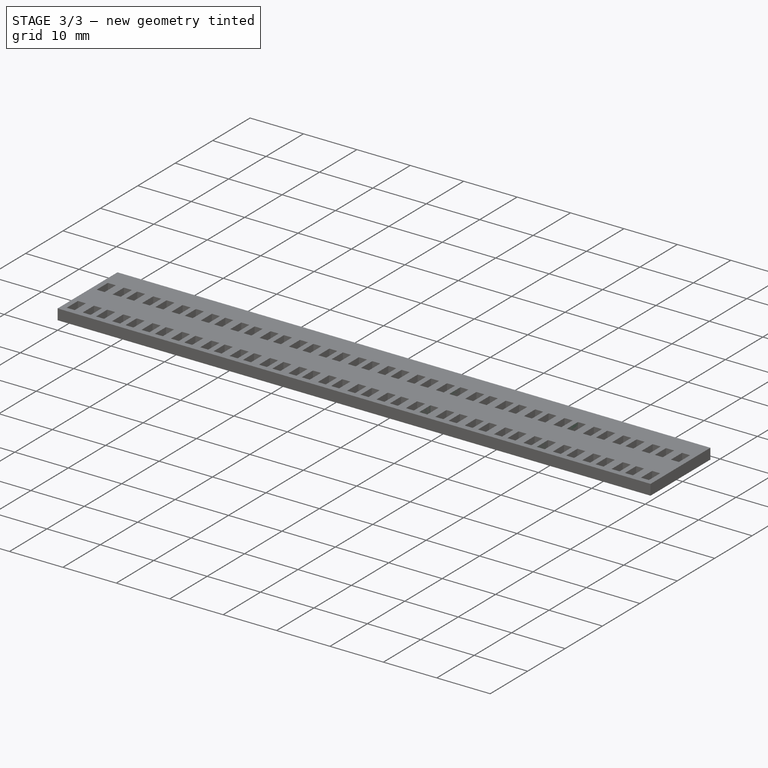
[diagram: stage 3 of 3 — iso view after this stage's code; geometry added in this stage tinted green]
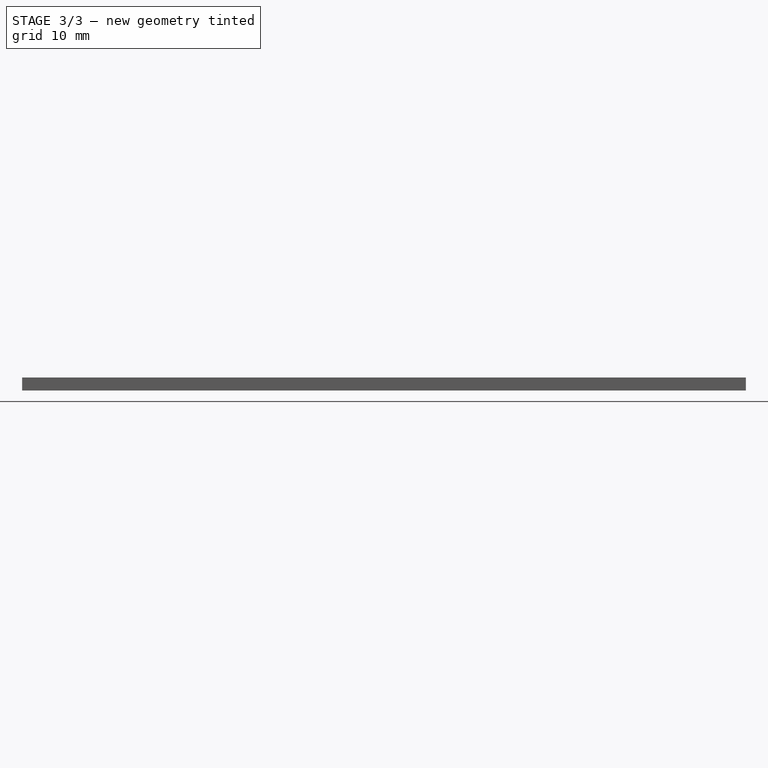
[diagram: stage 3 of 3 — front view after this stage's code; geometry added in this stage tinted green]
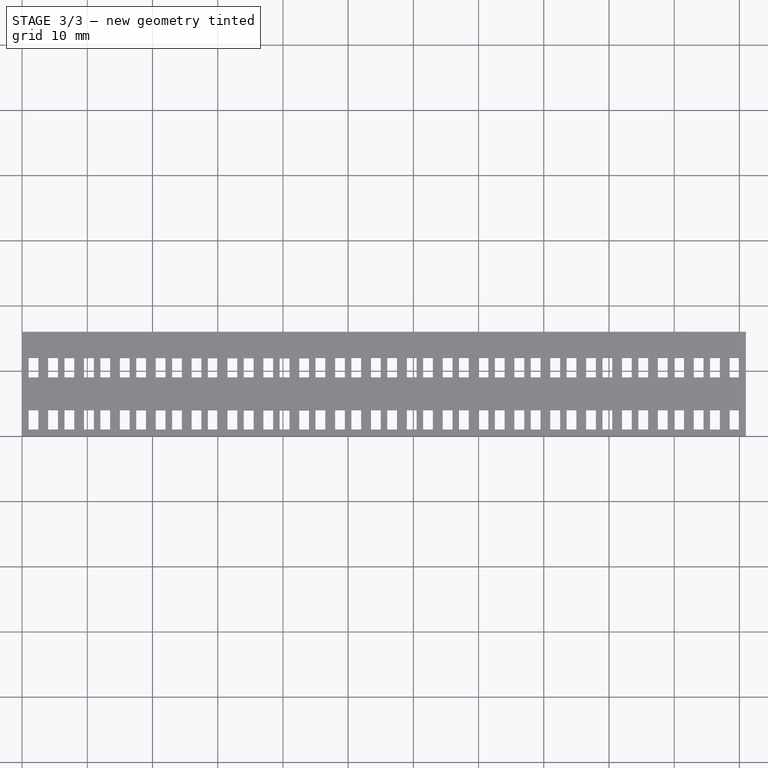
[diagram: stage 3 of 3 — top view after this stage's code; geometry added in this stage tinted green]
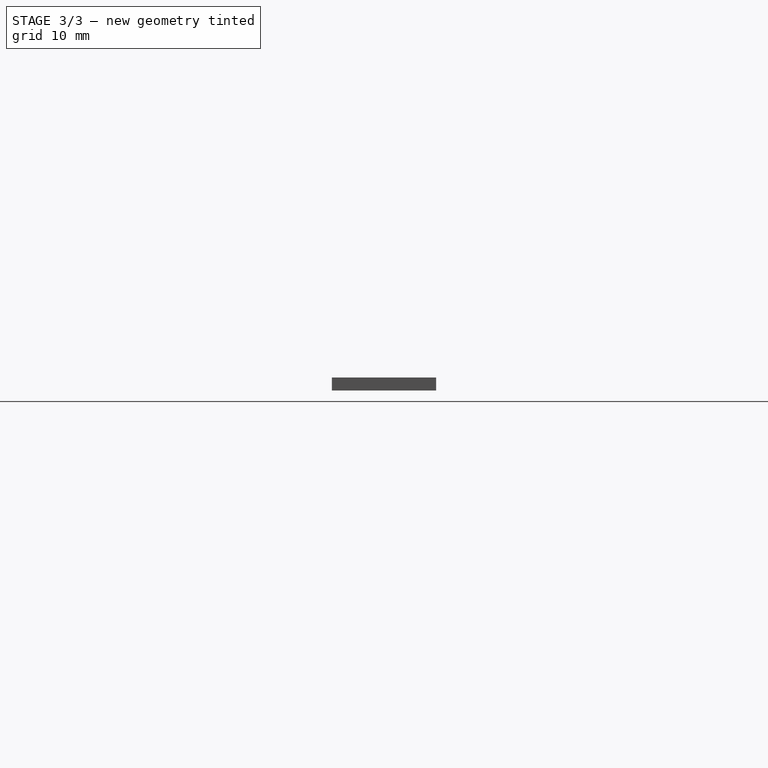
[diagram: stage 3 of 3 — right view after this stage's code; geometry added in this stage tinted green]
FEATURE [Sketcher::SketchObject] Sketch006  label="12c1r-sketch"
  sketch-geometry (279):
    g0: LineSegment [constr] StartX=0 StartY=0 StartZ=0 EndX=1 EndY=0 EndZ=0
    g1: LineSegment StartX=1 StartY=4 StartZ=0 EndX=2.5 EndY=4 EndZ=0
    g2: LineSegment StartX=2.5 StartY=4 StartZ=0 EndX=2.5 EndY=1 EndZ=0
    g3: LineSegment StartX=2.5 StartY=1 StartZ=0 EndX=1 EndY=1 EndZ=0
    g4: LineSegment StartX=1 StartY=1 StartZ=0 EndX=1 EndY=4 EndZ=0
    g5: LineSegment [constr] StartX=1 StartY=1 StartZ=0 EndX=1 EndY=0 EndZ=0
    g6: LineSegment StartX=1 StartY=12 StartZ=0 EndX=2.5 EndY=12 EndZ=0
    g7: LineSegment StartX=2.5 StartY=12 StartZ=0 EndX=2.5 EndY=9 EndZ=0
    g8: LineSegment StartX=2.5 StartY=9 StartZ=0 EndX=1 EndY=9 EndZ=0
    g9: LineSegment [constr] StartX=1 StartY=12 StartZ=0 EndX=1 EndY=16 EndZ=0
    g10: LineSegment StartX=5.5 StartY=9 StartZ=0 EndX=4 EndY=9 EndZ=0
    g11: LineSegment StartX=5.5 StartY=12 StartZ=0 EndX=5.5 EndY=9 EndZ=0
    g12: LineSegment StartX=4 StartY=9 StartZ=0 EndX=4 EndY=12 EndZ=0
    g13: LineSegment StartX=4 StartY=12 StartZ=0 EndX=5.5 EndY=12 EndZ=0
    g14: LineSegment StartX=5.5 StartY=4 StartZ=0 EndX=5.5 EndY=1 EndZ=0
    g15: LineSegment StartX=4 StartY=4 StartZ=0 EndX=5.5 EndY=4 EndZ=0
    g16: LineSegment StartX=4 StartY=1 StartZ=0 EndX=4 EndY=4 EndZ=0
    g17: LineSegment StartX=5.5 StartY=1 StartZ=0 EndX=4 EndY=1 EndZ=0
    g18: LineSegment StartX=1 StartY=12 StartZ=0 EndX=1 EndY=9 EndZ=0
    g19: LineSegment [constr] StartX=1 StartY=9 StartZ=0 EndX=1 EndY=4 EndZ=0
    g20: LineSegment [constr] StartX=2.5 StartY=9 StartZ=0 EndX=4 EndY=9 EndZ=0
    g21: LineSegment [constr] StartX=2.5 StartY=1 StartZ=0 EndX=4 EndY=1 EndZ=0
    g22: LineSegment [constr] StartX=5.5 StartY=0 StartZ=0 EndX=6.5 EndY=0 EndZ=0
    g23: LineSegment StartX=6.5 StartY=4 StartZ=0 EndX=8 EndY=4 EndZ=0
    g24: LineSegment StartX=8 StartY=4 StartZ=0 EndX=8 EndY=1 EndZ=0
    g25: LineSegment StartX=8 StartY=1 StartZ=0 EndX=6.5 EndY=1 EndZ=0
    g26: LineSegment StartX=6.5 StartY=1 StartZ=0 EndX=6.5 EndY=4 EndZ=0
    g27: LineSegment [constr] StartX=6.5 StartY=1 StartZ=0 EndX=6.5 EndY=0 EndZ=0
    g28: LineSegment StartX=6.5 StartY=12 StartZ=0 EndX=8 EndY=12 EndZ=0
    g29: LineSegment StartX=8 StartY=12 StartZ=0 EndX=8 EndY=9 EndZ=0
    g30: LineSegment StartX=8 StartY=9 StartZ=0 EndX=6.5 EndY=9 EndZ=0
    g31: LineSegment [constr] StartX=6.5 StartY=12 StartZ=0 EndX=6.5 EndY=16 EndZ=0
    g32: LineSegment StartX=11 StartY=9 StartZ=0 EndX=9.5 EndY=9 EndZ=0
    g33: LineSegment StartX=11 StartY=12 StartZ=0 EndX=11 EndY=9 EndZ=0
    g34: LineSegment StartX=9.5 StartY=9 StartZ=0 EndX=9.5 EndY=12 EndZ=0
    g35: LineSegment StartX=9.5 StartY=12 StartZ=0 EndX=11 EndY=12 EndZ=0
    g36: LineSegment StartX=11 StartY=4 StartZ=0 EndX=11 EndY=1 EndZ=0
    g37: LineSegment StartX=9.5 StartY=4 StartZ=0 EndX=11 EndY=4 EndZ=0
    g38: LineSegment StartX=9.5 StartY=1 StartZ=0 EndX=9.5 EndY=4 EndZ=0
    g39: LineSegment StartX=11 StartY=1 StartZ=0 EndX=9.5 EndY=1 EndZ=0
    g40: LineSegment StartX=6.5 StartY=12 StartZ=0 EndX=6.5 EndY=9 EndZ=0
    g41: LineSegment [constr] StartX=6.5 StartY=9 StartZ=0 EndX=6.5 EndY=4 EndZ=0
    g42: LineSegment [constr] StartX=8 StartY=9 StartZ=0 EndX=9.5 EndY=9 EndZ=0
    g43: LineSegment [constr] StartX=8 StartY=1 StartZ=0 EndX=9.5 EndY=1 EndZ=0
    g44: LineSegment [constr] StartX=0 StartY=0 StartZ=0 EndX=5.5 EndY=0 EndZ=0
    g45: LineSegment [constr] StartX=11 StartY=-2e-16 StartZ=0 EndX=12 EndY=-2e-16 EndZ=0
    g46: LineSegment StartX=12 StartY=4 StartZ=0 EndX=13.5 EndY=4 EndZ=0
    g47: LineSegment StartX=13.5 StartY=4 StartZ=0 EndX=13.5 EndY=1 EndZ=0
    g48: LineSegment StartX=13.5 StartY=1 StartZ=0 EndX=12 EndY=1 EndZ=0
    g49: LineSegment StartX=12 StartY=1 StartZ=0 EndX=12 EndY=4 EndZ=0
    g50: LineSegment [constr] StartX=12 StartY=1 StartZ=0 EndX=12 EndY=-2e-16 EndZ=0
    g51: LineSegment StartX=12 StartY=12 StartZ=0 EndX=13.5 EndY=12 EndZ=0
    g52: LineSegment StartX=13.5 StartY=12 StartZ=0 EndX=13.5 EndY=9 EndZ=0
    g53: LineSegment StartX=13.5 StartY=9 StartZ=0 EndX=12 EndY=9 EndZ=0
    g54: LineSegment [constr] StartX=12 StartY=12 StartZ=0 EndX=12 EndY=16 EndZ=0
    g55: LineSegment StartX=16.5 StartY=9 StartZ=0 EndX=15 EndY=9 EndZ=0
    g56: LineSegment StartX=16.5 StartY=12 StartZ=0 EndX=16.5 EndY=9 EndZ=0
    g57: LineSegment StartX=15 StartY=9 StartZ=0 EndX=15 EndY=12 EndZ=0
    g58: LineSegment StartX=15 StartY=12 StartZ=0 EndX=16.5 EndY=12 EndZ=0
    g59: LineSegment StartX=16.5 StartY=4 StartZ=0 EndX=16.5 EndY=1 EndZ=0
    g60: LineSegment StartX=15 StartY=4 StartZ=0 EndX=16.5 EndY=4 EndZ=0
    g61: LineSegment StartX=15 StartY=1 StartZ=0 EndX=15 EndY=4 EndZ=0
    g62: LineSegment StartX=16.5 StartY=1 StartZ=0 EndX=15 EndY=1 EndZ=0
    g63: LineSegment StartX=12 StartY=12 StartZ=0 EndX=12 EndY=9 EndZ=0
    g64: LineSegment [constr] StartX=12 StartY=9 StartZ=0 EndX=12 EndY=4 EndZ=0
    g65: LineSegment [constr] StartX=13.5 StartY=9 StartZ=0 EndX=15 EndY=9 EndZ=0
    g66: LineSegment [constr] StartX=13.5 StartY=1 StartZ=0 EndX=15 EndY=1 EndZ=0
    g67: LineSegment [constr] StartX=5.5 StartY=0 StartZ=0 EndX=11 EndY=-2e-16 EndZ=0
    g68: LineSegment [constr] StartX=16.5 StartY=-2e-16 StartZ=0 EndX=17.5 EndY=-2e-16 EndZ=0
    g69: LineSegment StartX=17.5 StartY=4 StartZ=0 EndX=19 EndY=4 EndZ=0
    g70: LineSegment StartX=19 StartY=4 StartZ=0 EndX=19 EndY=1 EndZ=0
    g71: LineSegment StartX=19 StartY=1 StartZ=0 EndX=17.5 EndY=1 EndZ=0
    g72: LineSegment StartX=17.5 StartY=1 StartZ=0 EndX=17.5 EndY=4 EndZ=0
    g73: LineSegment [constr] StartX=17.5 StartY=1 StartZ=0 EndX=17.5 EndY=-1e-16 EndZ=0
    g74: LineSegment StartX=17.5 StartY=12 StartZ=0 EndX=19 EndY=12 EndZ=0
    g75: LineSegment StartX=19 StartY=12 StartZ=0 EndX=19 EndY=9 EndZ=0
    g76: LineSegment StartX=19 StartY=9 StartZ=0 EndX=17.5 EndY=9 EndZ=0
    g77: LineSegment [constr] StartX=17.5 StartY=12 StartZ=0 EndX=17.5 EndY=16 EndZ=0
    g78: LineSegment StartX=22 StartY=9 StartZ=0 EndX=20.5 EndY=9 EndZ=0
    g79: LineSegment StartX=22 StartY=12 StartZ=0 EndX=22 EndY=9 EndZ=0
    g80: LineSegment StartX=20.5 StartY=9 StartZ=0 EndX=20.5 EndY=12 EndZ=0
    g81: LineSegment StartX=20.5 StartY=12 StartZ=0 EndX=22 EndY=12 EndZ=0
    g82: LineSegment StartX=22 StartY=4 StartZ=0 EndX=22 EndY=1 EndZ=0
    g83: LineSegment StartX=20.5 StartY=4 StartZ=0 EndX=22 EndY=4 EndZ=0
    g84: LineSegment StartX=20.5 StartY=1 StartZ=0 EndX=20.5 EndY=4 EndZ=0
    g85: LineSegment StartX=22 StartY=1 StartZ=0 EndX=20.5 EndY=1 EndZ=0
    g86: LineSegment StartX=17.5 StartY=12 StartZ=0 EndX=17.5 EndY=9 EndZ=0
    g87: LineSegment [constr] StartX=17.5 StartY=9 StartZ=0 EndX=17.5 EndY=4 EndZ=0
    g88: LineSegment [constr] StartX=19 StartY=9 StartZ=0 EndX=20.5 EndY=9 EndZ=0
    g89: LineSegment [constr] StartX=19 StartY=1 StartZ=0 EndX=20.5 EndY=1 EndZ=0
    g90: LineSegment [constr] StartX=11 StartY=-2e-16 StartZ=0 EndX=16.5 EndY=-2e-16 EndZ=0
    g91: LineSegment [constr] StartX=22 StartY=-1e-16 StartZ=0 EndX=23 EndY=-1e-16 EndZ=0
    g92: LineSegment StartX=23 StartY=4 StartZ=0 EndX=24.5 EndY=4 EndZ=0
    g93: LineSegment StartX=24.5 StartY=4 StartZ=0 EndX=24.5 EndY=1 EndZ=0
    g94: LineSegment StartX=24.5 StartY=1 StartZ=0 EndX=23 EndY=1 EndZ=0
    g95: LineSegment StartX=23 StartY=1 StartZ=0 EndX=23 EndY=4 EndZ=0
    g96: LineSegment [constr] StartX=23 StartY=1 StartZ=0 EndX=23 EndY=-1e-16 EndZ=0
    g97: LineSegment StartX=23 StartY=12 StartZ=0 EndX=24.5 EndY=12 EndZ=0
    g98: LineSegment StartX=24.5 StartY=12 StartZ=0 EndX=24.5 EndY=9 EndZ=0
    g99: LineSegment StartX=24.5 StartY=9 StartZ=0 EndX=23 EndY=9 EndZ=0
    g100: LineSegment [constr] StartX=23 StartY=12 StartZ=0 EndX=23 EndY=16 EndZ=0
    g101: LineSegment StartX=27.5 StartY=9 StartZ=0 EndX=26 EndY=9 EndZ=0
    g102: LineSegment StartX=27.5 StartY=12 StartZ=0 EndX=27.5 EndY=9 EndZ=0
    g103: LineSegment StartX=26 StartY=9 StartZ=0 EndX=26 EndY=12 EndZ=0
    g104: LineSegment StartX=26 StartY=12 StartZ=0 EndX=27.5 EndY=12 EndZ=0
    g105: LineSegment StartX=27.5 StartY=4 StartZ=0 EndX=27.5 EndY=1 EndZ=0
    g106: LineSegment StartX=26 StartY=4 StartZ=0 EndX=27.5 EndY=4 EndZ=0
    g107: LineSegment StartX=26 StartY=1 StartZ=0 EndX=26 EndY=4 EndZ=0
    g108: LineSegment StartX=27.5 StartY=1 StartZ=0 EndX=26 EndY=1 EndZ=0
    g109: LineSegment StartX=23 StartY=12 StartZ=0 EndX=23 EndY=9 EndZ=0
    g110: LineSegment [constr] StartX=23 StartY=9 StartZ=0 EndX=23 EndY=4 EndZ=0
    g111: LineSegment [constr] StartX=24.5 StartY=9 StartZ=0 EndX=26 EndY=9 EndZ=0
    g112: LineSegment [constr] StartX=24.5 StartY=1 StartZ=0 EndX=26 EndY=1 EndZ=0
    g113: LineSegment [constr] StartX=16.5 StartY=-2e-16 StartZ=0 EndX=22 EndY=-1e-16 EndZ=0
    g114: LineSegment [constr] StartX=27.5 StartY=-1e-16 StartZ=0 EndX=28.5 EndY=-1e-16 EndZ=0
    g115: LineSegment StartX=28.5 StartY=4 StartZ=0 EndX=30 EndY=4 EndZ=0
    g116: LineSegment StartX=30 StartY=4 StartZ=0 EndX=30 EndY=1 EndZ=0
    g117: LineSegment StartX=30 StartY=1 StartZ=0 EndX=28.5 EndY=1 EndZ=0
    g118: LineSegment StartX=28.5 StartY=1 StartZ=0 EndX=28.5 EndY=4 EndZ=0
    g119: LineSegment [constr] StartX=28.5 StartY=1 StartZ=0 EndX=28.5 EndY=-1e-16 EndZ=0
    g120: LineSegment StartX=28.5 StartY=12 StartZ=0 EndX=30 EndY=12 EndZ=0
    g121: LineSegment StartX=30 StartY=12 StartZ=0 EndX=30 EndY=9 EndZ=0
    g122: LineSegment StartX=30 StartY=9 StartZ=0 EndX=28.5 EndY=9 EndZ=0
    g123: LineSegment [constr] StartX=28.5 StartY=12 StartZ=0 EndX=28.5 EndY=16 EndZ=0
    g124: LineSegment StartX=33 StartY=9 StartZ=0 EndX=31.5 EndY=9 EndZ=0
    g125: LineSegment StartX=33 StartY=12 StartZ=0 EndX=33 EndY=9 EndZ=0
    g126: LineSegment StartX=31.5 StartY=9 StartZ=0 EndX=31.5 EndY=12 EndZ=0
    g127: LineSegment StartX=31.5 StartY=12 StartZ=0 EndX=33 EndY=12 EndZ=0
    g128: LineSegment StartX=33 StartY=4 StartZ=0 EndX=33 EndY=1 EndZ=0
    g129: LineSegment StartX=31.5 StartY=4 StartZ=0 EndX=33 EndY=4 EndZ=0
    g130: LineSegment StartX=31.5 StartY=1 StartZ=0 EndX=31.5 EndY=4 EndZ=0
    g131: LineSegment StartX=33 StartY=1 StartZ=0 EndX=31.5 EndY=1 EndZ=0
    g132: LineSegment StartX=28.5 StartY=12 StartZ=0 EndX=28.5 EndY=9 EndZ=0
    g133: LineSegment [constr] StartX=28.5 StartY=9 StartZ=0 EndX=28.5 EndY=4 EndZ=0
    g134: LineSegment [constr] StartX=30 StartY=9 StartZ=0 EndX=31.5 EndY=9 EndZ=0
    g135: LineSegment [constr] StartX=30 StartY=1 StartZ=0 EndX=31.5 EndY=1 EndZ=0
    g136: LineSegment [constr] StartX=22 StartY=-1e-16 StartZ=0 EndX=27.5 EndY=-1e-16 EndZ=0
    g137: LineSegment [constr] StartX=33 StartY=-1e-16 StartZ=0 EndX=34 EndY=-1e-16 EndZ=0
    g138: LineSegment StartX=34 StartY=4 StartZ=0 EndX=35.5 EndY=4 EndZ=0
    g139: LineSegment StartX=35.5 StartY=4 StartZ=0 EndX=35.5 EndY=1 EndZ=0
    g140: LineSegment StartX=35.5 StartY=1 StartZ=0 EndX=34 EndY=1 EndZ=0
    g141: LineSegment StartX=34 StartY=1 StartZ=0 EndX=34 EndY=4 EndZ=0
    g142: LineSegment [constr] StartX=34 StartY=1 StartZ=0 EndX=34 EndY=0 EndZ=0
    g143: LineSegment StartX=34 StartY=12 StartZ=0 EndX=35.5 EndY=12 EndZ=0
    g144: LineSegment StartX=35.5 StartY=12 StartZ=0 EndX=35.5 EndY=9 EndZ=0
    g145: LineSegment StartX=35.5 StartY=9 StartZ=0 EndX=34 EndY=9 EndZ=0
    g146: LineSegment [constr] StartX=34 StartY=12 StartZ=0 EndX=34 EndY=16 EndZ=0
    g147: LineSegment StartX=38.5 StartY=9 StartZ=0 EndX=37 EndY=9 EndZ=0
    g148: LineSegment StartX=38.5 StartY=12 StartZ=0 EndX=38.5 EndY=9 EndZ=0
    g149: LineSegment StartX=37 StartY=9 StartZ=0 EndX=37 EndY=12 EndZ=0
    g150: LineSegment StartX=37 StartY=12 StartZ=0 EndX=38.5 EndY=12 EndZ=0
    g151: LineSegment StartX=38.5 StartY=4 StartZ=0 EndX=38.5 EndY=1 EndZ=0
    g152: LineSegment StartX=37 StartY=4 StartZ=0 EndX=38.5 EndY=4 EndZ=0
    g153: LineSegment StartX=37 StartY=1 StartZ=0 EndX=37 EndY=4 EndZ=0
    g154: LineSegment StartX=38.5 StartY=1 StartZ=0 EndX=37 EndY=1 EndZ=0
    g155: LineSegment StartX=34 StartY=12 StartZ=0 EndX=34 EndY=9 EndZ=0
    g156: LineSegment [constr] StartX=34 StartY=9 StartZ=0 EndX=34 EndY=4 EndZ=0
    g157: LineSegment [constr] StartX=35.5 StartY=9 StartZ=0 EndX=37 EndY=9 EndZ=0
    g158: LineSegment [constr] StartX=35.5 StartY=1 StartZ=0 EndX=37 EndY=1 EndZ=0
    g159: LineSegment [constr] StartX=27.5 StartY=-1e-16 StartZ=0 EndX=33 EndY=-1e-16 EndZ=0
    g160: LineSegment [constr] StartX=38.5 StartY=-1e-16 StartZ=0 EndX=39.5 EndY=-1e-16 EndZ=0
    g161: LineSegment StartX=39.5 StartY=4 StartZ=0 EndX=41 EndY=4 EndZ=0
    g162: LineSegment StartX=41 StartY=4 StartZ=0 EndX=41 EndY=1 EndZ=0
    g163: LineSegment StartX=41 StartY=1 StartZ=0 EndX=39.5 EndY=1 EndZ=0
    g164: LineSegment StartX=39.5 StartY=1 StartZ=0 EndX=39.5 EndY=4 EndZ=0
    g165: LineSegment [constr] StartX=39.5 StartY=1 StartZ=0 EndX=39.5 EndY=-1e-16 EndZ=0
    g166: LineSegment StartX=39.5 StartY=12 StartZ=0 EndX=41 EndY=12 EndZ=0
    g167: LineSegment StartX=41 StartY=12 StartZ=0 EndX=41 EndY=9 EndZ=0
    g168: LineSegment StartX=41 StartY=9 StartZ=0 EndX=39.5 EndY=9 EndZ=0
    g169: LineSegment [constr] StartX=39.5 StartY=12 StartZ=0 EndX=39.5 EndY=16 EndZ=0
    g170: LineSegment StartX=44 StartY=9 StartZ=0 EndX=42.5 EndY=9 EndZ=0
    g171: LineSegment StartX=44 StartY=12 StartZ=0 EndX=44 EndY=9 EndZ=0
    g172: LineSegment StartX=42.5 StartY=9 StartZ=0 EndX=42.5 EndY=12 EndZ=0
    g173: LineSegment StartX=42.5 StartY=12 StartZ=0 EndX=44 EndY=12 EndZ=0
    g174: LineSegment StartX=44 StartY=4 StartZ=0 EndX=44 EndY=1 EndZ=0
    g175: LineSegment StartX=42.5 StartY=4 StartZ=0 EndX=44 EndY=4 EndZ=0
    g176: LineSegment StartX=42.5 StartY=1 StartZ=0 EndX=42.5 EndY=4 EndZ=0
    g177: LineSegment StartX=44 StartY=1 StartZ=0 EndX=42.5 EndY=1 EndZ=0
    g178: LineSegment StartX=39.5 StartY=12 StartZ=0 EndX=39.5 EndY=9 EndZ=0
    g179: LineSegment [constr] StartX=39.5 StartY=9 StartZ=0 EndX=39.5 EndY=4 EndZ=0
    g180: LineSegment [constr] StartX=41 StartY=9 StartZ=0 EndX=42.5 EndY=9 EndZ=0
    g181: LineSegment [constr] StartX=41 StartY=1 StartZ=0 EndX=42.5 EndY=1 EndZ=0
    g182: LineSegment [constr] StartX=33 StartY=-1e-16 StartZ=0 EndX=38.5 EndY=-1e-16 EndZ=0
    g183: LineSegment [constr] StartX=44 StartY=-1e-16 StartZ=0 EndX=45 EndY=-1e-16 EndZ=0
    g184: LineSegment StartX=45 StartY=4 StartZ=0 EndX=46.5 EndY=4 EndZ=0
    g185: LineSegment StartX=46.5 StartY=4 StartZ=0 EndX=46.5 EndY=1 EndZ=0
    g186: LineSegment StartX=46.5 StartY=1 StartZ=0 EndX=45 EndY=1 EndZ=0
    g187: LineSegment StartX=45 StartY=1 StartZ=0 EndX=45 EndY=4 EndZ=0
    g188: LineSegment [constr] StartX=45 StartY=1 StartZ=0 EndX=45 EndY=0 EndZ=0
    g189: LineSegment StartX=45 StartY=12 StartZ=0 EndX=46.5 EndY=12 EndZ=0
    g190: LineSegment StartX=46.5 StartY=12 StartZ=0 EndX=46.5 EndY=9 EndZ=0
    g191: LineSegment StartX=46.5 StartY=9 StartZ=0 EndX=45 EndY=9 EndZ=0
    g192: LineSegment [constr] StartX=45 StartY=12 StartZ=0 EndX=45 EndY=16 EndZ=0
    g193: LineSegment StartX=49.5 StartY=9 StartZ=0 EndX=48 EndY=9 EndZ=0
    g194: LineSegment StartX=49.5 StartY=12 StartZ=0 EndX=49.5 EndY=9 EndZ=0
    g195: LineSegment StartX=48 StartY=9 StartZ=0 EndX=48 EndY=12 EndZ=0
    g196: LineSegment StartX=48 StartY=12 StartZ=0 EndX=49.5 EndY=12 EndZ=0
    g197: LineSegment StartX=49.5 StartY=4 StartZ=0 EndX=49.5 EndY=1 EndZ=0
    g198: LineSegment StartX=48 StartY=4 StartZ=0 EndX=49.5 EndY=4 EndZ=0
    g199: LineSegment StartX=48 StartY=1 StartZ=0 EndX=48 EndY=4 EndZ=0
    g200: LineSegment StartX=49.5 StartY=1 StartZ=0 EndX=48 EndY=1 EndZ=0
    g201: LineSegment StartX=45 StartY=12 StartZ=0 EndX=45 EndY=9 EndZ=0
    g202: LineSegment [constr] StartX=45 StartY=9 StartZ=0 EndX=45 EndY=4 EndZ=0
    g203: LineSegment [constr] StartX=46.5 StartY=9 StartZ=0 EndX=48 EndY=9 EndZ=0
    g204: LineSegment [constr] StartX=46.5 StartY=1 StartZ=0 EndX=48 EndY=1 EndZ=0
    g205: LineSegment [constr] StartX=38.5 StartY=-1e-16 StartZ=0 EndX=44 EndY=-1e-16 EndZ=0
    g206: LineSegment [constr] StartX=49.5 StartY=0 StartZ=0 EndX=50.5 EndY=0 EndZ=0
    g207: LineSegment StartX=50.5 StartY=4 StartZ=0 EndX=52 EndY=4 EndZ=0
    g208: LineSegment StartX=52 StartY=4 StartZ=0 EndX=52 EndY=1 EndZ=0
    g209: LineSegment StartX=52 StartY=1 StartZ=0 EndX=50.5 EndY=1 EndZ=0
    g210: LineSegment StartX=50.5 StartY=1 StartZ=0 EndX=50.5 EndY=4 EndZ=0
    g211: LineSegment [constr] StartX=50.5 StartY=1 StartZ=0 EndX=50.5 EndY=0 EndZ=0
    g212: LineSegment StartX=50.5 StartY=12 StartZ=0 EndX=52 EndY=12 EndZ=0
    g213: LineSegment StartX=52 StartY=12 StartZ=0 EndX=52 EndY=9 EndZ=0
    g214: LineSegment StartX=52 StartY=9 StartZ=0 EndX=50.5 EndY=9 EndZ=0
    g215: LineSegment [constr] StartX=50.5 StartY=12 StartZ=0 EndX=50.5 EndY=16 EndZ=0
    g216: LineSegment StartX=55 StartY=9 StartZ=0 EndX=53.5 EndY=9 EndZ=0
    g217: LineSegment StartX=55 StartY=12 StartZ=0 EndX=55 EndY=9 EndZ=0
    g218: LineSegment StartX=53.5 StartY=9 StartZ=0 EndX=53.5 EndY=12 EndZ=0
    g219: LineSegment StartX=53.5 StartY=12 StartZ=0 EndX=55 EndY=12 EndZ=0
    g220: LineSegment StartX=55 StartY=4 StartZ=0 EndX=55 EndY=1 EndZ=0
    g221: LineSegment StartX=53.5 StartY=4 StartZ=0 EndX=55 EndY=4 EndZ=0
    g222: LineSegment StartX=53.5 StartY=1 StartZ=0 EndX=53.5 EndY=4 EndZ=0
    g223: LineSegment StartX=55 StartY=1 StartZ=0 EndX=53.5 EndY=1 EndZ=0
    g224: LineSegment StartX=50.5 StartY=12 StartZ=0 EndX=50.5 EndY=9 EndZ=0
    g225: LineSegment [constr] StartX=50.5 StartY=9 StartZ=0 EndX=50.5 EndY=4 EndZ=0
    g226: LineSegment [constr] StartX=52 StartY=9 StartZ=0 EndX=53.5 EndY=9 EndZ=0
    g227: LineSegment [constr] StartX=52 StartY=1 StartZ=0 EndX=53.5 EndY=1 EndZ=0
    g228: LineSegment [constr] StartX=44 StartY=-1e-16 StartZ=0 EndX=49.5 EndY=0 EndZ=0
    g229: LineSegment [constr] StartX=55 StartY=0 StartZ=0 EndX=56 EndY=0 EndZ=0
    g230: LineSegment StartX=56 StartY=4 StartZ=0 EndX=57.5 EndY=4 EndZ=0
    g231: LineSegment StartX=57.5 StartY=4 StartZ=0 EndX=57.5 EndY=1 EndZ=0
    g232: LineSegment StartX=57.5 StartY=1 StartZ=0 EndX=56 EndY=1 EndZ=0
    g233: LineSegment StartX=56 StartY=1 StartZ=0 EndX=56 EndY=4 EndZ=0
    g234: LineSegment [constr] StartX=56 StartY=1 StartZ=0 EndX=56 EndY=0 EndZ=0
    g235: LineSegment StartX=56 StartY=12 StartZ=0 EndX=57.5 EndY=12 EndZ=0
    g236: LineSegment StartX=57.5 StartY=12 StartZ=0 EndX=57.5 EndY=9 EndZ=0
    g237: LineSegment StartX=57.5 StartY=9 StartZ=0 EndX=56 EndY=9 EndZ=0
    g238: LineSegment [constr] StartX=56 StartY=12 StartZ=0 EndX=56 EndY=16 EndZ=0
    g239: LineSegment StartX=60.5 StartY=9 StartZ=0 EndX=59 EndY=9 EndZ=0
    g240: LineSegment StartX=60.5 StartY=12 StartZ=0 EndX=60.5 EndY=9 EndZ=0
    g241: LineSegment StartX=59 StartY=9 StartZ=0 EndX=59 EndY=12 EndZ=0
    g242: LineSegment StartX=59 StartY=12 StartZ=0 EndX=60.5 EndY=12 EndZ=0
    g243: LineSegment StartX=60.5 StartY=4 StartZ=0 EndX=60.5 EndY=1 EndZ=0
    g244: LineSegment StartX=59 StartY=4 StartZ=0 EndX=60.5 EndY=4 EndZ=0
    g245: LineSegment StartX=59 StartY=1 StartZ=0 EndX=59 EndY=4 EndZ=0
    g246: LineSegment StartX=60.5 StartY=1 StartZ=0 EndX=59 EndY=1 EndZ=0
    g247: LineSegment StartX=56 StartY=12 StartZ=0 EndX=56 EndY=9 EndZ=0
    g248: LineSegment [constr] StartX=56 StartY=9 StartZ=0 EndX=56 EndY=4 EndZ=0
    g249: LineSegment [constr] StartX=57.5 StartY=9 StartZ=0 EndX=59 EndY=9 EndZ=0
    g250: LineSegment [constr] StartX=57.5 StartY=1 StartZ=0 EndX=59 EndY=1 EndZ=0
    g251: LineSegment [constr] StartX=49.5 StartY=0 StartZ=0 EndX=55 EndY=0 EndZ=0
    g252: LineSegment [constr] StartX=60.5 StartY=0 StartZ=0 EndX=61.5 EndY=0 EndZ=0
    g253: LineSegment StartX=61.5 StartY=4 StartZ=0 EndX=63 EndY=4 EndZ=0
    g254: LineSegment StartX=63 StartY=4 StartZ=0 EndX=63 EndY=1 EndZ=0
    g255: LineSegment StartX=63 StartY=1 StartZ=0 EndX=61.5 EndY=1 EndZ=0
    g256: LineSegment StartX=61.5 StartY=1 StartZ=0 EndX=61.5 EndY=4 EndZ=0
    g257: LineSegment [constr] StartX=61.5 StartY=1 StartZ=0 EndX=61.5 EndY=0 EndZ=0
    g258: LineSegment StartX=61.5 StartY=12 StartZ=0 EndX=63 EndY=12 EndZ=0
    g259: LineSegment StartX=63 StartY=12 StartZ=0 EndX=63 EndY=9 EndZ=0
    g260: LineSegment StartX=63 StartY=9 StartZ=0 EndX=61.5 EndY=9 EndZ=0
    g261: LineSegment [constr] StartX=61.5 StartY=12 StartZ=0 EndX=61.5 EndY=16 EndZ=0
    g262: LineSegment StartX=66 StartY=9 StartZ=0 EndX=64.5 EndY=9 EndZ=0
    g263: LineSegment StartX=66 StartY=12 StartZ=0 EndX=66 EndY=9 EndZ=0
    g264: LineSegment StartX=64.5 StartY=9 StartZ=0 EndX=64.5 EndY=12 EndZ=0
    g265: LineSegment StartX=64.5 StartY=12 StartZ=0 EndX=66 EndY=12 EndZ=0
    g266: LineSegment StartX=66 StartY=4 StartZ=0 EndX=66 EndY=1 EndZ=0
    g267: LineSegment StartX=64.5 StartY=4 StartZ=0 EndX=66 EndY=4 EndZ=0
    g268: LineSegment StartX=64.5 StartY=1 StartZ=0 EndX=64.5 EndY=4 EndZ=0
    g269: LineSegment StartX=66 StartY=1 StartZ=0 EndX=64.5 EndY=1 EndZ=0
    g270: LineSegment StartX=61.5 StartY=12 StartZ=0 EndX=61.5 EndY=9 EndZ=0
    g271: LineSegment [constr] StartX=61.5 StartY=9 StartZ=0 EndX=61.5 EndY=4 EndZ=0
    g272: LineSegment [constr] StartX=63 StartY=9 StartZ=0 EndX=64.5 EndY=9 EndZ=0
    g273: LineSegment [constr] StartX=63 StartY=1 StartZ=0 EndX=64.5 EndY=1 EndZ=0
    g274: LineSegment [constr] StartX=55 StartY=0 StartZ=0 EndX=60.5 EndY=0 EndZ=0
    g275: LineSegment StartX=0 StartY=0 StartZ=0 EndX=67 EndY=0 EndZ=0
    g276: LineSegment StartX=67 StartY=0 StartZ=0 EndX=67 EndY=16 EndZ=0
    g277: LineSegment StartX=67 StartY=16 StartZ=0 EndX=0 EndY=16 EndZ=0
    g278: LineSegment StartX=0 StartY=16 StartZ=0 EndX=0 EndY=0 EndZ=0
  constraints (788):
    c: Horizontal(g0)
    c: Vertical(g5)
    c: Equal(g0,g5)
    c: Horizontal(g10)
    c: Horizontal(g15)
    c: Horizontal(g1)
    c: Horizontal(g6)
    c: Vertical(g2)
    c: Vertical(g14)
    c: Vertical(g7)
    c: Vertical(g11)
    c: Vertical(g9)
    c: Coincident(g19,g8)
    c: Coincident(g19,g1)
    c: Vertical(g19)
    c: DistanceY(g8,g9) = 7
    c: DistanceY(g5,g5) = 1
    c: Equal(g3,g17)
    c: Equal(g17,g8)
    c: Equal(g8,g10)
    c: Equal(g10,g1)
    c: Equal(g1,g15)
    c: Equal(g15,g13)
    c: Equal(g13,g6)
    c: Equal(g18,g4)
    c: Equal(g4,g16)
    c: Equal(g16,g14)
    c: Equal(g14,g11)
    c: Equal(g11,g12)
    c: Equal(g12,g7)
    c: Equal(g7,g2)
    c: Coincident(g20,g7)
    c: Coincident(g20,g10)
    c: Horizontal(g20)
    c: Coincident(g21,g2)
    c: Coincident(g21,g16)
    c: Horizontal(g21)
    c: Equal(g21,g20)
    c: Coincident(g12,g13)
    c: Coincident(g11,g13)
    c: Coincident(g10,g12)
    c: Coincident(g10,g11)
    c: Coincident(g8,g18)
    c: Coincident(g6,g9)
    c: Coincident(g6,g18)
    c: Coincident(g6,g7)
    c: Coincident(g7,g8)
    c: Coincident(g1,g4)
    c: Coincident(g1,g2)
    c: Coincident(g2,g3)
    c: Coincident(g3,g4)
    c: Coincident(g3,g5)
    c: Coincident(g16,g17)
    c: Coincident(g14,g17)
    c: Coincident(g15,g16)
    c: Coincident(g14,g15)
    c: Coincident(g0,g5)
    c: Coincident(g0,g-1)
    c: DistanceX(g3,g3) = 1.5
    c: DistanceX(g21,g21) = 1.5
    c: DistanceY(g4,g4) = 3
    c: DistanceY(g1,g8) = 5
    c: Horizontal(g22)
    c: Vertical(g27)
    c: Equal(g22,g27)
    c: Horizontal(g32)
    c: Horizontal(g37)
    c: Horizontal(g23)
    c: Horizontal(g28)
    c: Vertical(g24)
    c: Vertical(g36)
    c: Vertical(g29)
    c: Vertical(g33)
    c: Vertical(g31)
    c: Coincident(g41,g30)
    c: Coincident(g41,g23)
    c: Vertical(g41)
    c: DistanceY(g30,g31) = 7
    c: Equal(g5,g27) = 1
    c: Equal(g25,g39)
    c: Equal(g39,g30)
    c: Equal(g30,g32)
    c: Equal(g32,g23)
    c: Equal(g23,g37)
    c: Equal(g37,g35)
    c: Equal(g35,g28)
    c: Equal(g40,g26)
    c: Equal(g26,g38)
    c: Equal(g38,g36)
    c: Equal(g36,g33)
    c: Equal(g33,g34)
    c: Equal(g34,g29)
    c: Equal(g29,g24)
    c: Coincident(g42,g29)
    c: Coincident(g42,g32)
    c: Horizontal(g42)
    c: Coincident(g43,g24)
    c: Coincident(g43,g38)
    c: Horizontal(g43)
    c: Equal(g43,g42)
    c: Coincident(g34,g35)
    c: Coincident(g33,g35)
    c: Coincident(g32,g34)
    c: Coincident(g32,g33)
    c: Coincident(g30,g40)
    c: Coincident(g28,g31)
    c: Coincident(g28,g40)
    c: Coincident(g28,g29)
    c: Coincident(g29,g30)
    c: Coincident(g23,g26)
    c: Coincident(g23,g24)
    c: Coincident(g24,g25)
    c: Coincident(g25,g26)
    c: Coincident(g25,g27)
    c: Coincident(g38,g39)
    c: Coincident(g36,g39)
    c: Coincident(g37,g38)
    c: Coincident(g36,g37)
    c: Coincident(g22,g27)
    c: Equal(g3,g25) = 1.75
    c: Equal(g21,g43) = 1.5
    c: Equal(g4,g26) = 3
    c: DistanceY(g23,g30) = 5
    c: Coincident(g0,g44)
    c: Coincident(g22,g44)
    c: Distance(g44) = 5.5
    c: Angle(g44) = 0
    c: Horizontal(g45)
    c: Vertical(g50)
    c: Equal(g45,g50)
    c: Horizontal(g55)
    c: Horizontal(g60)
    c: Horizontal(g46)
    c: Horizontal(g51)
    c: Vertical(g47)
    c: Vertical(g59)
    c: Vertical(g52)
    c: Vertical(g56)
    c: Vertical(g54)
    c: Coincident(g64,g53)
    c: Coincident(g64,g46)
    c: Vertical(g64)
    c: DistanceY(g53,g54) = 7
    c: Equal(g5,g50) = 1
    c: Equal(g48,g62)
    c: Equal(g62,g53)
    c: Equal(g53,g55)
    c: Equal(g55,g46)
    c: Equal(g46,g60)
    c: Equal(g60,g58)
    c: Equal(g58,g51)
    c: Equal(g63,g49)
    c: Equal(g49,g61)
    c: Equal(g61,g59)
    c: Equal(g59,g56)
    c: Equal(g56,g57)
    c: Equal(g57,g52)
    c: Equal(g52,g47)
    c: Coincident(g65,g52)
    c: Coincident(g65,g55)
    c: Horizontal(g65)
    c: Coincident(g66,g47)
    c: Coincident(g66,g61)
    c: Horizontal(g66)
    c: Equal(g66,g65)
    c: Coincident(g57,g58)
    c: Coincident(g56,g58)
    c: Coincident(g55,g57)
    c: Coincident(g55,g56)
    c: Coincident(g53,g63)
    c: Coincident(g51,g54)
    c: Coincident(g51,g63)
    c: Coincident(g51,g52)
    c: Coincident(g52,g53)
    c: Coincident(g46,g49)
    c: Coincident(g46,g47)
    c: Coincident(g47,g48)
    c: Coincident(g48,g49)
    c: Coincident(g48,g50)
    c: Coincident(g61,g62)
    c: Coincident(g59,g62)
    c: Coincident(g60,g61)
    c: Coincident(g59,g60)
    c: Coincident(g45,g50)
    c: Equal(g3,g48) = 1.75
    c: Equal(g21,g66) = 1.5
    c: Equal(g4,g49) = 3
    c: DistanceY(g46,g53) = 5
    c: Coincident(g22,g67)
    c: Coincident(g45,g67)
    c: Equal(g44,g67)
    c: Parallel(g67,g44)
    c: Horizontal(g68)
    c: Vertical(g73)
    c: Equal(g68,g73)
    c: Horizontal(g78)
    c: Horizontal(g83)
    c: Horizontal(g69)
    c: Horizontal(g74)
    c: Vertical(g70)
    c: Vertical(g82)
    c: Vertical(g75)
    c: Vertical(g79)
    c: Vertical(g77)
    c: Coincident(g87,g76)
    c: Coincident(g87,g69)
    c: Vertical(g87)
    c: DistanceY(g76,g77) = 7
    c: Equal(g5,g73) = 1
    c: Equal(g71,g85)
    c: Equal(g85,g76)
    c: Equal(g76,g78)
    c: Equal(g78,g69)
    c: Equal(g69,g83)
    c: Equal(g83,g81)
    c: Equal(g81,g74)
    c: Equal(g86,g72)
    c: Equal(g72,g84)
    c: Equal(g84,g82)
    c: Equal(g82,g79)
    c: Equal(g79,g80)
    c: Equal(g80,g75)
    c: Equal(g75,g70)
    c: Coincident(g88,g75)
    c: Coincident(g88,g78)
    c: Horizontal(g88)
    c: Coincident(g89,g70)
    c: Coincident(g89,g84)
    c: Horizontal(g89)
    c: Equal(g89,g88)
    c: Coincident(g80,g81)
    c: Coincident(g79,g81)
    c: Coincident(g78,g80)
    c: Coincident(g78,g79)
    c: Coincident(g76,g86)
    c: Coincident(g74,g77)
    c: Coincident(g74,g86)
    c: Coincident(g74,g75)
    c: Coincident(g75,g76)
    c: Coincident(g69,g72)
    c: Coincident(g69,g70)
    c: Coincident(g70,g71)
    c: Coincident(g71,g72)
    c: Coincident(g71,g73)
    c: Coincident(g84,g85)
    c: Coincident(g82,g85)
    c: Coincident(g83,g84)
    c: Coincident(g82,g83)
    c: Coincident(g68,g73)
    c: Equal(g3,g71) = 1.75
    c: Equal(g21,g89) = 1.5
    c: Equal(g4,g72) = 3
    c: DistanceY(g69,g76) = 5
    c: Coincident(g45,g90)
    c: Coincident(g68,g90)
    c: Equal(g44,g90)
    c: Parallel(g90,g44)
    c: Horizontal(g91)
    c: Vertical(g96)
    c: Equal(g91,g96)
    c: Horizontal(g101)
    c: Horizontal(g106)
    c: Horizontal(g92)
    c: Horizontal(g97)
    c: Vertical(g93)
    c: Vertical(g105)
    c: Vertical(g98)
    c: Vertical(g102)
    c: Vertical(g100)
    c: Coincident(g110,g99)
    c: Coincident(g110,g92)
    c: Vertical(g110)
    c: DistanceY(g99,g100) = 7
    c: Equal(g5,g96) = 1
    c: Equal(g94,g108)
    c: Equal(g108,g99)
    c: Equal(g99,g101)
    c: Equal(g101,g92)
    c: Equal(g92,g106)
    c: Equal(g106,g104)
    c: Equal(g104,g97)
    c: Equal(g109,g95)
    c: Equal(g95,g107)
    c: Equal(g107,g105)
    c: Equal(g105,g102)
    c: Equal(g102,g103)
    c: Equal(g103,g98)
    c: Equal(g98,g93)
    c: Coincident(g111,g98)
    c: Coincident(g111,g101)
    c: Horizontal(g111)
    c: Coincident(g112,g93)
    c: Coincident(g112,g107)
    c: Horizontal(g112)
    c: Equal(g112,g111)
    c: Coincident(g103,g104)
    c: Coincident(g102,g104)
    c: Coincident(g101,g103)
    c: Coincident(g101,g102)
    c: Coincident(g99,g109)
    c: Coincident(g97,g100)
    c: Coincident(g97,g109)
    c: Coincident(g97,g98)
    c: Coincident(g98,g99)
    c: Coincident(g92,g95)
    c: Coincident(g92,g93)
    c: Coincident(g93,g94)
    c: Coincident(g94,g95)
    c: Coincident(g94,g96)
    c: Coincident(g107,g108)
    c: Coincident(g105,g108)
    c: Coincident(g106,g107)
    c: Coincident(g105,g106)
    c: Coincident(g91,g96)
    c: Equal(g3,g94) = 1.75
    c: Equal(g21,g112) = 1.5
    c: Equal(g4,g95) = 3
    c: DistanceY(g92,g99) = 5
    c: Coincident(g68,g113)
    c: Coincident(g91,g113)
    c: Equal(g44,g113)
    c: Parallel(g113,g44)
    c: Horizontal(g114)
    c: Vertical(g119)
    c: Equal(g114,g119)
    c: Horizontal(g124)
    c: Horizontal(g129)
    c: Horizontal(g115)
    c: Horizontal(g120)
    c: Vertical(g116)
    c: Vertical(g128)
    c: Vertical(g121)
    c: Vertical(g125)
    c: Vertical(g123)
    c: Coincident(g133,g122)
    c: Coincident(g133,g115)
    c: Vertical(g133)
    c: DistanceY(g122,g123) = 7
    c: Equal(g5,g119) = 1
    c: Equal(g117,g131)
    c: Equal(g131,g122)
    c: Equal(g122,g124)
    c: Equal(g124,g115)
    c: Equal(g115,g129)
    c: Equal(g129,g127)
    c: Equal(g127,g120)
    c: Equal(g132,g118)
    c: Equal(g118,g130)
    c: Equal(g130,g128)
    c: Equal(g128,g125)
    c: Equal(g125,g126)
    c: Equal(g126,g121)
    c: Equal(g121,g116)
    c: Coincident(g134,g121)
    c: Coincident(g134,g124)
    c: Horizontal(g134)
    c: Coincident(g135,g116)
    c: Coincident(g135,g130)
    c: Horizontal(g135)
    c: Equal(g135,g134)
    c: Coincident(g126,g127)
    c: Coincident(g125,g127)
    c: Coincident(g124,g126)
    c: Coincident(g124,g125)
    c: Coincident(g122,g132)
    c: Coincident(g120,g123)
    c: Coincident(g120,g132)
    c: Coincident(g120,g121)
    c: Coincident(g121,g122)
    c: Coincident(g115,g118)
    c: Coincident(g115,g116)
    c: Coincident(g116,g117)
    c: Coincident(g117,g118)
    c: Coincident(g117,g119)
    c: Coincident(g130,g131)
    c: Coincident(g128,g131)
    c: Coincident(g129,g130)
    c: Coincident(g128,g129)
    c: Coincident(g114,g119)
    c: Equal(g3,g117) = 1.75
    c: Equal(g21,g135) = 1.5
    c: Equal(g4,g118) = 3
    c: DistanceY(g115,g122) = 5
    c: Coincident(g91,g136)
    c: Coincident(g114,g136)
    c: Equal(g44,g136)
    c: Parallel(g136,g44)
    c: Horizontal(g137)
    c: Vertical(g142)
    c: Equal(g137,g142)
    c: Horizontal(g147)
    c: Horizontal(g152)
    c: Horizontal(g138)
    c: Horizontal(g143)
    c: Vertical(g139)
    c: Vertical(g151)
    c: Vertical(g144)
    c: Vertical(g148)
    c: Vertical(g146)
    c: Coincident(g156,g145)
    c: Coincident(g156,g138)
    c: Vertical(g156)
    c: DistanceY(g145,g146) = 7
    c: Equal(g5,g142) = 1
    c: Equal(g140,g154)
    c: Equal(g154,g145)
    c: Equal(g145,g147)
    c: Equal(g147,g138)
    c: Equal(g138,g152)
    c: Equal(g152,g150)
    c: Equal(g150,g143)
    c: Equal(g155,g141)
    c: Equal(g141,g153)
    c: Equal(g153,g151)
    c: Equal(g151,g148)
    c: Equal(g148,g149)
    c: Equal(g149,g144)
    c: Equal(g144,g139)
    c: Coincident(g157,g144)
    c: Coincident(g157,g147)
    c: Horizontal(g157)
    c: Coincident(g158,g139)
    c: Coincident(g158,g153)
    c: Horizontal(g158)
    c: Equal(g158,g157)
    c: Coincident(g149,g150)
    c: Coincident(g148,g150)
    c: Coincident(g147,g149)
    c: Coincident(g147,g148)
    c: Coincident(g145,g155)
    c: Coincident(g143,g146)
    c: Coincident(g143,g155)
    c: Coincident(g143,g144)
    c: Coincident(g144,g145)
    c: Coincident(g138,g141)
    c: Coincident(g138,g139)
    c: Coincident(g139,g140)
    c: Coincident(g140,g141)
    c: Coincident(g140,g142)
    c: Coincident(g153,g154)
    c: Coincident(g151,g154)
    c: Coincident(g152,g153)
    c: Coincident(g151,g152)
    c: Coincident(g137,g142)
    c: Equal(g3,g140) = 1.75
    c: Equal(g21,g158) = 1.5
    c: Equal(g4,g141) = 3
    c: DistanceY(g138,g145) = 5
    c: Coincident(g114,g159)
    c: Coincident(g137,g159)
    c: Equal(g44,g159)
    c: Parallel(g159,g44)
    c: Horizontal(g160)
    c: Vertical(g165)
    c: Equal(g160,g165)
    c: Horizontal(g170)
    c: Horizontal(g175)
    c: Horizontal(g161)
    c: Horizontal(g166)
    c: Vertical(g162)
    c: Vertical(g174)
    c: Vertical(g167)
    c: Vertical(g171)
    c: Vertical(g169)
    c: Coincident(g179,g168)
    c: Coincident(g179,g161)
    c: Vertical(g179)
    c: DistanceY(g168,g169) = 7
    c: Equal(g5,g165) = 1
    c: Equal(g163,g177)
    c: Equal(g177,g168)
    c: Equal(g168,g170)
    c: Equal(g170,g161)
    c: Equal(g161,g175)
    c: Equal(g175,g173)
    c: Equal(g173,g166)
    c: Equal(g178,g164)
    c: Equal(g164,g176)
    c: Equal(g176,g174)
    c: Equal(g174,g171)
    c: Equal(g171,g172)
    c: Equal(g172,g167)
    c: Equal(g167,g162)
    c: Coincident(g180,g167)
    c: Coincident(g180,g170)
    c: Horizontal(g180)
    c: Coincident(g181,g162)
    c: Coincident(g181,g176)
    c: Horizontal(g181)
    c: Equal(g181,g180)
    c: Coincident(g172,g173)
    c: Coincident(g171,g173)
    c: Coincident(g170,g172)
    c: Coincident(g170,g171)
    c: Coincident(g168,g178)
    c: Coincident(g166,g169)
    c: Coincident(g166,g178)
    c: Coincident(g166,g167)
    c: Coincident(g167,g168)
    c: Coincident(g161,g164)
    c: Coincident(g161,g162)
    c: Coincident(g162,g163)
    c: Coincident(g163,g164)
    c: Coincident(g163,g165)
    c: Coincident(g176,g177)
    c: Coincident(g174,g177)
    c: Coincident(g175,g176)
    c: Coincident(g174,g175)
    c: Coincident(g160,g165)
    c: Equal(g3,g163) = 1.75
    c: Equal(g21,g181) = 1.5
    c: Equal(g4,g164) = 3
    c: DistanceY(g161,g168) = 5
    c: Coincident(g137,g182)
    c: Coincident(g160,g182)
    c: Equal(g44,g182)
    c: Parallel(g182,g44)
    c: Horizontal(g183)
    c: Vertical(g188)
    c: Equal(g183,g188)
    c: Horizontal(g193)
    c: Horizontal(g198)
    c: Horizontal(g184)
    c: Horizontal(g189)
    c: Vertical(g185)
    c: Vertical(g197)
    c: Vertical(g190)
    c: Vertical(g194)
    c: Vertical(g192)
    c: Coincident(g202,g191)
    c: Coincident(g202,g184)
    c: Vertical(g202)
    c: DistanceY(g191,g192) = 7
    c: Equal(g5,g188) = 1
    c: Equal(g186,g200)
    c: Equal(g200,g191)
    c: Equal(g191,g193)
    c: Equal(g193,g184)
    c: Equal(g184,g198)
    c: Equal(g198,g196)
    c: Equal(g196,g189)
    c: Equal(g201,g187)
    c: Equal(g187,g199)
    c: Equal(g199,g197)
    c: Equal(g197,g194)
    c: Equal(g194,g195)
    c: Equal(g195,g190)
    c: Equal(g190,g185)
    c: Coincident(g203,g190)
    c: Coincident(g203,g193)
    c: Horizontal(g203)
    c: Coincident(g204,g185)
    c: Coincident(g204,g199)
    c: Horizontal(g204)
    c: Equal(g204,g203)
    c: Coincident(g195,g196)
    c: Coincident(g194,g196)
    c: Coincident(g193,g195)
    c: Coincident(g193,g194)
    c: Coincident(g191,g201)
    c: Coincident(g189,g192)
    c: Coincident(g189,g201)
    c: Coincident(g189,g190)
    c: Coincident(g190,g191)
    c: Coincident(g184,g187)
    c: Coincident(g184,g185)
    c: Coincident(g185,g186)
    c: Coincident(g186,g187)
    c: Coincident(g186,g188)
    c: Coincident(g199,g200)
    c: Coincident(g197,g200)
    c: Coincident(g198,g199)
    c: Coincident(g197,g198)
    c: Coincident(g183,g188)
    c: Equal(g3,g186) = 1.75
    c: Equal(g21,g204) = 1.5
    c: Equal(g4,g187) = 3
    c: DistanceY(g184,g191) = 5
    c: Coincident(g160,g205)
    c: Coincident(g183,g205)
    c: Equal(g44,g205)
    c: Parallel(g205,g44)
    c: Horizontal(g206)
    c: Vertical(g211)
    c: Equal(g206,g211)
    c: Horizontal(g216)
    c: Horizontal(g221)
    c: Horizontal(g207)
    c: Horizontal(g212)
    c: Vertical(g208)
    c: Vertical(g220)
    c: Vertical(g213)
    c: Vertical(g217)
    c: Vertical(g215)
    c: Coincident(g225,g214)
    c: Coincident(g225,g207)
    c: Vertical(g225)
    c: DistanceY(g214,g215) = 7
    c: Equal(g5,g211) = 1
    c: Equal(g209,g223)
    c: Equal(g223,g214)
    c: Equal(g214,g216)
    c: Equal(g216,g207)
    c: Equal(g207,g221)
    c: Equal(g221,g219)
    c: Equal(g219,g212)
    c: Equal(g224,g210)
    c: Equal(g210,g222)
    c: Equal(g222,g220)
    c: Equal(g220,g217)
    c: Equal(g217,g218)
    c: Equal(g218,g213)
    c: Equal(g213,g208)
    c: Coincident(g226,g213)
    c: Coincident(g226,g216)
    c: Horizontal(g226)
    c: Coincident(g227,g208)
    c: Coincident(g227,g222)
    c: Horizontal(g227)
    c: Equal(g227,g226)
    c: Coincident(g218,g219)
    c: Coincident(g217,g219)
    c: Coincident(g216,g218)
    c: Coincident(g216,g217)
    c: Coincident(g214,g224)
    c: Coincident(g212,g215)
    c: Coincident(g212,g224)
    c: Coincident(g212,g213)
    c: Coincident(g213,g214)
    c: Coincident(g207,g210)
    c: Coincident(g207,g208)
    c: Coincident(g208,g209)
    c: Coincident(g209,g210)
    c: Coincident(g209,g211)
    c: Coincident(g222,g223)
    c: Coincident(g220,g223)
    c: Coincident(g221,g222)
    c: Coincident(g220,g221)
    c: Coincident(g206,g211)
    c: Equal(g3,g209) = 1.75
    c: Equal(g21,g227) = 1.5
    c: Equal(g4,g210) = 3
    c: DistanceY(g207,g214) = 5
    c: Coincident(g183,g228)
    c: Coincident(g206,g228)
    c: Equal(g44,g228)
    c: Parallel(g228,g44)
    c: Horizontal(g229)
    c: Vertical(g234)
    c: Equal(g229,g234)
    c: Horizontal(g239)
    c: Horizontal(g244)
    c: Horizontal(g230)
    c: Horizontal(g235)
    c: Vertical(g231)
    c: Vertical(g243)
    c: Vertical(g236)
    c: Vertical(g240)
    c: Vertical(g238)
    c: Coincident(g248,g237)
    c: Coincident(g248,g230)
    c: Vertical(g248)
    c: DistanceY(g237,g238) = 7
    c: Equal(g5,g234) = 1
    c: Equal(g232,g246)
    c: Equal(g246,g237)
    c: Equal(g237,g239)
    c: Equal(g239,g230)
    c: Equal(g230,g244)
    c: Equal(g244,g242)
    c: Equal(g242,g235)
    c: Equal(g247,g233)
    c: Equal(g233,g245)
    c: Equal(g245,g243)
    c: Equal(g243,g240)
    c: Equal(g240,g241)
    c: Equal(g241,g236)
    c: Equal(g236,g231)
    c: Coincident(g249,g236)
    c: Coincident(g249,g239)
    c: Horizontal(g249)
    c: Coincident(g250,g231)
    c: Coincident(g250,g245)
    c: Horizontal(g250)
    c: Equal(g250,g249)
    c: Coincident(g241,g242)
    c: Coincident(g240,g242)
    c: Coincident(g239,g241)
    c: Coincident(g239,g240)
    c: Coincident(g237,g247)
    c: Coincident(g235,g238)
    c: Coincident(g235,g247)
    c: Coincident(g235,g236)
    c: Coincident(g236,g237)
    c: Coincident(g230,g233)
    c: Coincident(g230,g231)
    c: Coincident(g231,g232)
    c: Coincident(g232,g233)
    c: Coincident(g232,g234)
    c: Coincident(g245,g246)
    c: Coincident(g243,g246)
    c: Coincident(g244,g245)
    c: Coincident(g243,g244)
    c: Coincident(g229,g234)
    c: Equal(g3,g232) = 1.75
    c: Equal(g21,g250) = 1.5
    c: Equal(g4,g233) = 3
    c: DistanceY(g230,g237) = 5
    c: Coincident(g206,g251)
    c: Coincident(g229,g251)
    c: Equal(g44,g251)
    c: Parallel(g251,g44)
    c: Horizontal(g252)
    c: Vertical(g257)
    c: Equal(g252,g257)
    c: Horizontal(g262)
    c: Horizontal(g267)
    c: Horizontal(g253)
    c: Horizontal(g258)
    c: Vertical(g254)
    c: Vertical(g266)
    c: Vertical(g259)
    c: Vertical(g263)
    c: Vertical(g261)
    c: Coincident(g271,g260)
    c: Coincident(g271,g253)
    c: Vertical(g271)
    c: DistanceY(g260,g261) = 7
    c: Equal(g5,g257) = 1
    c: Equal(g255,g269)
    c: Equal(g269,g260)
    c: Equal(g260,g262)
    c: Equal(g262,g253)
    c: Equal(g253,g267)
    c: Equal(g267,g265)
    c: Equal(g265,g258)
    c: Equal(g270,g256)
    c: Equal(g256,g268)
    c: Equal(g268,g266)
    c: Equal(g266,g263)
    c: Equal(g263,g264)
    c: Equal(g264,g259)
    c: Equal(g259,g254)
    c: Coincident(g272,g259)
    c: Coincident(g272,g262)
    c: Horizontal(g272)
    c: Coincident(g273,g254)
    c: Coincident(g273,g268)
    c: Horizontal(g273)
    c: Equal(g273,g272)
    c: Coincident(g264,g265)
    c: Coincident(g263,g265)
    c: Coincident(g262,g264)
    c: Coincident(g262,g263)
    c: Coincident(g260,g270)
    c: Coincident(g258,g261)
    c: Coincident(g258,g270)
    c: Coincident(g258,g259)
    c: Coincident(g259,g260)
    c: Coincident(g253,g256)
    c: Coincident(g253,g254)
    c: Coincident(g254,g255)
    c: Coincident(g255,g256)
    c: Coincident(g255,g257)
    c: Coincident(g268,g269)
    c: Coincident(g266,g269)
    c: Coincident(g267,g268)
    c: Coincident(g266,g267)
    c: Coincident(g252,g257)
    c: Equal(g3,g255) = 1.75
    c: Equal(g21,g273) = 1.5
    c: Equal(g4,g256) = 3
    c: DistanceY(g253,g260) = 5
    c: Coincident(g229,g274)
    c: Coincident(g252,g274)
    c: Equal(g44,g274)
    c: Parallel(g274,g44)
    c: Coincident(g275,g276)
    c: Coincident(g276,g277)
    c: Coincident(g277,g278)
    c: Coincident(g278,g275)
    c: Horizontal(g275)
    c: Horizontal(g277)
    c: Vertical(g276)
    c: Vertical(g278)
    c: Coincident(g275,g-1)
    c: PointOnObject(g9,g277)
    c: DistanceX(g266,g275) = 1
FEATURE [Part::Extrusion] Extrude003  label="12c1r"
  Base = -> Sketch006
  Dir = (0,0,1)
  DirMode = 2
  FaceMakerClass = Part::FaceMakerBullseye
  LengthFwd = 2
  LengthRev = 0
  Solid = true
  Symmetric = false
FEATURE [Sketcher::SketchObject] Sketch007  label="1c1r-sketch"
  sketch-geometry (22):
    g0: LineSegment [constr] StartX=0 StartY=0 StartZ=0 EndX=1 EndY=0 EndZ=0
    g1: LineSegment StartX=1 StartY=4 StartZ=0 EndX=2.5 EndY=4 EndZ=0
    g2: LineSegment StartX=2.5 StartY=4 StartZ=0 EndX=2.5 EndY=1 EndZ=0
    g3: LineSegment StartX=2.5 StartY=1 StartZ=0 EndX=1 EndY=1 EndZ=0
    g4: LineSegment StartX=1 StartY=1 StartZ=0 EndX=1 EndY=4 EndZ=0
    g5: LineSegment [constr] StartX=1 StartY=1 StartZ=0 EndX=1 EndY=0 EndZ=0
    g6: LineSegment StartX=1 StartY=12 StartZ=0 EndX=2.5 EndY=12 EndZ=0
    g7: LineSegment StartX=2.5 StartY=12 StartZ=0 EndX=2.5 EndY=9 EndZ=0
    g8: LineSegment StartX=2.5 StartY=9 StartZ=0 EndX=1 EndY=9 EndZ=0
    g9: LineSegment [constr] StartX=1 StartY=12 StartZ=0 EndX=1 EndY=16 EndZ=0
    g10: LineSegment StartX=5.5 StartY=9 StartZ=0 EndX=4 EndY=9 EndZ=0
    g11: LineSegment StartX=5.5 StartY=12 StartZ=0 EndX=5.5 EndY=9 EndZ=0
    g12: LineSegment StartX=4 StartY=9 StartZ=0 EndX=4 EndY=12 EndZ=0
    g13: LineSegment StartX=4 StartY=12 StartZ=0 EndX=5.5 EndY=12 EndZ=0
    g14: LineSegment StartX=5.5 StartY=4 StartZ=0 EndX=5.5 EndY=1 EndZ=0
    g15: LineSegment StartX=4 StartY=4 StartZ=0 EndX=5.5 EndY=4 EndZ=0
    g16: LineSegment StartX=4 StartY=1 StartZ=0 EndX=4 EndY=4 EndZ=0
    g17: LineSegment StartX=5.5 StartY=1 StartZ=0 EndX=4 EndY=1 EndZ=0
    g18: LineSegment StartX=1 StartY=12 StartZ=0 EndX=1 EndY=9 EndZ=0
    g19: LineSegment [constr] StartX=1 StartY=9 StartZ=0 EndX=1 EndY=4 EndZ=0
    g20: LineSegment [constr] StartX=2.5 StartY=9 StartZ=0 EndX=4 EndY=9 EndZ=0
    g21: LineSegment [constr] StartX=2.5 StartY=1 StartZ=0 EndX=4 EndY=1 EndZ=0
  constraints (62):
    c: Horizontal(g0)
    c: Vertical(g5)
    c: Equal(g0,g5)
    c: Horizontal(g10)
    c: Horizontal(g15)
    c: Horizontal(g1)
    c: Horizontal(g6)
    c: Vertical(g2)
    c: Vertical(g14)
    c: Vertical(g7)
    c: Vertical(g11)
    c: Vertical(g9)
    c: Coincident(g19,g8)
    c: Coincident(g19,g1)
    c: Vertical(g19)
    c: DistanceY(g8,g9) = 7
    c: DistanceY(g5,g5) = 1
    c: Equal(g3,g17)
    c: Equal(g17,g8)
    c: Equal(g8,g10)
    c: Equal(g10,g1)
    c: Equal(g1,g15)
    c: Equal(g15,g13)
    c: Equal(g13,g6)
    c: Equal(g18,g4)
    c: Equal(g4,g16)
    c: Equal(g16,g14)
    c: Equal(g14,g11)
    c: Equal(g11,g12)
    c: Equal(g12,g7)
    c: Equal(g7,g2)
    c: Coincident(g20,g7)
    c: Coincident(g20,g10)
    c: Horizontal(g20)
    c: Coincident(g21,g2)
    c: Coincident(g21,g16)
    c: Horizontal(g21)
    c: Equal(g21,g20)
    c: Coincident(g12,g13)
    c: Coincident(g11,g13)
    c: Coincident(g10,g12)
    c: Coincident(g10,g11)
    c: Coincident(g8,g18)
    c: Coincident(g6,g9)
    c: Coincident(g6,g18)
    c: Coincident(g6,g7)
    c: Coincident(g7,g8)
    c: Coincident(g1,g4)
    c: Coincident(g1,g2)
    c: Coincident(g2,g3)
    c: Coincident(g3,g4)
    c: Coincident(g3,g5)
    c: Coincident(g16,g17)
    c: Coincident(g14,g17)
    c: Coincident(g15,g16)
    c: Coincident(g14,g15)
    c: Coincident(g0,g5)
    c: Coincident(g0,g-1)
    c: DistanceX(g3,g3) = 1.5
    c: DistanceX(g21,g21) = 1.5
    c: DistanceY(g4,g4) = 3
    c: DistanceY(g1,g8) = 5
FEATURE [Sketcher::SketchObject] Sketch008  label="16c1r-sketch"
  sketch-geometry (372):
    g0: LineSegment [constr] StartX=0 StartY=0 StartZ=0 EndX=1 EndY=0 EndZ=0
    g1: LineSegment StartX=1 StartY=4 StartZ=0 EndX=2.5 EndY=4 EndZ=0
    g2: LineSegment StartX=2.5 StartY=4 StartZ=0 EndX=2.5 EndY=1 EndZ=0
    g3: LineSegment StartX=2.5 StartY=1 StartZ=0 EndX=1 EndY=1 EndZ=0
    g4: LineSegment StartX=1 StartY=1 StartZ=0 EndX=1 EndY=4 EndZ=0
    g5: LineSegment [constr] StartX=1 StartY=1 StartZ=0 EndX=1 EndY=0 EndZ=0
    g6: LineSegment StartX=1 StartY=12 StartZ=0 EndX=2.5 EndY=12 EndZ=0
    g7: LineSegment StartX=2.5 StartY=12 StartZ=0 EndX=2.5 EndY=9 EndZ=0
    g8: LineSegment StartX=2.5 StartY=9 StartZ=0 EndX=1 EndY=9 EndZ=0
    g9: LineSegment [constr] StartX=1 StartY=12 StartZ=0 EndX=1 EndY=16 EndZ=0
    g10: LineSegment StartX=5.5 StartY=9 StartZ=0 EndX=4 EndY=9 EndZ=0
    g11: LineSegment StartX=5.5 StartY=12 StartZ=0 EndX=5.5 EndY=9 EndZ=0
    g12: LineSegment StartX=4 StartY=9 StartZ=0 EndX=4 EndY=12 EndZ=0
    g13: LineSegment StartX=4 StartY=12 StartZ=0 EndX=5.5 EndY=12 EndZ=0
    g14: LineSegment StartX=5.5 StartY=4 StartZ=0 EndX=5.5 EndY=1 EndZ=0
    g15: LineSegment StartX=4 StartY=4 StartZ=0 EndX=5.5 EndY=4 EndZ=0
    g16: LineSegment StartX=4 StartY=1 StartZ=0 EndX=4 EndY=4 EndZ=0
    g17: LineSegment StartX=5.5 StartY=1 StartZ=0 EndX=4 EndY=1 EndZ=0
    g18: LineSegment StartX=1 StartY=12 StartZ=0 EndX=1 EndY=9 EndZ=0
    g19: LineSegment [constr] StartX=1 StartY=9 StartZ=0 EndX=1 EndY=4 EndZ=0
    g20: LineSegment [constr] StartX=2.5 StartY=9 StartZ=0 EndX=4 EndY=9 EndZ=0
    g21: LineSegment [constr] StartX=2.5 StartY=1 StartZ=0 EndX=4 EndY=1 EndZ=0
    g22: LineSegment [constr] StartX=5.5 StartY=0 StartZ=0 EndX=6.5 EndY=0 EndZ=0
    g23: LineSegment StartX=6.5 StartY=4 StartZ=0 EndX=8 EndY=4 EndZ=0
    g24: LineSegment StartX=8 StartY=4 StartZ=0 EndX=8 EndY=1 EndZ=0
    g25: LineSegment StartX=8 StartY=1 StartZ=0 EndX=6.5 EndY=1 EndZ=0
    g26: LineSegment StartX=6.5 StartY=1 StartZ=0 EndX=6.5 EndY=4 EndZ=0
    g27: LineSegment [constr] StartX=6.5 StartY=1 StartZ=0 EndX=6.5 EndY=0 EndZ=0
    g28: LineSegment StartX=6.5 StartY=12 StartZ=0 EndX=8 EndY=12 EndZ=0
    g29: LineSegment StartX=8 StartY=12 StartZ=0 EndX=8 EndY=9 EndZ=0
    g30: LineSegment StartX=8 StartY=9 StartZ=0 EndX=6.5 EndY=9 EndZ=0
    g31: LineSegment [constr] StartX=6.5 StartY=12 StartZ=0 EndX=6.5 EndY=16 EndZ=0
    g32: LineSegment StartX=11 StartY=9 StartZ=0 EndX=9.5 EndY=9 EndZ=0
    g33: LineSegment StartX=11 StartY=12 StartZ=0 EndX=11 EndY=9 EndZ=0
    g34: LineSegment StartX=9.5 StartY=9 StartZ=0 EndX=9.5 EndY=12 EndZ=0
    g35: LineSegment StartX=9.5 StartY=12 StartZ=0 EndX=11 EndY=12 EndZ=0
    g36: LineSegment StartX=11 StartY=4 StartZ=0 EndX=11 EndY=1 EndZ=0
    g37: LineSegment StartX=9.5 StartY=4 StartZ=0 EndX=11 EndY=4 EndZ=0
    g38: LineSegment StartX=9.5 StartY=1 StartZ=0 EndX=9.5 EndY=4 EndZ=0
    g39: LineSegment StartX=11 StartY=1 StartZ=0 EndX=9.5 EndY=1 EndZ=0
    g40: LineSegment StartX=6.5 StartY=12 StartZ=0 EndX=6.5 EndY=9 EndZ=0
    g41: LineSegment [constr] StartX=6.5 StartY=9 StartZ=0 EndX=6.5 EndY=4 EndZ=0
    g42: LineSegment [constr] StartX=8 StartY=9 StartZ=0 EndX=9.5 EndY=9 EndZ=0
    g43: LineSegment [constr] StartX=8 StartY=1 StartZ=0 EndX=9.5 EndY=1 EndZ=0
    g44: LineSegment [constr] StartX=0 StartY=0 StartZ=0 EndX=5.5 EndY=0 EndZ=0
    g45: LineSegment [constr] StartX=11 StartY=0 StartZ=0 EndX=12 EndY=0 EndZ=0
    g46: LineSegment StartX=12 StartY=4 StartZ=0 EndX=13.5 EndY=4 EndZ=0
    g47: LineSegment StartX=13.5 StartY=4 StartZ=0 EndX=13.5 EndY=1 EndZ=0
    g48: LineSegment StartX=13.5 StartY=1 StartZ=0 EndX=12 EndY=1 EndZ=0
    g49: LineSegment StartX=12 StartY=1 StartZ=0 EndX=12 EndY=4 EndZ=0
    g50: LineSegment [constr] StartX=12 StartY=1 StartZ=0 EndX=12 EndY=0 EndZ=0
    g51: LineSegment StartX=12 StartY=12 StartZ=0 EndX=13.5 EndY=12 EndZ=0
    g52: LineSegment StartX=13.5 StartY=12 StartZ=0 EndX=13.5 EndY=9 EndZ=0
    g53: LineSegment StartX=13.5 StartY=9 StartZ=0 EndX=12 EndY=9 EndZ=0
    g54: LineSegment [constr] StartX=12 StartY=12 StartZ=0 EndX=12 EndY=16 EndZ=0
    g55: LineSegment StartX=16.5 StartY=9 StartZ=0 EndX=15 EndY=9 EndZ=0
    g56: LineSegment StartX=16.5 StartY=12 StartZ=0 EndX=16.5 EndY=9 EndZ=0
    g57: LineSegment StartX=15 StartY=9 StartZ=0 EndX=15 EndY=12 EndZ=0
    g58: LineSegment StartX=15 StartY=12 StartZ=0 EndX=16.5 EndY=12 EndZ=0
    g59: LineSegment StartX=16.5 StartY=4 StartZ=0 EndX=16.5 EndY=1 EndZ=0
    g60: LineSegment StartX=15 StartY=4 StartZ=0 EndX=16.5 EndY=4 EndZ=0
    g61: LineSegment StartX=15 StartY=1 StartZ=0 EndX=15 EndY=4 EndZ=0
    g62: LineSegment StartX=16.5 StartY=1 StartZ=0 EndX=15 EndY=1 EndZ=0
    g63: LineSegment StartX=12 StartY=12 StartZ=0 EndX=12 EndY=9 EndZ=0
    g64: LineSegment [constr] StartX=12 StartY=9 StartZ=0 EndX=12 EndY=4 EndZ=0
    g65: LineSegment [constr] StartX=13.5 StartY=9 StartZ=0 EndX=15 EndY=9 EndZ=0
    g66: LineSegment [constr] StartX=13.5 StartY=1 StartZ=0 EndX=15 EndY=1 EndZ=0
    g67: LineSegment [constr] StartX=5.5 StartY=0 StartZ=0 EndX=11 EndY=0 EndZ=0
    g68: LineSegment [constr] StartX=16.5 StartY=0 StartZ=0 EndX=17.5 EndY=0 EndZ=0
    g69: LineSegment StartX=17.5 StartY=4 StartZ=0 EndX=19 EndY=4 EndZ=0
    g70: LineSegment StartX=19 StartY=4 StartZ=0 EndX=19 EndY=1 EndZ=0
    g71: LineSegment StartX=19 StartY=1 StartZ=0 EndX=17.5 EndY=1 EndZ=0
    g72: LineSegment StartX=17.5 StartY=1 StartZ=0 EndX=17.5 EndY=4 EndZ=0
    g73: LineSegment [constr] StartX=17.5 StartY=1 StartZ=0 EndX=17.5 EndY=0 EndZ=0
    g74: LineSegment StartX=17.5 StartY=12 StartZ=0 EndX=19 EndY=12 EndZ=0
    g75: LineSegment StartX=19 StartY=12 StartZ=0 EndX=19 EndY=9 EndZ=0
    g76: LineSegment StartX=19 StartY=9 StartZ=0 EndX=17.5 EndY=9 EndZ=0
    g77: LineSegment [constr] StartX=17.5 StartY=12 StartZ=0 EndX=17.5 EndY=16 EndZ=0
    g78: LineSegment StartX=22 StartY=9 StartZ=0 EndX=20.5 EndY=9 EndZ=0
    g79: LineSegment StartX=22 StartY=12 StartZ=0 EndX=22 EndY=9 EndZ=0
    g80: LineSegment StartX=20.5 StartY=9 StartZ=0 EndX=20.5 EndY=12 EndZ=0
    g81: LineSegment StartX=20.5 StartY=12 StartZ=0 EndX=22 EndY=12 EndZ=0
    g82: LineSegment StartX=22 StartY=4 StartZ=0 EndX=22 EndY=1 EndZ=0
    g83: LineSegment StartX=20.5 StartY=4 StartZ=0 EndX=22 EndY=4 EndZ=0
    g84: LineSegment StartX=20.5 StartY=1 StartZ=0 EndX=20.5 EndY=4 EndZ=0
    g85: LineSegment StartX=22 StartY=1 StartZ=0 EndX=20.5 EndY=1 EndZ=0
    g86: LineSegment StartX=17.5 StartY=12 StartZ=0 EndX=17.5 EndY=9 EndZ=0
    g87: LineSegment [constr] StartX=17.5 StartY=9 StartZ=0 EndX=17.5 EndY=4 EndZ=0
    g88: LineSegment [constr] StartX=19 StartY=9 StartZ=0 EndX=20.5 EndY=9 EndZ=0
    g89: LineSegment [constr] StartX=19 StartY=1 StartZ=0 EndX=20.5 EndY=1 EndZ=0
    g90: LineSegment [constr] StartX=11 StartY=0 StartZ=0 EndX=16.5 EndY=0 EndZ=0
    g91: LineSegment [constr] StartX=22 StartY=0 StartZ=0 EndX=23 EndY=0 EndZ=0
    g92: LineSegment StartX=23 StartY=4 StartZ=0 EndX=24.5 EndY=4 EndZ=0
    g93: LineSegment StartX=24.5 StartY=4 StartZ=0 EndX=24.5 EndY=1 EndZ=0
    g94: LineSegment StartX=24.5 StartY=1 StartZ=0 EndX=23 EndY=1 EndZ=0
    g95: LineSegment StartX=23 StartY=1 StartZ=0 EndX=23 EndY=4 EndZ=0
    g96: LineSegment [constr] StartX=23 StartY=1 StartZ=0 EndX=23 EndY=0 EndZ=0
    g97: LineSegment StartX=23 StartY=12 StartZ=0 EndX=24.5 EndY=12 EndZ=0
    g98: LineSegment StartX=24.5 StartY=12 StartZ=0 EndX=24.5 EndY=9 EndZ=0
    g99: LineSegment StartX=24.5 StartY=9 StartZ=0 EndX=23 EndY=9 EndZ=0
    g100: LineSegment [constr] StartX=23 StartY=12 StartZ=0 EndX=23 EndY=16 EndZ=0
    g101: LineSegment StartX=27.5 StartY=9 StartZ=0 EndX=26 EndY=9 EndZ=0
    g102: LineSegment StartX=27.5 StartY=12 StartZ=0 EndX=27.5 EndY=9 EndZ=0
    g103: LineSegment StartX=26 StartY=9 StartZ=0 EndX=26 EndY=12 EndZ=0
    g104: LineSegment StartX=26 StartY=12 StartZ=0 EndX=27.5 EndY=12 EndZ=0
    g105: LineSegment StartX=27.5 StartY=4 StartZ=0 EndX=27.5 EndY=1 EndZ=0
    g106: LineSegment StartX=26 StartY=4 StartZ=0 EndX=27.5 EndY=4 EndZ=0
    g107: LineSegment StartX=26 StartY=1 StartZ=0 EndX=26 EndY=4 EndZ=0
    g108: LineSegment StartX=27.5 StartY=1 StartZ=0 EndX=26 EndY=1 EndZ=0
    g109: LineSegment StartX=23 StartY=12 StartZ=0 EndX=23 EndY=9 EndZ=0
    g110: LineSegment [constr] StartX=23 StartY=9 StartZ=0 EndX=23 EndY=4 EndZ=0
    g111: LineSegment [constr] StartX=24.5 StartY=9 StartZ=0 EndX=26 EndY=9 EndZ=0
    g112: LineSegment [constr] StartX=24.5 StartY=1 StartZ=0 EndX=26 EndY=1 EndZ=0
    g113: LineSegment [constr] StartX=16.5 StartY=0 StartZ=0 EndX=22 EndY=0 EndZ=0
    g114: LineSegment [constr] StartX=27.5 StartY=0 StartZ=0 EndX=28.5 EndY=0 EndZ=0
    g115: LineSegment StartX=28.5 StartY=4 StartZ=0 EndX=30 EndY=4 EndZ=0
    g116: LineSegment StartX=30 StartY=4 StartZ=0 EndX=30 EndY=1 EndZ=0
    g117: LineSegment StartX=30 StartY=1 StartZ=0 EndX=28.5 EndY=1 EndZ=0
    g118: LineSegment StartX=28.5 StartY=1 StartZ=0 EndX=28.5 EndY=4 EndZ=0
    g119: LineSegment [constr] StartX=28.5 StartY=1 StartZ=0 EndX=28.5 EndY=0 EndZ=0
    g120: LineSegment StartX=28.5 StartY=12 StartZ=0 EndX=30 EndY=12 EndZ=0
    g121: LineSegment StartX=30 StartY=12 StartZ=0 EndX=30 EndY=9 EndZ=0
    g122: LineSegment StartX=30 StartY=9 StartZ=0 EndX=28.5 EndY=9 EndZ=0
    g123: LineSegment [constr] StartX=28.5 StartY=12 StartZ=0 EndX=28.5 EndY=16 EndZ=0
    g124: LineSegment StartX=33 StartY=9 StartZ=0 EndX=31.5 EndY=9 EndZ=0
    g125: LineSegment StartX=33 StartY=12 StartZ=0 EndX=33 EndY=9 EndZ=0
    g126: LineSegment StartX=31.5 StartY=9 StartZ=0 EndX=31.5 EndY=12 EndZ=0
    g127: LineSegment StartX=31.5 StartY=12 StartZ=0 EndX=33 EndY=12 EndZ=0
    g128: LineSegment StartX=33 StartY=4 StartZ=0 EndX=33 EndY=1 EndZ=0
    g129: LineSegment StartX=31.5 StartY=4 StartZ=0 EndX=33 EndY=4 EndZ=0
    g130: LineSegment StartX=31.5 StartY=1 StartZ=0 EndX=31.5 EndY=4 EndZ=0
    g131: LineSegment StartX=33 StartY=1 StartZ=0 EndX=31.5 EndY=1 EndZ=0
    g132: LineSegment StartX=28.5 StartY=12 StartZ=0 EndX=28.5 EndY=9 EndZ=0
    g133: LineSegment [constr] StartX=28.5 StartY=9 StartZ=0 EndX=28.5 EndY=4 EndZ=0
    g134: LineSegment [constr] StartX=30 StartY=9 StartZ=0 EndX=31.5 EndY=9 EndZ=0
    g135: LineSegment [constr] StartX=30 StartY=1 StartZ=0 EndX=31.5 EndY=1 EndZ=0
    g136: LineSegment [constr] StartX=22 StartY=0 StartZ=0 EndX=27.5 EndY=0 EndZ=0
    g137: LineSegment [constr] StartX=33 StartY=0 StartZ=0 EndX=34 EndY=0 EndZ=0
    g138: LineSegment StartX=34 StartY=4 StartZ=0 EndX=35.5 EndY=4 EndZ=0
    g139: LineSegment StartX=35.5 StartY=4 StartZ=0 EndX=35.5 EndY=1 EndZ=0
    g140: LineSegment StartX=35.5 StartY=1 StartZ=0 EndX=34 EndY=1 EndZ=0
    g141: LineSegment StartX=34 StartY=1 StartZ=0 EndX=34 EndY=4 EndZ=0
    g142: LineSegment [constr] StartX=34 StartY=1 StartZ=0 EndX=34 EndY=0 EndZ=0
    g143: LineSegment StartX=34 StartY=12 StartZ=0 EndX=35.5 EndY=12 EndZ=0
    g144: LineSegment StartX=35.5 StartY=12 StartZ=0 EndX=35.5 EndY=9 EndZ=0
    g145: LineSegment StartX=35.5 StartY=9 StartZ=0 EndX=34 EndY=9 EndZ=0
    g146: LineSegment [constr] StartX=34 StartY=12 StartZ=0 EndX=34 EndY=16 EndZ=0
    g147: LineSegment StartX=38.5 StartY=9 StartZ=0 EndX=37 EndY=9 EndZ=0
    g148: LineSegment StartX=38.5 StartY=12 StartZ=0 EndX=38.5 EndY=9 EndZ=0
    g149: LineSegment StartX=37 StartY=9 StartZ=0 EndX=37 EndY=12 EndZ=0
    g150: LineSegment StartX=37 StartY=12 StartZ=0 EndX=38.5 EndY=12 EndZ=0
    g151: LineSegment StartX=38.5 StartY=4 StartZ=0 EndX=38.5 EndY=1 EndZ=0
    g152: LineSegment StartX=37 StartY=4 StartZ=0 EndX=38.5 EndY=4 EndZ=0
    g153: LineSegment StartX=37 StartY=1 StartZ=0 EndX=37 EndY=4 EndZ=0
    g154: LineSegment StartX=38.5 StartY=1 StartZ=0 EndX=37 EndY=1 EndZ=0
    g155: LineSegment StartX=34 StartY=12 StartZ=0 EndX=34 EndY=9 EndZ=0
    g156: LineSegment [constr] StartX=34 StartY=9 StartZ=0 EndX=34 EndY=4 EndZ=0
    g157: LineSegment [constr] StartX=35.5 StartY=9 StartZ=0 EndX=37 EndY=9 EndZ=0
    g158: LineSegment [constr] StartX=35.5 StartY=1 StartZ=0 EndX=37 EndY=1 EndZ=0
    g159: LineSegment [constr] StartX=27.5 StartY=0 StartZ=0 EndX=33 EndY=0 EndZ=0
    g160: LineSegment [constr] StartX=38.5 StartY=0 StartZ=0 EndX=39.5 EndY=0 EndZ=0
    g161: LineSegment StartX=39.5 StartY=4 StartZ=0 EndX=41 EndY=4 EndZ=0
    g162: LineSegment StartX=41 StartY=4 StartZ=0 EndX=41 EndY=1 EndZ=0
    g163: LineSegment StartX=41 StartY=1 StartZ=0 EndX=39.5 EndY=1 EndZ=0
    g164: LineSegment StartX=39.5 StartY=1 StartZ=0 EndX=39.5 EndY=4 EndZ=0
    g165: LineSegment [constr] StartX=39.5 StartY=1 StartZ=0 EndX=39.5 EndY=0 EndZ=0
    g166: LineSegment StartX=39.5 StartY=12 StartZ=0 EndX=41 EndY=12 EndZ=0
    g167: LineSegment StartX=41 StartY=12 StartZ=0 EndX=41 EndY=9 EndZ=0
    g168: LineSegment StartX=41 StartY=9 StartZ=0 EndX=39.5 EndY=9 EndZ=0
    g169: LineSegment [constr] StartX=39.5 StartY=12 StartZ=0 EndX=39.5 EndY=16 EndZ=0
    g170: LineSegment StartX=44 StartY=9 StartZ=0 EndX=42.5 EndY=9 EndZ=0
    g171: LineSegment StartX=44 StartY=12 StartZ=0 EndX=44 EndY=9 EndZ=0
    g172: LineSegment StartX=42.5 StartY=9 StartZ=0 EndX=42.5 EndY=12 EndZ=0
    g173: LineSegment StartX=42.5 StartY=12 StartZ=0 EndX=44 EndY=12 EndZ=0
    g174: LineSegment StartX=44 StartY=4 StartZ=0 EndX=44 EndY=1 EndZ=0
    g175: LineSegment StartX=42.5 StartY=4 StartZ=0 EndX=44 EndY=4 EndZ=0
    g176: LineSegment StartX=42.5 StartY=1 StartZ=0 EndX=42.5 EndY=4 EndZ=0
    g177: LineSegment StartX=44 StartY=1 StartZ=0 EndX=42.5 EndY=1 EndZ=0
    g178: LineSegment StartX=39.5 StartY=12 StartZ=0 EndX=39.5 EndY=9 EndZ=0
    g179: LineSegment [constr] StartX=39.5 StartY=9 StartZ=0 EndX=39.5 EndY=4 EndZ=0
    g180: LineSegment [constr] StartX=41 StartY=9 StartZ=0 EndX=42.5 EndY=9 EndZ=0
    g181: LineSegment [constr] StartX=41 StartY=1 StartZ=0 EndX=42.5 EndY=1 EndZ=0
    g182: LineSegment [constr] StartX=33 StartY=0 StartZ=0 EndX=38.5 EndY=0 EndZ=0
    g183: LineSegment [constr] StartX=44 StartY=0 StartZ=0 EndX=45 EndY=0 EndZ=0
    g184: LineSegment StartX=45 StartY=4 StartZ=0 EndX=46.5 EndY=4 EndZ=0
    g185: LineSegment StartX=46.5 StartY=4 StartZ=0 EndX=46.5 EndY=1 EndZ=0
    g186: LineSegment StartX=46.5 StartY=1 StartZ=0 EndX=45 EndY=1 EndZ=0
    g187: LineSegment StartX=45 StartY=1 StartZ=0 EndX=45 EndY=4 EndZ=0
    g188: LineSegment [constr] StartX=45 StartY=1 StartZ=0 EndX=45 EndY=0 EndZ=0
    g189: LineSegment StartX=45 StartY=12 StartZ=0 EndX=46.5 EndY=12 EndZ=0
    g190: LineSegment StartX=46.5 StartY=12 StartZ=0 EndX=46.5 EndY=9 EndZ=0
    g191: LineSegment StartX=46.5 StartY=9 StartZ=0 EndX=45 EndY=9 EndZ=0
    g192: LineSegment [constr] StartX=45 StartY=12 StartZ=0 EndX=45 EndY=16 EndZ=0
    g193: LineSegment StartX=49.5 StartY=9 StartZ=0 EndX=48 EndY=9 EndZ=0
    g194: LineSegment StartX=49.5 StartY=12 StartZ=0 EndX=49.5 EndY=9 EndZ=0
    g195: LineSegment StartX=48 StartY=9 StartZ=0 EndX=48 EndY=12 EndZ=0
    g196: LineSegment StartX=48 StartY=12 StartZ=0 EndX=49.5 EndY=12 EndZ=0
    g197: LineSegment StartX=49.5 StartY=4 StartZ=0 EndX=49.5 EndY=1 EndZ=0
    g198: LineSegment StartX=48 StartY=4 StartZ=0 EndX=49.5 EndY=4 EndZ=0
    g199: LineSegment StartX=48 StartY=1 StartZ=0 EndX=48 EndY=4 EndZ=0
    g200: LineSegment StartX=49.5 StartY=1 StartZ=0 EndX=48 EndY=1 EndZ=0
    g201: LineSegment StartX=45 StartY=12 StartZ=0 EndX=45 EndY=9 EndZ=0
    g202: LineSegment [constr] StartX=45 StartY=9 StartZ=0 EndX=45 EndY=4 EndZ=0
    g203: LineSegment [constr] StartX=46.5 StartY=9 StartZ=0 EndX=48 EndY=9 EndZ=0
    g204: LineSegment [constr] StartX=46.5 StartY=1 StartZ=0 EndX=48 EndY=1 EndZ=0
    g205: LineSegment [constr] StartX=38.5 StartY=0 StartZ=0 EndX=44 EndY=0 EndZ=0
    g206: LineSegment [constr] StartX=49.5 StartY=0 StartZ=0 EndX=50.5 EndY=0 EndZ=0
    g207: LineSegment StartX=50.5 StartY=4 StartZ=0 EndX=52 EndY=4 EndZ=0
    g208: LineSegment StartX=52 StartY=4 StartZ=0 EndX=52 EndY=1 EndZ=0
    g209: LineSegment StartX=52 StartY=1 StartZ=0 EndX=50.5 EndY=1 EndZ=0
    g210: LineSegment StartX=50.5 StartY=1 StartZ=0 EndX=50.5 EndY=4 EndZ=0
    g211: LineSegment [constr] StartX=50.5 StartY=1 StartZ=0 EndX=50.5 EndY=0 EndZ=0
    g212: LineSegment StartX=50.5 StartY=12 StartZ=0 EndX=52 EndY=12 EndZ=0
    g213: LineSegment StartX=52 StartY=12 StartZ=0 EndX=52 EndY=9 EndZ=0
    g214: LineSegment StartX=52 StartY=9 StartZ=0 EndX=50.5 EndY=9 EndZ=0
    g215: LineSegment [constr] StartX=50.5 StartY=12 StartZ=0 EndX=50.5 EndY=16 EndZ=0
    g216: LineSegment StartX=55 StartY=9 StartZ=0 EndX=53.5 EndY=9 EndZ=0
    g217: LineSegment StartX=55 StartY=12 StartZ=0 EndX=55 EndY=9 EndZ=0
    g218: LineSegment StartX=53.5 StartY=9 StartZ=0 EndX=53.5 EndY=12 EndZ=0
    g219: LineSegment StartX=53.5 StartY=12 StartZ=0 EndX=55 EndY=12 EndZ=0
    g220: LineSegment StartX=55 StartY=4 StartZ=0 EndX=55 EndY=1 EndZ=0
    g221: LineSegment StartX=53.5 StartY=4 StartZ=0 EndX=55 EndY=4 EndZ=0
    g222: LineSegment StartX=53.5 StartY=1 StartZ=0 EndX=53.5 EndY=4 EndZ=0
    g223: LineSegment StartX=55 StartY=1 StartZ=0 EndX=53.5 EndY=1 EndZ=0
    g224: LineSegment StartX=50.5 StartY=12 StartZ=0 EndX=50.5 EndY=9 EndZ=0
    g225: LineSegment [constr] StartX=50.5 StartY=9 StartZ=0 EndX=50.5 EndY=4 EndZ=0
    g226: LineSegment [constr] StartX=52 StartY=9 StartZ=0 EndX=53.5 EndY=9 EndZ=0
    g227: LineSegment [constr] StartX=52 StartY=1 StartZ=0 EndX=53.5 EndY=1 EndZ=0
    g228: LineSegment [constr] StartX=44 StartY=0 StartZ=0 EndX=49.5 EndY=0 EndZ=0
    g229: LineSegment [constr] StartX=55 StartY=0 StartZ=0 EndX=56 EndY=0 EndZ=0
    g230: LineSegment StartX=56 StartY=4 StartZ=0 EndX=57.5 EndY=4 EndZ=0
    g231: LineSegment StartX=57.5 StartY=4 StartZ=0 EndX=57.5 EndY=1 EndZ=0
    g232: LineSegment StartX=57.5 StartY=1 StartZ=0 EndX=56 EndY=1 EndZ=0
    g233: LineSegment StartX=56 StartY=1 StartZ=0 EndX=56 EndY=4 EndZ=0
    g234: LineSegment [constr] StartX=56 StartY=1 StartZ=0 EndX=56 EndY=0 EndZ=0
    g235: LineSegment StartX=56 StartY=12 StartZ=0 EndX=57.5 EndY=12 EndZ=0
    g236: LineSegment StartX=57.5 StartY=12 StartZ=0 EndX=57.5 EndY=9 EndZ=0
    g237: LineSegment StartX=57.5 StartY=9 StartZ=0 EndX=56 EndY=9 EndZ=0
    g238: LineSegment [constr] StartX=56 StartY=12 StartZ=0 EndX=56 EndY=16 EndZ=0
    g239: LineSegment StartX=60.5 StartY=9 StartZ=0 EndX=59 EndY=9 EndZ=0
    g240: LineSegment StartX=60.5 StartY=12 StartZ=0 EndX=60.5 EndY=9 EndZ=0
    g241: LineSegment StartX=59 StartY=9 StartZ=0 EndX=59 EndY=12 EndZ=0
    g242: LineSegment StartX=59 StartY=12 StartZ=0 EndX=60.5 EndY=12 EndZ=0
    g243: LineSegment StartX=60.5 StartY=4 StartZ=0 EndX=60.5 EndY=1 EndZ=0
    g244: LineSegment StartX=59 StartY=4 StartZ=0 EndX=60.5 EndY=4 EndZ=0
    g245: LineSegment StartX=59 StartY=1 StartZ=0 EndX=59 EndY=4 EndZ=0
    g246: LineSegment StartX=60.5 StartY=1 StartZ=0 EndX=59 EndY=1 EndZ=0
    g247: LineSegment StartX=56 StartY=12 StartZ=0 EndX=56 EndY=9 EndZ=0
    g248: LineSegment [constr] StartX=56 StartY=9 StartZ=0 EndX=56 EndY=4 EndZ=0
    g249: LineSegment [constr] StartX=57.5 StartY=9 StartZ=0 EndX=59 EndY=9 EndZ=0
    g250: LineSegment [constr] StartX=57.5 StartY=1 StartZ=0 EndX=59 EndY=1 EndZ=0
    g251: LineSegment [constr] StartX=49.5 StartY=0 StartZ=0 EndX=55 EndY=0 EndZ=0
    g252: LineSegment [constr] StartX=60.5 StartY=0 StartZ=0 EndX=61.5 EndY=0 EndZ=0
    g253: LineSegment StartX=61.5 StartY=4 StartZ=0 EndX=63 EndY=4 EndZ=0
    g254: LineSegment StartX=63 StartY=4 StartZ=0 EndX=63 EndY=1 EndZ=0
    g255: LineSegment StartX=63 StartY=1 StartZ=0 EndX=61.5 EndY=1 EndZ=0
    g256: LineSegment StartX=61.5 StartY=1 StartZ=0 EndX=61.5 EndY=4 EndZ=0
    g257: LineSegment [constr] StartX=61.5 StartY=1 StartZ=0 EndX=61.5 EndY=0 EndZ=0
    g258: LineSegment StartX=61.5 StartY=12 StartZ=0 EndX=63 EndY=12 EndZ=0
    g259: LineSegment StartX=63 StartY=12 StartZ=0 EndX=63 EndY=9 EndZ=0
    g260: LineSegment StartX=63 StartY=9 StartZ=0 EndX=61.5 EndY=9 EndZ=0
    g261: LineSegment [constr] StartX=61.5 StartY=12 StartZ=0 EndX=61.5 EndY=16 EndZ=0
    g262: LineSegment StartX=66 StartY=9 StartZ=0 EndX=64.5 EndY=9 EndZ=0
    g263: LineSegment StartX=66 StartY=12 StartZ=0 EndX=66 EndY=9 EndZ=0
    g264: LineSegment StartX=64.5 StartY=9 StartZ=0 EndX=64.5 EndY=12 EndZ=0
    g265: LineSegment StartX=64.5 StartY=12 StartZ=0 EndX=66 EndY=12 EndZ=0
    g266: LineSegment StartX=66 StartY=4 StartZ=0 EndX=66 EndY=1 EndZ=0
    g267: LineSegment StartX=64.5 StartY=4 StartZ=0 EndX=66 EndY=4 EndZ=0
    g268: LineSegment StartX=64.5 StartY=1 StartZ=0 EndX=64.5 EndY=4 EndZ=0
    g269: LineSegment StartX=66 StartY=1 StartZ=0 EndX=64.5 EndY=1 EndZ=0
    g270: LineSegment StartX=61.5 StartY=12 StartZ=0 EndX=61.5 EndY=9 EndZ=0
    g271: LineSegment [constr] StartX=61.5 StartY=9 StartZ=0 EndX=61.5 EndY=4 EndZ=0
    g272: LineSegment [constr] StartX=63 StartY=9 StartZ=0 EndX=64.5 EndY=9 EndZ=0
    g273: LineSegment [constr] StartX=63 StartY=1 StartZ=0 EndX=64.5 EndY=1 EndZ=0
    g274: LineSegment [constr] StartX=55 StartY=0 StartZ=0 EndX=60.5 EndY=0 EndZ=0
    g275: LineSegment [constr] StartX=66 StartY=0 StartZ=0 EndX=67 EndY=0 EndZ=0
    g276: LineSegment StartX=67 StartY=4 StartZ=0 EndX=68.5 EndY=4 EndZ=0
    g277: LineSegment StartX=68.5 StartY=4 StartZ=0 EndX=68.5 EndY=1 EndZ=0
    g278: LineSegment StartX=68.5 StartY=1 StartZ=0 EndX=67 EndY=1 EndZ=0
    g279: LineSegment StartX=67 StartY=1 StartZ=0 EndX=67 EndY=4 EndZ=0
    g280: LineSegment [constr] StartX=67 StartY=1 StartZ=0 EndX=67 EndY=0 EndZ=0
    g281: LineSegment StartX=67 StartY=12 StartZ=0 EndX=68.5 EndY=12 EndZ=0
    g282: LineSegment StartX=68.5 StartY=12 StartZ=0 EndX=68.5 EndY=9 EndZ=0
    g283: LineSegment StartX=68.5 StartY=9 StartZ=0 EndX=67 EndY=9 EndZ=0
    g284: LineSegment [constr] StartX=67 StartY=12 StartZ=0 EndX=67 EndY=16 EndZ=0
    g285: LineSegment StartX=71.5 StartY=9 StartZ=0 EndX=70 EndY=9 EndZ=0
    g286: LineSegment StartX=71.5 StartY=12 StartZ=0 EndX=71.5 EndY=9 EndZ=0
    g287: LineSegment StartX=70 StartY=9 StartZ=0 EndX=70 EndY=12 EndZ=0
    g288: LineSegment StartX=70 StartY=12 StartZ=0 EndX=71.5 EndY=12 EndZ=0
    g289: LineSegment StartX=71.5 StartY=4 StartZ=0 EndX=71.5 EndY=1 EndZ=0
    g290: LineSegment StartX=70 StartY=4 StartZ=0 EndX=71.5 EndY=4 EndZ=0
    g291: LineSegment StartX=70 StartY=1 StartZ=0 EndX=70 EndY=4 EndZ=0
    g292: LineSegment StartX=71.5 StartY=1 StartZ=0 EndX=70 EndY=1 EndZ=0
    g293: LineSegment StartX=67 StartY=12 StartZ=0 EndX=67 EndY=9 EndZ=0
    g294: LineSegment [constr] StartX=67 StartY=9 StartZ=0 EndX=67 EndY=4 EndZ=0
    g295: LineSegment [constr] StartX=68.5 StartY=9 StartZ=0 EndX=70 EndY=9 EndZ=0
    g296: LineSegment [constr] StartX=68.5 StartY=1 StartZ=0 EndX=70 EndY=1 EndZ=0
    g297: LineSegment [constr] StartX=60.5 StartY=0 StartZ=0 EndX=66 EndY=0 EndZ=0
    g298: LineSegment [constr] StartX=71.5 StartY=0 StartZ=0 EndX=72.5 EndY=0 EndZ=0
    g299: LineSegment StartX=72.5 StartY=4 StartZ=0 EndX=74 EndY=4 EndZ=0
    g300: LineSegment StartX=74 StartY=4 StartZ=0 EndX=74 EndY=1 EndZ=0
    g301: LineSegment StartX=74 StartY=1 StartZ=0 EndX=72.5 EndY=1 EndZ=0
    g302: LineSegment StartX=72.5 StartY=1 StartZ=0 EndX=72.5 EndY=4 EndZ=0
    g303: LineSegment [constr] StartX=72.5 StartY=1 StartZ=0 EndX=72.5 EndY=0 EndZ=0
    g304: LineSegment StartX=72.5 StartY=12 StartZ=0 EndX=74 EndY=12 EndZ=0
    g305: LineSegment StartX=74 StartY=12 StartZ=0 EndX=74 EndY=9 EndZ=0
    g306: LineSegment StartX=74 StartY=9 StartZ=0 EndX=72.5 EndY=9 EndZ=0
    g307: LineSegment [constr] StartX=72.5 StartY=12 StartZ=0 EndX=72.5 EndY=16 EndZ=0
    g308: LineSegment StartX=77 StartY=9 StartZ=0 EndX=75.5 EndY=9 EndZ=0
    g309: LineSegment StartX=77 StartY=12 StartZ=0 EndX=77 EndY=9 EndZ=0
    g310: LineSegment StartX=75.5 StartY=9 StartZ=0 EndX=75.5 EndY=12 EndZ=0
    g311: LineSegment StartX=75.5 StartY=12 StartZ=0 EndX=77 EndY=12 EndZ=0
    g312: LineSegment StartX=77 StartY=4 StartZ=0 EndX=77 EndY=1 EndZ=0
    g313: LineSegment StartX=75.5 StartY=4 StartZ=0 EndX=77 EndY=4 EndZ=0
    g314: LineSegment StartX=75.5 StartY=1 StartZ=0 EndX=75.5 EndY=4 EndZ=0
    g315: LineSegment StartX=77 StartY=1 StartZ=0 EndX=75.5 EndY=1 EndZ=0
    g316: LineSegment StartX=72.5 StartY=12 StartZ=0 EndX=72.5 EndY=9 EndZ=0
    g317: LineSegment [constr] StartX=72.5 StartY=9 StartZ=0 EndX=72.5 EndY=4 EndZ=0
    g318: LineSegment [constr] StartX=74 StartY=9 StartZ=0 EndX=75.5 EndY=9 EndZ=0
    g319: LineSegment [constr] StartX=74 StartY=1 StartZ=0 EndX=75.5 EndY=1 EndZ=0
    g320: LineSegment [constr] StartX=66 StartY=0 StartZ=0 EndX=71.5 EndY=0 EndZ=0
    g321: LineSegment [constr] StartX=77 StartY=0 StartZ=0 EndX=78 EndY=0 EndZ=0
    g322: LineSegment StartX=78 StartY=4 StartZ=0 EndX=79.5 EndY=4 EndZ=0
    g323: LineSegment StartX=79.5 StartY=4 StartZ=0 EndX=79.5 EndY=1 EndZ=0
    g324: LineSegment StartX=79.5 StartY=1 StartZ=0 EndX=78 EndY=1 EndZ=0
    g325: LineSegment StartX=78 StartY=1 StartZ=0 EndX=78 EndY=4 EndZ=0
    g326: LineSegment [constr] StartX=78 StartY=1 StartZ=0 EndX=78 EndY=0 EndZ=0
    g327: LineSegment StartX=78 StartY=12 StartZ=0 EndX=79.5 EndY=12 EndZ=0
    g328: LineSegment StartX=79.5 StartY=12 StartZ=0 EndX=79.5 EndY=9 EndZ=0
    g329: LineSegment StartX=79.5 StartY=9 StartZ=0 EndX=78 EndY=9 EndZ=0
    g330: LineSegment [constr] StartX=78 StartY=12 StartZ=0 EndX=78 EndY=16 EndZ=0
    g331: LineSegment StartX=82.5 StartY=9 StartZ=0 EndX=81 EndY=9 EndZ=0
    g332: LineSegment StartX=82.5 StartY=12 StartZ=0 EndX=82.5 EndY=9 EndZ=0
    g333: LineSegment StartX=81 StartY=9 StartZ=0 EndX=81 EndY=12 EndZ=0
    g334: LineSegment StartX=81 StartY=12 StartZ=0 EndX=82.5 EndY=12 EndZ=0
    g335: LineSegment StartX=82.5 StartY=4 StartZ=0 EndX=82.5 EndY=1 EndZ=0
    g336: LineSegment StartX=81 StartY=4 StartZ=0 EndX=82.5 EndY=4 EndZ=0
    g337: LineSegment StartX=81 StartY=1 StartZ=0 EndX=81 EndY=4 EndZ=0
    g338: LineSegment StartX=82.5 StartY=1 StartZ=0 EndX=81 EndY=1 EndZ=0
    g339: LineSegment StartX=78 StartY=12 StartZ=0 EndX=78 EndY=9 EndZ=0
    g340: LineSegment [constr] StartX=78 StartY=9 StartZ=0 EndX=78 EndY=4 EndZ=0
    g341: LineSegment [constr] StartX=79.5 StartY=9 StartZ=0 EndX=81 EndY=9 EndZ=0
    g342: LineSegment [constr] StartX=79.5 StartY=1 StartZ=0 EndX=81 EndY=1 EndZ=0
    g343: LineSegment [constr] StartX=71.5 StartY=0 StartZ=0 EndX=77 EndY=0 EndZ=0
    g344: LineSegment [constr] StartX=82.5 StartY=0 StartZ=0 EndX=83.5 EndY=0 EndZ=0
    g345: LineSegment StartX=83.5 StartY=4 StartZ=0 EndX=85 EndY=4 EndZ=0
    g346: LineSegment StartX=85 StartY=4 StartZ=0 EndX=85 EndY=1 EndZ=0
    g347: LineSegment StartX=85 StartY=1 StartZ=0 EndX=83.5 EndY=1 EndZ=0
    g348: LineSegment StartX=83.5 StartY=1 StartZ=0 EndX=83.5 EndY=4 EndZ=0
    g349: LineSegment [constr] StartX=83.5 StartY=1 StartZ=0 EndX=83.5 EndY=0 EndZ=0
    g350: LineSegment StartX=83.5 StartY=12 StartZ=0 EndX=85 EndY=12 EndZ=0
    g351: LineSegment StartX=85 StartY=12 StartZ=0 EndX=85 EndY=9 EndZ=0
    g352: LineSegment StartX=85 StartY=9 StartZ=0 EndX=83.5 EndY=9 EndZ=0
    g353: LineSegment [constr] StartX=83.5 StartY=12 StartZ=0 EndX=83.5 EndY=16 EndZ=0
    g354: LineSegment StartX=88 StartY=9 StartZ=0 EndX=86.5 EndY=9 EndZ=0
    g355: LineSegment StartX=88 StartY=12 StartZ=0 EndX=88 EndY=9 EndZ=0
    g356: LineSegment StartX=86.5 StartY=9 StartZ=0 EndX=86.5 EndY=12 EndZ=0
    g357: LineSegment StartX=86.5 StartY=12 StartZ=0 EndX=88 EndY=12 EndZ=0
    g358: LineSegment StartX=88 StartY=4 StartZ=0 EndX=88 EndY=1 EndZ=0
    g359: LineSegment StartX=86.5 StartY=4 StartZ=0 EndX=88 EndY=4 EndZ=0
    g360: LineSegment StartX=86.5 StartY=1 StartZ=0 EndX=86.5 EndY=4 EndZ=0
    g361: LineSegment StartX=88 StartY=1 StartZ=0 EndX=86.5 EndY=1 EndZ=0
    g362: LineSegment StartX=83.5 StartY=12 StartZ=0 EndX=83.5 EndY=9 EndZ=0
    g363: LineSegment [constr] StartX=83.5 StartY=9 StartZ=0 EndX=83.5 EndY=4 EndZ=0
    g364: LineSegment [constr] StartX=85 StartY=9 StartZ=0 EndX=86.5 EndY=9 EndZ=0
    g365: LineSegment [constr] StartX=85 StartY=1 StartZ=0 EndX=86.5 EndY=1 EndZ=0
    g366: LineSegment [constr] StartX=77 StartY=0 StartZ=0 EndX=82.5 EndY=0 EndZ=0
    g367: LineSegment StartX=0 StartY=0 StartZ=0 EndX=89 EndY=0 EndZ=0
    g368: LineSegment StartX=89 StartY=0 StartZ=0 EndX=89 EndY=16 EndZ=0
    g369: LineSegment StartX=89 StartY=16 StartZ=0 EndX=0 EndY=16 EndZ=0
    g370: LineSegment StartX=0 StartY=16 StartZ=0 EndX=0 EndY=0 EndZ=0
    g371: LineSegment [constr] StartX=88 StartY=1 StartZ=0 EndX=89 EndY=1 EndZ=0
  constraints (1051):
    c: Horizontal(g0)
    c: Vertical(g5)
    c: Equal(g0,g5)
    c: Horizontal(g10)
    c: Horizontal(g15)
    c: Horizontal(g1)
    c: Horizontal(g6)
    c: Vertical(g2)
    c: Vertical(g14)
    c: Vertical(g7)
    c: Vertical(g11)
    c: Vertical(g9)
    c: Coincident(g19,g8)
    c: Coincident(g19,g1)
    c: Vertical(g19)
    c: DistanceY(g8,g9) = 7
    c: DistanceY(g5,g5) = 1
    c: Equal(g3,g17)
    c: Equal(g17,g8)
    c: Equal(g8,g10)
    c: Equal(g10,g1)
    c: Equal(g1,g15)
    c: Equal(g15,g13)
    c: Equal(g13,g6)
    c: Equal(g18,g4)
    c: Equal(g4,g16)
    c: Equal(g16,g14)
    c: Equal(g14,g11)
    c: Equal(g11,g12)
    c: Equal(g12,g7)
    c: Equal(g7,g2)
    c: Coincident(g20,g7)
    c: Coincident(g20,g10)
    c: Horizontal(g20)
    c: Coincident(g21,g2)
    c: Coincident(g21,g16)
    c: Horizontal(g21)
    c: Equal(g21,g20)
    c: Coincident(g12,g13)
    c: Coincident(g11,g13)
    c: Coincident(g10,g12)
    c: Coincident(g10,g11)
    c: Coincident(g8,g18)
    c: Coincident(g6,g9)
    c: Coincident(g6,g18)
    c: Coincident(g6,g7)
    c: Coincident(g7,g8)
    c: Coincident(g1,g4)
    c: Coincident(g1,g2)
    c: Coincident(g2,g3)
    c: Coincident(g3,g4)
    c: Coincident(g3,g5)
    c: Coincident(g16,g17)
    c: Coincident(g14,g17)
    c: Coincident(g15,g16)
    c: Coincident(g14,g15)
    c: Coincident(g0,g5)
    c: Coincident(g0,g-1)
    c: DistanceX(g3,g3) = 1.5
    c: DistanceX(g21,g21) = 1.5
    c: DistanceY(g4,g4) = 3
    c: DistanceY(g1,g8) = 5
    c: Horizontal(g22)
    c: Vertical(g27)
    c: Equal(g22,g27)
    c: Horizontal(g32)
    c: Horizontal(g37)
    c: Horizontal(g23)
    c: Horizontal(g28)
    c: Vertical(g24)
    c: Vertical(g36)
    c: Vertical(g29)
    c: Vertical(g33)
    c: Vertical(g31)
    c: Coincident(g41,g30)
    c: Coincident(g41,g23)
    c: Vertical(g41)
    c: DistanceY(g30,g31) = 7
    c: Equal(g5,g27) = 1
    c: Equal(g25,g39)
    c: Equal(g39,g30)
    c: Equal(g30,g32)
    c: Equal(g32,g23)
    c: Equal(g23,g37)
    c: Equal(g37,g35)
    c: Equal(g35,g28)
    c: Equal(g40,g26)
    c: Equal(g26,g38)
    c: Equal(g38,g36)
    c: Equal(g36,g33)
    c: Equal(g33,g34)
    c: Equal(g34,g29)
    c: Equal(g29,g24)
    c: Coincident(g42,g29)
    c: Coincident(g42,g32)
    c: Horizontal(g42)
    c: Coincident(g43,g24)
    c: Coincident(g43,g38)
    c: Horizontal(g43)
    c: Equal(g43,g42)
    c: Coincident(g34,g35)
    c: Coincident(g33,g35)
    c: Coincident(g32,g34)
    c: Coincident(g32,g33)
    c: Coincident(g30,g40)
    c: Coincident(g28,g31)
    c: Coincident(g28,g40)
    c: Coincident(g28,g29)
    c: Coincident(g29,g30)
    c: Coincident(g23,g26)
    c: Coincident(g23,g24)
    c: Coincident(g24,g25)
    c: Coincident(g25,g26)
    c: Coincident(g25,g27)
    c: Coincident(g38,g39)
    c: Coincident(g36,g39)
    c: Coincident(g37,g38)
    c: Coincident(g36,g37)
    c: Coincident(g22,g27)
    c: Equal(g3,g25) = 1.5
    c: Equal(g21,g43) = 1.5
    c: Equal(g4,g26) = 3
    c: DistanceY(g23,g30) = 5
    c: Coincident(g0,g44)
    c: Coincident(g22,g44)
    c: Distance(g44) = 5.5
    c: Angle(g44) = 0
    c: Horizontal(g45)
    c: Vertical(g50)
    c: Equal(g45,g50)
    c: Horizontal(g55)
    c: Horizontal(g60)
    c: Horizontal(g46)
    c: Horizontal(g51)
    c: Vertical(g47)
    c: Vertical(g59)
    c: Vertical(g52)
    c: Vertical(g56)
    c: Vertical(g54)
    c: Coincident(g64,g53)
    c: Coincident(g64,g46)
    c: Vertical(g64)
    c: DistanceY(g53,g54) = 7
    c: Equal(g5,g50) = 1
    c: Equal(g48,g62)
    c: Equal(g62,g53)
    c: Equal(g53,g55)
    c: Equal(g55,g46)
    c: Equal(g46,g60)
    c: Equal(g60,g58)
    c: Equal(g58,g51)
    c: Equal(g63,g49)
    c: Equal(g49,g61)
    c: Equal(g61,g59)
    c: Equal(g59,g56)
    c: Equal(g56,g57)
    c: Equal(g57,g52)
    c: Equal(g52,g47)
    c: Coincident(g65,g52)
    c: Coincident(g65,g55)
    c: Horizontal(g65)
    c: Coincident(g66,g47)
    c: Coincident(g66,g61)
    c: Horizontal(g66)
    c: Equal(g66,g65)
    c: Coincident(g57,g58)
    c: Coincident(g56,g58)
    c: Coincident(g55,g57)
    c: Coincident(g55,g56)
    c: Coincident(g53,g63)
    c: Coincident(g51,g54)
    c: Coincident(g51,g63)
    c: Coincident(g51,g52)
    c: Coincident(g52,g53)
    c: Coincident(g46,g49)
    c: Coincident(g46,g47)
    c: Coincident(g47,g48)
    c: Coincident(g48,g49)
    c: Coincident(g48,g50)
    c: Coincident(g61,g62)
    c: Coincident(g59,g62)
    c: Coincident(g60,g61)
    c: Coincident(g59,g60)
    c: Coincident(g45,g50)
    c: Equal(g3,g48) = 1.5
    c: Equal(g21,g66) = 1.5
    c: Equal(g4,g49) = 3
    c: DistanceY(g46,g53) = 5
    c: Coincident(g22,g67)
    c: Coincident(g45,g67)
    c: Equal(g44,g67)
    c: Parallel(g67,g44)
    c: Horizontal(g68)
    c: Vertical(g73)
    c: Equal(g68,g73)
    c: Horizontal(g78)
    c: Horizontal(g83)
    c: Horizontal(g69)
    c: Horizontal(g74)
    c: Vertical(g70)
    c: Vertical(g82)
    c: Vertical(g75)
    c: Vertical(g79)
    c: Vertical(g77)
    c: Coincident(g87,g76)
    c: Coincident(g87,g69)
    c: Vertical(g87)
    c: DistanceY(g76,g77) = 7
    c: Equal(g5,g73) = 1
    c: Equal(g71,g85)
    c: Equal(g85,g76)
    c: Equal(g76,g78)
    c: Equal(g78,g69)
    c: Equal(g69,g83)
    c: Equal(g83,g81)
    c: Equal(g81,g74)
    c: Equal(g86,g72)
    c: Equal(g72,g84)
    c: Equal(g84,g82)
    c: Equal(g82,g79)
    c: Equal(g79,g80)
    c: Equal(g80,g75)
    c: Equal(g75,g70)
    c: Coincident(g88,g75)
    c: Coincident(g88,g78)
    c: Horizontal(g88)
    c: Coincident(g89,g70)
    c: Coincident(g89,g84)
    c: Horizontal(g89)
    c: Equal(g89,g88)
    c: Coincident(g80,g81)
    c: Coincident(g79,g81)
    c: Coincident(g78,g80)
    c: Coincident(g78,g79)
    c: Coincident(g76,g86)
    c: Coincident(g74,g77)
    c: Coincident(g74,g86)
    c: Coincident(g74,g75)
    c: Coincident(g75,g76)
    c: Coincident(g69,g72)
    c: Coincident(g69,g70)
    c: Coincident(g70,g71)
    c: Coincident(g71,g72)
    c: Coincident(g71,g73)
    c: Coincident(g84,g85)
    c: Coincident(g82,g85)
    c: Coincident(g83,g84)
    c: Coincident(g82,g83)
    c: Coincident(g68,g73)
    c: Equal(g3,g71) = 1.5
    c: Equal(g21,g89) = 1.5
    c: Equal(g4,g72) = 3
    c: DistanceY(g69,g76) = 5
    c: Coincident(g45,g90)
    c: Coincident(g68,g90)
    c: Equal(g44,g90)
    c: Parallel(g90,g44)
    c: Horizontal(g91)
    c: Vertical(g96)
    c: Equal(g91,g96)
    c: Horizontal(g101)
    c: Horizontal(g106)
    c: Horizontal(g92)
    c: Horizontal(g97)
    c: Vertical(g93)
    c: Vertical(g105)
    c: Vertical(g98)
    c: Vertical(g102)
    c: Vertical(g100)
    c: Coincident(g110,g99)
    c: Coincident(g110,g92)
    c: Vertical(g110)
    c: DistanceY(g99,g100) = 7
    c: Equal(g5,g96) = 1
    c: Equal(g94,g108)
    c: Equal(g108,g99)
    c: Equal(g99,g101)
    c: Equal(g101,g92)
    c: Equal(g92,g106)
    c: Equal(g106,g104)
    c: Equal(g104,g97)
    c: Equal(g109,g95)
    c: Equal(g95,g107)
    c: Equal(g107,g105)
    c: Equal(g105,g102)
    c: Equal(g102,g103)
    c: Equal(g103,g98)
    c: Equal(g98,g93)
    c: Coincident(g111,g98)
    c: Coincident(g111,g101)
    c: Horizontal(g111)
    c: Coincident(g112,g93)
    c: Coincident(g112,g107)
    c: Horizontal(g112)
    c: Equal(g112,g111)
    c: Coincident(g103,g104)
    c: Coincident(g102,g104)
    c: Coincident(g101,g103)
    c: Coincident(g101,g102)
    c: Coincident(g99,g109)
    c: Coincident(g97,g100)
    c: Coincident(g97,g109)
    c: Coincident(g97,g98)
    c: Coincident(g98,g99)
    c: Coincident(g92,g95)
    c: Coincident(g92,g93)
    c: Coincident(g93,g94)
    c: Coincident(g94,g95)
    c: Coincident(g94,g96)
    c: Coincident(g107,g108)
    c: Coincident(g105,g108)
    c: Coincident(g106,g107)
    c: Coincident(g105,g106)
    c: Coincident(g91,g96)
    c: Equal(g3,g94) = 1.5
    c: Equal(g21,g112) = 1.5
    c: Equal(g4,g95) = 3
    c: DistanceY(g92,g99) = 5
    c: Coincident(g68,g113)
    c: Coincident(g91,g113)
    c: Equal(g44,g113)
    c: Parallel(g113,g44)
    c: Horizontal(g114)
    c: Vertical(g119)
    c: Equal(g114,g119)
    c: Horizontal(g124)
    c: Horizontal(g129)
    c: Horizontal(g115)
    c: Horizontal(g120)
    c: Vertical(g116)
    c: Vertical(g128)
    c: Vertical(g121)
    c: Vertical(g125)
    c: Vertical(g123)
    c: Coincident(g133,g122)
    c: Coincident(g133,g115)
    c: Vertical(g133)
    c: DistanceY(g122,g123) = 7
    c: Equal(g5,g119) = 1
    c: Equal(g117,g131)
    c: Equal(g131,g122)
    c: Equal(g122,g124)
    c: Equal(g124,g115)
    c: Equal(g115,g129)
    c: Equal(g129,g127)
    c: Equal(g127,g120)
    c: Equal(g132,g118)
    c: Equal(g118,g130)
    c: Equal(g130,g128)
    c: Equal(g128,g125)
    c: Equal(g125,g126)
    c: Equal(g126,g121)
    c: Equal(g121,g116)
    c: Coincident(g134,g121)
    c: Coincident(g134,g124)
    c: Horizontal(g134)
    c: Coincident(g135,g116)
    c: Coincident(g135,g130)
    c: Horizontal(g135)
    c: Equal(g135,g134)
    c: Coincident(g126,g127)
    c: Coincident(g125,g127)
    c: Coincident(g124,g126)
    c: Coincident(g124,g125)
    c: Coincident(g122,g132)
    c: Coincident(g120,g123)
    c: Coincident(g120,g132)
    c: Coincident(g120,g121)
    c: Coincident(g121,g122)
    c: Coincident(g115,g118)
    c: Coincident(g115,g116)
    c: Coincident(g116,g117)
    c: Coincident(g117,g118)
    c: Coincident(g117,g119)
    c: Coincident(g130,g131)
    c: Coincident(g128,g131)
    c: Coincident(g129,g130)
    c: Coincident(g128,g129)
    c: Coincident(g114,g119)
    c: Equal(g3,g117) = 1.5
    c: Equal(g21,g135) = 1.5
    c: Equal(g4,g118) = 3
    c: DistanceY(g115,g122) = 5
    c: Coincident(g91,g136)
    c: Coincident(g114,g136)
    c: Equal(g44,g136)
    c: Parallel(g136,g44)
    c: Horizontal(g137)
    c: Vertical(g142)
    c: Equal(g137,g142)
    c: Horizontal(g147)
    c: Horizontal(g152)
    c: Horizontal(g138)
    c: Horizontal(g143)
    c: Vertical(g139)
    c: Vertical(g151)
    c: Vertical(g144)
    c: Vertical(g148)
    c: Vertical(g146)
    c: Coincident(g156,g145)
    c: Coincident(g156,g138)
    c: Vertical(g156)
    c: DistanceY(g145,g146) = 7
    c: Equal(g5,g142) = 1
    c: Equal(g140,g154)
    c: Equal(g154,g145)
    c: Equal(g145,g147)
    c: Equal(g147,g138)
    c: Equal(g138,g152)
    c: Equal(g152,g150)
    c: Equal(g150,g143)
    c: Equal(g155,g141)
    c: Equal(g141,g153)
    c: Equal(g153,g151)
    c: Equal(g151,g148)
    c: Equal(g148,g149)
    c: Equal(g149,g144)
    c: Equal(g144,g139)
    c: Coincident(g157,g144)
    c: Coincident(g157,g147)
    c: Horizontal(g157)
    c: Coincident(g158,g139)
    c: Coincident(g158,g153)
    c: Horizontal(g158)
    c: Equal(g158,g157)
    c: Coincident(g149,g150)
    c: Coincident(g148,g150)
    c: Coincident(g147,g149)
    c: Coincident(g147,g148)
    c: Coincident(g145,g155)
    c: Coincident(g143,g146)
    c: Coincident(g143,g155)
    c: Coincident(g143,g144)
    c: Coincident(g144,g145)
    c: Coincident(g138,g141)
    c: Coincident(g138,g139)
    c: Coincident(g139,g140)
    c: Coincident(g140,g141)
    c: Coincident(g140,g142)
    c: Coincident(g153,g154)
    c: Coincident(g151,g154)
    c: Coincident(g152,g153)
    c: Coincident(g151,g152)
    c: Coincident(g137,g142)
    c: Equal(g3,g140) = 1.5
    c: Equal(g21,g158) = 1.5
    c: Equal(g4,g141) = 3
    c: DistanceY(g138,g145) = 5
    c: Coincident(g114,g159)
    c: Coincident(g137,g159)
    c: Equal(g44,g159)
    c: Parallel(g159,g44)
    c: Horizontal(g160)
    c: Vertical(g165)
    c: Equal(g160,g165)
    c: Horizontal(g170)
    c: Horizontal(g175)
    c: Horizontal(g161)
    c: Horizontal(g166)
    c: Vertical(g162)
    c: Vertical(g174)
    c: Vertical(g167)
    c: Vertical(g171)
    c: Vertical(g169)
    c: Coincident(g179,g168)
    c: Coincident(g179,g161)
    c: Vertical(g179)
    c: DistanceY(g168,g169) = 7
    c: Equal(g5,g165) = 1
    c: Equal(g163,g177)
    c: Equal(g177,g168)
    c: Equal(g168,g170)
    c: Equal(g170,g161)
    c: Equal(g161,g175)
    c: Equal(g175,g173)
    c: Equal(g173,g166)
    c: Equal(g178,g164)
    c: Equal(g164,g176)
    c: Equal(g176,g174)
    c: Equal(g174,g171)
    c: Equal(g171,g172)
    c: Equal(g172,g167)
    c: Equal(g167,g162)
    c: Coincident(g180,g167)
    c: Coincident(g180,g170)
    c: Horizontal(g180)
    c: Coincident(g181,g162)
    c: Coincident(g181,g176)
    c: Horizontal(g181)
    c: Equal(g181,g180)
    c: Coincident(g172,g173)
    c: Coincident(g171,g173)
    c: Coincident(g170,g172)
    c: Coincident(g170,g171)
    c: Coincident(g168,g178)
    c: Coincident(g166,g169)
    c: Coincident(g166,g178)
    c: Coincident(g166,g167)
    c: Coincident(g167,g168)
    c: Coincident(g161,g164)
    c: Coincident(g161,g162)
    c: Coincident(g162,g163)
    c: Coincident(g163,g164)
    c: Coincident(g163,g165)
    c: Coincident(g176,g177)
    c: Coincident(g174,g177)
    c: Coincident(g175,g176)
    c: Coincident(g174,g175)
    c: Coincident(g160,g165)
    c: Equal(g3,g163) = 1.5
    c: Equal(g21,g181) = 1.5
    c: Equal(g4,g164) = 3
    c: DistanceY(g161,g168) = 5
    c: Coincident(g137,g182)
    c: Coincident(g160,g182)
    c: Equal(g44,g182)
    c: Parallel(g182,g44)
    c: Horizontal(g183)
    c: Vertical(g188)
    c: Equal(g183,g188)
    c: Horizontal(g193)
    c: Horizontal(g198)
    c: Horizontal(g184)
    c: Horizontal(g189)
    c: Vertical(g185)
    c: Vertical(g197)
    c: Vertical(g190)
    c: Vertical(g194)
    c: Vertical(g192)
    c: Coincident(g202,g191)
    c: Coincident(g202,g184)
    c: Vertical(g202)
    c: DistanceY(g191,g192) = 7
    c: Equal(g5,g188) = 1
    c: Equal(g186,g200)
    c: Equal(g200,g191)
    c: Equal(g191,g193)
    c: Equal(g193,g184)
    c: Equal(g184,g198)
    c: Equal(g198,g196)
    c: Equal(g196,g189)
    c: Equal(g201,g187)
    c: Equal(g187,g199)
    c: Equal(g199,g197)
    c: Equal(g197,g194)
    c: Equal(g194,g195)
    c: Equal(g195,g190)
    c: Equal(g190,g185)
    c: Coincident(g203,g190)
    c: Coincident(g203,g193)
    c: Horizontal(g203)
    c: Coincident(g204,g185)
    c: Coincident(g204,g199)
    c: Horizontal(g204)
    c: Equal(g204,g203)
    c: Coincident(g195,g196)
    c: Coincident(g194,g196)
    c: Coincident(g193,g195)
    c: Coincident(g193,g194)
    c: Coincident(g191,g201)
    c: Coincident(g189,g192)
    c: Coincident(g189,g201)
    c: Coincident(g189,g190)
    c: Coincident(g190,g191)
    c: Coincident(g184,g187)
    c: Coincident(g184,g185)
    c: Coincident(g185,g186)
    c: Coincident(g186,g187)
    c: Coincident(g186,g188)
    c: Coincident(g199,g200)
    c: Coincident(g197,g200)
    c: Coincident(g198,g199)
    c: Coincident(g197,g198)
    c: Coincident(g183,g188)
    c: Equal(g3,g186) = 1.5
    c: Equal(g21,g204) = 1.5
    c: Equal(g4,g187) = 3
    c: DistanceY(g184,g191) = 5
    c: Coincident(g160,g205)
    c: Coincident(g183,g205)
    c: Equal(g44,g205)
    c: Parallel(g205,g44)
    c: Horizontal(g206)
    c: Vertical(g211)
    c: Equal(g206,g211)
    c: Horizontal(g216)
    c: Horizontal(g221)
    c: Horizontal(g207)
    c: Horizontal(g212)
    c: Vertical(g208)
    c: Vertical(g220)
    c: Vertical(g213)
    c: Vertical(g217)
    c: Vertical(g215)
    c: Coincident(g225,g214)
    c: Coincident(g225,g207)
    c: Vertical(g225)
    c: DistanceY(g214,g215) = 7
    c: Equal(g5,g211) = 1
    c: Equal(g209,g223)
    c: Equal(g223,g214)
    c: Equal(g214,g216)
    c: Equal(g216,g207)
    c: Equal(g207,g221)
    c: Equal(g221,g219)
    c: Equal(g219,g212)
    c: Equal(g224,g210)
    c: Equal(g210,g222)
    c: Equal(g222,g220)
    c: Equal(g220,g217)
    c: Equal(g217,g218)
    c: Equal(g218,g213)
    c: Equal(g213,g208)
    c: Coincident(g226,g213)
    c: Coincident(g226,g216)
    c: Horizontal(g226)
    c: Coincident(g227,g208)
    c: Coincident(g227,g222)
    c: Horizontal(g227)
    c: Equal(g227,g226)
    c: Coincident(g218,g219)
    c: Coincident(g217,g219)
    c: Coincident(g216,g218)
    c: Coincident(g216,g217)
    c: Coincident(g214,g224)
    c: Coincident(g212,g215)
    c: Coincident(g212,g224)
    c: Coincident(g212,g213)
    c: Coincident(g213,g214)
    c: Coincident(g207,g210)
    c: Coincident(g207,g208)
    c: Coincident(g208,g209)
    c: Coincident(g209,g210)
    c: Coincident(g209,g211)
    c: Coincident(g222,g223)
    c: Coincident(g220,g223)
    c: Coincident(g221,g222)
    c: Coincident(g220,g221)
    c: Coincident(g206,g211)
    c: Equal(g3,g209) = 1.5
    c: Equal(g21,g227) = 1.5
    c: Equal(g4,g210) = 3
    c: DistanceY(g207,g214) = 5
    c: Coincident(g183,g228)
    c: Coincident(g206,g228)
    c: Equal(g44,g228)
    c: Parallel(g228,g44)
    c: Horizontal(g229)
    c: Vertical(g234)
    c: Equal(g229,g234)
    c: Horizontal(g239)
    c: Horizontal(g244)
    c: Horizontal(g230)
    c: Horizontal(g235)
    c: Vertical(g231)
    c: Vertical(g243)
    c: Vertical(g236)
    c: Vertical(g240)
    c: Vertical(g238)
    c: Coincident(g248,g237)
    c: Coincident(g248,g230)
    c: Vertical(g248)
    c: DistanceY(g237,g238) = 7
    c: Equal(g5,g234) = 1
    c: Equal(g232,g246)
    c: Equal(g246,g237)
    c: Equal(g237,g239)
    c: Equal(g239,g230)
    c: Equal(g230,g244)
    c: Equal(g244,g242)
    c: Equal(g242,g235)
    c: Equal(g247,g233)
    c: Equal(g233,g245)
    c: Equal(g245,g243)
    c: Equal(g243,g240)
    c: Equal(g240,g241)
    c: Equal(g241,g236)
    c: Equal(g236,g231)
    c: Coincident(g249,g236)
    c: Coincident(g249,g239)
    c: Horizontal(g249)
    c: Coincident(g250,g231)
    c: Coincident(g250,g245)
    c: Horizontal(g250)
    c: Equal(g250,g249)
    c: Coincident(g241,g242)
    c: Coincident(g240,g242)
    c: Coincident(g239,g241)
    c: Coincident(g239,g240)
    c: Coincident(g237,g247)
    c: Coincident(g235,g238)
    c: Coincident(g235,g247)
    c: Coincident(g235,g236)
    c: Coincident(g236,g237)
    c: Coincident(g230,g233)
    c: Coincident(g230,g231)
    c: Coincident(g231,g232)
    c: Coincident(g232,g233)
    c: Coincident(g232,g234)
    c: Coincident(g245,g246)
    c: Coincident(g243,g246)
    c: Coincident(g244,g245)
    c: Coincident(g243,g244)
    c: Coincident(g229,g234)
    c: Equal(g3,g232) = 1.5
    c: Equal(g21,g250) = 1.5
    c: Equal(g4,g233) = 3
    c: DistanceY(g230,g237) = 5
    c: Coincident(g206,g251)
    c: Coincident(g229,g251)
    c: Equal(g44,g251)
    c: Parallel(g251,g44)
    c: Horizontal(g252)
    c: Vertical(g257)
    c: Equal(g252,g257)
    c: Horizontal(g262)
    c: Horizontal(g267)
    c: Horizontal(g253)
    c: Horizontal(g258)
    c: Vertical(g254)
    c: Vertical(g266)
    c: Vertical(g259)
    c: Vertical(g263)
    c: Vertical(g261)
    c: Coincident(g271,g260)
    c: Coincident(g271,g253)
    c: Vertical(g271)
    c: DistanceY(g260,g261) = 7
    c: Equal(g5,g257) = 1
    c: Equal(g255,g269)
    c: Equal(g269,g260)
    c: Equal(g260,g262)
    c: Equal(g262,g253)
    c: Equal(g253,g267)
    c: Equal(g267,g265)
    c: Equal(g265,g258)
    c: Equal(g270,g256)
    c: Equal(g256,g268)
    c: Equal(g268,g266)
    c: Equal(g266,g263)
    c: Equal(g263,g264)
    c: Equal(g264,g259)
    c: Equal(g259,g254)
    c: Coincident(g272,g259)
    c: Coincident(g272,g262)
    c: Horizontal(g272)
    c: Coincident(g273,g254)
    c: Coincident(g273,g268)
    c: Horizontal(g273)
    c: Equal(g273,g272)
    c: Coincident(g264,g265)
    c: Coincident(g263,g265)
    c: Coincident(g262,g264)
    c: Coincident(g262,g263)
    c: Coincident(g260,g270)
    c: Coincident(g258,g261)
    c: Coincident(g258,g270)
    c: Coincident(g258,g259)
    c: Coincident(g259,g260)
    c: Coincident(g253,g256)
    c: Coincident(g253,g254)
    c: Coincident(g254,g255)
    c: Coincident(g255,g256)
    c: Coincident(g255,g257)
    c: Coincident(g268,g269)
    c: Coincident(g266,g269)
    c: Coincident(g267,g268)
    c: Coincident(g266,g267)
    c: Coincident(g252,g257)
    c: Equal(g3,g255) = 1.5
    c: Equal(g21,g273) = 1.5
    c: Equal(g4,g256) = 3
    c: DistanceY(g253,g260) = 5
    c: Coincident(g229,g274)
    c: Coincident(g252,g274)
    c: Equal(g44,g274)
    c: Parallel(g274,g44)
    c: Horizontal(g275)
    c: Vertical(g280)
    c: Equal(g275,g280)
    c: Horizontal(g285)
    c: Horizontal(g290)
    c: Horizontal(g276)
    c: Horizontal(g281)
    c: Vertical(g277)
    c: Vertical(g289)
    c: Vertical(g282)
    c: Vertical(g286)
    c: Vertical(g284)
    c: Coincident(g294,g283)
    c: Coincident(g294,g276)
    c: Vertical(g294)
    c: DistanceY(g283,g284) = 7
    c: Equal(g5,g280) = 1
    c: Equal(g278,g292)
    c: Equal(g292,g283)
    c: Equal(g283,g285)
    c: Equal(g285,g276)
    c: Equal(g276,g290)
    c: Equal(g290,g288)
    c: Equal(g288,g281)
    c: Equal(g293,g279)
    c: Equal(g279,g291)
    c: Equal(g291,g289)
    c: Equal(g289,g286)
    c: Equal(g286,g287)
    c: Equal(g287,g282)
    c: Equal(g282,g277)
    c: Coincident(g295,g282)
    c: Coincident(g295,g285)
    c: Horizontal(g295)
    c: Coincident(g296,g277)
    c: Coincident(g296,g291)
    c: Horizontal(g296)
    c: Equal(g296,g295)
    c: Coincident(g287,g288)
    c: Coincident(g286,g288)
    c: Coincident(g285,g287)
    c: Coincident(g285,g286)
    c: Coincident(g283,g293)
    c: Coincident(g281,g284)
    c: Coincident(g281,g293)
    c: Coincident(g281,g282)
    c: Coincident(g282,g283)
    c: Coincident(g276,g279)
    c: Coincident(g276,g277)
    c: Coincident(g277,g278)
    c: Coincident(g278,g279)
    c: Coincident(g278,g280)
    c: Coincident(g291,g292)
    c: Coincident(g289,g292)
    c: Coincident(g290,g291)
    c: Coincident(g289,g290)
    c: Coincident(g275,g280)
    c: Equal(g3,g278) = 1.5
    c: Equal(g21,g296) = 1.5
    c: Equal(g4,g279) = 3
    c: DistanceY(g276,g283) = 5
    c: Coincident(g252,g297)
    c: Coincident(g275,g297)
    c: Equal(g44,g297)
    c: Parallel(g297,g44)
    c: Horizontal(g298)
    c: Vertical(g303)
    c: Equal(g298,g303)
    c: Horizontal(g308)
    c: Horizontal(g313)
    c: Horizontal(g299)
    c: Horizontal(g304)
    c: Vertical(g300)
    c: Vertical(g312)
    c: Vertical(g305)
    c: Vertical(g309)
    c: Vertical(g307)
    c: Coincident(g317,g306)
    c: Coincident(g317,g299)
    c: Vertical(g317)
    c: DistanceY(g306,g307) = 7
    c: Equal(g5,g303) = 1
    c: Equal(g301,g315)
    c: Equal(g315,g306)
    c: Equal(g306,g308)
    c: Equal(g308,g299)
    c: Equal(g299,g313)
    c: Equal(g313,g311)
    c: Equal(g311,g304)
    c: Equal(g316,g302)
    c: Equal(g302,g314)
    c: Equal(g314,g312)
    c: Equal(g312,g309)
    c: Equal(g309,g310)
    c: Equal(g310,g305)
    c: Equal(g305,g300)
    c: Coincident(g318,g305)
    c: Coincident(g318,g308)
    c: Horizontal(g318)
    c: Coincident(g319,g300)
    c: Coincident(g319,g314)
    c: Horizontal(g319)
    c: Equal(g319,g318)
    c: Coincident(g310,g311)
    c: Coincident(g309,g311)
    c: Coincident(g308,g310)
    c: Coincident(g308,g309)
    c: Coincident(g306,g316)
    c: Coincident(g304,g307)
    c: Coincident(g304,g316)
    c: Coincident(g304,g305)
    c: Coincident(g305,g306)
    c: Coincident(g299,g302)
    c: Coincident(g299,g300)
    c: Coincident(g300,g301)
    c: Coincident(g301,g302)
    c: Coincident(g301,g303)
    c: Coincident(g314,g315)
    c: Coincident(g312,g315)
    c: Coincident(g313,g314)
    c: Coincident(g312,g313)
    c: Coincident(g298,g303)
    c: Equal(g3,g301) = 1.5
    c: Equal(g21,g319) = 1.5
    c: Equal(g4,g302) = 3
    c: DistanceY(g299,g306) = 5
    c: Coincident(g275,g320)
    c: Coincident(g298,g320)
    c: Equal(g44,g320)
    c: Parallel(g320,g44)
    c: Horizontal(g321)
    c: Vertical(g326)
    c: Equal(g321,g326)
    c: Horizontal(g331)
    c: Horizontal(g336)
    c: Horizontal(g322)
    c: Horizontal(g327)
    c: Vertical(g323)
    c: Vertical(g335)
    c: Vertical(g328)
    c: Vertical(g332)
    c: Vertical(g330)
    c: Coincident(g340,g329)
    c: Coincident(g340,g322)
    c: Vertical(g340)
    c: DistanceY(g329,g330) = 7
    c: Equal(g5,g326) = 1
    c: Equal(g324,g338)
    c: Equal(g338,g329)
    c: Equal(g329,g331)
    c: Equal(g331,g322)
    c: Equal(g322,g336)
    c: Equal(g336,g334)
    c: Equal(g334,g327)
    c: Equal(g339,g325)
    c: Equal(g325,g337)
    c: Equal(g337,g335)
    c: Equal(g335,g332)
    c: Equal(g332,g333)
    c: Equal(g333,g328)
    c: Equal(g328,g323)
    c: Coincident(g341,g328)
    c: Coincident(g341,g331)
    c: Horizontal(g341)
    c: Coincident(g342,g323)
    c: Coincident(g342,g337)
    c: Horizontal(g342)
    c: Equal(g342,g341)
    c: Coincident(g333,g334)
    c: Coincident(g332,g334)
    c: Coincident(g331,g333)
    c: Coincident(g331,g332)
    c: Coincident(g329,g339)
    c: Coincident(g327,g330)
    c: Coincident(g327,g339)
    c: Coincident(g327,g328)
    c: Coincident(g328,g329)
    c: Coincident(g322,g325)
    c: Coincident(g322,g323)
    c: Coincident(g323,g324)
    c: Coincident(g324,g325)
    c: Coincident(g324,g326)
    c: Coincident(g337,g338)
    c: Coincident(g335,g338)
    c: Coincident(g336,g337)
    c: Coincident(g335,g336)
    c: Coincident(g321,g326)
    c: Equal(g3,g324) = 1.5
    c: Equal(g21,g342) = 1.5
    c: Equal(g4,g325) = 3
    c: DistanceY(g322,g329) = 5
    c: Coincident(g298,g343)
    c: Coincident(g321,g343)
    c: Equal(g44,g343)
    c: Parallel(g343,g44)
    c: Horizontal(g344)
    c: Vertical(g349)
    c: Equal(g344,g349)
    c: Horizontal(g354)
    c: Horizontal(g359)
    c: Horizontal(g345)
    c: Horizontal(g350)
    c: Vertical(g346)
    c: Vertical(g358)
    c: Vertical(g351)
    c: Vertical(g355)
    c: Vertical(g353)
    c: Coincident(g363,g352)
    c: Coincident(g363,g345)
    c: Vertical(g363)
    c: DistanceY(g352,g353) = 7
    c: Equal(g5,g349) = 1
    c: Equal(g347,g361)
    c: Equal(g361,g352)
    c: Equal(g352,g354)
    c: Equal(g354,g345)
    c: Equal(g345,g359)
    c: Equal(g359,g357)
    c: Equal(g357,g350)
    c: Equal(g362,g348)
    c: Equal(g348,g360)
    c: Equal(g360,g358)
    c: Equal(g358,g355)
    c: Equal(g355,g356)
    c: Equal(g356,g351)
    c: Equal(g351,g346)
    c: Coincident(g364,g351)
    c: Coincident(g364,g354)
    c: Horizontal(g364)
    c: Coincident(g365,g346)
    c: Coincident(g365,g360)
    c: Horizontal(g365)
    c: Equal(g365,g364)
    c: Coincident(g356,g357)
    c: Coincident(g355,g357)
    c: Coincident(g354,g356)
    c: Coincident(g354,g355)
    c: Coincident(g352,g362)
    c: Coincident(g350,g353)
    c: Coincident(g350,g362)
    c: Coincident(g350,g351)
    c: Coincident(g351,g352)
    c: Coincident(g345,g348)
    c: Coincident(g345,g346)
    c: Coincident(g346,g347)
    c: Coincident(g347,g348)
    c: Coincident(g347,g349)
    c: Coincident(g360,g361)
    c: Coincident(g358,g361)
    c: Coincident(g359,g360)
    c: Coincident(g358,g359)
    c: Coincident(g344,g349)
    c: Equal(g3,g347) = 1.5
    c: Equal(g21,g365) = 1.5
    c: Equal(g4,g348) = 3
    c: DistanceY(g345,g352) = 5
    c: Coincident(g321,g366)
    c: Coincident(g344,g366)
    c: Equal(g44,g366)
    c: Parallel(g366,g44)
    c: Coincident(g367,g368)
    c: Coincident(g368,g369)
    c: Coincident(g369,g370)
    c: Coincident(g370,g367)
    c: Horizontal(g367)
    c: Horizontal(g369)
    c: Vertical(g368)
    c: Vertical(g370)
    c: PointOnObject(g353,g369)
    c: Coincident(g367,g-1)
    c: Coincident(g371,g358)
    c: PointOnObject(g371,g368)
    c: Horizontal(g371)
    c: Equal(g371,g5)
FEATURE [Part::Extrusion] Extrude  label="16c1r"
  Base = -> Sketch008
  Dir = (0,0,1)
  DirMode = 2
  FaceMakerClass = Part::FaceMakerBullseye
  LengthFwd = 2
  LengthRev = 0
  Solid = true
  Symmetric = false
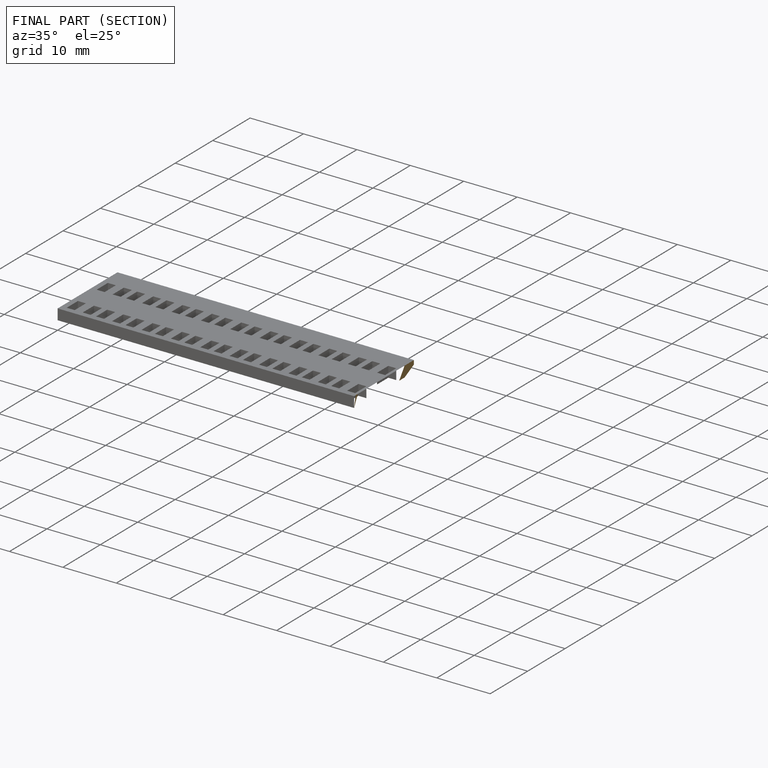
[diagram: finished part — half-section view (interior)]
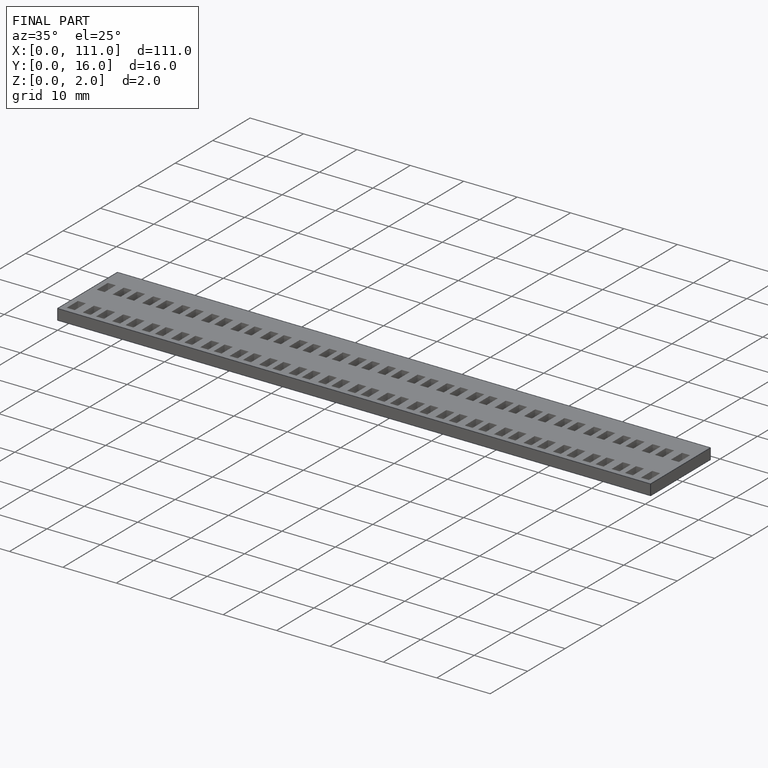
[diagram: finished part — iso view with bounding-box wireframe]
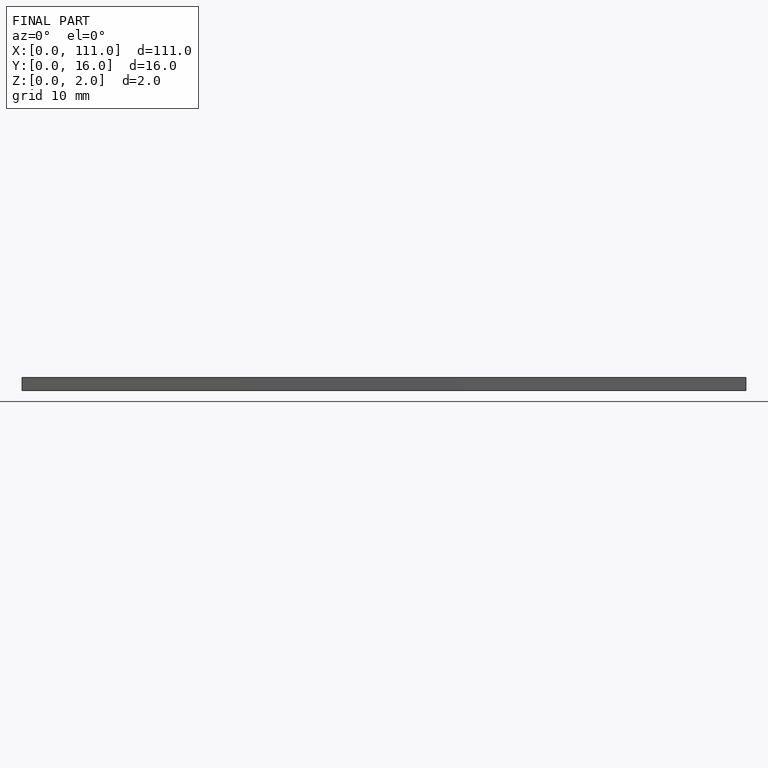
[diagram: finished part — front view with bounding-box wireframe]
